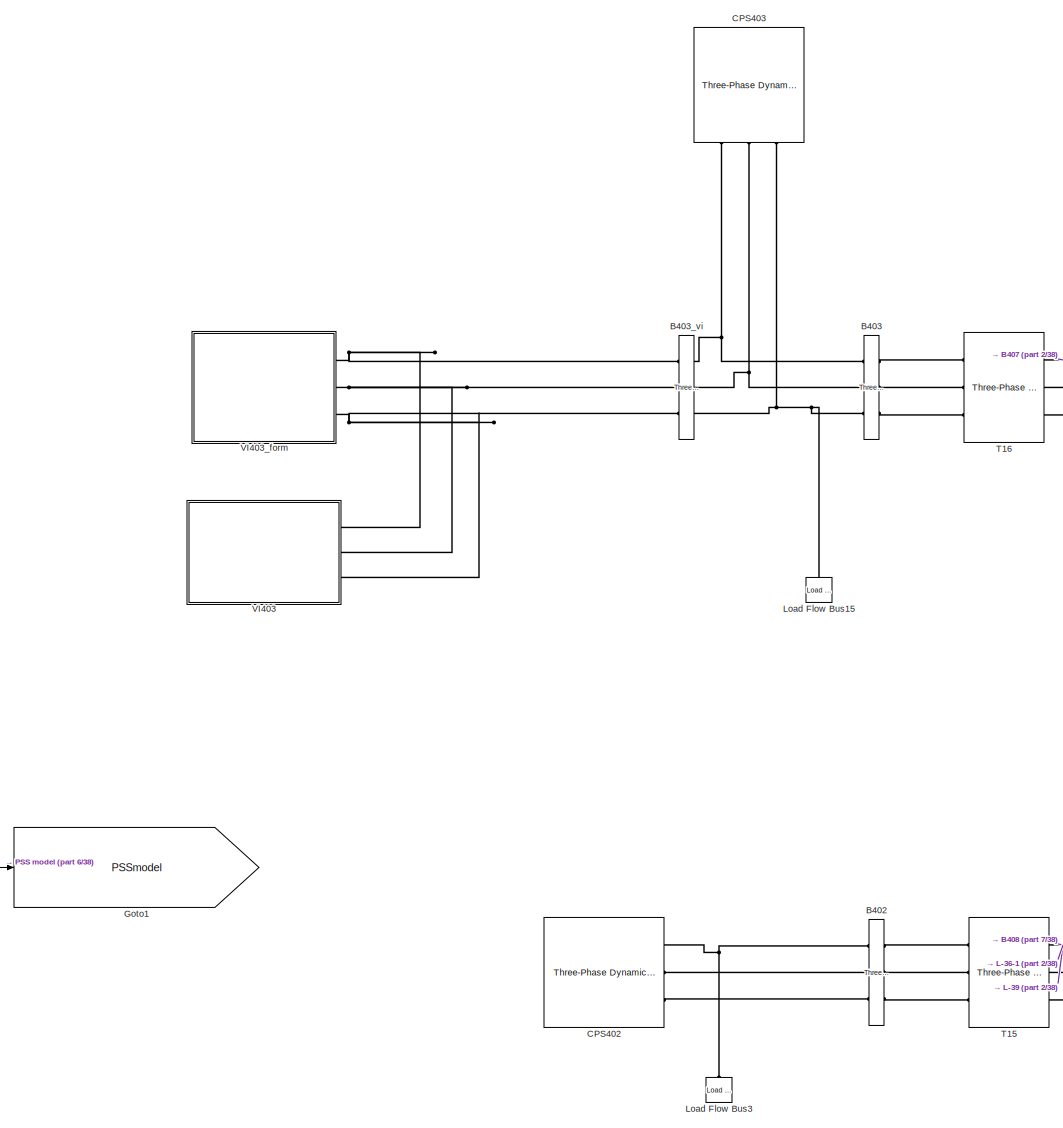
[diagram: root canvas - part 1/38, top center region]
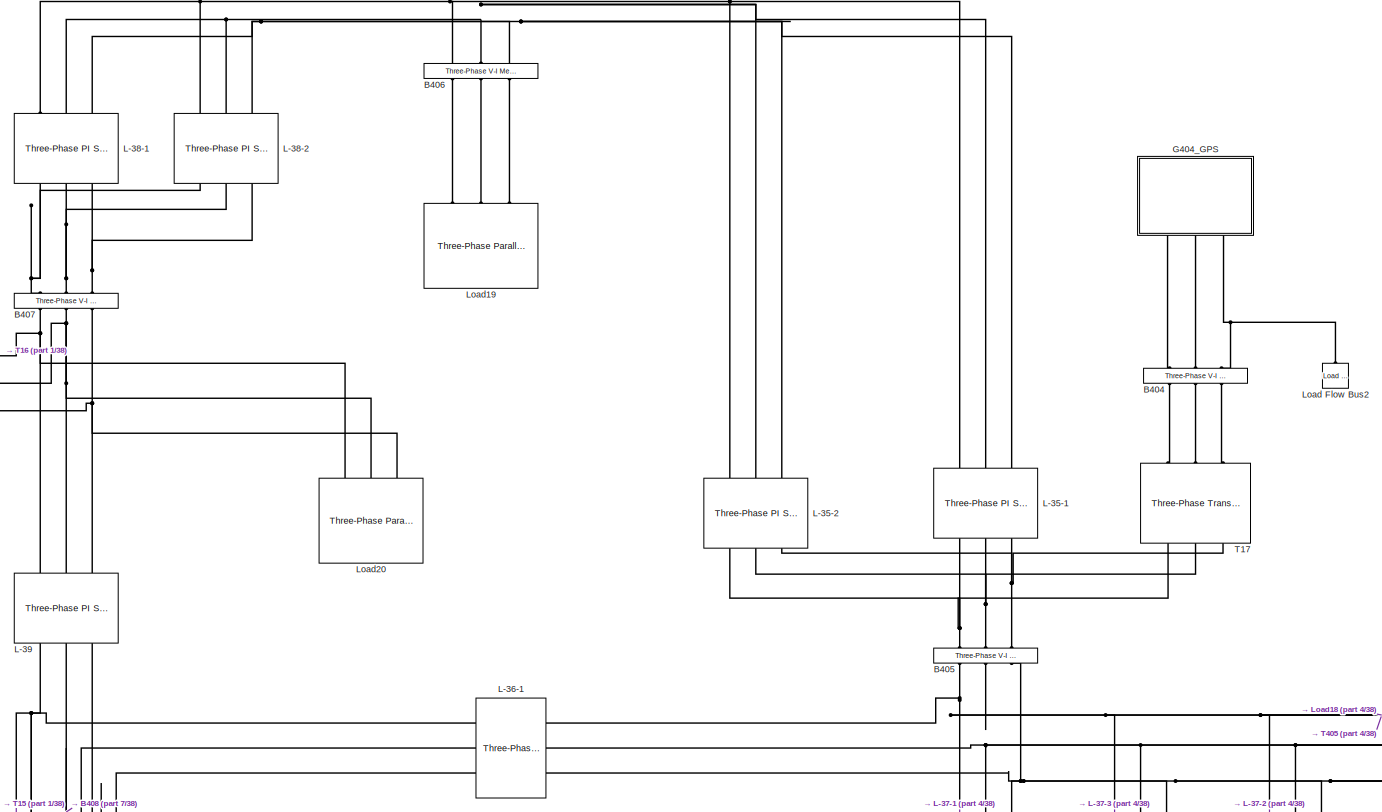
[diagram: root canvas - part 2/38, top right region]
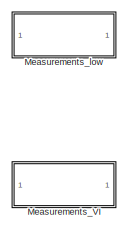
[diagram: root canvas - part 3/38, top right region]
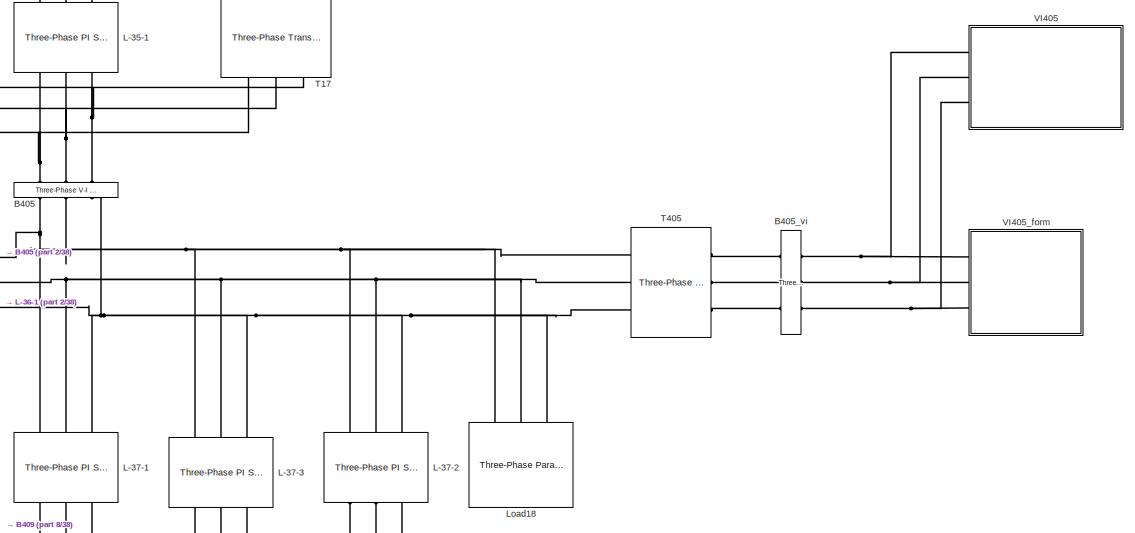
[diagram: root canvas - part 4/38, top right region]
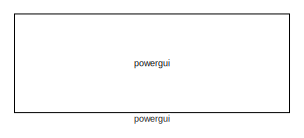
[diagram: root canvas - part 5/38, top left region]
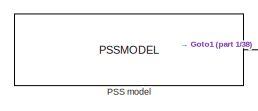
[diagram: root canvas - part 6/38, top center region]
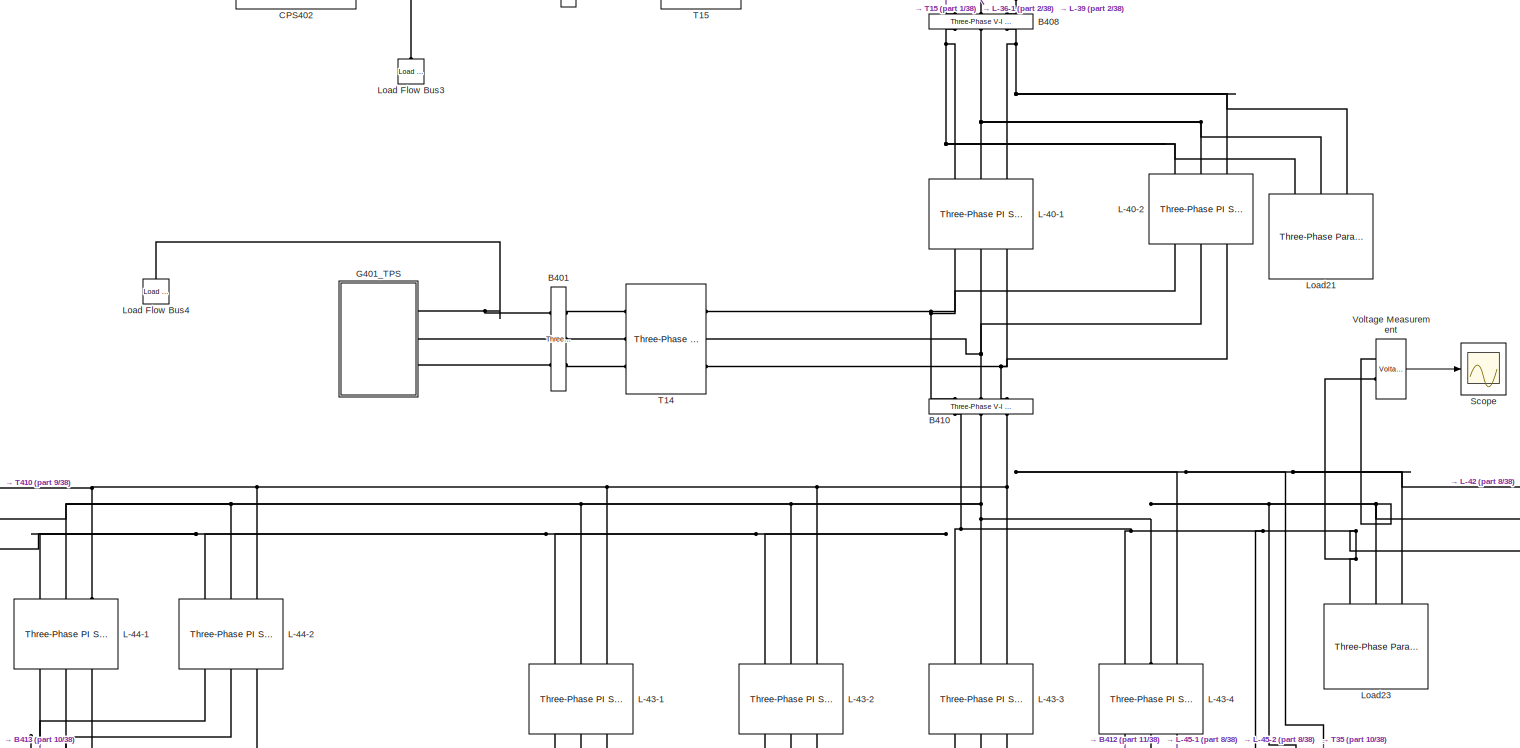
[diagram: root canvas - part 7/38, top center region]
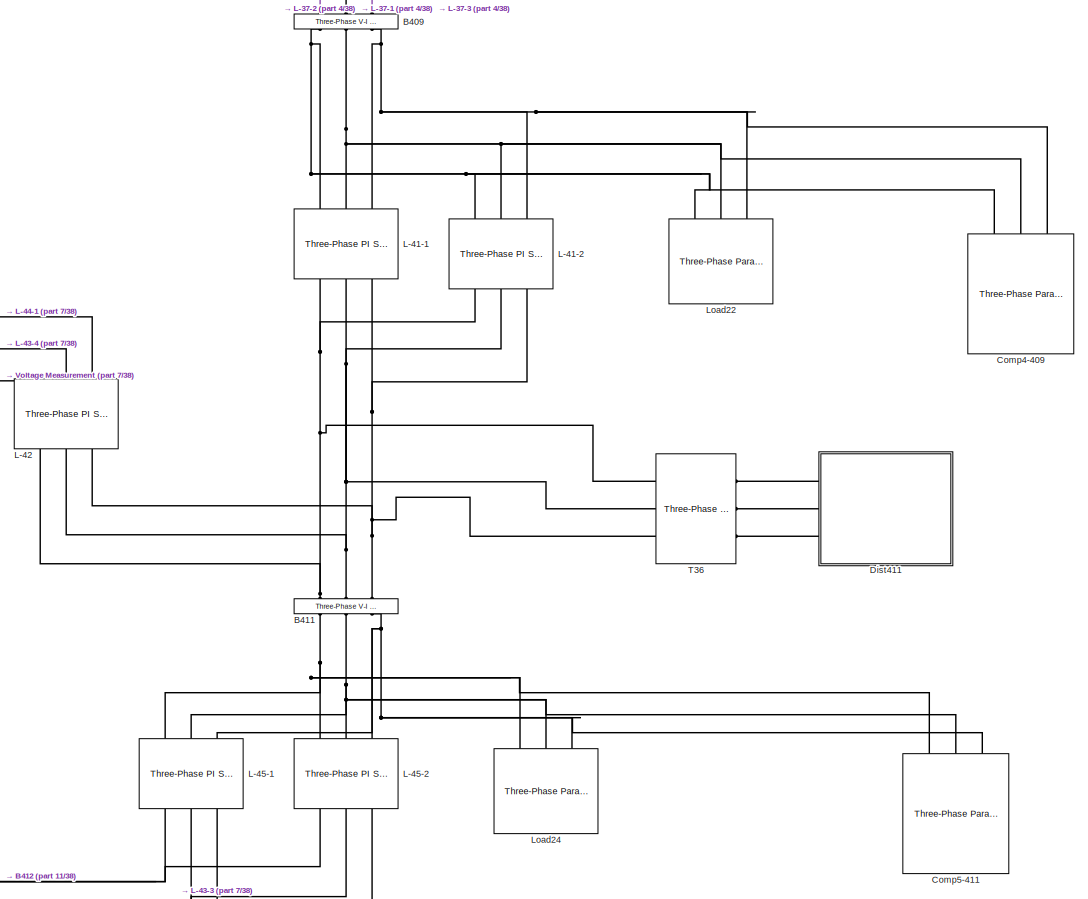
[diagram: root canvas - part 8/38, top right region]
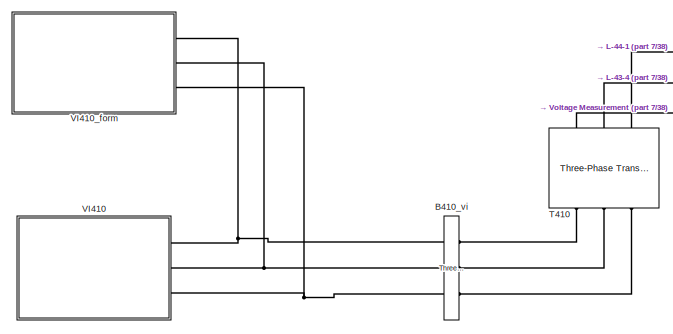
[diagram: root canvas - part 9/38, top center region]
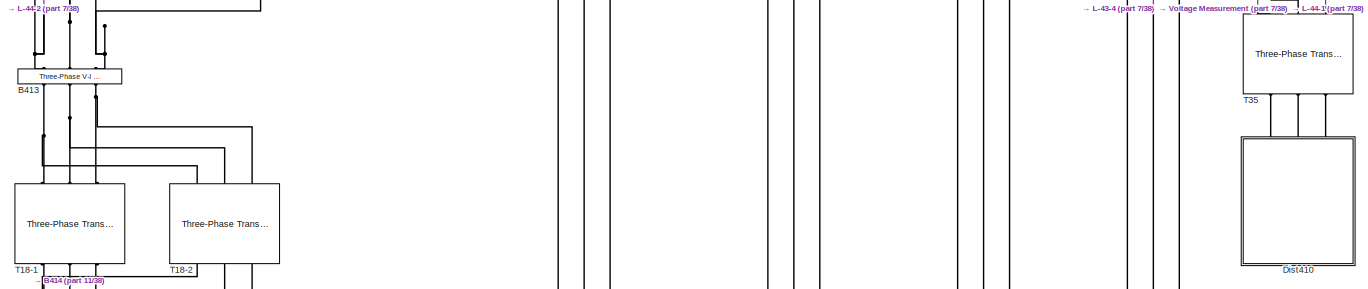
[diagram: root canvas - part 10/38, top center region]
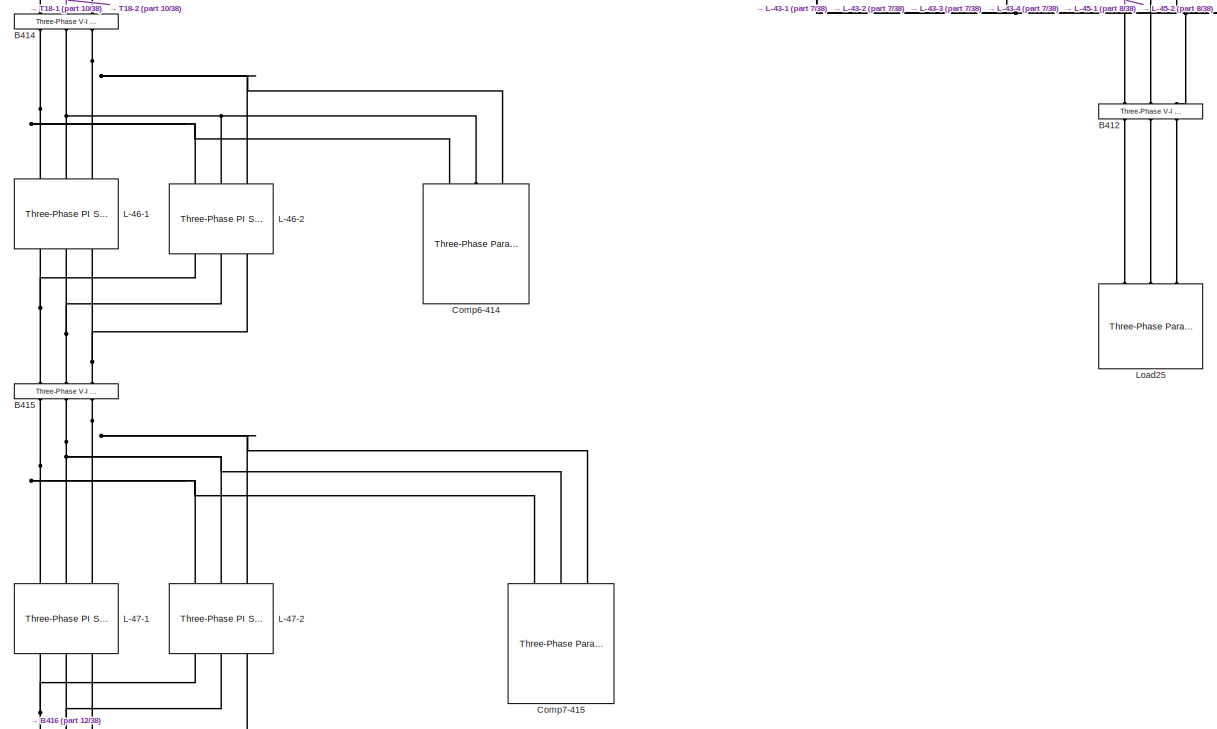
[diagram: root canvas - part 11/38, top center region]
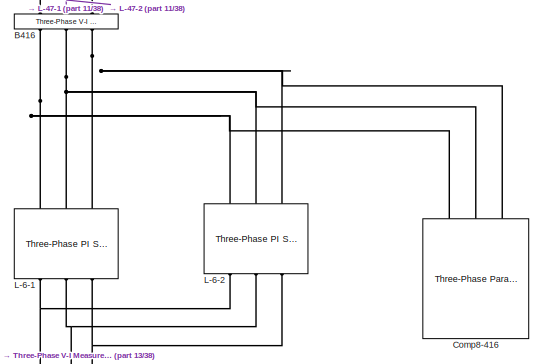
[diagram: root canvas - part 12/38, top center region]
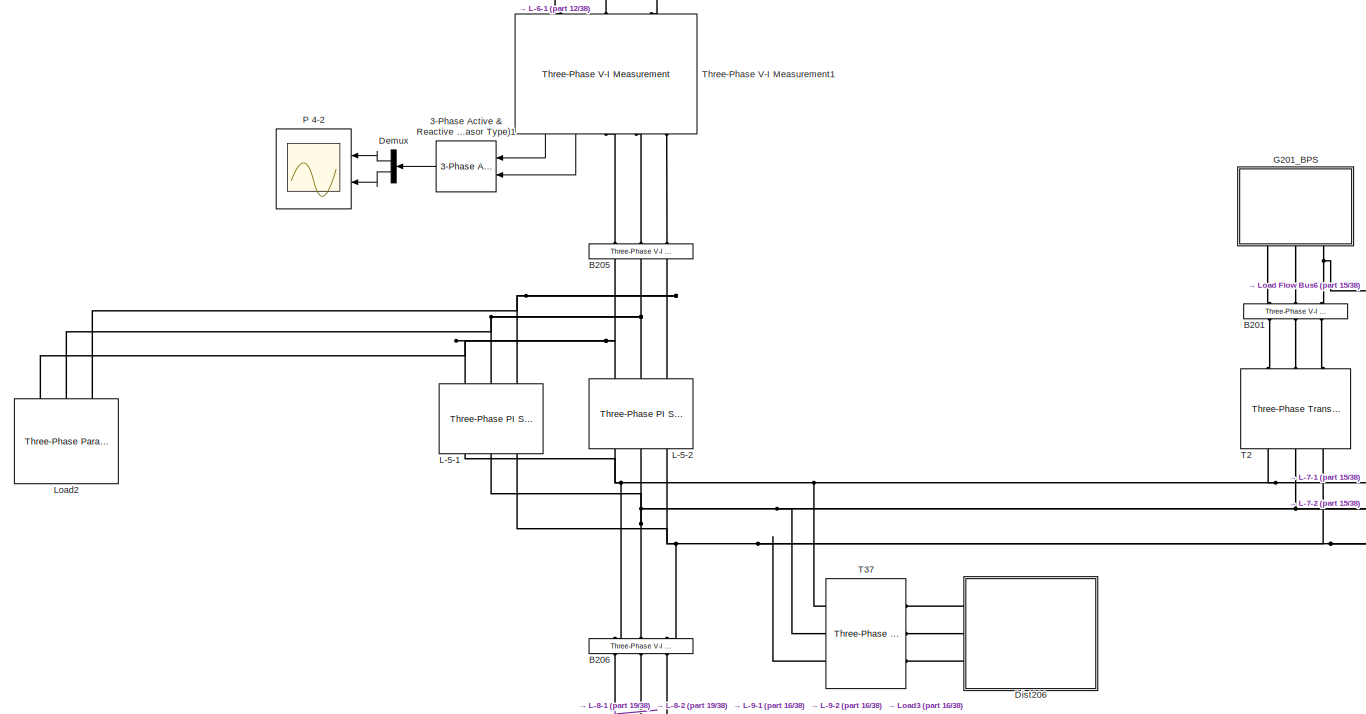
[diagram: root canvas - part 13/38, central region]
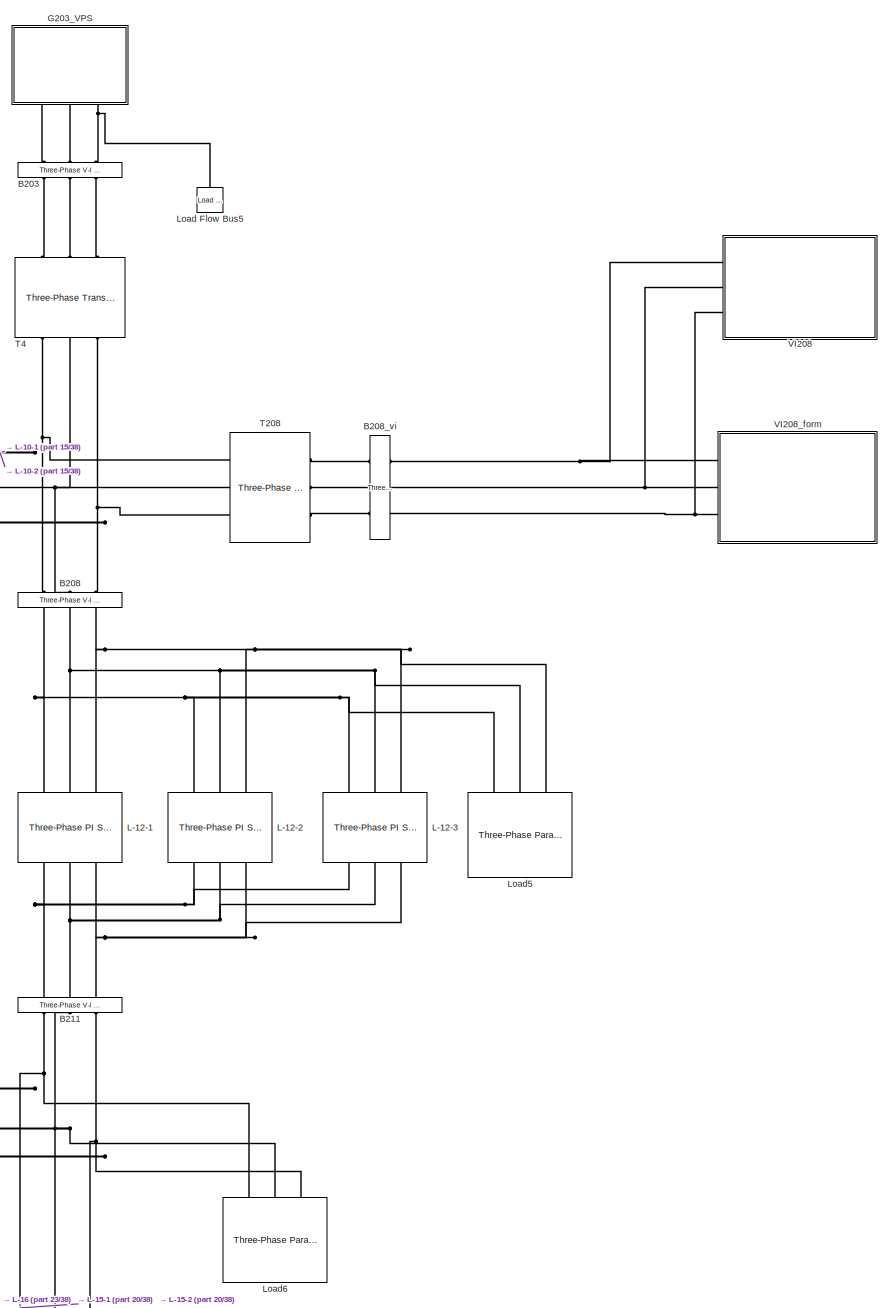
[diagram: root canvas - part 14/38, middle right region]
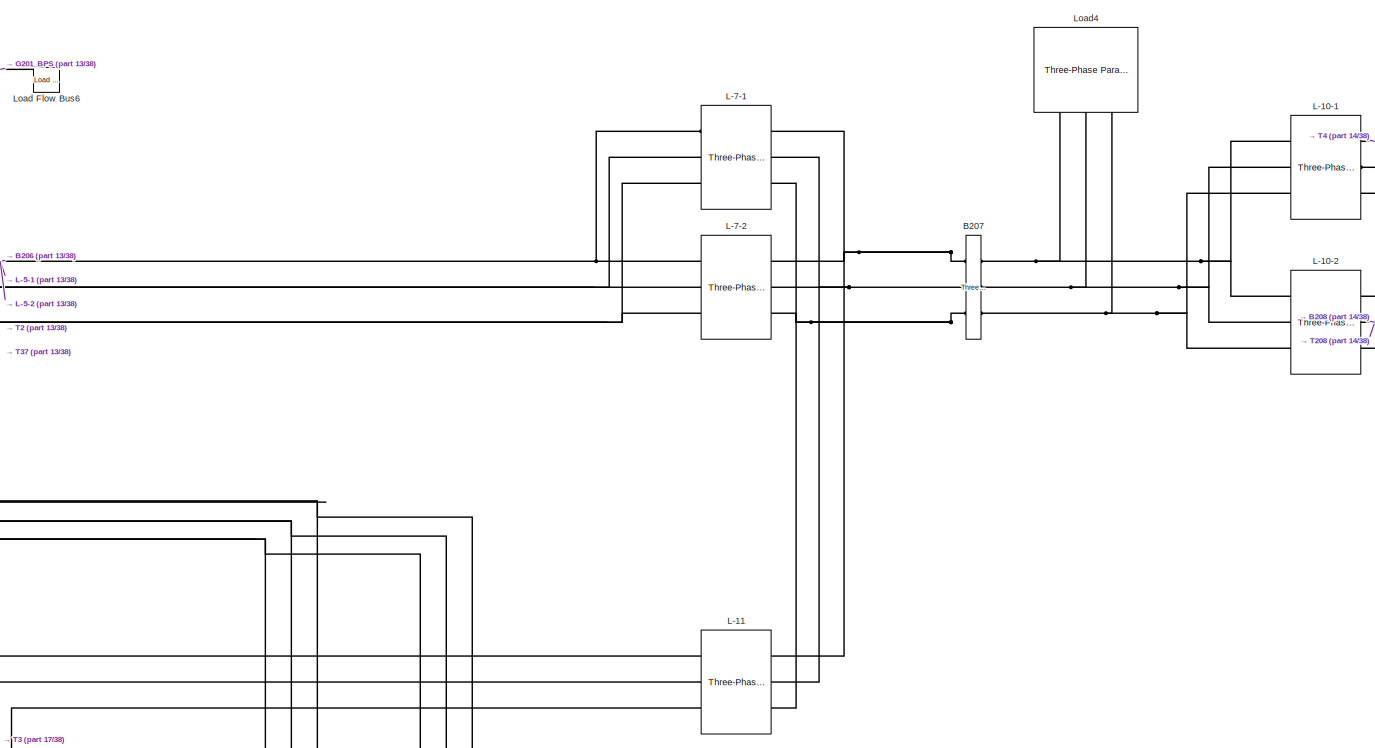
[diagram: root canvas - part 15/38, middle right region]
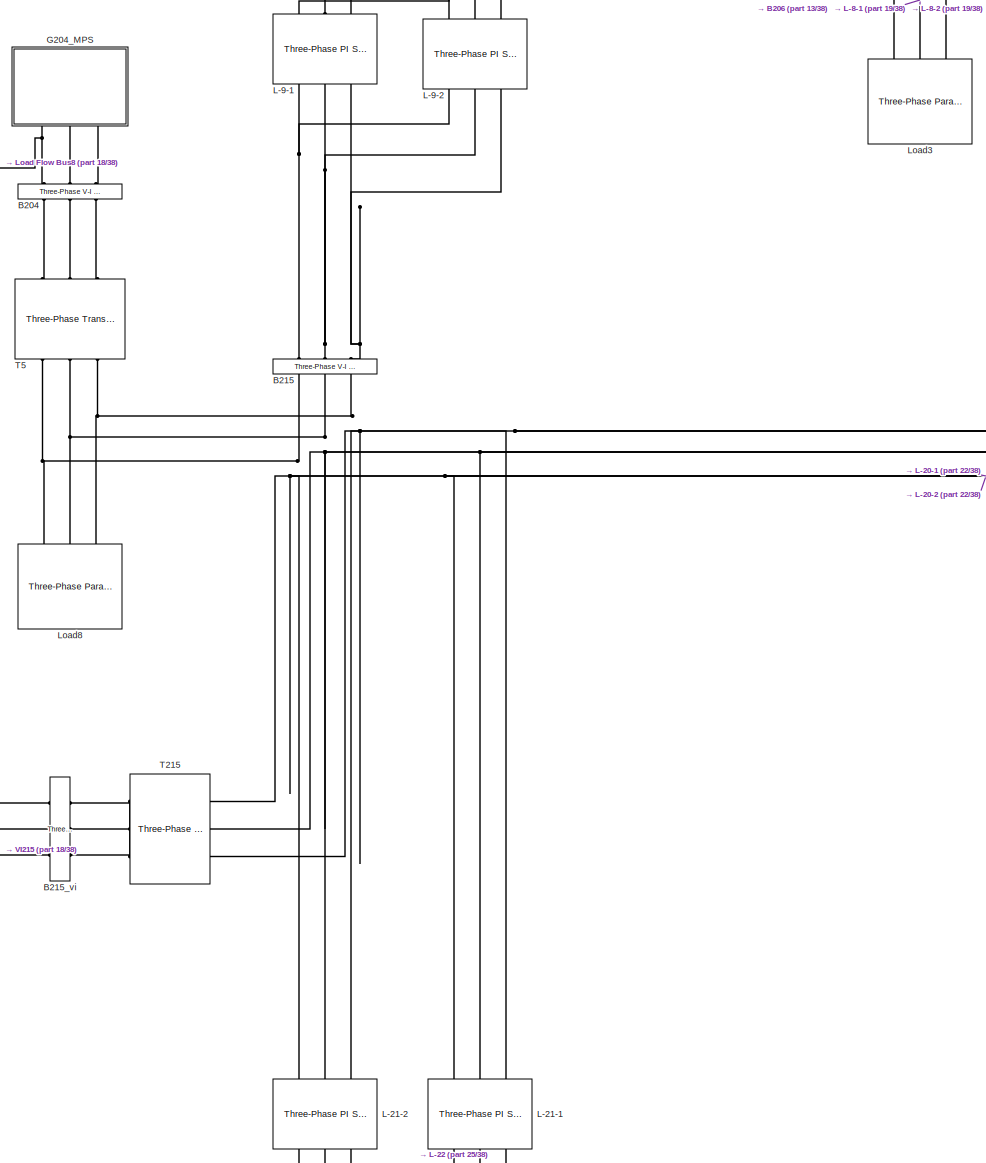
[diagram: root canvas - part 16/38, central region]
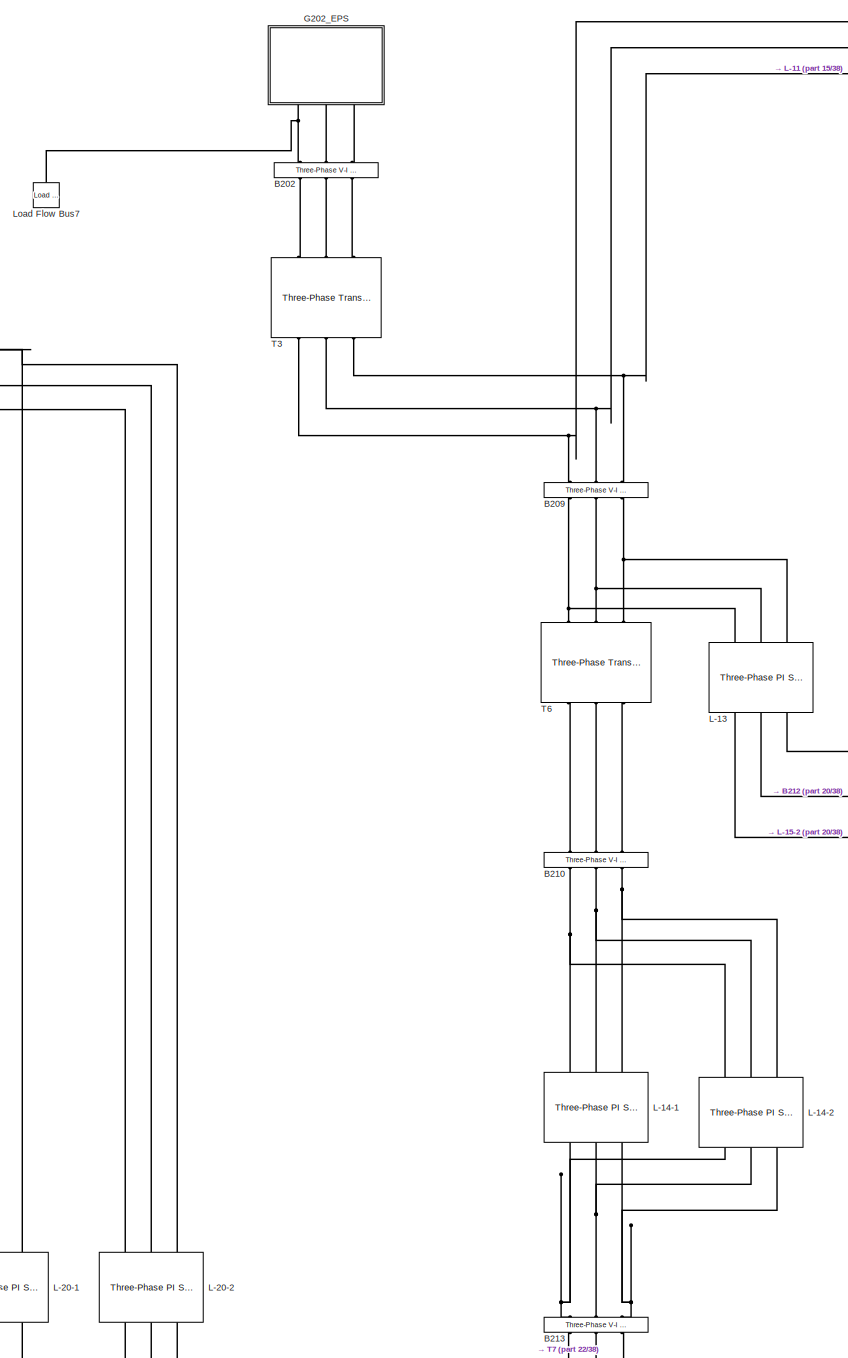
[diagram: root canvas - part 17/38, central region]
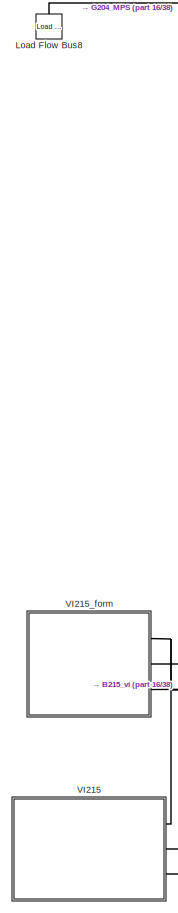
[diagram: root canvas - part 18/38, middle left region]
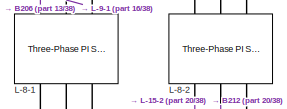
[diagram: root canvas - part 19/38, central region]
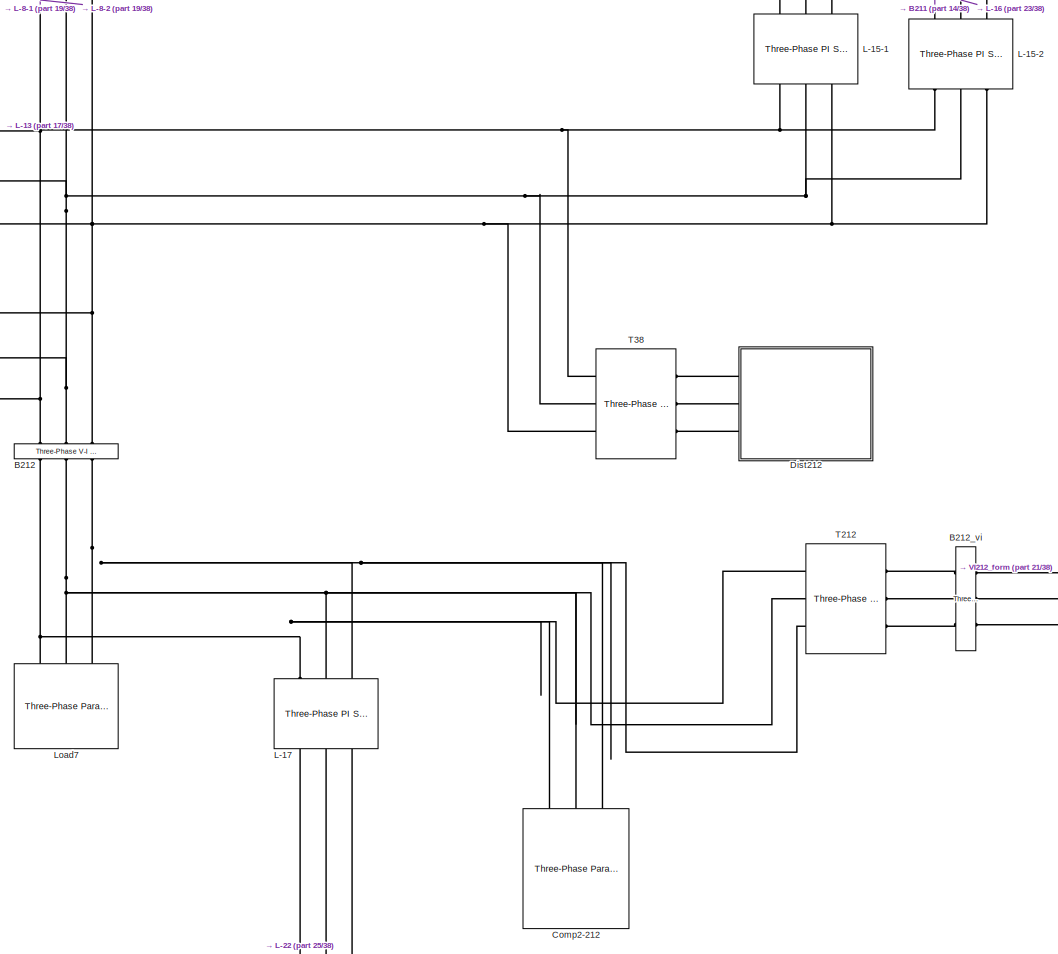
[diagram: root canvas - part 20/38, middle right region]
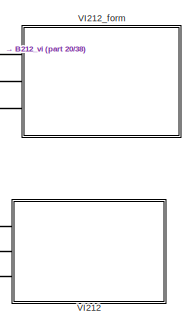
[diagram: root canvas - part 21/38, middle right region]
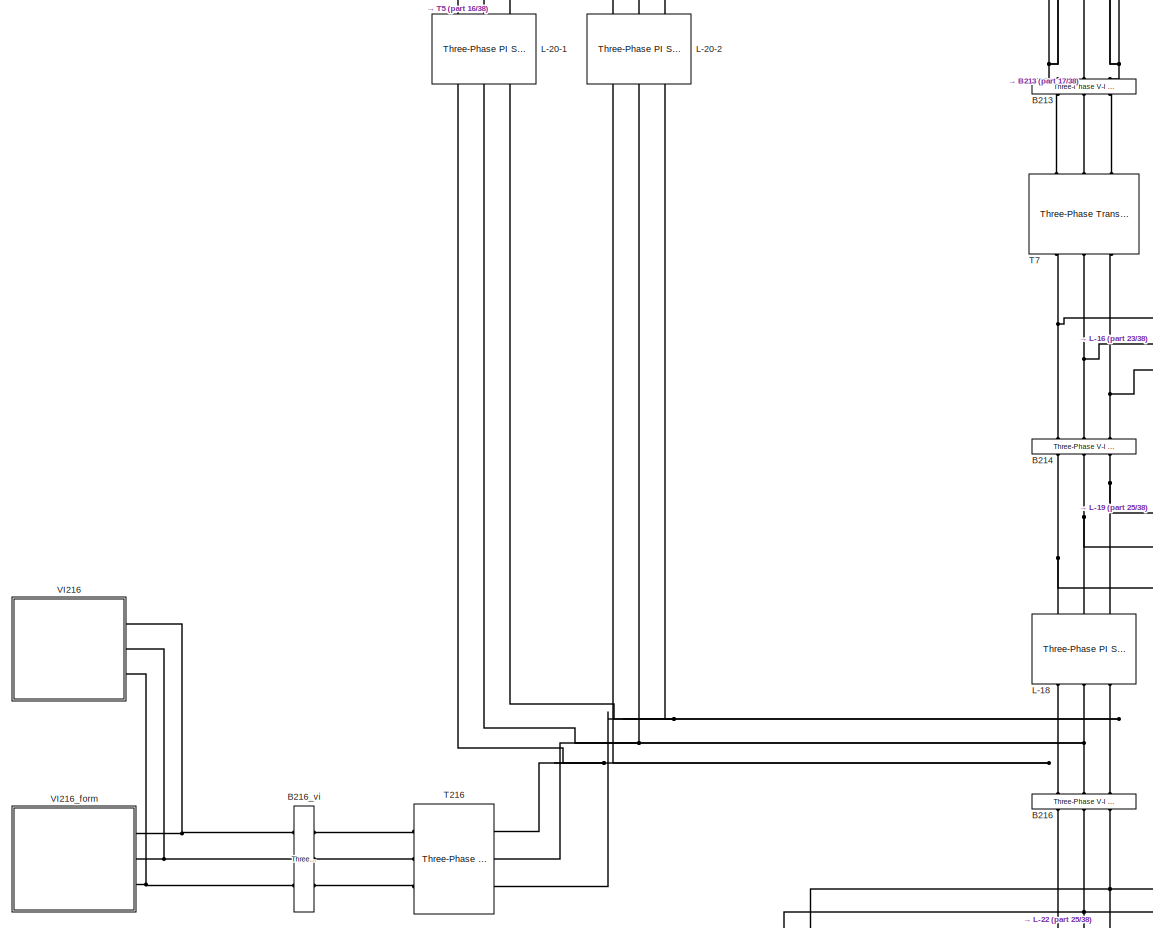
[diagram: root canvas - part 22/38, central region]
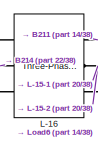
[diagram: root canvas - part 23/38, middle right region]
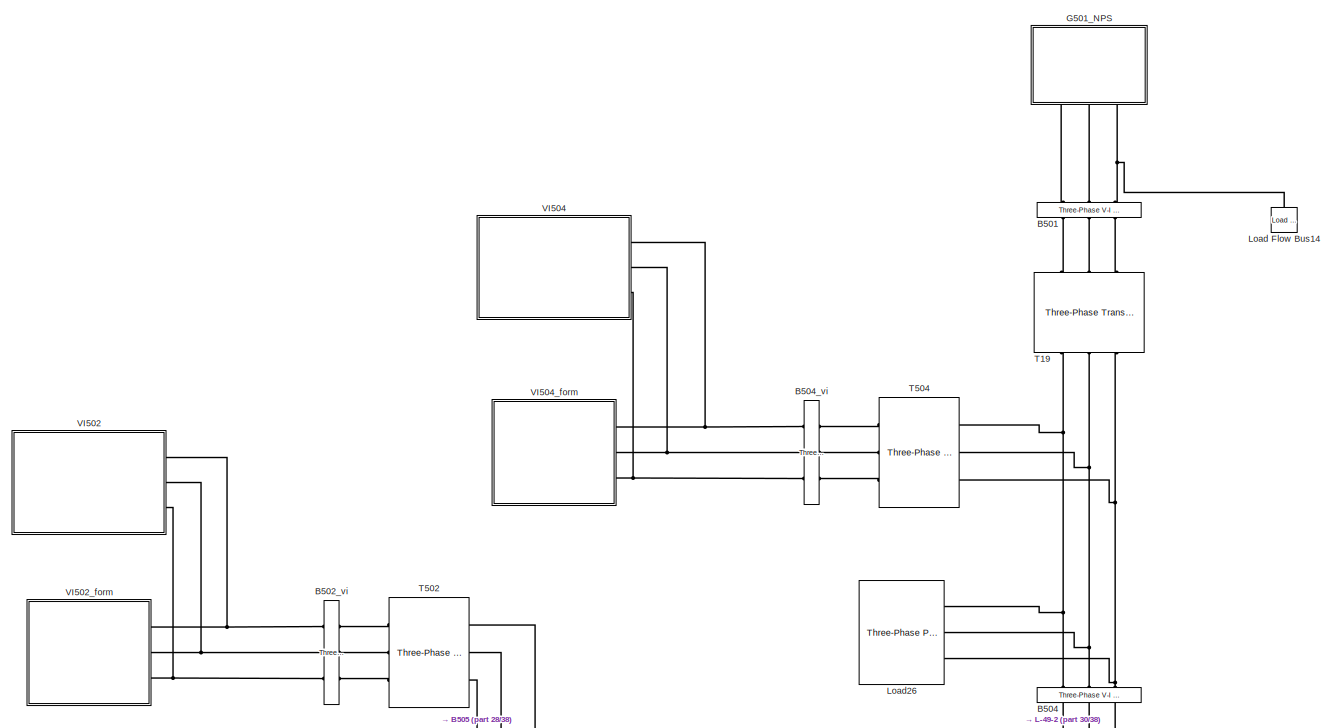
[diagram: root canvas - part 24/38, middle left region]
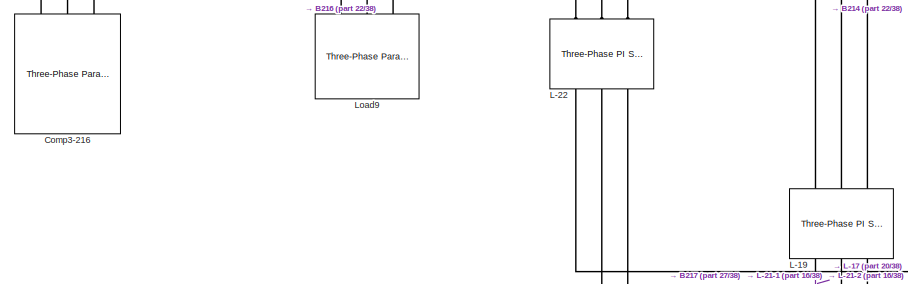
[diagram: root canvas - part 25/38, central region]
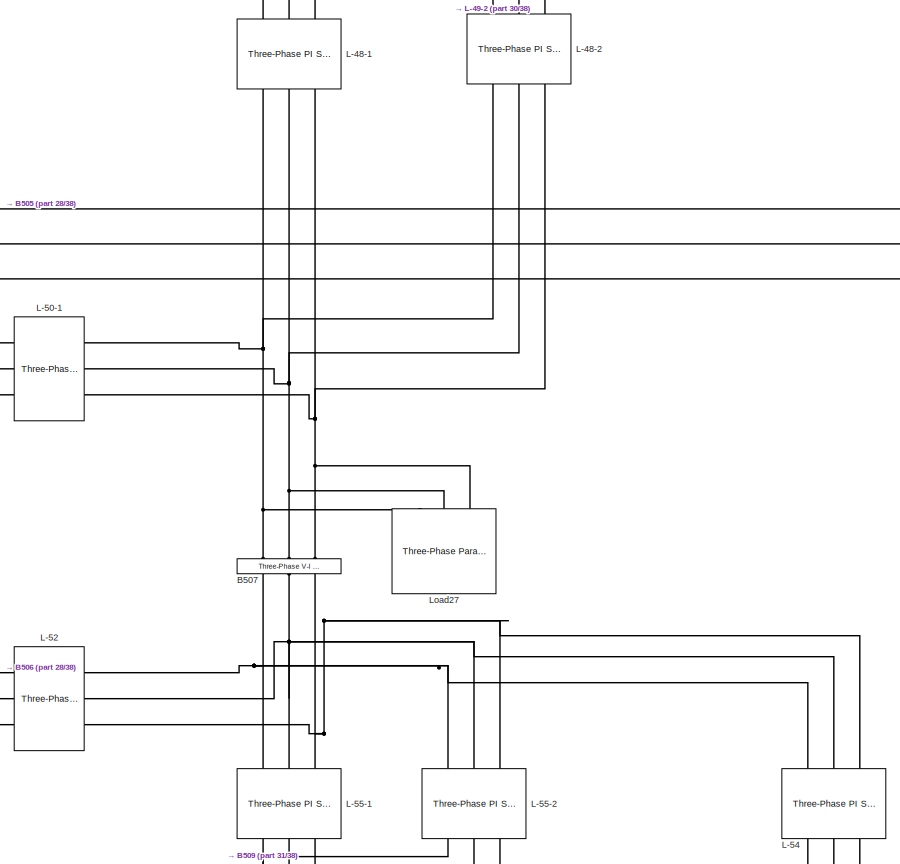
[diagram: root canvas - part 26/38, bottom left region]
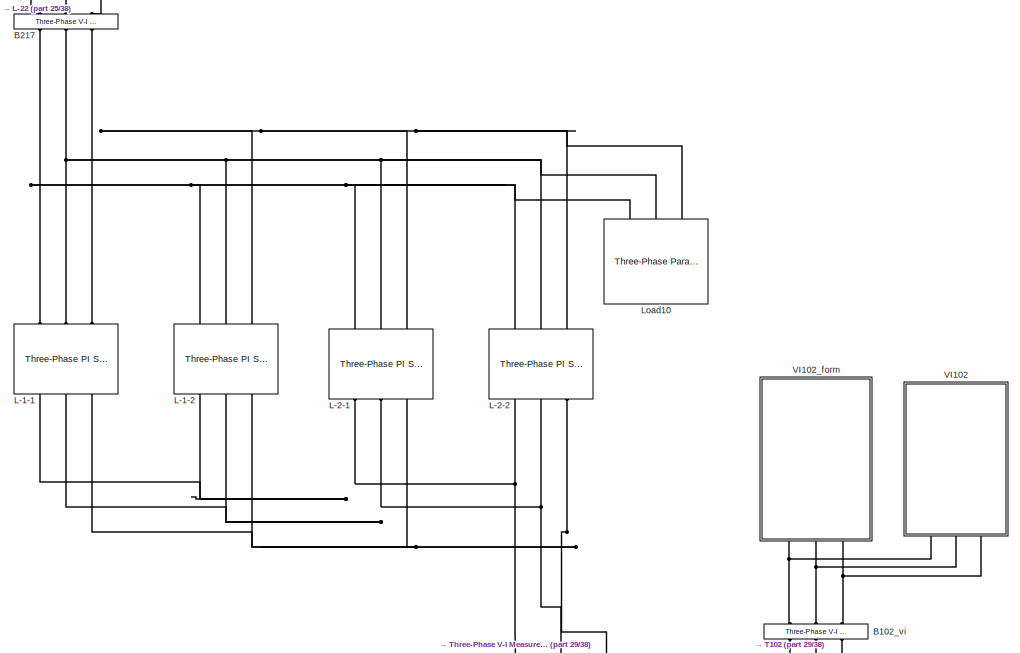
[diagram: root canvas - part 27/38, bottom right region]
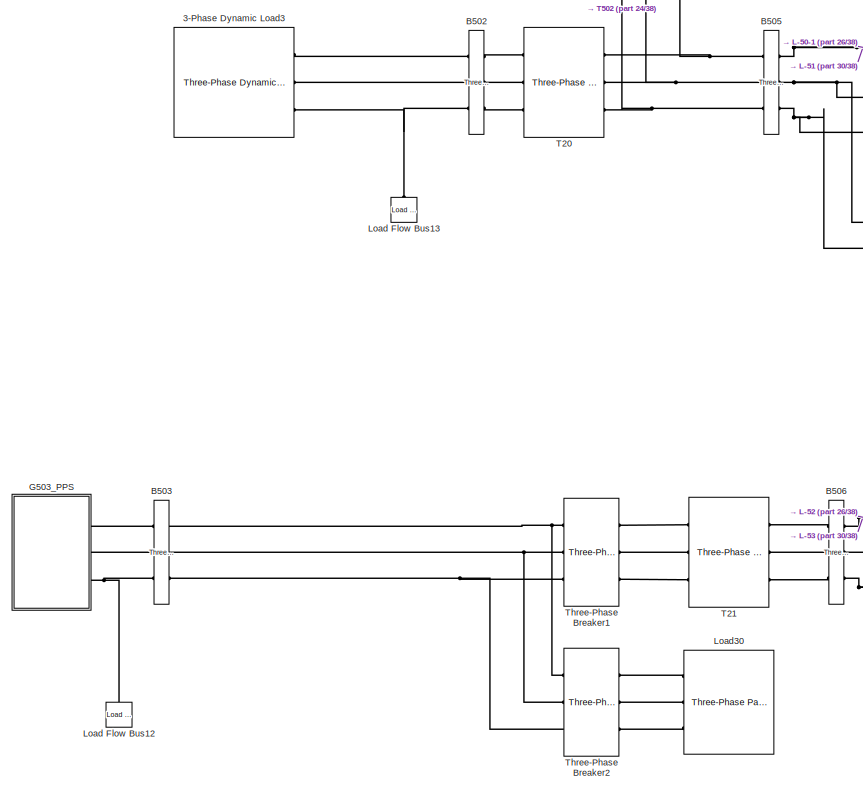
[diagram: root canvas - part 28/38, bottom left region]
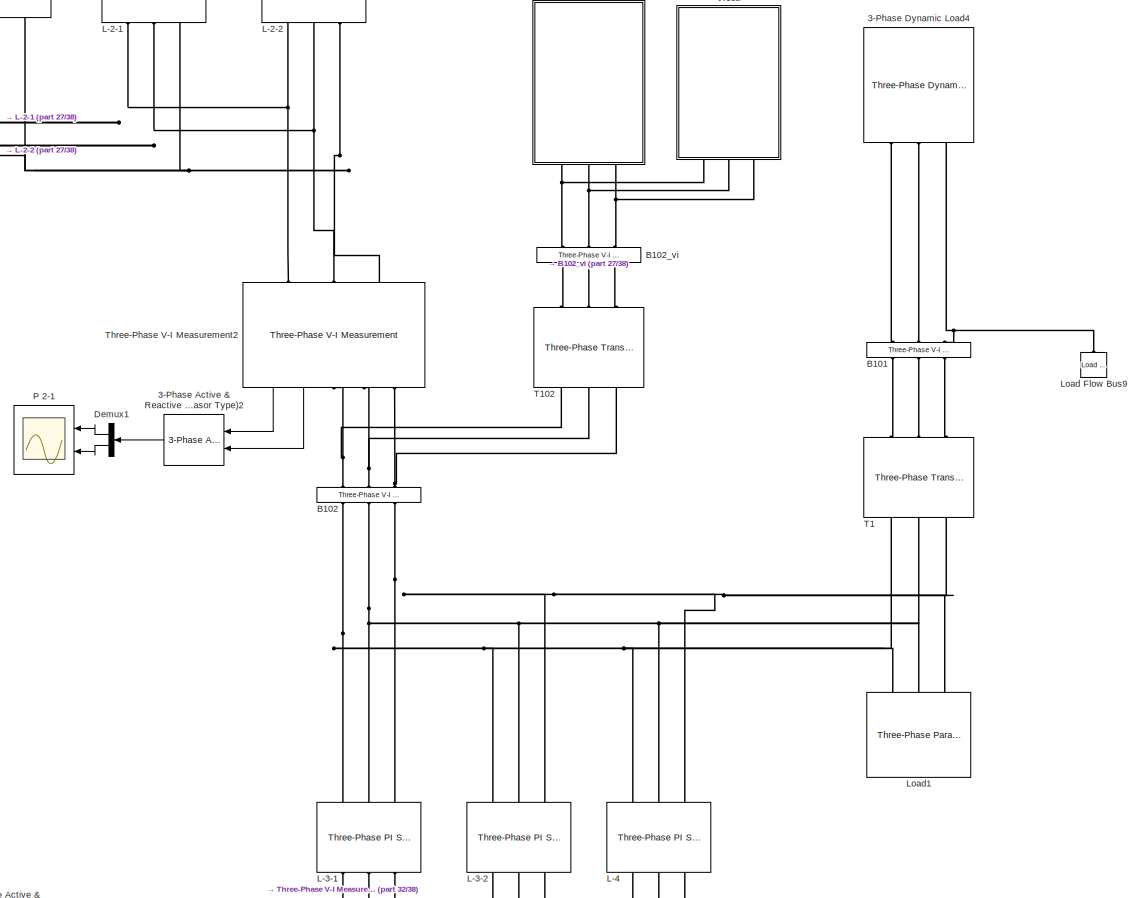
[diagram: root canvas - part 29/38, bottom right region]
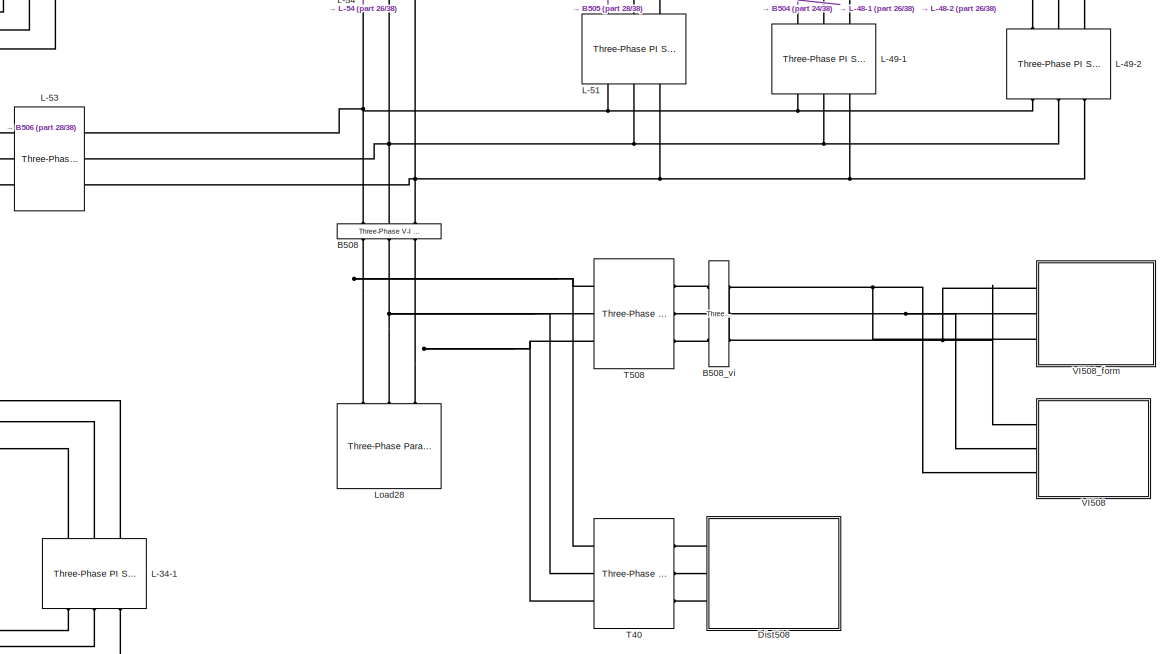
[diagram: root canvas - part 30/38, bottom left region]
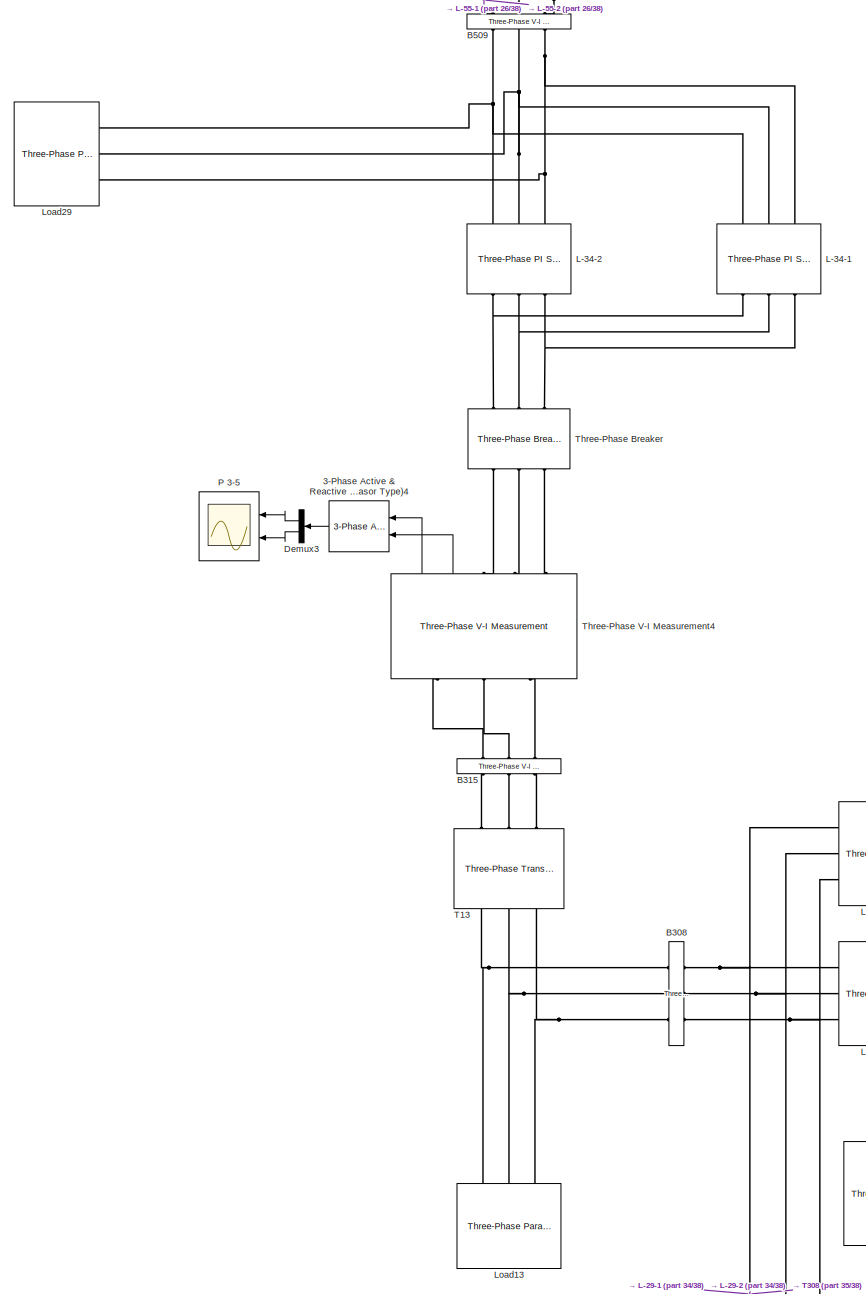
[diagram: root canvas - part 31/38, bottom left region]
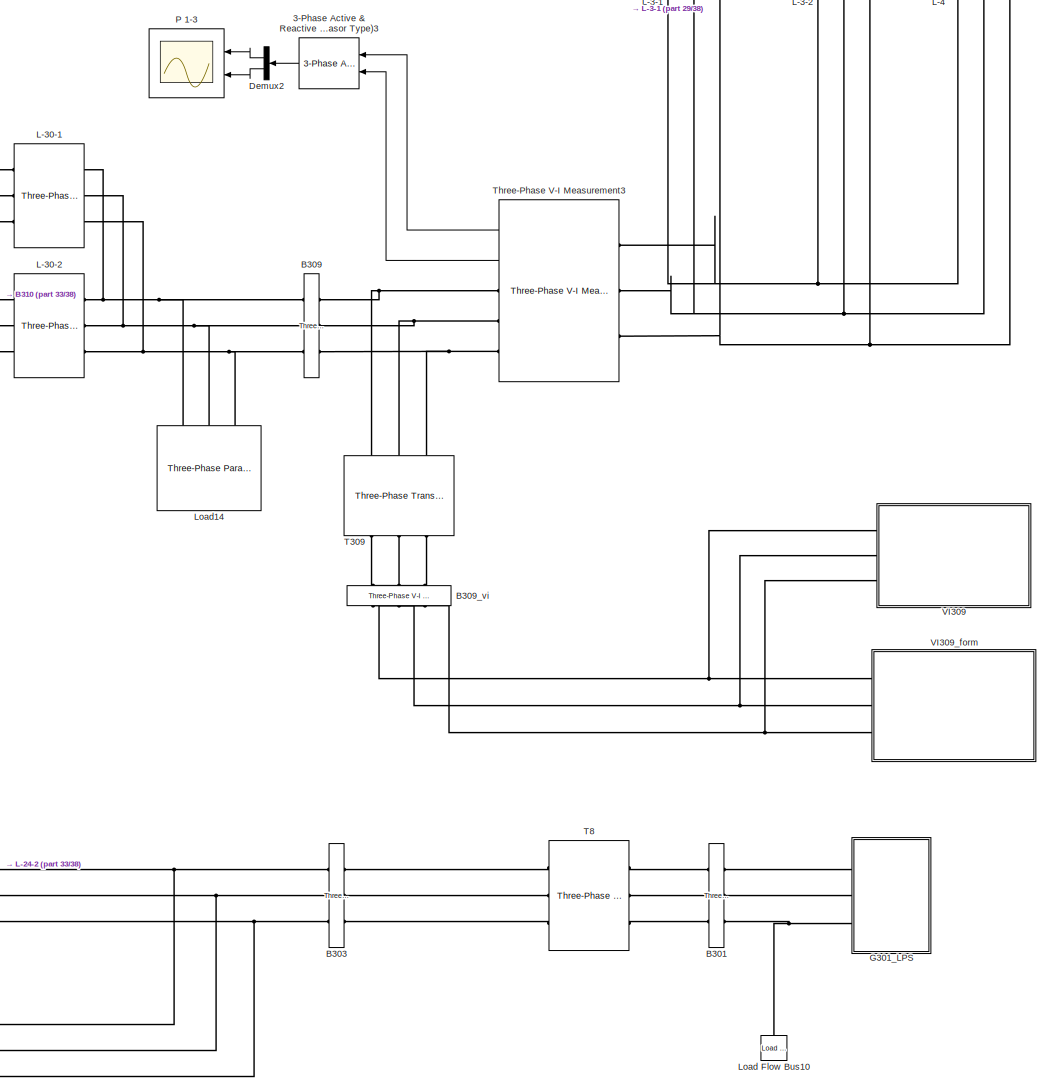
[diagram: root canvas - part 32/38, bottom right region]
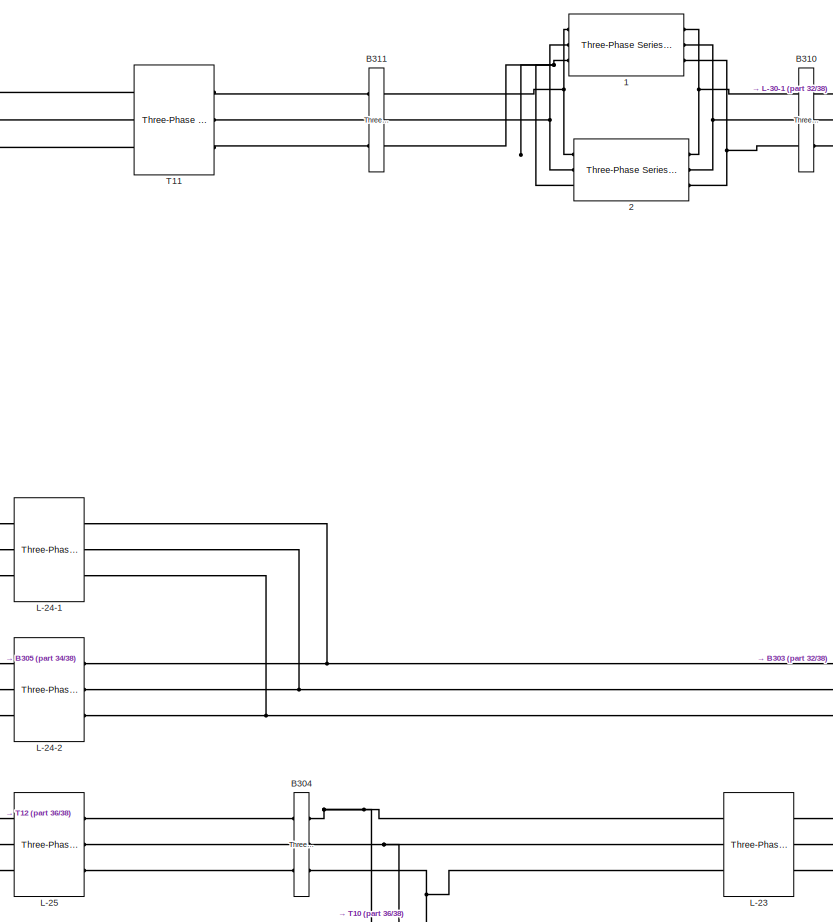
[diagram: root canvas - part 33/38, bottom center region]
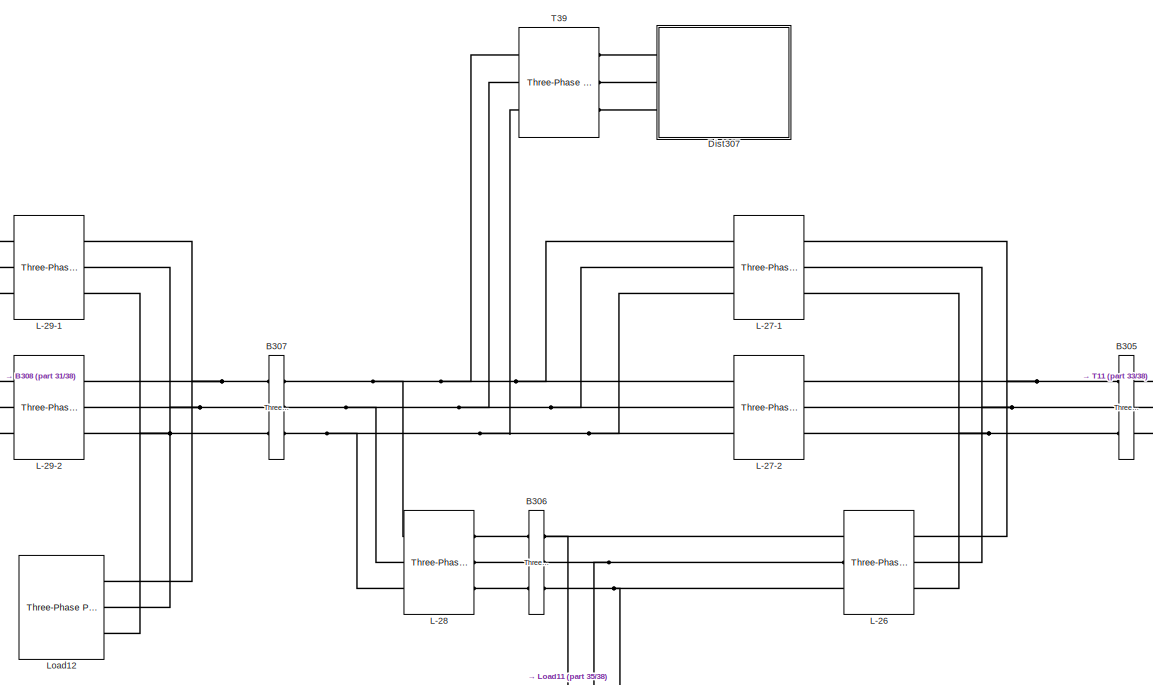
[diagram: root canvas - part 34/38, bottom center region]
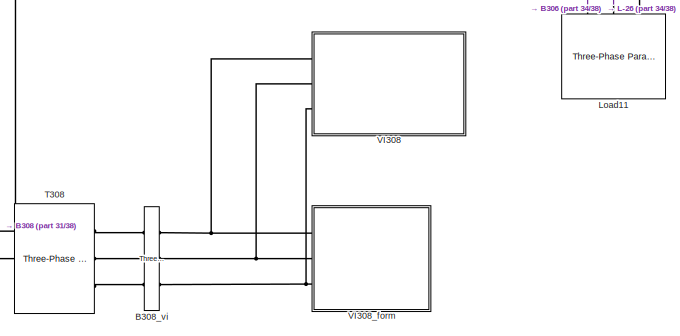
[diagram: root canvas - part 35/38, bottom left region]
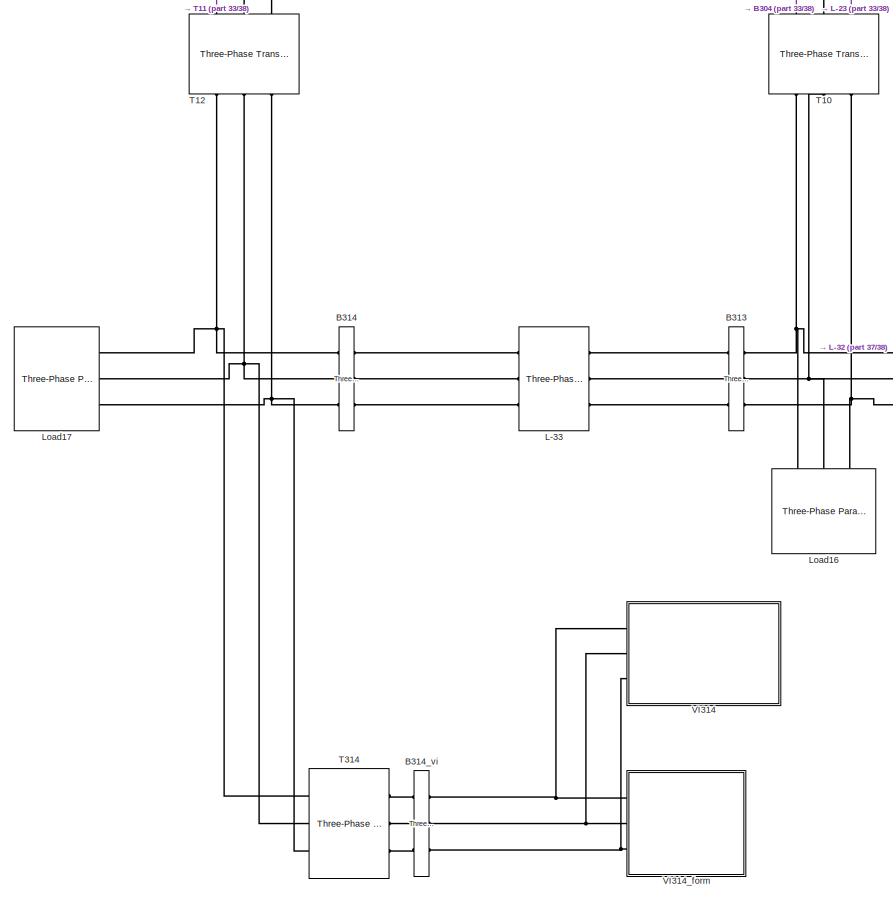
[diagram: root canvas - part 36/38, bottom center region]
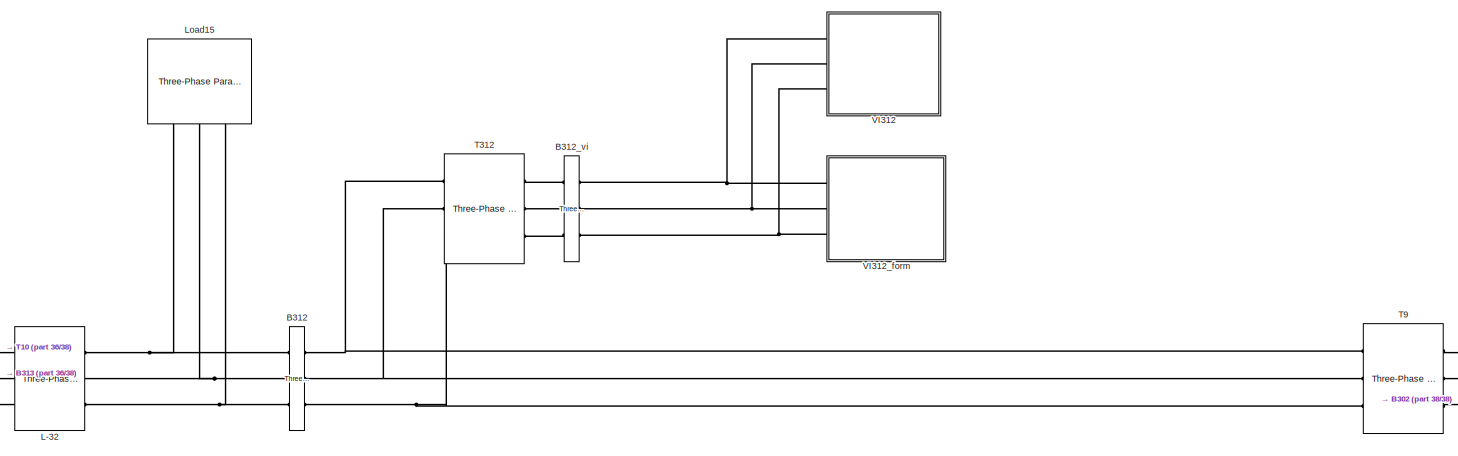
[diagram: root canvas - part 37/38, bottom right region]
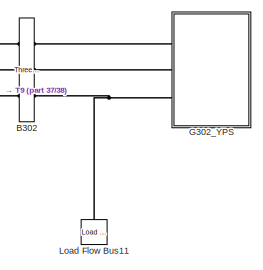
[diagram: root canvas - part 38/38, bottom right region]
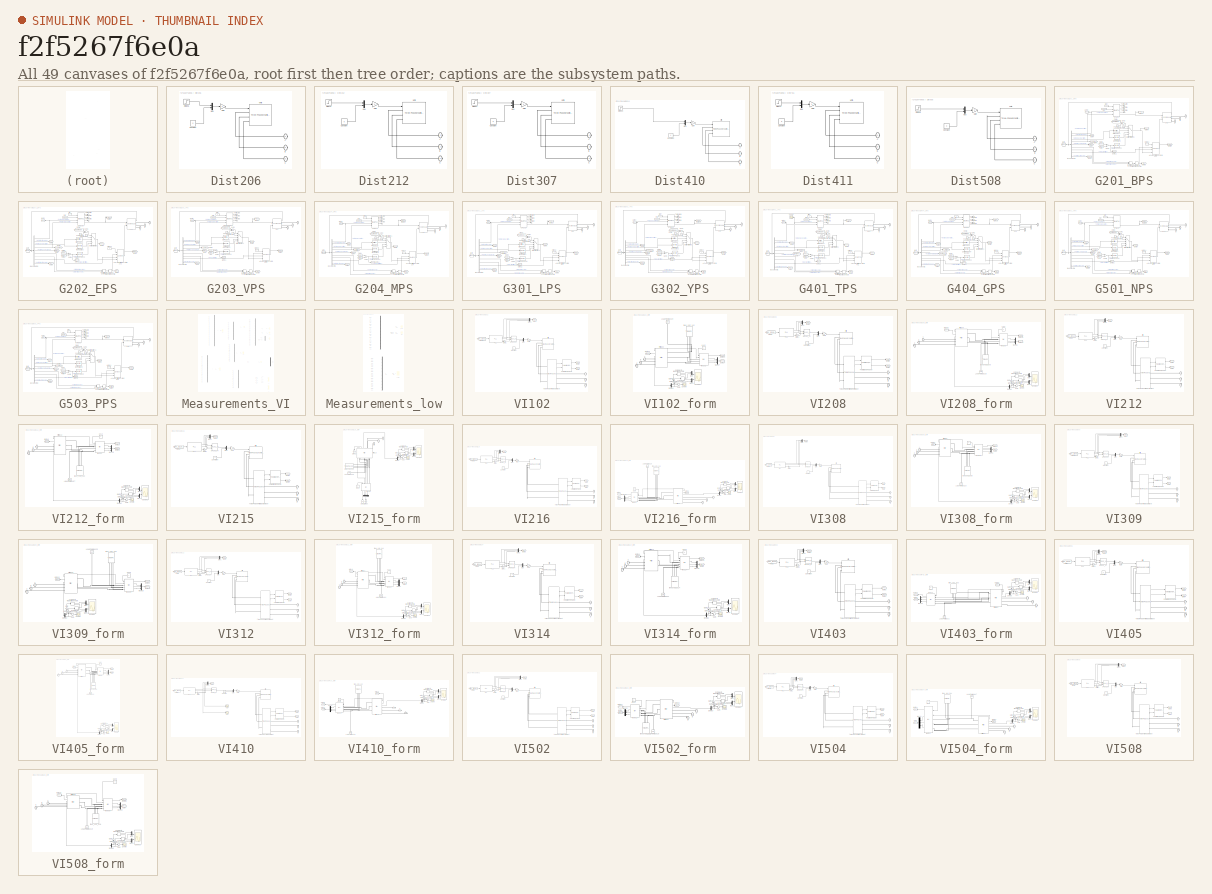
[diagram: thumbnail index - all 49 canvases of the model, root first then tree order]
MODEL slx_f2f5267f6e0a
KIND model
CONFIG AbsTol = 1e-3
CONFIG EnableMultiTasking = on
CONFIG FixedStep = 1e-3
CONFIG MaxStep = auto
CONFIG MinStep = auto
CONFIG PreLoadFcn = dataaustralian14gen
CONFIG RelTol = 1e-3
CONFIG SampleTimeConstraint = Unconstrained
CONFIG Solver = ode23tb
CONFIG SolverName = ode23tb
CONFIG StartTime = 0.0
CONFIG StopTime = 50
BLOCK [Reference] 1  REF=powerlib/Elements/Three-Phase
Series RLC Branch
  AttributesFormatString = \n
  Ports = [0, 0, 0, 0, 0, 3, 3]
  SourceBlock = powerlib/Elements/Three-Phase\nSeries RLC Branch
  SourceProductBaseCode = PS
  SourceProductName = Simscape Power Systems
  SourceType = Three-Phase Series RLC Branch
BLOCK [Reference] 2  REF=powerlib/Elements/Three-Phase
Series RLC Branch
  AttributesFormatString = \n
  Ports = [0, 0, 0, 0, 0, 3, 3]
  SourceBlock = powerlib/Elements/Three-Phase\nSeries RLC Branch
  SourceProductBaseCode = PS
  SourceProductName = Simscape Power Systems
  SourceType = Three-Phase Series RLC Branch
BLOCK [Reference] 3-Phase Active & Reactive Power (Phasor Type)1  REF=powerlib_extras/Phasor
Library/3-Phase
Active & Reactive Power
(Phasor Type)
  Ports = [2, 1]
  SourceBlock = powerlib_extras/Phasor\nLibrary/3-Phase\nActive & Reactive Power\n(Phasor Type)
  SourceType = 3-Phase Active & Reactive Power (Phasor Type)
BLOCK [Reference] 3-Phase Active & Reactive Power (Phasor Type)2  REF=powerlib_extras/Phasor
Library/3-Phase
Active & Reactive Power
(Phasor Type)
  Ports = [2, 1]
  SourceBlock = powerlib_extras/Phasor\nLibrary/3-Phase\nActive & Reactive Power\n(Phasor Type)
  SourceType = 3-Phase Active & Reactive Power (Phasor Type)
BLOCK [Reference] 3-Phase Active & Reactive Power (Phasor Type)3  REF=powerlib_extras/Phasor
Library/3-Phase
Active & Reactive Power
(Phasor Type)
  Ports = [2, 1]
  SourceBlock = powerlib_extras/Phasor\nLibrary/3-Phase\nActive & Reactive Power\n(Phasor Type)
  SourceType = 3-Phase Active & Reactive Power (Phasor Type)
BLOCK [Reference] 3-Phase Active & Reactive Power (Phasor Type)4  REF=powerlib_extras/Phasor
Library/3-Phase
Active & Reactive Power
(Phasor Type)
  Ports = [2, 1]
  SourceBlock = powerlib_extras/Phasor\nLibrary/3-Phase\nActive & Reactive Power\n(Phasor Type)
  SourceType = 3-Phase Active & Reactive Power (Phasor Type)
BLOCK [Reference] 3-Phase Dynamic Load3  REF=powerlib/Elements/Three-Phase
Dynamic Load
  Ports = [0, 1, 0, 0, 0, 3]
  SourceBlock = powerlib/Elements/Three-Phase\nDynamic Load
  SourceProductBaseCode = PS
  SourceProductName = Simscape Power Systems
  SourceType = Three-Phase Dynamic Load
BLOCK [Reference] 3-Phase Dynamic Load4  REF=powerlib/Elements/Three-Phase
Dynamic Load
  Ports = [0, 1, 0, 0, 0, 3]
  SourceBlock = powerlib/Elements/Three-Phase\nDynamic Load
  SourceProductBaseCode = PS
  SourceProductName = Simscape Power Systems
  SourceType = Three-Phase Dynamic Load
BLOCK [Reference] B101  REF=powerlib/Measurements/Three-Phase
V-I Measurement
  Ports = [0, 0, 0, 0, 0, 3, 3]
  SourceBlock = powerlib/Measurements/Three-Phase\nV-I Measurement
  SourceProductBaseCode = PS
  SourceProductName = Simscape Power Systems
  SourceType = Three-Phase VI Measurement
BLOCK [Reference] B102  REF=powerlib/Measurements/Three-Phase
V-I Measurement
  Ports = [0, 0, 0, 0, 0, 3, 3]
  SourceBlock = powerlib/Measurements/Three-Phase\nV-I Measurement
  SourceProductBaseCode = PS
  SourceProductName = Simscape Power Systems
  SourceType = Three-Phase VI Measurement
BLOCK [Reference] B102_vi  REF=powerlib/Measurements/Three-Phase
V-I Measurement
  Ports = [0, 0, 0, 0, 0, 3, 3]
  SourceBlock = powerlib/Measurements/Three-Phase\nV-I Measurement
  SourceProductBaseCode = PS
  SourceProductName = Simscape Power Systems
  SourceType = Three-Phase VI Measurement
BLOCK [Reference] B201  REF=powerlib/Measurements/Three-Phase
V-I Measurement
  Ports = [0, 0, 0, 0, 0, 3, 3]
  SourceBlock = powerlib/Measurements/Three-Phase\nV-I Measurement
  SourceProductBaseCode = PS
  SourceProductName = Simscape Power Systems
  SourceType = Three-Phase VI Measurement
BLOCK [Reference] B202  REF=powerlib/Measurements/Three-Phase
V-I Measurement
  Ports = [0, 0, 0, 0, 0, 3, 3]
  SourceBlock = powerlib/Measurements/Three-Phase\nV-I Measurement
  SourceProductBaseCode = PS
  SourceProductName = Simscape Power Systems
  SourceType = Three-Phase VI Measurement
BLOCK [Reference] B203  REF=powerlib/Measurements/Three-Phase
V-I Measurement
  Ports = [0, 0, 0, 0, 0, 3, 3]
  SourceBlock = powerlib/Measurements/Three-Phase\nV-I Measurement
  SourceProductBaseCode = PS
  SourceProductName = Simscape Power Systems
  SourceType = Three-Phase VI Measurement
BLOCK [Reference] B204  REF=powerlib/Measurements/Three-Phase
V-I Measurement
  Ports = [0, 0, 0, 0, 0, 3, 3]
  SourceBlock = powerlib/Measurements/Three-Phase\nV-I Measurement
  SourceProductBaseCode = PS
  SourceProductName = Simscape Power Systems
  SourceType = Three-Phase VI Measurement
BLOCK [Reference] B205  REF=powerlib/Measurements/Three-Phase
V-I Measurement
  Ports = [0, 0, 0, 0, 0, 3, 3]
  SourceBlock = powerlib/Measurements/Three-Phase\nV-I Measurement
  SourceProductBaseCode = PS
  SourceProductName = Simscape Power Systems
  SourceType = Three-Phase VI Measurement
BLOCK [Reference] B206  REF=powerlib/Measurements/Three-Phase
V-I Measurement
  Ports = [0, 0, 0, 0, 0, 3, 3]
  SourceBlock = powerlib/Measurements/Three-Phase\nV-I Measurement
  SourceProductBaseCode = PS
  SourceProductName = Simscape Power Systems
  SourceType = Three-Phase VI Measurement
BLOCK [Reference] B207  REF=powerlib/Measurements/Three-Phase
V-I Measurement
  Ports = [0, 0, 0, 0, 0, 3, 3]
  SourceBlock = powerlib/Measurements/Three-Phase\nV-I Measurement
  SourceProductBaseCode = PS
  SourceProductName = Simscape Power Systems
  SourceType = Three-Phase VI Measurement
BLOCK [Reference] B208  REF=powerlib/Measurements/Three-Phase
V-I Measurement
  Ports = [0, 0, 0, 0, 0, 3, 3]
  SourceBlock = powerlib/Measurements/Three-Phase\nV-I Measurement
  SourceProductBaseCode = PS
  SourceProductName = Simscape Power Systems
  SourceType = Three-Phase VI Measurement
BLOCK [Reference] B208_vi  REF=powerlib/Measurements/Three-Phase
V-I Measurement
  Ports = [0, 0, 0, 0, 0, 3, 3]
  SourceBlock = powerlib/Measurements/Three-Phase\nV-I Measurement
  SourceProductBaseCode = PS
  SourceProductName = Simscape Power Systems
  SourceType = Three-Phase VI Measurement
BLOCK [Reference] B209  REF=powerlib/Measurements/Three-Phase
V-I Measurement
  Ports = [0, 0, 0, 0, 0, 3, 3]
  SourceBlock = powerlib/Measurements/Three-Phase\nV-I Measurement
  SourceProductBaseCode = PS
  SourceProductName = Simscape Power Systems
  SourceType = Three-Phase VI Measurement
BLOCK [Reference] B210  REF=powerlib/Measurements/Three-Phase
V-I Measurement
  Ports = [0, 0, 0, 0, 0, 3, 3]
  SourceBlock = powerlib/Measurements/Three-Phase\nV-I Measurement
  SourceProductBaseCode = PS
  SourceProductName = Simscape Power Systems
  SourceType = Three-Phase VI Measurement
BLOCK [Reference] B211  REF=powerlib/Measurements/Three-Phase
V-I Measurement
  Ports = [0, 0, 0, 0, 0, 3, 3]
  SourceBlock = powerlib/Measurements/Three-Phase\nV-I Measurement
  SourceProductBaseCode = PS
  SourceProductName = Simscape Power Systems
  SourceType = Three-Phase VI Measurement
BLOCK [Reference] B212  REF=powerlib/Measurements/Three-Phase
V-I Measurement
  Ports = [0, 0, 0, 0, 0, 3, 3]
  SourceBlock = powerlib/Measurements/Three-Phase\nV-I Measurement
  SourceProductBaseCode = PS
  SourceProductName = Simscape Power Systems
  SourceType = Three-Phase VI Measurement
BLOCK [Reference] B212_vi  REF=powerlib/Measurements/Three-Phase
V-I Measurement
  Ports = [0, 0, 0, 0, 0, 3, 3]
  SourceBlock = powerlib/Measurements/Three-Phase\nV-I Measurement
  SourceProductBaseCode = PS
  SourceProductName = Simscape Power Systems
  SourceType = Three-Phase VI Measurement
BLOCK [Reference] B213  REF=powerlib/Measurements/Three-Phase
V-I Measurement
  Ports = [0, 0, 0, 0, 0, 3, 3]
  SourceBlock = powerlib/Measurements/Three-Phase\nV-I Measurement
  SourceProductBaseCode = PS
  SourceProductName = Simscape Power Systems
  SourceType = Three-Phase VI Measurement
BLOCK [Reference] B214  REF=powerlib/Measurements/Three-Phase
V-I Measurement
  Ports = [0, 0, 0, 0, 0, 3, 3]
  SourceBlock = powerlib/Measurements/Three-Phase\nV-I Measurement
  SourceProductBaseCode = PS
  SourceProductName = Simscape Power Systems
  SourceType = Three-Phase VI Measurement
BLOCK [Reference] B215  REF=powerlib/Measurements/Three-Phase
V-I Measurement
  Ports = [0, 0, 0, 0, 0, 3, 3]
  SourceBlock = powerlib/Measurements/Three-Phase\nV-I Measurement
  SourceProductBaseCode = PS
  SourceProductName = Simscape Power Systems
  SourceType = Three-Phase VI Measurement
BLOCK [Reference] B215_vi  REF=powerlib/Measurements/Three-Phase
V-I Measurement
  Ports = [0, 0, 0, 0, 0, 3, 3]
  SourceBlock = powerlib/Measurements/Three-Phase\nV-I Measurement
  SourceProductBaseCode = PS
  SourceProductName = Simscape Power Systems
  SourceType = Three-Phase VI Measurement
BLOCK [Reference] B216  REF=powerlib/Measurements/Three-Phase
V-I Measurement
  Ports = [0, 0, 0, 0, 0, 3, 3]
  SourceBlock = powerlib/Measurements/Three-Phase\nV-I Measurement
  SourceProductBaseCode = PS
  SourceProductName = Simscape Power Systems
  SourceType = Three-Phase VI Measurement
BLOCK [Reference] B216_vi  REF=powerlib/Measurements/Three-Phase
V-I Measurement
  Ports = [0, 0, 0, 0, 0, 3, 3]
  SourceBlock = powerlib/Measurements/Three-Phase\nV-I Measurement
  SourceProductBaseCode = PS
  SourceProductName = Simscape Power Systems
  SourceType = Three-Phase VI Measurement
BLOCK [Reference] B217  REF=powerlib/Measurements/Three-Phase
V-I Measurement
  Ports = [0, 0, 0, 0, 0, 3, 3]
  SourceBlock = powerlib/Measurements/Three-Phase\nV-I Measurement
  SourceProductBaseCode = PS
  SourceProductName = Simscape Power Systems
  SourceType = Three-Phase VI Measurement
BLOCK [Reference] B301  REF=powerlib/Measurements/Three-Phase
V-I Measurement
  Ports = [0, 0, 0, 0, 0, 3, 3]
  SourceBlock = powerlib/Measurements/Three-Phase\nV-I Measurement
  SourceProductBaseCode = PS
  SourceProductName = Simscape Power Systems
  SourceType = Three-Phase VI Measurement
BLOCK [Reference] B302  REF=powerlib/Measurements/Three-Phase
V-I Measurement
  Ports = [0, 0, 0, 0, 0, 3, 3]
  SourceBlock = powerlib/Measurements/Three-Phase\nV-I Measurement
  SourceProductBaseCode = PS
  SourceProductName = Simscape Power Systems
  SourceType = Three-Phase VI Measurement
BLOCK [Reference] B303  REF=powerlib/Measurements/Three-Phase
V-I Measurement
  Ports = [0, 0, 0, 0, 0, 3, 3]
  SourceBlock = powerlib/Measurements/Three-Phase\nV-I Measurement
  SourceProductBaseCode = PS
  SourceProductName = Simscape Power Systems
  SourceType = Three-Phase VI Measurement
BLOCK [Reference] B304  REF=powerlib/Measurements/Three-Phase
V-I Measurement
  Ports = [0, 0, 0, 0, 0, 3, 3]
  SourceBlock = powerlib/Measurements/Three-Phase\nV-I Measurement
  SourceProductBaseCode = PS
  SourceProductName = Simscape Power Systems
  SourceType = Three-Phase VI Measurement
BLOCK [Reference] B305  REF=powerlib/Measurements/Three-Phase
V-I Measurement
  Ports = [0, 0, 0, 0, 0, 3, 3]
  SourceBlock = powerlib/Measurements/Three-Phase\nV-I Measurement
  SourceProductBaseCode = PS
  SourceProductName = Simscape Power Systems
  SourceType = Three-Phase VI Measurement
BLOCK [Reference] B306  REF=powerlib/Measurements/Three-Phase
V-I Measurement
  Ports = [0, 0, 0, 0, 0, 3, 3]
  SourceBlock = powerlib/Measurements/Three-Phase\nV-I Measurement
  SourceProductBaseCode = PS
  SourceProductName = Simscape Power Systems
  SourceType = Three-Phase VI Measurement
BLOCK [Reference] B307  REF=powerlib/Measurements/Three-Phase
V-I Measurement
  Ports = [0, 0, 0, 0, 0, 3, 3]
  SourceBlock = powerlib/Measurements/Three-Phase\nV-I Measurement
  SourceProductBaseCode = PS
  SourceProductName = Simscape Power Systems
  SourceType = Three-Phase VI Measurement
BLOCK [Reference] B308  REF=powerlib/Measurements/Three-Phase
V-I Measurement
  Ports = [0, 0, 0, 0, 0, 3, 3]
  SourceBlock = powerlib/Measurements/Three-Phase\nV-I Measurement
  SourceProductBaseCode = PS
  SourceProductName = Simscape Power Systems
  SourceType = Three-Phase VI Measurement
BLOCK [Reference] B308_vi  REF=powerlib/Measurements/Three-Phase
V-I Measurement
  Ports = [0, 0, 0, 0, 0, 3, 3]
  SourceBlock = powerlib/Measurements/Three-Phase\nV-I Measurement
  SourceProductBaseCode = PS
  SourceProductName = Simscape Power Systems
  SourceType = Three-Phase VI Measurement
BLOCK [Reference] B309  REF=powerlib/Measurements/Three-Phase
V-I Measurement
  Ports = [0, 0, 0, 0, 0, 3, 3]
  SourceBlock = powerlib/Measurements/Three-Phase\nV-I Measurement
  SourceProductBaseCode = PS
  SourceProductName = Simscape Power Systems
  SourceType = Three-Phase VI Measurement
BLOCK [Reference] B309_vi  REF=powerlib/Measurements/Three-Phase
V-I Measurement
  Ports = [0, 0, 0, 0, 0, 3, 3]
  SourceBlock = powerlib/Measurements/Three-Phase\nV-I Measurement
  SourceProductBaseCode = PS
  SourceProductName = Simscape Power Systems
  SourceType = Three-Phase VI Measurement
BLOCK [Reference] B310  REF=powerlib/Measurements/Three-Phase
V-I Measurement
  Ports = [0, 0, 0, 0, 0, 3, 3]
  SourceBlock = powerlib/Measurements/Three-Phase\nV-I Measurement
  SourceProductBaseCode = PS
  SourceProductName = Simscape Power Systems
  SourceType = Three-Phase VI Measurement
BLOCK [Reference] B311  REF=powerlib/Measurements/Three-Phase
V-I Measurement
  Ports = [0, 0, 0, 0, 0, 3, 3]
  SourceBlock = powerlib/Measurements/Three-Phase\nV-I Measurement
  SourceProductBaseCode = PS
  SourceProductName = Simscape Power Systems
  SourceType = Three-Phase VI Measurement
BLOCK [Reference] B312  REF=powerlib/Measurements/Three-Phase
V-I Measurement
  Ports = [0, 0, 0, 0, 0, 3, 3]
  SourceBlock = powerlib/Measurements/Three-Phase\nV-I Measurement
  SourceProductBaseCode = PS
  SourceProductName = Simscape Power Systems
  SourceType = Three-Phase VI Measurement
BLOCK [Reference] B312_vi  REF=powerlib/Measurements/Three-Phase
V-I Measurement
  Ports = [0, 0, 0, 0, 0, 3, 3]
  SourceBlock = powerlib/Measurements/Three-Phase\nV-I Measurement
  SourceProductBaseCode = PS
  SourceProductName = Simscape Power Systems
  SourceType = Three-Phase VI Measurement
BLOCK [Reference] B313  REF=powerlib/Measurements/Three-Phase
V-I Measurement
  Ports = [0, 0, 0, 0, 0, 3, 3]
  SourceBlock = powerlib/Measurements/Three-Phase\nV-I Measurement
  SourceProductBaseCode = PS
  SourceProductName = Simscape Power Systems
  SourceType = Three-Phase VI Measurement
BLOCK [Reference] B314  REF=powerlib/Measurements/Three-Phase
V-I Measurement
  Ports = [0, 0, 0, 0, 0, 3, 3]
  SourceBlock = powerlib/Measurements/Three-Phase\nV-I Measurement
  SourceProductBaseCode = PS
  SourceProductName = Simscape Power Systems
  SourceType = Three-Phase VI Measurement
BLOCK [Reference] B314_vi  REF=powerlib/Measurements/Three-Phase
V-I Measurement
  Ports = [0, 0, 0, 0, 0, 3, 3]
  SourceBlock = powerlib/Measurements/Three-Phase\nV-I Measurement
  SourceProductBaseCode = PS
  SourceProductName = Simscape Power Systems
  SourceType = Three-Phase VI Measurement
BLOCK [Reference] B315  REF=powerlib/Measurements/Three-Phase
V-I Measurement
  Ports = [0, 0, 0, 0, 0, 3, 3]
  SourceBlock = powerlib/Measurements/Three-Phase\nV-I Measurement
  SourceProductBaseCode = PS
  SourceProductName = Simscape Power Systems
  SourceType = Three-Phase VI Measurement
BLOCK [Reference] B401  REF=powerlib/Measurements/Three-Phase
V-I Measurement
  Ports = [0, 0, 0, 0, 0, 3, 3]
  SourceBlock = powerlib/Measurements/Three-Phase\nV-I Measurement
  SourceProductBaseCode = PS
  SourceProductName = Simscape Power Systems
  SourceType = Three-Phase VI Measurement
BLOCK [Reference] B402  REF=powerlib/Measurements/Three-Phase
V-I Measurement
  Ports = [0, 0, 0, 0, 0, 3, 3]
  SourceBlock = powerlib/Measurements/Three-Phase\nV-I Measurement
  SourceProductBaseCode = PS
  SourceProductName = Simscape Power Systems
  SourceType = Three-Phase VI Measurement
BLOCK [Reference] B403  REF=powerlib/Measurements/Three-Phase
V-I Measurement
  Ports = [0, 0, 0, 0, 0, 3, 3]
  SourceBlock = powerlib/Measurements/Three-Phase\nV-I Measurement
  SourceProductBaseCode = PS
  SourceProductName = Simscape Power Systems
  SourceType = Three-Phase VI Measurement
BLOCK [Reference] B403_vi  REF=powerlib/Measurements/Three-Phase
V-I Measurement
  Ports = [0, 0, 0, 0, 0, 3, 3]
  SourceBlock = powerlib/Measurements/Three-Phase\nV-I Measurement
  SourceProductBaseCode = PS
  SourceProductName = Simscape Power Systems
  SourceType = Three-Phase VI Measurement
BLOCK [Reference] B404  REF=powerlib/Measurements/Three-Phase
V-I Measurement
  Ports = [0, 0, 0, 0, 0, 3, 3]
  SourceBlock = powerlib/Measurements/Three-Phase\nV-I Measurement
  SourceProductBaseCode = PS
  SourceProductName = Simscape Power Systems
  SourceType = Three-Phase VI Measurement
BLOCK [Reference] B405  REF=powerlib/Measurements/Three-Phase
V-I Measurement
  Ports = [0, 0, 0, 0, 0, 3, 3]
  SourceBlock = powerlib/Measurements/Three-Phase\nV-I Measurement
  SourceProductBaseCode = PS
  SourceProductName = Simscape Power Systems
  SourceType = Three-Phase VI Measurement
BLOCK [Reference] B405_vi  REF=powerlib/Measurements/Three-Phase
V-I Measurement
  Ports = [0, 0, 0, 0, 0, 3, 3]
  SourceBlock = powerlib/Measurements/Three-Phase\nV-I Measurement
  SourceProductBaseCode = PS
  SourceProductName = Simscape Power Systems
  SourceType = Three-Phase VI Measurement
BLOCK [Reference] B406  REF=powerlib/Measurements/Three-Phase
V-I Measurement
  Ports = [0, 0, 0, 0, 0, 3, 3]
  SourceBlock = powerlib/Measurements/Three-Phase\nV-I Measurement
  SourceProductBaseCode = PS
  SourceProductName = Simscape Power Systems
  SourceType = Three-Phase VI Measurement
BLOCK [Reference] B407  REF=powerlib/Measurements/Three-Phase
V-I Measurement
  Ports = [0, 0, 0, 0, 0, 3, 3]
  SourceBlock = powerlib/Measurements/Three-Phase\nV-I Measurement
  SourceProductBaseCode = PS
  SourceProductName = Simscape Power Systems
  SourceType = Three-Phase VI Measurement
BLOCK [Reference] B408  REF=powerlib/Measurements/Three-Phase
V-I Measurement
  Ports = [0, 0, 0, 0, 0, 3, 3]
  SourceBlock = powerlib/Measurements/Three-Phase\nV-I Measurement
  SourceProductBaseCode = PS
  SourceProductName = Simscape Power Systems
  SourceType = Three-Phase VI Measurement
BLOCK [Reference] B409  REF=powerlib/Measurements/Three-Phase
V-I Measurement
  Ports = [0, 0, 0, 0, 0, 3, 3]
  SourceBlock = powerlib/Measurements/Three-Phase\nV-I Measurement
  SourceProductBaseCode = PS
  SourceProductName = Simscape Power Systems
  SourceType = Three-Phase VI Measurement
BLOCK [Reference] B410  REF=powerlib/Measurements/Three-Phase
V-I Measurement
  Ports = [0, 0, 0, 0, 0, 3, 3]
  SourceBlock = powerlib/Measurements/Three-Phase\nV-I Measurement
  SourceProductBaseCode = PS
  SourceProductName = Simscape Power Systems
  SourceType = Three-Phase VI Measurement
BLOCK [Reference] B410_vi  REF=powerlib/Measurements/Three-Phase
V-I Measurement
  Ports = [0, 0, 0, 0, 0, 3, 3]
  SourceBlock = powerlib/Measurements/Three-Phase\nV-I Measurement
  SourceProductBaseCode = PS
  SourceProductName = Simscape Power Systems
  SourceType = Three-Phase VI Measurement
BLOCK [Reference] B411  REF=powerlib/Measurements/Three-Phase
V-I Measurement
  Ports = [0, 0, 0, 0, 0, 3, 3]
  SourceBlock = powerlib/Measurements/Three-Phase\nV-I Measurement
  SourceProductBaseCode = PS
  SourceProductName = Simscape Power Systems
  SourceType = Three-Phase VI Measurement
BLOCK [Reference] B412  REF=powerlib/Measurements/Three-Phase
V-I Measurement
  Ports = [0, 0, 0, 0, 0, 3, 3]
  SourceBlock = powerlib/Measurements/Three-Phase\nV-I Measurement
  SourceProductBaseCode = PS
  SourceProductName = Simscape Power Systems
  SourceType = Three-Phase VI Measurement
BLOCK [Reference] B413  REF=powerlib/Measurements/Three-Phase
V-I Measurement
  Ports = [0, 0, 0, 0, 0, 3, 3]
  SourceBlock = powerlib/Measurements/Three-Phase\nV-I Measurement
  SourceProductBaseCode = PS
  SourceProductName = Simscape Power Systems
  SourceType = Three-Phase VI Measurement
BLOCK [Reference] B414  REF=powerlib/Measurements/Three-Phase
V-I Measurement
  Ports = [0, 0, 0, 0, 0, 3, 3]
  SourceBlock = powerlib/Measurements/Three-Phase\nV-I Measurement
  SourceProductBaseCode = PS
  SourceProductName = Simscape Power Systems
  SourceType = Three-Phase VI Measurement
BLOCK [Reference] B415  REF=powerlib/Measurements/Three-Phase
V-I Measurement
  Ports = [0, 0, 0, 0, 0, 3, 3]
  SourceBlock = powerlib/Measurements/Three-Phase\nV-I Measurement
  SourceProductBaseCode = PS
  SourceProductName = Simscape Power Systems
  SourceType = Three-Phase VI Measurement
BLOCK [Reference] B416  REF=powerlib/Measurements/Three-Phase
V-I Measurement
  Ports = [0, 0, 0, 0, 0, 3, 3]
  SourceBlock = powerlib/Measurements/Three-Phase\nV-I Measurement
  SourceProductBaseCode = PS
  SourceProductName = Simscape Power Systems
  SourceType = Three-Phase VI Measurement
BLOCK [Reference] B501  REF=powerlib/Measurements/Three-Phase
V-I Measurement
  Ports = [0, 0, 0, 0, 0, 3, 3]
  SourceBlock = powerlib/Measurements/Three-Phase\nV-I Measurement
  SourceProductBaseCode = PS
  SourceProductName = Simscape Power Systems
  SourceType = Three-Phase VI Measurement
BLOCK [Reference] B502  REF=powerlib/Measurements/Three-Phase
V-I Measurement
  Ports = [0, 0, 0, 0, 0, 3, 3]
  SourceBlock = powerlib/Measurements/Three-Phase\nV-I Measurement
  SourceProductBaseCode = PS
  SourceProductName = Simscape Power Systems
  SourceType = Three-Phase VI Measurement
BLOCK [Reference] B502_vi  REF=powerlib/Measurements/Three-Phase
V-I Measurement
  Ports = [0, 0, 0, 0, 0, 3, 3]
  SourceBlock = powerlib/Measurements/Three-Phase\nV-I Measurement
  SourceProductBaseCode = PS
  SourceProductName = Simscape Power Systems
  SourceType = Three-Phase VI Measurement
BLOCK [Reference] B503  REF=powerlib/Measurements/Three-Phase
V-I Measurement
  Ports = [0, 0, 0, 0, 0, 3, 3]
  SourceBlock = powerlib/Measurements/Three-Phase\nV-I Measurement
  SourceProductBaseCode = PS
  SourceProductName = Simscape Power Systems
  SourceType = Three-Phase VI Measurement
BLOCK [Reference] B504  REF=powerlib/Measurements/Three-Phase
V-I Measurement
  Ports = [0, 0, 0, 0, 0, 3, 3]
  SourceBlock = powerlib/Measurements/Three-Phase\nV-I Measurement
  SourceProductBaseCode = PS
  SourceProductName = Simscape Power Systems
  SourceType = Three-Phase VI Measurement
BLOCK [Reference] B504_vi  REF=powerlib/Measurements/Three-Phase
V-I Measurement
  Ports = [0, 0, 0, 0, 0, 3, 3]
  SourceBlock = powerlib/Measurements/Three-Phase\nV-I Measurement
  SourceProductBaseCode = PS
  SourceProductName = Simscape Power Systems
  SourceType = Three-Phase VI Measurement
BLOCK [Reference] B505  REF=powerlib/Measurements/Three-Phase
V-I Measurement
  Ports = [0, 0, 0, 0, 0, 3, 3]
  SourceBlock = powerlib/Measurements/Three-Phase\nV-I Measurement
  SourceProductBaseCode = PS
  SourceProductName = Simscape Power Systems
  SourceType = Three-Phase VI Measurement
BLOCK [Reference] B506  REF=powerlib/Measurements/Three-Phase
V-I Measurement
  Ports = [0, 0, 0, 0, 0, 3, 3]
  SourceBlock = powerlib/Measurements/Three-Phase\nV-I Measurement
  SourceProductBaseCode = PS
  SourceProductName = Simscape Power Systems
  SourceType = Three-Phase VI Measurement
BLOCK [Reference] B507  REF=powerlib/Measurements/Three-Phase
V-I Measurement
  Ports = [0, 0, 0, 0, 0, 3, 3]
  SourceBlock = powerlib/Measurements/Three-Phase\nV-I Measurement
  SourceProductBaseCode = PS
  SourceProductName = Simscape Power Systems
  SourceType = Three-Phase VI Measurement
BLOCK [Reference] B508  REF=powerlib/Measurements/Three-Phase
V-I Measurement
  Ports = [0, 0, 0, 0, 0, 3, 3]
  SourceBlock = powerlib/Measurements/Three-Phase\nV-I Measurement
  SourceProductBaseCode = PS
  SourceProductName = Simscape Power Systems
  SourceType = Three-Phase VI Measurement
BLOCK [Reference] B508_vi  REF=powerlib/Measurements/Three-Phase
V-I Measurement
  Ports = [0, 0, 0, 0, 0, 3, 3]
  SourceBlock = powerlib/Measurements/Three-Phase\nV-I Measurement
  SourceProductBaseCode = PS
  SourceProductName = Simscape Power Systems
  SourceType = Three-Phase VI Measurement
BLOCK [Reference] B509  REF=powerlib/Measurements/Three-Phase
V-I Measurement
  Ports = [0, 0, 0, 0, 0, 3, 3]
  SourceBlock = powerlib/Measurements/Three-Phase\nV-I Measurement
  SourceProductBaseCode = PS
  SourceProductName = Simscape Power Systems
  SourceType = Three-Phase VI Measurement
BLOCK [Reference] CPS402  REF=powerlib/Elements/Three-Phase
Dynamic Load
  Ports = [0, 1, 0, 0, 0, 3]
  SourceBlock = powerlib/Elements/Three-Phase\nDynamic Load
  SourceProductBaseCode = PS
  SourceProductName = Simscape Power Systems
  SourceType = Three-Phase Dynamic Load
BLOCK [Reference] CPS403  REF=powerlib/Elements/Three-Phase
Dynamic Load
  Ports = [0, 1, 0, 0, 0, 3]
  SourceBlock = powerlib/Elements/Three-Phase\nDynamic Load
  SourceProductBaseCode = PS
  SourceProductName = Simscape Power Systems
  SourceType = Three-Phase Dynamic Load
BLOCK [Reference] Comp2-212  REF=powerlib/Elements/Three-Phase
Parallel RLC Load
  AttributesFormatString = \n
  Ports = [0, 0, 0, 0, 0, 3]
  SourceBlock = powerlib/Elements/Three-Phase\nParallel RLC Load
  SourceProductBaseCode = PS
  SourceProductName = Simscape Power Systems
  SourceType = Three-Phase Parallel RLC Load
BLOCK [Reference] Comp3-216  REF=powerlib/Elements/Three-Phase
Parallel RLC Load
  AttributesFormatString = \n
  Ports = [0, 0, 0, 0, 0, 3]
  SourceBlock = powerlib/Elements/Three-Phase\nParallel RLC Load
  SourceProductBaseCode = PS
  SourceProductName = Simscape Power Systems
  SourceType = Three-Phase Parallel RLC Load
BLOCK [Reference] Comp4-409  REF=powerlib/Elements/Three-Phase
Parallel RLC Load
  AttributesFormatString = \n
  Ports = [0, 0, 0, 0, 0, 3]
  SourceBlock = powerlib/Elements/Three-Phase\nParallel RLC Load
  SourceProductBaseCode = PS
  SourceProductName = Simscape Power Systems
  SourceType = Three-Phase Parallel RLC Load
BLOCK [Reference] Comp5-411  REF=powerlib/Elements/Three-Phase
Parallel RLC Load
  AttributesFormatString = \n
  Ports = [0, 0, 0, 0, 0, 3]
  SourceBlock = powerlib/Elements/Three-Phase\nParallel RLC Load
  SourceProductBaseCode = PS
  SourceProductName = Simscape Power Systems
  SourceType = Three-Phase Parallel RLC Load
BLOCK [Reference] Comp6-414  REF=powerlib/Elements/Three-Phase
Parallel RLC Load
  AttributesFormatString = \n
  Ports = [0, 0, 0, 0, 0, 3]
  SourceBlock = powerlib/Elements/Three-Phase\nParallel RLC Load
  SourceProductBaseCode = PS
  SourceProductName = Simscape Power Systems
  SourceType = Three-Phase Parallel RLC Load
BLOCK [Reference] Comp7-415  REF=powerlib/Elements/Three-Phase
Parallel RLC Load
  AttributesFormatString = \n
  Ports = [0, 0, 0, 0, 0, 3]
  SourceBlock = powerlib/Elements/Three-Phase\nParallel RLC Load
  SourceProductBaseCode = PS
  SourceProductName = Simscape Power Systems
  SourceType = Three-Phase Parallel RLC Load
BLOCK [Reference] Comp8-416  REF=powerlib/Elements/Three-Phase
Parallel RLC Load
  AttributesFormatString = \n
  Ports = [0, 0, 0, 0, 0, 3]
  SourceBlock = powerlib/Elements/Three-Phase\nParallel RLC Load
  SourceProductBaseCode = PS
  SourceProductName = Simscape Power Systems
  SourceType = Three-Phase Parallel RLC Load
BLOCK [Demux] Demux
  Outputs = 2
  Ports = [1, 2]
BLOCK [Demux] Demux1
  Outputs = 2
  Ports = [1, 2]
BLOCK [Demux] Demux2
  Outputs = 2
  Ports = [1, 2]
BLOCK [Demux] Demux3
  Outputs = 2
  Ports = [1, 2]
BLOCK [SubSystem] Dist206
  Ports = [0, 0, 0, 0, 0, 0, 3]
  RequestExecContextInheritance = off
  Variant = off
BLOCK [PMIOPort] Dist206/A
  Port = 1
  Side = Right
BLOCK [PMIOPort] Dist206/B
  Port = 2
  Side = Right
BLOCK [PMIOPort] Dist206/C
  Port = 3
  Side = Right
BLOCK [Constant] Dist206/Constant
  Value = 0
BLOCK [Step] Dist206/Dist206
  After = dist.inp(1)
  SampleTime = 0
  Time = dist.time
BLOCK [Gain] Dist206/Gain
  Gain = -1
  OutDataTypeStr = Inherit: Inherit via internal rule
  ParamDataTypeStr = Inherit: Inherit via internal rule
  SaturateOnIntegerOverflow = off
BLOCK [Mux] Dist206/Mux
  DisplayOption = bar
  Inputs = 2
  Ports = [2, 1]
BLOCK [Reference] Dist206/virtin  REF=powerlib/Elements/Three-Phase
Dynamic Load
  Ports = [1, 1, 0, 0, 0, 3]
  SourceBlock = powerlib/Elements/Three-Phase\nDynamic Load
  SourceProductBaseCode = PS
  SourceProductName = Simscape Power Systems
  SourceType = Three-Phase Dynamic Load
BLOCK [SubSystem] Dist212
  Ports = [0, 0, 0, 0, 0, 0, 3]
  RequestExecContextInheritance = off
  Variant = off
BLOCK [PMIOPort] Dist212/A
  Port = 1
  Side = Right
BLOCK [PMIOPort] Dist212/B
  Port = 2
  Side = Right
BLOCK [PMIOPort] Dist212/C
  Port = 3
  Side = Right
BLOCK [Constant] Dist212/Constant
  Value = 0
BLOCK [Step] Dist212/Dist212
  After = dist.inp(2)
  SampleTime = 0
  Time = dist.time
BLOCK [Gain] Dist212/Gain
  Gain = -1
  OutDataTypeStr = Inherit: Inherit via internal rule
  ParamDataTypeStr = Inherit: Inherit via internal rule
  SaturateOnIntegerOverflow = off
BLOCK [Mux] Dist212/Mux
  DisplayOption = bar
  Inputs = 2
  Ports = [2, 1]
BLOCK [Reference] Dist212/virtin  REF=powerlib/Elements/Three-Phase
Dynamic Load
  Ports = [1, 1, 0, 0, 0, 3]
  SourceBlock = powerlib/Elements/Three-Phase\nDynamic Load
  SourceProductBaseCode = PS
  SourceProductName = Simscape Power Systems
  SourceType = Three-Phase Dynamic Load
BLOCK [SubSystem] Dist307
  Ports = [0, 0, 0, 0, 0, 0, 3]
  RequestExecContextInheritance = off
  Variant = off
BLOCK [PMIOPort] Dist307/A
  Port = 1
  Side = Right
BLOCK [PMIOPort] Dist307/B
  Port = 2
  Side = Right
BLOCK [PMIOPort] Dist307/C
  Port = 3
  Side = Right
BLOCK [Constant] Dist307/Constant
  Value = 0
BLOCK [Step] Dist307/Dist307
  After = dist.inp(3)
  SampleTime = 0
  Time = dist.time
BLOCK [Gain] Dist307/Gain
  Gain = -1
  OutDataTypeStr = Inherit: Inherit via internal rule
  ParamDataTypeStr = Inherit: Inherit via internal rule
  SaturateOnIntegerOverflow = off
BLOCK [Mux] Dist307/Mux
  DisplayOption = bar
  Inputs = 2
  Ports = [2, 1]
BLOCK [Reference] Dist307/virtin  REF=powerlib/Elements/Three-Phase
Dynamic Load
  Ports = [1, 1, 0, 0, 0, 3]
  SourceBlock = powerlib/Elements/Three-Phase\nDynamic Load
  SourceProductBaseCode = PS
  SourceProductName = Simscape Power Systems
  SourceType = Three-Phase Dynamic Load
BLOCK [SubSystem] Dist410
  Ports = [0, 0, 0, 0, 0, 0, 3]
  RequestExecContextInheritance = off
  Variant = off
BLOCK [PMIOPort] Dist410/A
  Port = 1
  Side = Right
BLOCK [PMIOPort] Dist410/B
  Port = 2
  Side = Right
BLOCK [PMIOPort] Dist410/C
  Port = 3
  Side = Right
BLOCK [Constant] Dist410/Constant
  Value = 0
BLOCK [Step] Dist410/Dist410
  After = dist.inp(4)
  SampleTime = 0
  Time = dist.time
BLOCK [Gain] Dist410/Gain
  Gain = -1
  OutDataTypeStr = Inherit: Inherit via internal rule
  ParamDataTypeStr = Inherit: Inherit via internal rule
  SaturateOnIntegerOverflow = off
BLOCK [Mux] Dist410/Mux
  DisplayOption = bar
  Inputs = 2
  Ports = [2, 1]
BLOCK [Reference] Dist410/virtin  REF=powerlib/Elements/Three-Phase
Dynamic Load
  Ports = [1, 1, 0, 0, 0, 3]
  SourceBlock = powerlib/Elements/Three-Phase\nDynamic Load
  SourceProductBaseCode = PS
  SourceProductName = Simscape Power Systems
  SourceType = Three-Phase Dynamic Load
BLOCK [SubSystem] Dist411
  Ports = [0, 0, 0, 0, 0, 0, 3]
  RequestExecContextInheritance = off
  Variant = off
BLOCK [PMIOPort] Dist411/A
  Port = 1
  Side = Right
BLOCK [PMIOPort] Dist411/B
  Port = 2
  Side = Right
BLOCK [PMIOPort] Dist411/C
  Port = 3
  Side = Right
BLOCK [Constant] Dist411/Constant
  Value = 0
BLOCK [Step] Dist411/Dist411
  After = dist.inp(5)
  SampleTime = 0
  Time = dist.time
BLOCK [Gain] Dist411/Gain
  Gain = -1
  OutDataTypeStr = Inherit: Inherit via internal rule
  ParamDataTypeStr = Inherit: Inherit via internal rule
  SaturateOnIntegerOverflow = off
BLOCK [Mux] Dist411/Mux
  DisplayOption = bar
  Inputs = 2
  Ports = [2, 1]
BLOCK [Reference] Dist411/virtin  REF=powerlib/Elements/Three-Phase
Dynamic Load
  Ports = [1, 1, 0, 0, 0, 3]
  SourceBlock = powerlib/Elements/Three-Phase\nDynamic Load
  SourceProductBaseCode = PS
  SourceProductName = Simscape Power Systems
  SourceType = Three-Phase Dynamic Load
BLOCK [SubSystem] Dist508
  Ports = [0, 0, 0, 0, 0, 0, 3]
  RequestExecContextInheritance = off
  Variant = off
BLOCK [PMIOPort] Dist508/A
  Port = 1
  Side = Right
BLOCK [PMIOPort] Dist508/B
  Port = 2
  Side = Right
BLOCK [PMIOPort] Dist508/C
  Port = 3
  Side = Right
BLOCK [Constant] Dist508/Constant
  Value = 0
BLOCK [Step] Dist508/Dist508
  After = dist.inp(6)
  SampleTime = 0
  Time = dist.time
BLOCK [Gain] Dist508/Gain
  Gain = -1
  OutDataTypeStr = Inherit: Inherit via internal rule
  ParamDataTypeStr = Inherit: Inherit via internal rule
  SaturateOnIntegerOverflow = off
BLOCK [Mux] Dist508/Mux
  DisplayOption = bar
  Inputs = 2
  Ports = [2, 1]
BLOCK [Reference] Dist508/virtin  REF=powerlib/Elements/Three-Phase
Dynamic Load
  Ports = [1, 1, 0, 0, 0, 3]
  SourceBlock = powerlib/Elements/Three-Phase\nDynamic Load
  SourceProductBaseCode = PS
  SourceProductName = Simscape Power Systems
  SourceType = Three-Phase Dynamic Load
BLOCK [SubSystem] G201_BPS
  Ports = [0, 0, 0, 0, 0, 3]
  RequestExecContextInheritance = off
  Variant = off
BLOCK [Reference] G201_BPS/201  REF=powerlib/Machines/Synchronous Machine
pu Standard
  Ports = [2, 1, 0, 0, 0, 0, 3]
  SourceBlock = powerlib/Machines/Synchronous Machine\npu Standard
  SourceProductBaseCode = PS
  SourceProductName = Simscape Power Systems
  SourceType = Synchronous Machine
BLOCK [PMIOPort] G201_BPS/A
  Port = 1
  Side = Left
BLOCK [Reference] G201_BPS/AC4A Excitation System 201  REF=sps_avr/AC4A
Excitation System
  Ports = [4, 1]
  SourceBlock = sps_avr/AC4A\nExcitation System
  SourceProductBaseCode = PS
  SourceProductName = Simscape Power Systems
  SourceType = AC4A Excitation System
BLOCK [PMIOPort] G201_BPS/B
  Port = 2
  Side = Left
BLOCK [BusSelector] G201_BPS/Bus Selector1
  OutputAsBus = off
  OutputSignals = Mechanical.Rotor speed  wm  (pu),Output active power   Peo (pu),Mechanical.Rotor speed deviation  dw (pu),Mechanical.Rotor angle deviation  d_theta (rad),Mechanical.Rotor mechanical angle  theta (deg),dq0 components.Stator voltage  vd (pu),dq0 components.Stator voltage  vq (pu),dq0 components.Field current  ifd (pu),Output reactive power  Qeo (pu)  <repeated x10 — deduplicated; at blocks: Bus Selector1>
  Ports = [1, 9]
BLOCK [PMIOPort] G201_BPS/C
  Port = 3
  Side = Left
BLOCK [ComplexToMagnitudeAngle] G201_BPS/Complex to Magnitude-Angle
  Output = Magnitude
  Ports = [1, 1]
BLOCK [Reference] G201_BPS/Delta Pa PSS 201  REF=powerlib/Machines/Generic
Power System Stabilizer
  Ports = [1, 1]
  SourceBlock = powerlib/Machines/Generic\nPower System Stabilizer
  SourceProductBaseCode = PS
  SourceProductName = Simscape Power Systems
  SourceType = Generic Power System Stabilizer
BLOCK [Reference] G201_BPS/Delta w PSS (Kundur) 201  REF=powerlib/Machines/Generic
Power System Stabilizer
  Ports = [1, 1]
  SourceBlock = powerlib/Machines/Generic\nPower System Stabilizer
  SourceProductBaseCode = PS
  SourceProductName = Simscape Power Systems
  SourceType = Generic Power System Stabilizer
BLOCK [From] G201_BPS/From
  GotoTag = Pm201
  TagVisibility = global
BLOCK [From] G201_BPS/From2
  CloseFcn = tagdialog Close
  GotoTag = PSSmodel
  TagVisibility = global
BLOCK [From] G201_BPS/From3
  GotoTag = Pe201
  TagVisibility = global
BLOCK [Goto] G201_BPS/Goto
  GotoTag = M201
BLOCK [Goto] G201_BPS/Goto1
  GotoTag = d_theta201
  TagVisibility = global
BLOCK [Goto] G201_BPS/Goto10
  GotoTag = Pm201
  TagVisibility = global
BLOCK [Goto] G201_BPS/Goto11
  GotoTag = Pa201
  TagVisibility = global
BLOCK [Goto] G201_BPS/Goto2
  GotoTag = w201
  TagVisibility = global
BLOCK [Goto] G201_BPS/Goto3
  GotoTag = Vt201
  TagVisibility = global
BLOCK [Goto] G201_BPS/Goto4
  GotoTag = Pe201
  TagVisibility = global
BLOCK [Goto] G201_BPS/Goto5
  GotoTag = pss201
  TagVisibility = global
BLOCK [Goto] G201_BPS/Goto6
  GotoTag = EFD201
  TagVisibility = global
BLOCK [Goto] G201_BPS/Goto7
  GotoTag = theta201
  TagVisibility = global
BLOCK [Goto] G201_BPS/Goto8
  GotoTag = Q201
  TagVisibility = global
BLOCK [Reference] G201_BPS/MB-PSS 201  REF=powerlib/Machines/Multi-Band
Power System Stabilizer
  Ports = [1, 1]
  SourceBlock = powerlib/Machines/Multi-Band\nPower System Stabilizer
  SourceProductBaseCode = PS
  SourceProductName = Simscape Power Systems
  SourceType = Multi-Band Power System Stabilizer
BLOCK [MultiPortSwitch] G201_BPS/Multiport Switch1
  Inputs = 4
  Ports = [5, 1]
  SaturateOnIntegerOverflow = off
BLOCK [Constant] G201_BPS/PSS model3
  Value = 0
BLOCK [Constant] G201_BPS/PSS model4
BLOCK [Constant] G201_BPS/Pref
  Value = 0.80996
BLOCK [RealImagToComplex] G201_BPS/Real-Imag to Complex
  Ports = [2, 1]
BLOCK [Reference] G201_BPS/STG 201  REF=powerlib/Machines/Steam Turbine
and Governor
  Ports = [4, 4]
  SourceBlock = powerlib/Machines/Steam Turbine\nand Governor
  SourceProductBaseCode = PS
  SourceProductName = Simscape Power Systems
  SourceType = Steam Turbine and Governor
BLOCK [Sum] G201_BPS/Sum2
  Ports = [2, 1]
BLOCK [Sum] G201_BPS/Sum3
  Inputs = -+
  Ports = [2, 1]
BLOCK [Terminator] G201_BPS/Terminator1
BLOCK [Terminator] G201_BPS/Terminator2
BLOCK [Terminator] G201_BPS/Terminator3
BLOCK [Constant] G201_BPS/Vref201
BLOCK [Constant] G201_BPS/wref
BLOCK [SubSystem] G202_EPS
  Ports = [0, 0, 0, 0, 0, 3]
  RequestExecContextInheritance = off
  Variant = off
BLOCK [Reference] G202_EPS/202  REF=powerlib/Machines/Synchronous Machine
pu Standard
  Ports = [2, 1, 0, 0, 0, 0, 3]
  SourceBlock = powerlib/Machines/Synchronous Machine\npu Standard
  SourceProductBaseCode = PS
  SourceProductName = Simscape Power Systems
  SourceType = Synchronous Machine
BLOCK [PMIOPort] G202_EPS/A
  Port = 1
  Side = Left
BLOCK [Reference] G202_EPS/AC1A Excitation System 202  REF=sps_avr/AC1A
Excitation System
  Ports = [4, 1]
  SourceBlock = sps_avr/AC1A\nExcitation System
  SourceProductBaseCode = PS
  SourceProductName = Simscape Power Systems
  SourceType = AC1A Excitation System
BLOCK [PMIOPort] G202_EPS/B
  Port = 2
  Side = Left
BLOCK [BusSelector] G202_EPS/Bus Selector1
  OutputAsBus = off
  Ports = [1, 9]
BLOCK [PMIOPort] G202_EPS/C
  Port = 3
  Side = Left
BLOCK [ComplexToMagnitudeAngle] G202_EPS/Complex to Magnitude-Angle
  Output = Magnitude
  Ports = [1, 1]
BLOCK [Reference] G202_EPS/Delta Pa PSS 202  REF=powerlib/Machines/Generic
Power System Stabilizer
  Ports = [1, 1]
  SourceBlock = powerlib/Machines/Generic\nPower System Stabilizer
  SourceProductBaseCode = PS
  SourceProductName = Simscape Power Systems
  SourceType = Generic Power System Stabilizer
BLOCK [Reference] G202_EPS/Delta w PSS (Kundur) 202  REF=powerlib/Machines/Generic
Power System Stabilizer
  Ports = [1, 1]
  SourceBlock = powerlib/Machines/Generic\nPower System Stabilizer
  SourceProductBaseCode = PS
  SourceProductName = Simscape Power Systems
  SourceType = Generic Power System Stabilizer
BLOCK [From] G202_EPS/From1
  GotoTag = Pm202
  TagVisibility = global
BLOCK [From] G202_EPS/From4
  CloseFcn = tagdialog Close
  GotoTag = PSSmodel
  TagVisibility = global
BLOCK [From] G202_EPS/From5
  GotoTag = Pe202
  TagVisibility = global
BLOCK [Goto] G202_EPS/Goto
  GotoTag = M202
BLOCK [Goto] G202_EPS/Goto1
  GotoTag = d_theta202
  TagVisibility = global
BLOCK [Goto] G202_EPS/Goto12
  GotoTag = Pa202
  TagVisibility = global
BLOCK [Goto] G202_EPS/Goto2
  GotoTag = w202
  TagVisibility = global
BLOCK [Goto] G202_EPS/Goto3
  GotoTag = Vt202
  TagVisibility = global
BLOCK [Goto] G202_EPS/Goto4
  GotoTag = Pe202
  TagVisibility = global
BLOCK [Goto] G202_EPS/Goto5
  GotoTag = pss202
  TagVisibility = global
BLOCK [Goto] G202_EPS/Goto6
  GotoTag = EFD202
  TagVisibility = global
BLOCK [Goto] G202_EPS/Goto7
  GotoTag = theta202
  TagVisibility = global
BLOCK [Goto] G202_EPS/Goto8
  GotoTag = Q202
  TagVisibility = global
BLOCK [Goto] G202_EPS/Goto9
  GotoTag = Pm202
  TagVisibility = global
BLOCK [Reference] G202_EPS/MB-PSS 202  REF=powerlib/Machines/Multi-Band
Power System Stabilizer
  Ports = [1, 1]
  SourceBlock = powerlib/Machines/Multi-Band\nPower System Stabilizer
  SourceProductBaseCode = PS
  SourceProductName = Simscape Power Systems
  SourceType = Multi-Band Power System Stabilizer
BLOCK [MultiPortSwitch] G202_EPS/Multiport Switch2
  Inputs = 4
  Ports = [5, 1]
  SaturateOnIntegerOverflow = off
BLOCK [Constant] G202_EPS/PSS model1
  Value = 0
BLOCK [Constant] G202_EPS/PSS model2
BLOCK [Constant] G202_EPS/Pref
  Value = 0.82793
BLOCK [RealImagToComplex] G202_EPS/Real-Imag to Complex
  Ports = [2, 1]
BLOCK [Reference] G202_EPS/STG 202  REF=powerlib/Machines/Steam Turbine
and Governor
  Ports = [4, 4]
  SourceBlock = powerlib/Machines/Steam Turbine\nand Governor
  SourceProductBaseCode = PS
  SourceProductName = Simscape Power Systems
  SourceType = Steam Turbine and Governor
BLOCK [Sum] G202_EPS/Sum1
  Ports = [2, 1]
BLOCK [Sum] G202_EPS/Sum4
  Inputs = -+
  Ports = [2, 1]
BLOCK [Terminator] G202_EPS/Terminator1
BLOCK [Terminator] G202_EPS/Terminator2
BLOCK [Terminator] G202_EPS/Terminator3
BLOCK [Constant] G202_EPS/Vref202
BLOCK [Constant] G202_EPS/wref
BLOCK [SubSystem] G203_VPS
  Ports = [0, 0, 0, 0, 0, 3]
  RequestExecContextInheritance = off
  Variant = off
BLOCK [Reference] G203_VPS/203  REF=powerlib/Machines/Synchronous Machine
pu Standard
  Ports = [2, 1, 0, 0, 0, 0, 3]
  SourceBlock = powerlib/Machines/Synchronous Machine\npu Standard
  SourceProductBaseCode = PS
  SourceProductName = Simscape Power Systems
  SourceType = Synchronous Machine
BLOCK [PMIOPort] G203_VPS/A
  Port = 1
  Side = Left
BLOCK [Reference] G203_VPS/AC4A Excitation System 203  REF=sps_avr/AC4A
Excitation System
  Ports = [4, 1]
  SourceBlock = sps_avr/AC4A\nExcitation System
  SourceProductBaseCode = PS
  SourceProductName = Simscape Power Systems
  SourceType = AC4A Excitation System
BLOCK [PMIOPort] G203_VPS/B
  Port = 2
  Side = Left
BLOCK [BusSelector] G203_VPS/Bus Selector1
  OutputAsBus = off
  Ports = [1, 9]
BLOCK [PMIOPort] G203_VPS/C
  Port = 3
  Side = Left
BLOCK [ComplexToMagnitudeAngle] G203_VPS/Complex to Magnitude-Angle
  Output = Magnitude
  Ports = [1, 1]
BLOCK [Reference] G203_VPS/Delta Pa PSS 203   REF=powerlib/Machines/Generic
Power System Stabilizer
  Ports = [1, 1]
  SourceBlock = powerlib/Machines/Generic\nPower System Stabilizer
  SourceProductBaseCode = PS
  SourceProductName = Simscape Power Systems
  SourceType = Generic Power System Stabilizer
BLOCK [Reference] G203_VPS/Delta w PSS (Kundur) 203   REF=powerlib/Machines/Generic
Power System Stabilizer
  Ports = [1, 1]
  SourceBlock = powerlib/Machines/Generic\nPower System Stabilizer
  SourceProductBaseCode = PS
  SourceProductName = Simscape Power Systems
  SourceType = Generic Power System Stabilizer
BLOCK [From] G203_VPS/From
  GotoTag = Pm203
  TagVisibility = global
BLOCK [From] G203_VPS/From2
  CloseFcn = tagdialog Close
  GotoTag = PSSmodel
  TagVisibility = global
BLOCK [From] G203_VPS/From3
  GotoTag = Pe203
  TagVisibility = global
BLOCK [Goto] G203_VPS/Goto
  GotoTag = M203
BLOCK [Goto] G203_VPS/Goto1
  GotoTag = d_theta203
  TagVisibility = global
BLOCK [Goto] G203_VPS/Goto10
  GotoTag = Pm203
  TagVisibility = global
BLOCK [Goto] G203_VPS/Goto11
  GotoTag = Pa203
  TagVisibility = global
BLOCK [Goto] G203_VPS/Goto2
  GotoTag = w203
  TagVisibility = global
BLOCK [Goto] G203_VPS/Goto3
  GotoTag = Vt203
  TagVisibility = global
BLOCK [Goto] G203_VPS/Goto4
  GotoTag = Pe203
  TagVisibility = global
BLOCK [Goto] G203_VPS/Goto5
  GotoTag = pss203
  TagVisibility = global
BLOCK [Goto] G203_VPS/Goto6
  GotoTag = EFD203
  TagVisibility = global
BLOCK [Goto] G203_VPS/Goto7
  GotoTag = theta203
  TagVisibility = global
BLOCK [Goto] G203_VPS/Goto8
  GotoTag = Q203
  TagVisibility = global
BLOCK [Reference] G203_VPS/MB-PSS 203   REF=powerlib/Machines/Multi-Band
Power System Stabilizer
  Ports = [1, 1]
  SourceBlock = powerlib/Machines/Multi-Band\nPower System Stabilizer
  SourceProductBaseCode = PS
  SourceProductName = Simscape Power Systems
  SourceType = Multi-Band Power System Stabilizer
BLOCK [MultiPortSwitch] G203_VPS/Multiport Switch1
  Inputs = 4
  Ports = [5, 1]
  SaturateOnIntegerOverflow = off
BLOCK [Constant] G203_VPS/PSS model3
  Value = 0
BLOCK [Constant] G203_VPS/PSS model4
BLOCK [Constant] G203_VPS/Pref
  Value = 0.84593
BLOCK [RealImagToComplex] G203_VPS/Real-Imag to Complex
  Ports = [2, 1]
BLOCK [Reference] G203_VPS/STG 203  REF=powerlib/Machines/Steam Turbine
and Governor
  Ports = [4, 4]
  SourceBlock = powerlib/Machines/Steam Turbine\nand Governor
  SourceProductBaseCode = PS
  SourceProductName = Simscape Power Systems
  SourceType = Steam Turbine and Governor
BLOCK [Sum] G203_VPS/Sum2
  Ports = [2, 1]
BLOCK [Sum] G203_VPS/Sum3
  Inputs = -+
  Ports = [2, 1]
BLOCK [Terminator] G203_VPS/Terminator1
BLOCK [Terminator] G203_VPS/Terminator2
BLOCK [Terminator] G203_VPS/Terminator3
BLOCK [Constant] G203_VPS/Vref203
BLOCK [Constant] G203_VPS/wref
BLOCK [SubSystem] G204_MPS
  Ports = [0, 0, 0, 0, 0, 3]
  RequestExecContextInheritance = off
  Variant = off
BLOCK [Reference] G204_MPS/204  REF=powerlib/Machines/Synchronous Machine
pu Standard
  Ports = [2, 1, 0, 0, 0, 0, 3]
  SourceBlock = powerlib/Machines/Synchronous Machine\npu Standard
  SourceProductBaseCode = PS
  SourceProductName = Simscape Power Systems
  SourceType = Synchronous Machine
BLOCK [PMIOPort] G204_MPS/A
  Port = 1
  Side = Left
BLOCK [Reference] G204_MPS/AC4A Excitation System 204  REF=sps_avr/AC4A
Excitation System
  Ports = [4, 1]
  SourceBlock = sps_avr/AC4A\nExcitation System
  SourceProductBaseCode = PS
  SourceProductName = Simscape Power Systems
  SourceType = AC4A Excitation System
BLOCK [PMIOPort] G204_MPS/B
  Port = 2
  Side = Left
BLOCK [BusSelector] G204_MPS/Bus Selector1
  OutputAsBus = off
  Ports = [1, 9]
BLOCK [PMIOPort] G204_MPS/C
  Port = 3
  Side = Left
BLOCK [ComplexToMagnitudeAngle] G204_MPS/Complex to Magnitude-Angle
  Output = Magnitude
  Ports = [1, 1]
BLOCK [Reference] G204_MPS/Delta Pa PSS 204   REF=powerlib/Machines/Generic
Power System Stabilizer
  Ports = [1, 1]
  SourceBlock = powerlib/Machines/Generic\nPower System Stabilizer
  SourceProductBaseCode = PS
  SourceProductName = Simscape Power Systems
  SourceType = Generic Power System Stabilizer
BLOCK [Reference] G204_MPS/Delta w PSS (Kundur)  204  REF=powerlib/Machines/Generic
Power System Stabilizer
  Ports = [1, 1]
  SourceBlock = powerlib/Machines/Generic\nPower System Stabilizer
  SourceProductBaseCode = PS
  SourceProductName = Simscape Power Systems
  SourceType = Generic Power System Stabilizer
BLOCK [From] G204_MPS/From
  GotoTag = Pm204
  TagVisibility = global
BLOCK [From] G204_MPS/From2
  CloseFcn = tagdialog Close
  GotoTag = PSSmodel
  TagVisibility = global
BLOCK [From] G204_MPS/From3
  GotoTag = Pe204
  TagVisibility = global
BLOCK [Goto] G204_MPS/Goto
  GotoTag = M204
BLOCK [Goto] G204_MPS/Goto1
  GotoTag = d_theta204
  TagVisibility = global
BLOCK [Goto] G204_MPS/Goto10
  GotoTag = Pm204
  TagVisibility = global
BLOCK [Goto] G204_MPS/Goto11
  GotoTag = Pa204
  TagVisibility = global
BLOCK [Goto] G204_MPS/Goto2
  GotoTag = w204
  TagVisibility = global
BLOCK [Goto] G204_MPS/Goto3
  GotoTag = Vt204
  TagVisibility = global
BLOCK [Goto] G204_MPS/Goto4
  GotoTag = Pe204
  TagVisibility = global
BLOCK [Goto] G204_MPS/Goto5
  GotoTag = pss204
  TagVisibility = global
BLOCK [Goto] G204_MPS/Goto6
  GotoTag = EFD204
  TagVisibility = global
BLOCK [Goto] G204_MPS/Goto7
  GotoTag = theta204
  TagVisibility = global
BLOCK [Goto] G204_MPS/Goto8
  GotoTag = Q204
  TagVisibility = global
BLOCK [Reference] G204_MPS/MB-PSS 204   REF=powerlib/Machines/Multi-Band
Power System Stabilizer
  Ports = [1, 1]
  SourceBlock = powerlib/Machines/Multi-Band\nPower System Stabilizer
  SourceProductBaseCode = PS
  SourceProductName = Simscape Power Systems
  SourceType = Multi-Band Power System Stabilizer
BLOCK [MultiPortSwitch] G204_MPS/Multiport Switch1
  Inputs = 4
  Ports = [5, 1]
  SaturateOnIntegerOverflow = off
BLOCK [Constant] G204_MPS/PSS model3
  Value = 0
BLOCK [Constant] G204_MPS/PSS model4
BLOCK [Constant] G204_MPS/Pref
  Value = 0.67922
BLOCK [RealImagToComplex] G204_MPS/Real-Imag to Complex
  Ports = [2, 1]
BLOCK [Reference] G204_MPS/STG 204  REF=powerlib/Machines/Steam Turbine
and Governor
  Ports = [4, 4]
  SourceBlock = powerlib/Machines/Steam Turbine\nand Governor
  SourceProductBaseCode = PS
  SourceProductName = Simscape Power Systems
  SourceType = Steam Turbine and Governor
BLOCK [Sum] G204_MPS/Sum2
  Ports = [2, 1]
BLOCK [Sum] G204_MPS/Sum3
  Inputs = -+
  Ports = [2, 1]
BLOCK [Terminator] G204_MPS/Terminator1
BLOCK [Terminator] G204_MPS/Terminator2
BLOCK [Terminator] G204_MPS/Terminator3
BLOCK [Constant] G204_MPS/Vref204
BLOCK [Constant] G204_MPS/wref
BLOCK [SubSystem] G301_LPS
  Ports = [0, 0, 0, 0, 0, 3]
  RequestExecContextInheritance = off
  Variant = off
BLOCK [Reference] G301_LPS/301  REF=powerlib/Machines/Synchronous Machine
pu Standard
  Ports = [2, 1, 0, 0, 0, 0, 3]
  SourceBlock = powerlib/Machines/Synchronous Machine\npu Standard
  SourceProductBaseCode = PS
  SourceProductName = Simscape Power Systems
  SourceType = Synchronous Machine
BLOCK [PMIOPort] G301_LPS/A
  Port = 1
  Side = Left
BLOCK [Reference] G301_LPS/AC4A Excitation System 301  REF=sps_avr/AC4A
Excitation System
  Ports = [4, 1]
  SourceBlock = sps_avr/AC4A\nExcitation System
  SourceProductBaseCode = PS
  SourceProductName = Simscape Power Systems
  SourceType = AC4A Excitation System
BLOCK [PMIOPort] G301_LPS/B
  Port = 2
  Side = Left
BLOCK [BusSelector] G301_LPS/Bus Selector1
  OutputAsBus = off
  Ports = [1, 9]
BLOCK [PMIOPort] G301_LPS/C
  Port = 3
  Side = Left
BLOCK [ComplexToMagnitudeAngle] G301_LPS/Complex to Magnitude-Angle
  Output = Magnitude
  Ports = [1, 1]
BLOCK [Reference] G301_LPS/Delta Pa PSS 301   REF=powerlib/Machines/Generic
Power System Stabilizer
  Ports = [1, 1]
  SourceBlock = powerlib/Machines/Generic\nPower System Stabilizer
  SourceProductBaseCode = PS
  SourceProductName = Simscape Power Systems
  SourceType = Generic Power System Stabilizer
BLOCK [Reference] G301_LPS/Delta w PSS (Kundur) 301   REF=powerlib/Machines/Generic
Power System Stabilizer
  Ports = [1, 1]
  SourceBlock = powerlib/Machines/Generic\nPower System Stabilizer
  SourceProductBaseCode = PS
  SourceProductName = Simscape Power Systems
  SourceType = Generic Power System Stabilizer
BLOCK [From] G301_LPS/From
  GotoTag = Pm301
  TagVisibility = global
BLOCK [From] G301_LPS/From2
  CloseFcn = tagdialog Close
  GotoTag = PSSmodel
  TagVisibility = global
BLOCK [From] G301_LPS/From3
  GotoTag = Pe301
  TagVisibility = global
BLOCK [Goto] G301_LPS/Goto
  GotoTag = M301
BLOCK [Goto] G301_LPS/Goto1
  GotoTag = d_theta301
  TagVisibility = global
BLOCK [Goto] G301_LPS/Goto10
  GotoTag = Pm301
  TagVisibility = global
BLOCK [Goto] G301_LPS/Goto11
  GotoTag = Pa301
  TagVisibility = global
BLOCK [Goto] G301_LPS/Goto2
  GotoTag = w301
  TagVisibility = global
BLOCK [Goto] G301_LPS/Goto3
  GotoTag = Vt301
  TagVisibility = global
BLOCK [Goto] G301_LPS/Goto4
  GotoTag = Pe301
  TagVisibility = global
BLOCK [Goto] G301_LPS/Goto5
  GotoTag = pss301
  TagVisibility = global
BLOCK [Goto] G301_LPS/Goto6
  GotoTag = EFD301
  TagVisibility = global
BLOCK [Goto] G301_LPS/Goto7
  GotoTag = theta301
  TagVisibility = global
BLOCK [Goto] G301_LPS/Goto8
  GotoTag = Q301
  TagVisibility = global
BLOCK [Reference] G301_LPS/MB-PSS  301  REF=powerlib/Machines/Multi-Band
Power System Stabilizer
  Ports = [1, 1]
  SourceBlock = powerlib/Machines/Multi-Band\nPower System Stabilizer
  SourceProductBaseCode = PS
  SourceProductName = Simscape Power Systems
  SourceType = Multi-Band Power System Stabilizer
BLOCK [MultiPortSwitch] G301_LPS/Multiport Switch1
  Inputs = 4
  Ports = [5, 1]
  SaturateOnIntegerOverflow = off
BLOCK [Constant] G301_LPS/PSS model3
  Value = 0
BLOCK [Constant] G301_LPS/PSS model4
BLOCK [Constant] G301_LPS/Pref
  Value = 0.83246
BLOCK [RealImagToComplex] G301_LPS/Real-Imag to Complex
  Ports = [2, 1]
BLOCK [Reference] G301_LPS/STG 301  REF=powerlib/Machines/Steam Turbine
and Governor
  Ports = [4, 4]
  SourceBlock = powerlib/Machines/Steam Turbine\nand Governor
  SourceProductBaseCode = PS
  SourceProductName = Simscape Power Systems
  SourceType = Steam Turbine and Governor
BLOCK [Sum] G301_LPS/Sum2
  Ports = [2, 1]
BLOCK [Sum] G301_LPS/Sum3
  Inputs = -+
  Ports = [2, 1]
BLOCK [Terminator] G301_LPS/Terminator1
BLOCK [Terminator] G301_LPS/Terminator2
BLOCK [Terminator] G301_LPS/Terminator3
BLOCK [Constant] G301_LPS/Vref301
BLOCK [Constant] G301_LPS/wref
BLOCK [SubSystem] G302_YPS
  Ports = [0, 0, 0, 0, 0, 3]
  RequestExecContextInheritance = off
  Variant = off
BLOCK [Reference] G302_YPS/302  REF=powerlib/Machines/Synchronous Machine
pu Standard
  Ports = [2, 1, 0, 0, 0, 0, 3]
  SourceBlock = powerlib/Machines/Synchronous Machine\npu Standard
  SourceProductBaseCode = PS
  SourceProductName = Simscape Power Systems
  SourceType = Synchronous Machine
BLOCK [PMIOPort] G302_YPS/A
  Port = 1
  Side = Left
BLOCK [Reference] G302_YPS/AC1A Excitation System 302  REF=sps_avr/AC1A
Excitation System
  Ports = [4, 1]
  SourceBlock = sps_avr/AC1A\nExcitation System
  SourceProductBaseCode = PS
  SourceProductName = Simscape Power Systems
  SourceType = AC1A Excitation System
BLOCK [PMIOPort] G302_YPS/B
  Port = 2
  Side = Left
BLOCK [BusSelector] G302_YPS/Bus Selector1
  OutputAsBus = off
  Ports = [1, 9]
BLOCK [PMIOPort] G302_YPS/C
  Port = 3
  Side = Left
BLOCK [ComplexToMagnitudeAngle] G302_YPS/Complex to Magnitude-Angle
  Output = Magnitude
  Ports = [1, 1]
BLOCK [Reference] G302_YPS/Delta Pa PSS 302  REF=powerlib/Machines/Generic
Power System Stabilizer
  Ports = [1, 1]
  SourceBlock = powerlib/Machines/Generic\nPower System Stabilizer
  SourceProductBaseCode = PS
  SourceProductName = Simscape Power Systems
  SourceType = Generic Power System Stabilizer
BLOCK [Reference] G302_YPS/Delta w PSS (Kundur) 302  REF=powerlib/Machines/Generic
Power System Stabilizer
  Ports = [1, 1]
  SourceBlock = powerlib/Machines/Generic\nPower System Stabilizer
  SourceProductBaseCode = PS
  SourceProductName = Simscape Power Systems
  SourceType = Generic Power System Stabilizer
BLOCK [From] G302_YPS/From
  GotoTag = Pm302
  TagVisibility = global
BLOCK [From] G302_YPS/From2
  CloseFcn = tagdialog Close
  GotoTag = PSSmodel
  TagVisibility = global
BLOCK [From] G302_YPS/From3
  GotoTag = Pe302
  TagVisibility = global
BLOCK [Goto] G302_YPS/Goto
  GotoTag = M302
BLOCK [Goto] G302_YPS/Goto1
  GotoTag = d_theta302
  TagVisibility = global
BLOCK [Goto] G302_YPS/Goto10
  GotoTag = Pm302
  TagVisibility = global
BLOCK [Goto] G302_YPS/Goto11
  GotoTag = Pa302
  TagVisibility = global
BLOCK [Goto] G302_YPS/Goto2
  GotoTag = w302
  TagVisibility = global
BLOCK [Goto] G302_YPS/Goto3
  GotoTag = Vt302
  TagVisibility = global
BLOCK [Goto] G302_YPS/Goto4
  GotoTag = Pe302
  TagVisibility = global
BLOCK [Goto] G302_YPS/Goto5
  GotoTag = pss302
  TagVisibility = global
BLOCK [Goto] G302_YPS/Goto6
  GotoTag = EFD302
  TagVisibility = global
BLOCK [Goto] G302_YPS/Goto7
  GotoTag = theta302
  TagVisibility = global
BLOCK [Goto] G302_YPS/Goto8
  GotoTag = Q302
  TagVisibility = global
BLOCK [Reference] G302_YPS/MB-PSS 302   REF=powerlib/Machines/Multi-Band
Power System Stabilizer
  Ports = [1, 1]
  SourceBlock = powerlib/Machines/Multi-Band\nPower System Stabilizer
  SourceProductBaseCode = PS
  SourceProductName = Simscape Power Systems
  SourceType = Multi-Band Power System Stabilizer
BLOCK [MultiPortSwitch] G302_YPS/Multiport Switch1
  Inputs = 4
  Ports = [5, 1]
  SaturateOnIntegerOverflow = off
BLOCK [Constant] G302_YPS/PSS model3
  Value = 0
BLOCK [Constant] G302_YPS/PSS model4
BLOCK [Constant] G302_YPS/Pref
  Value = 0.85509
BLOCK [RealImagToComplex] G302_YPS/Real-Imag to Complex
  Ports = [2, 1]
BLOCK [Reference] G302_YPS/STG 302  REF=powerlib/Machines/Steam Turbine
and Governor
  Ports = [4, 4]
  SourceBlock = powerlib/Machines/Steam Turbine\nand Governor
  SourceProductBaseCode = PS
  SourceProductName = Simscape Power Systems
  SourceType = Steam Turbine and Governor
BLOCK [Sum] G302_YPS/Sum2
  Ports = [2, 1]
BLOCK [Sum] G302_YPS/Sum3
  Inputs = -+
  Ports = [2, 1]
BLOCK [Terminator] G302_YPS/Terminator1
BLOCK [Terminator] G302_YPS/Terminator2
BLOCK [Terminator] G302_YPS/Terminator3
BLOCK [Constant] G302_YPS/Vref302
BLOCK [Constant] G302_YPS/wref
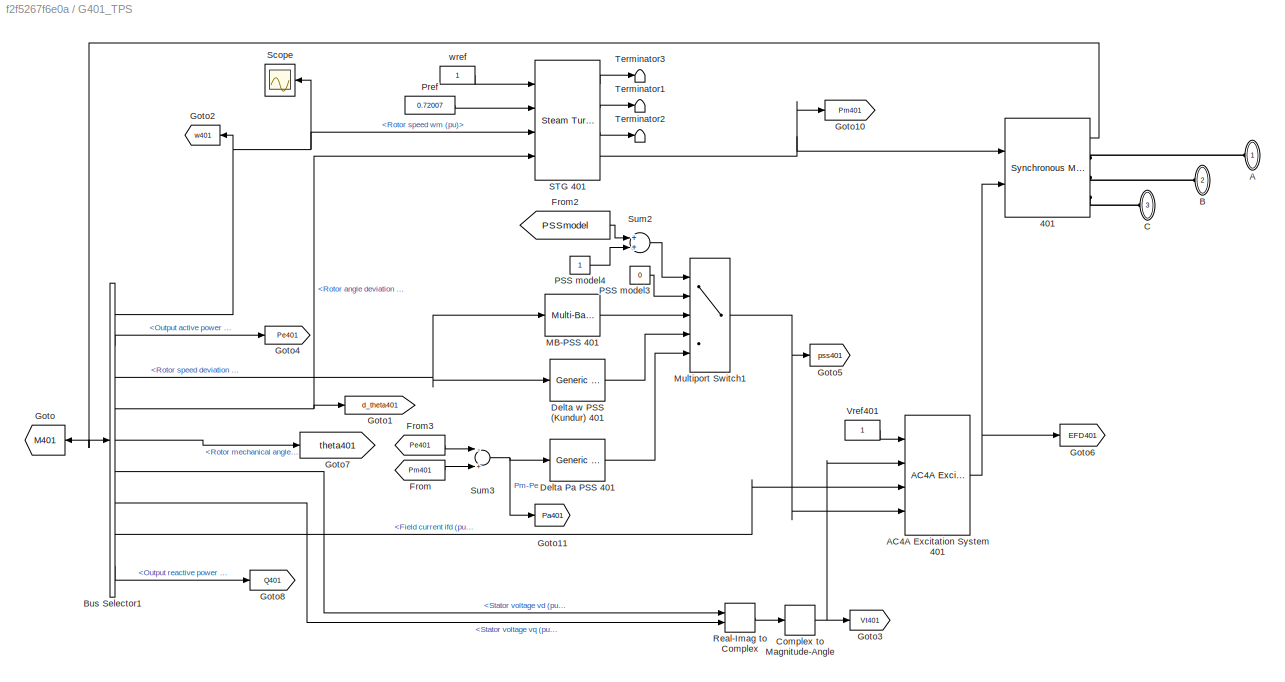
BLOCK [SubSystem] G401_TPS
  Ports = [0, 0, 0, 0, 0, 3]
  RequestExecContextInheritance = off
  Variant = off
BLOCK [Reference] G401_TPS/401  REF=powerlib/Machines/Synchronous Machine
pu Standard
  Ports = [2, 1, 0, 0, 0, 0, 3]
  SourceBlock = powerlib/Machines/Synchronous Machine\npu Standard
  SourceProductBaseCode = PS
  SourceProductName = Simscape Power Systems
  SourceType = Synchronous Machine
BLOCK [PMIOPort] G401_TPS/A
  Port = 1
  Side = Left
BLOCK [Reference] G401_TPS/AC4A Excitation System 401  REF=sps_avr/AC4A
Excitation System
  Ports = [4, 1]
  SourceBlock = sps_avr/AC4A\nExcitation System
  SourceProductBaseCode = PS
  SourceProductName = Simscape Power Systems
  SourceType = AC4A Excitation System
BLOCK [PMIOPort] G401_TPS/B
  Port = 2
  Side = Left
BLOCK [BusSelector] G401_TPS/Bus Selector1
  OutputAsBus = off
  Ports = [1, 9]
BLOCK [PMIOPort] G401_TPS/C
  Port = 3
  Side = Left
BLOCK [ComplexToMagnitudeAngle] G401_TPS/Complex to Magnitude-Angle
  Output = Magnitude
  Ports = [1, 1]
BLOCK [Reference] G401_TPS/Delta Pa PSS  401  REF=powerlib/Machines/Generic
Power System Stabilizer
  Ports = [1, 1]
  SourceBlock = powerlib/Machines/Generic\nPower System Stabilizer
  SourceProductBaseCode = PS
  SourceProductName = Simscape Power Systems
  SourceType = Generic Power System Stabilizer
BLOCK [Reference] G401_TPS/Delta w PSS (Kundur)  401  REF=powerlib/Machines/Generic
Power System Stabilizer
  Ports = [1, 1]
  SourceBlock = powerlib/Machines/Generic\nPower System Stabilizer
  SourceProductBaseCode = PS
  SourceProductName = Simscape Power Systems
  SourceType = Generic Power System Stabilizer
BLOCK [From] G401_TPS/From
  GotoTag = Pm401
  TagVisibility = global
BLOCK [From] G401_TPS/From2
  CloseFcn = tagdialog Close
  GotoTag = PSSmodel
  TagVisibility = global
BLOCK [From] G401_TPS/From3
  GotoTag = Pe401
  TagVisibility = global
BLOCK [Goto] G401_TPS/Goto
  GotoTag = M401
BLOCK [Goto] G401_TPS/Goto1
  GotoTag = d_theta401
  TagVisibility = global
BLOCK [Goto] G401_TPS/Goto10
  GotoTag = Pm401
  TagVisibility = global
BLOCK [Goto] G401_TPS/Goto11
  GotoTag = Pa401
  TagVisibility = global
BLOCK [Goto] G401_TPS/Goto2
  GotoTag = w401
  TagVisibility = global
BLOCK [Goto] G401_TPS/Goto3
  GotoTag = Vt401
  TagVisibility = global
BLOCK [Goto] G401_TPS/Goto4
  GotoTag = Pe401
  TagVisibility = global
BLOCK [Goto] G401_TPS/Goto5
  GotoTag = pss401
  TagVisibility = global
BLOCK [Goto] G401_TPS/Goto6
  GotoTag = EFD401
  TagVisibility = global
BLOCK [Goto] G401_TPS/Goto7
  GotoTag = theta401
  TagVisibility = global
BLOCK [Goto] G401_TPS/Goto8
  GotoTag = Q401
  TagVisibility = global
BLOCK [Reference] G401_TPS/MB-PSS 401   REF=powerlib/Machines/Multi-Band
Power System Stabilizer
  Ports = [1, 1]
  SourceBlock = powerlib/Machines/Multi-Band\nPower System Stabilizer
  SourceProductBaseCode = PS
  SourceProductName = Simscape Power Systems
  SourceType = Multi-Band Power System Stabilizer
BLOCK [MultiPortSwitch] G401_TPS/Multiport Switch1
  Inputs = 4
  Ports = [5, 1]
  SaturateOnIntegerOverflow = off
BLOCK [Constant] G401_TPS/PSS model3
  Value = 0
BLOCK [Constant] G401_TPS/PSS model4
BLOCK [Constant] G401_TPS/Pref
  Value = 0.72007
BLOCK [RealImagToComplex] G401_TPS/Real-Imag to Complex
  Ports = [2, 1]
BLOCK [Reference] G401_TPS/STG 401  REF=powerlib/Machines/Steam Turbine
and Governor
  Ports = [4, 4]
  SourceBlock = powerlib/Machines/Steam Turbine\nand Governor
  SourceProductBaseCode = PS
  SourceProductName = Simscape Power Systems
  SourceType = Steam Turbine and Governor
BLOCK [Scope] G401_TPS/Scope
  NumInputPorts = 1
  Ports = [1]
  ScopeSpecificationString = Simulink.scopes.TimeScopeBlockCfg('CurrentConfiguration', extmgr.ConfigurationSet(extmgr.Configuration('Core','General UI',true),extmgr.Configuration('Core','Source UI',true),extmgr.Configuration('Sources','WiredSimulink',true,'DataLoggingVariableName','ScopeData2'),extmgr.Configuration('Visuals','Time Domain',true,'SerializedDisplays',{struct('MinYLimReal','0.99993','MaxYLimReal','1.00064','YLabe...<+1410ch>
BLOCK [Sum] G401_TPS/Sum2
  Ports = [2, 1]
BLOCK [Sum] G401_TPS/Sum3
  Inputs = -+
  Ports = [2, 1]
BLOCK [Terminator] G401_TPS/Terminator1
BLOCK [Terminator] G401_TPS/Terminator2
BLOCK [Terminator] G401_TPS/Terminator3
BLOCK [Constant] G401_TPS/Vref401
BLOCK [Constant] G401_TPS/wref
BLOCK [SubSystem] G404_GPS
  Ports = [0, 0, 0, 0, 0, 3]
  RequestExecContextInheritance = off
  Variant = off
BLOCK [Reference] G404_GPS/404  REF=powerlib/Machines/Synchronous Machine
pu Standard
  Ports = [2, 1, 0, 0, 0, 0, 3]
  SourceBlock = powerlib/Machines/Synchronous Machine\npu Standard
  SourceProductBaseCode = PS
  SourceProductName = Simscape Power Systems
  SourceType = Synchronous Machine
BLOCK [PMIOPort] G404_GPS/A
  Port = 1
  Side = Left
BLOCK [Reference] G404_GPS/AC4A Excitation System 404  REF=sps_avr/AC4A
Excitation System
  Ports = [4, 1]
  SourceBlock = sps_avr/AC4A\nExcitation System
  SourceProductBaseCode = PS
  SourceProductName = Simscape Power Systems
  SourceType = AC4A Excitation System
BLOCK [PMIOPort] G404_GPS/B
  Port = 2
  Side = Left
BLOCK [BusSelector] G404_GPS/Bus Selector1
  OutputAsBus = off
  Ports = [1, 9]
BLOCK [PMIOPort] G404_GPS/C
  Port = 3
  Side = Left
BLOCK [ComplexToMagnitudeAngle] G404_GPS/Complex to Magnitude-Angle
  Output = Magnitude
  Ports = [1, 1]
BLOCK [Reference] G404_GPS/Delta Pa PSS 404   REF=powerlib/Machines/Generic
Power System Stabilizer
  Ports = [1, 1]
  SourceBlock = powerlib/Machines/Generic\nPower System Stabilizer
  SourceProductBaseCode = PS
  SourceProductName = Simscape Power Systems
  SourceType = Generic Power System Stabilizer
BLOCK [Reference] G404_GPS/Delta w PSS 404 (Kundur)   REF=powerlib/Machines/Generic
Power System Stabilizer
  Ports = [1, 1]
  SourceBlock = powerlib/Machines/Generic\nPower System Stabilizer
  SourceProductBaseCode = PS
  SourceProductName = Simscape Power Systems
  SourceType = Generic Power System Stabilizer
BLOCK [From] G404_GPS/From
  GotoTag = Pm404
  TagVisibility = global
BLOCK [From] G404_GPS/From2
  CloseFcn = tagdialog Close
  GotoTag = PSSmodel
  TagVisibility = global
BLOCK [From] G404_GPS/From3
  GotoTag = Pe404
  TagVisibility = global
BLOCK [Goto] G404_GPS/Goto
  GotoTag = M404
BLOCK [Goto] G404_GPS/Goto1
  GotoTag = d_theta404
  TagVisibility = global
BLOCK [Goto] G404_GPS/Goto10
  GotoTag = Pm404
  TagVisibility = global
BLOCK [Goto] G404_GPS/Goto11
  GotoTag = Pa404
  TagVisibility = global
BLOCK [Goto] G404_GPS/Goto2
  GotoTag = w404
  TagVisibility = global
BLOCK [Goto] G404_GPS/Goto3
  GotoTag = Vt404
  TagVisibility = global
BLOCK [Goto] G404_GPS/Goto4
  GotoTag = Pe404
  TagVisibility = global
BLOCK [Goto] G404_GPS/Goto5
  GotoTag = pss404
  TagVisibility = global
BLOCK [Goto] G404_GPS/Goto6
  GotoTag = EFD404
  TagVisibility = global
BLOCK [Goto] G404_GPS/Goto7
  GotoTag = theta404
  TagVisibility = global
BLOCK [Goto] G404_GPS/Goto8
  GotoTag = Q404
  TagVisibility = global
BLOCK [Reference] G404_GPS/MB-PSS 404   REF=powerlib/Machines/Multi-Band
Power System Stabilizer
  Ports = [1, 1]
  SourceBlock = powerlib/Machines/Multi-Band\nPower System Stabilizer
  SourceProductBaseCode = PS
  SourceProductName = Simscape Power Systems
  SourceType = Multi-Band Power System Stabilizer
BLOCK [MultiPortSwitch] G404_GPS/Multiport Switch1
  Inputs = 4
  Ports = [5, 1]
  SaturateOnIntegerOverflow = off
BLOCK [Constant] G404_GPS/PSS model3
  Value = 0
BLOCK [Constant] G404_GPS/PSS model4
BLOCK [Constant] G404_GPS/Pref
  Value = 0.65107
BLOCK [RealImagToComplex] G404_GPS/Real-Imag to Complex
  Ports = [2, 1]
BLOCK [Reference] G404_GPS/STG 404  REF=powerlib/Machines/Steam Turbine
and Governor
  Ports = [4, 4]
  SourceBlock = powerlib/Machines/Steam Turbine\nand Governor
  SourceProductBaseCode = PS
  SourceProductName = Simscape Power Systems
  SourceType = Steam Turbine and Governor
BLOCK [Sum] G404_GPS/Sum2
  Ports = [2, 1]
BLOCK [Sum] G404_GPS/Sum3
  Inputs = -+
  Ports = [2, 1]
BLOCK [Terminator] G404_GPS/Terminator1
BLOCK [Terminator] G404_GPS/Terminator2
BLOCK [Terminator] G404_GPS/Terminator3
BLOCK [Constant] G404_GPS/Vref404
BLOCK [Constant] G404_GPS/wref
BLOCK [SubSystem] G501_NPS
  Ports = [0, 0, 0, 0, 0, 3]
  RequestExecContextInheritance = off
  Variant = off
BLOCK [Reference] G501_NPS/501  REF=powerlib/Machines/Synchronous Machine
pu Standard
  Ports = [2, 1, 0, 0, 0, 0, 3]
  SourceBlock = powerlib/Machines/Synchronous Machine\npu Standard
  SourceProductBaseCode = PS
  SourceProductName = Simscape Power Systems
  SourceType = Synchronous Machine
BLOCK [PMIOPort] G501_NPS/A
  Port = 1
  Side = Left
BLOCK [Reference] G501_NPS/AC1A Excitation System 501  REF=sps_avr/AC1A
Excitation System
  Ports = [4, 1]
  SourceBlock = sps_avr/AC1A\nExcitation System
  SourceProductBaseCode = PS
  SourceProductName = Simscape Power Systems
  SourceType = AC1A Excitation System
BLOCK [PMIOPort] G501_NPS/B
  Port = 2
  Side = Left
BLOCK [BusSelector] G501_NPS/Bus Selector1
  OutputAsBus = off
  Ports = [1, 9]
BLOCK [PMIOPort] G501_NPS/C
  Port = 3
  Side = Left
BLOCK [ComplexToMagnitudeAngle] G501_NPS/Complex to Magnitude-Angle
  Output = Magnitude
  Ports = [1, 1]
BLOCK [Reference] G501_NPS/Delta Pa PSS 501   REF=powerlib/Machines/Generic
Power System Stabilizer
  Ports = [1, 1]
  SourceBlock = powerlib/Machines/Generic\nPower System Stabilizer
  SourceProductBaseCode = PS
  SourceProductName = Simscape Power Systems
  SourceType = Generic Power System Stabilizer
BLOCK [Reference] G501_NPS/Delta w PSS (Kundur) 501   REF=powerlib/Machines/Generic
Power System Stabilizer
  Ports = [1, 1]
  SourceBlock = powerlib/Machines/Generic\nPower System Stabilizer
  SourceProductBaseCode = PS
  SourceProductName = Simscape Power Systems
  SourceType = Generic Power System Stabilizer
BLOCK [From] G501_NPS/From
  GotoTag = Pm501
  TagVisibility = global
BLOCK [From] G501_NPS/From2
  CloseFcn = tagdialog Close
  GotoTag = PSSmodel
  TagVisibility = global
BLOCK [From] G501_NPS/From3
  GotoTag = Pe501
  TagVisibility = global
BLOCK [Goto] G501_NPS/Goto
  GotoTag = M501
BLOCK [Goto] G501_NPS/Goto1
  GotoTag = d_theta501
  TagVisibility = global
BLOCK [Goto] G501_NPS/Goto10
  GotoTag = Pm501
  TagVisibility = global
BLOCK [Goto] G501_NPS/Goto11
  GotoTag = Pa501
  TagVisibility = global
BLOCK [Goto] G501_NPS/Goto2
  GotoTag = w501
  TagVisibility = global
BLOCK [Goto] G501_NPS/Goto3
  GotoTag = Vt501
  TagVisibility = global
BLOCK [Goto] G501_NPS/Goto4
  GotoTag = Pe501
  TagVisibility = global
BLOCK [Goto] G501_NPS/Goto5
  GotoTag = pss501
  TagVisibility = global
BLOCK [Goto] G501_NPS/Goto6
  GotoTag = EFD501
  TagVisibility = global
BLOCK [Goto] G501_NPS/Goto7
  GotoTag = theta501
  TagVisibility = global
BLOCK [Goto] G501_NPS/Goto8
  GotoTag = Q501
  TagVisibility = global
BLOCK [Reference] G501_NPS/MB-PSS 501   REF=powerlib/Machines/Multi-Band
Power System Stabilizer
  Ports = [1, 1]
  SourceBlock = powerlib/Machines/Multi-Band\nPower System Stabilizer
  SourceProductBaseCode = PS
  SourceProductName = Simscape Power Systems
  SourceType = Multi-Band Power System Stabilizer
BLOCK [MultiPortSwitch] G501_NPS/Multiport Switch1
  Inputs = 4
  Ports = [5, 1]
  SaturateOnIntegerOverflow = off
BLOCK [Constant] G501_NPS/PSS model3
  Value = 0
BLOCK [Constant] G501_NPS/PSS model4
BLOCK [Constant] G501_NPS/Pref
  Value = 0.84008
BLOCK [RealImagToComplex] G501_NPS/Real-Imag to Complex
  Ports = [2, 1]
BLOCK [Reference] G501_NPS/STG 501  REF=powerlib/Machines/Steam Turbine
and Governor
  Ports = [4, 4]
  SourceBlock = powerlib/Machines/Steam Turbine\nand Governor
  SourceProductBaseCode = PS
  SourceProductName = Simscape Power Systems
  SourceType = Steam Turbine and Governor
BLOCK [Sum] G501_NPS/Sum2
  Ports = [2, 1]
BLOCK [Sum] G501_NPS/Sum3
  Inputs = -+
  Ports = [2, 1]
BLOCK [Constant] G501_NPS/Vref501
BLOCK [Constant] G501_NPS/wref
BLOCK [SubSystem] G503_PPS
  Ports = [0, 0, 0, 0, 0, 3]
  RequestExecContextInheritance = off
  Variant = off
BLOCK [Reference] G503_PPS/503  REF=powerlib/Machines/Synchronous Machine
pu Standard
  Ports = [2, 1, 0, 0, 0, 0, 3]
  SourceBlock = powerlib/Machines/Synchronous Machine\npu Standard
  SourceProductBaseCode = PS
  SourceProductName = Simscape Power Systems
  SourceType = Synchronous Machine
BLOCK [PMIOPort] G503_PPS/A
  Port = 1
  Side = Left
BLOCK [Reference] G503_PPS/AC4A Excitation System 503  REF=sps_avr/AC4A
Excitation System
  Ports = [4, 1]
  SourceBlock = sps_avr/AC4A\nExcitation System
  SourceProductBaseCode = PS
  SourceProductName = Simscape Power Systems
  SourceType = AC4A Excitation System
BLOCK [PMIOPort] G503_PPS/B
  Port = 2
  Side = Left
BLOCK [BusSelector] G503_PPS/Bus Selector1
  OutputAsBus = off
  Ports = [1, 9]
BLOCK [PMIOPort] G503_PPS/C
  Port = 3
  Side = Left
BLOCK [ComplexToMagnitudeAngle] G503_PPS/Complex to Magnitude-Angle
  Output = Magnitude
  Ports = [1, 1]
BLOCK [Reference] G503_PPS/Delta Pa PSS 503   REF=powerlib/Machines/Generic
Power System Stabilizer
  Ports = [1, 1]
  SourceBlock = powerlib/Machines/Generic\nPower System Stabilizer
  SourceProductBaseCode = PS
  SourceProductName = Simscape Power Systems
  SourceType = Generic Power System Stabilizer
BLOCK [Reference] G503_PPS/Delta w PSS (Kundur)  503  REF=powerlib/Machines/Generic
Power System Stabilizer
  Ports = [1, 1]
  SourceBlock = powerlib/Machines/Generic\nPower System Stabilizer
  SourceProductBaseCode = PS
  SourceProductName = Simscape Power Systems
  SourceType = Generic Power System Stabilizer
BLOCK [From] G503_PPS/From
  GotoTag = Pm503
  TagVisibility = global
BLOCK [From] G503_PPS/From2
  CloseFcn = tagdialog Close
  GotoTag = PSSmodel
  TagVisibility = global
BLOCK [From] G503_PPS/From3
  GotoTag = Pe503
  TagVisibility = global
BLOCK [Goto] G503_PPS/Goto
  GotoTag = M503
BLOCK [Goto] G503_PPS/Goto1
  GotoTag = d_theta503
  TagVisibility = global
BLOCK [Goto] G503_PPS/Goto10
  GotoTag = Pm503
  TagVisibility = global
BLOCK [Goto] G503_PPS/Goto11
  GotoTag = Pa503
  TagVisibility = global
BLOCK [Goto] G503_PPS/Goto2
  GotoTag = w503
  TagVisibility = global
BLOCK [Goto] G503_PPS/Goto3
  GotoTag = Vt503
  TagVisibility = global
BLOCK [Goto] G503_PPS/Goto4
  GotoTag = Pe503
  TagVisibility = global
BLOCK [Goto] G503_PPS/Goto5
  GotoTag = pss503
  TagVisibility = global
BLOCK [Goto] G503_PPS/Goto6
  GotoTag = EFD503
  TagVisibility = global
BLOCK [Goto] G503_PPS/Goto7
  GotoTag = theta503
  TagVisibility = global
BLOCK [Goto] G503_PPS/Goto8
  GotoTag = Q503
  TagVisibility = global
BLOCK [Reference] G503_PPS/MB-PSS  503  REF=powerlib/Machines/Multi-Band
Power System Stabilizer
  Ports = [1, 1]
  SourceBlock = powerlib/Machines/Multi-Band\nPower System Stabilizer
  SourceProductBaseCode = PS
  SourceProductName = Simscape Power Systems
  SourceType = Multi-Band Power System Stabilizer
BLOCK [MultiPortSwitch] G503_PPS/Multiport Switch1
  Inputs = 4
  Ports = [5, 1]
  SaturateOnIntegerOverflow = off
BLOCK [Constant] G503_PPS/PSS model3
  Value = 0
BLOCK [Constant] G503_PPS/PSS model4
BLOCK [Constant] G503_PPS/Pref
  Value = 0.89982
BLOCK [RealImagToComplex] G503_PPS/Real-Imag to Complex
  Ports = [2, 1]
BLOCK [Reference] G503_PPS/STG 503  REF=powerlib/Machines/Steam Turbine
and Governor
  Ports = [4, 4]
  SourceBlock = powerlib/Machines/Steam Turbine\nand Governor
  SourceProductBaseCode = PS
  SourceProductName = Simscape Power Systems
  SourceType = Steam Turbine and Governor
BLOCK [Sum] G503_PPS/Sum2
  Ports = [2, 1]
BLOCK [Sum] G503_PPS/Sum3
  Inputs = -+
  Ports = [2, 1]
BLOCK [Terminator] G503_PPS/Terminator1
BLOCK [Terminator] G503_PPS/Terminator2
BLOCK [Terminator] G503_PPS/Terminator3
BLOCK [Constant] G503_PPS/Vref503
BLOCK [Constant] G503_PPS/wref
BLOCK [Goto] Goto1
  GotoTag = PSSmodel
  TagVisibility = global
BLOCK [Reference] L-1-1  REF=powerlib/Elements/Three-Phase
PI Section Line
  AttributesFormatString = \n
  Ports = [0, 0, 0, 0, 0, 3, 3]
  SourceBlock = powerlib/Elements/Three-Phase\nPI Section Line
  SourceProductBaseCode = PS
  SourceProductName = Simscape Power Systems
  SourceType = Three-Phase PI Section Line
BLOCK [Reference] L-1-2  REF=powerlib/Elements/Three-Phase
PI Section Line
  AttributesFormatString = \n
  Ports = [0, 0, 0, 0, 0, 3, 3]
  SourceBlock = powerlib/Elements/Three-Phase\nPI Section Line
  SourceProductBaseCode = PS
  SourceProductName = Simscape Power Systems
  SourceType = Three-Phase PI Section Line
BLOCK [Reference] L-10-1  REF=powerlib/Elements/Three-Phase
PI Section Line
  AttributesFormatString = \n
  Ports = [0, 0, 0, 0, 0, 3, 3]
  SourceBlock = powerlib/Elements/Three-Phase\nPI Section Line
  SourceProductBaseCode = PS
  SourceProductName = Simscape Power Systems
  SourceType = Three-Phase PI Section Line
BLOCK [Reference] L-10-2  REF=powerlib/Elements/Three-Phase
PI Section Line
  AttributesFormatString = \n
  Ports = [0, 0, 0, 0, 0, 3, 3]
  SourceBlock = powerlib/Elements/Three-Phase\nPI Section Line
  SourceProductBaseCode = PS
  SourceProductName = Simscape Power Systems
  SourceType = Three-Phase PI Section Line
BLOCK [Reference] L-11  REF=powerlib/Elements/Three-Phase
PI Section Line
  AttributesFormatString = \n
  Ports = [0, 0, 0, 0, 0, 3, 3]
  SourceBlock = powerlib/Elements/Three-Phase\nPI Section Line
  SourceProductBaseCode = PS
  SourceProductName = Simscape Power Systems
  SourceType = Three-Phase PI Section Line
BLOCK [Reference] L-12-1  REF=powerlib/Elements/Three-Phase
PI Section Line
  AttributesFormatString = \n
  Ports = [0, 0, 0, 0, 0, 3, 3]
  SourceBlock = powerlib/Elements/Three-Phase\nPI Section Line
  SourceProductBaseCode = PS
  SourceProductName = Simscape Power Systems
  SourceType = Three-Phase PI Section Line
BLOCK [Reference] L-12-2  REF=powerlib/Elements/Three-Phase
PI Section Line
  AttributesFormatString = \n
  Ports = [0, 0, 0, 0, 0, 3, 3]
  SourceBlock = powerlib/Elements/Three-Phase\nPI Section Line
  SourceProductBaseCode = PS
  SourceProductName = Simscape Power Systems
  SourceType = Three-Phase PI Section Line
BLOCK [Reference] L-12-3  REF=powerlib/Elements/Three-Phase
PI Section Line
  AttributesFormatString = \n
  Ports = [0, 0, 0, 0, 0, 3, 3]
  SourceBlock = powerlib/Elements/Three-Phase\nPI Section Line
  SourceProductBaseCode = PS
  SourceProductName = Simscape Power Systems
  SourceType = Three-Phase PI Section Line
BLOCK [Reference] L-13  REF=powerlib/Elements/Three-Phase
PI Section Line
  AttributesFormatString = \n
  Ports = [0, 0, 0, 0, 0, 3, 3]
  SourceBlock = powerlib/Elements/Three-Phase\nPI Section Line
  SourceProductBaseCode = PS
  SourceProductName = Simscape Power Systems
  SourceType = Three-Phase PI Section Line
BLOCK [Reference] L-14-1  REF=powerlib/Elements/Three-Phase
PI Section Line
  AttributesFormatString = \n
  Ports = [0, 0, 0, 0, 0, 3, 3]
  SourceBlock = powerlib/Elements/Three-Phase\nPI Section Line
  SourceProductBaseCode = PS
  SourceProductName = Simscape Power Systems
  SourceType = Three-Phase PI Section Line
BLOCK [Reference] L-14-2  REF=powerlib/Elements/Three-Phase
PI Section Line
  AttributesFormatString = \n
  Ports = [0, 0, 0, 0, 0, 3, 3]
  SourceBlock = powerlib/Elements/Three-Phase\nPI Section Line
  SourceProductBaseCode = PS
  SourceProductName = Simscape Power Systems
  SourceType = Three-Phase PI Section Line
BLOCK [Reference] L-15-1  REF=powerlib/Elements/Three-Phase
PI Section Line
  AttributesFormatString = \n
  Ports = [0, 0, 0, 0, 0, 3, 3]
  SourceBlock = powerlib/Elements/Three-Phase\nPI Section Line
  SourceProductBaseCode = PS
  SourceProductName = Simscape Power Systems
  SourceType = Three-Phase PI Section Line
BLOCK [Reference] L-15-2  REF=powerlib/Elements/Three-Phase
PI Section Line
  AttributesFormatString = \n
  Ports = [0, 0, 0, 0, 0, 3, 3]
  SourceBlock = powerlib/Elements/Three-Phase\nPI Section Line
  SourceProductBaseCode = PS
  SourceProductName = Simscape Power Systems
  SourceType = Three-Phase PI Section Line
BLOCK [Reference] L-16  REF=powerlib/Elements/Three-Phase
PI Section Line
  AttributesFormatString = \n
  Ports = [0, 0, 0, 0, 0, 3, 3]
  SourceBlock = powerlib/Elements/Three-Phase\nPI Section Line
  SourceProductBaseCode = PS
  SourceProductName = Simscape Power Systems
  SourceType = Three-Phase PI Section Line
BLOCK [Reference] L-17  REF=powerlib/Elements/Three-Phase
PI Section Line
  AttributesFormatString = \n
  Ports = [0, 0, 0, 0, 0, 3, 3]
  SourceBlock = powerlib/Elements/Three-Phase\nPI Section Line
  SourceProductBaseCode = PS
  SourceProductName = Simscape Power Systems
  SourceType = Three-Phase PI Section Line
BLOCK [Reference] L-18  REF=powerlib/Elements/Three-Phase
PI Section Line
  AttributesFormatString = \n
  Ports = [0, 0, 0, 0, 0, 3, 3]
  SourceBlock = powerlib/Elements/Three-Phase\nPI Section Line
  SourceProductBaseCode = PS
  SourceProductName = Simscape Power Systems
  SourceType = Three-Phase PI Section Line
BLOCK [Reference] L-19  REF=powerlib/Elements/Three-Phase
PI Section Line
  AttributesFormatString = \n
  Ports = [0, 0, 0, 0, 0, 3, 3]
  SourceBlock = powerlib/Elements/Three-Phase\nPI Section Line
  SourceProductBaseCode = PS
  SourceProductName = Simscape Power Systems
  SourceType = Three-Phase PI Section Line
BLOCK [Reference] L-2-1  REF=powerlib/Elements/Three-Phase
PI Section Line
  AttributesFormatString = \n
  Ports = [0, 0, 0, 0, 0, 3, 3]
  SourceBlock = powerlib/Elements/Three-Phase\nPI Section Line
  SourceProductBaseCode = PS
  SourceProductName = Simscape Power Systems
  SourceType = Three-Phase PI Section Line
BLOCK [Reference] L-2-2  REF=powerlib/Elements/Three-Phase
PI Section Line
  AttributesFormatString = \n
  Ports = [0, 0, 0, 0, 0, 3, 3]
  SourceBlock = powerlib/Elements/Three-Phase\nPI Section Line
  SourceProductBaseCode = PS
  SourceProductName = Simscape Power Systems
  SourceType = Three-Phase PI Section Line
BLOCK [Reference] L-20-1  REF=powerlib/Elements/Three-Phase
PI Section Line
  AttributesFormatString = \n
  Ports = [0, 0, 0, 0, 0, 3, 3]
  SourceBlock = powerlib/Elements/Three-Phase\nPI Section Line
  SourceProductBaseCode = PS
  SourceProductName = Simscape Power Systems
  SourceType = Three-Phase PI Section Line
BLOCK [Reference] L-20-2  REF=powerlib/Elements/Three-Phase
PI Section Line
  AttributesFormatString = \n
  Ports = [0, 0, 0, 0, 0, 3, 3]
  SourceBlock = powerlib/Elements/Three-Phase\nPI Section Line
  SourceProductBaseCode = PS
  SourceProductName = Simscape Power Systems
  SourceType = Three-Phase PI Section Line
BLOCK [Reference] L-21-1  REF=powerlib/Elements/Three-Phase
PI Section Line
  AttributesFormatString = \n
  Ports = [0, 0, 0, 0, 0, 3, 3]
  SourceBlock = powerlib/Elements/Three-Phase\nPI Section Line
  SourceProductBaseCode = PS
  SourceProductName = Simscape Power Systems
  SourceType = Three-Phase PI Section Line
BLOCK [Reference] L-21-2  REF=powerlib/Elements/Three-Phase
PI Section Line
  AttributesFormatString = \n
  Ports = [0, 0, 0, 0, 0, 3, 3]
  SourceBlock = powerlib/Elements/Three-Phase\nPI Section Line
  SourceProductBaseCode = PS
  SourceProductName = Simscape Power Systems
  SourceType = Three-Phase PI Section Line
BLOCK [Reference] L-22  REF=powerlib/Elements/Three-Phase
PI Section Line
  AttributesFormatString = \n
  Ports = [0, 0, 0, 0, 0, 3, 3]
  SourceBlock = powerlib/Elements/Three-Phase\nPI Section Line
  SourceProductBaseCode = PS
  SourceProductName = Simscape Power Systems
  SourceType = Three-Phase PI Section Line
BLOCK [Reference] L-23  REF=powerlib/Elements/Three-Phase
PI Section Line
  AttributesFormatString = \n
  Ports = [0, 0, 0, 0, 0, 3, 3]
  SourceBlock = powerlib/Elements/Three-Phase\nPI Section Line
  SourceProductBaseCode = PS
  SourceProductName = Simscape Power Systems
  SourceType = Three-Phase PI Section Line
BLOCK [Reference] L-24-1  REF=powerlib/Elements/Three-Phase
PI Section Line
  AttributesFormatString = \n
  Ports = [0, 0, 0, 0, 0, 3, 3]
  SourceBlock = powerlib/Elements/Three-Phase\nPI Section Line
  SourceProductBaseCode = PS
  SourceProductName = Simscape Power Systems
  SourceType = Three-Phase PI Section Line
BLOCK [Reference] L-24-2  REF=powerlib/Elements/Three-Phase
PI Section Line
  AttributesFormatString = \n
  Ports = [0, 0, 0, 0, 0, 3, 3]
  SourceBlock = powerlib/Elements/Three-Phase\nPI Section Line
  SourceProductBaseCode = PS
  SourceProductName = Simscape Power Systems
  SourceType = Three-Phase PI Section Line
BLOCK [Reference] L-25  REF=powerlib/Elements/Three-Phase
PI Section Line
  AttributesFormatString = \n
  Ports = [0, 0, 0, 0, 0, 3, 3]
  SourceBlock = powerlib/Elements/Three-Phase\nPI Section Line
  SourceProductBaseCode = PS
  SourceProductName = Simscape Power Systems
  SourceType = Three-Phase PI Section Line
BLOCK [Reference] L-26  REF=powerlib/Elements/Three-Phase
PI Section Line
  AttributesFormatString = \n
  Ports = [0, 0, 0, 0, 0, 3, 3]
  SourceBlock = powerlib/Elements/Three-Phase\nPI Section Line
  SourceProductBaseCode = PS
  SourceProductName = Simscape Power Systems
  SourceType = Three-Phase PI Section Line
BLOCK [Reference] L-27-1  REF=powerlib/Elements/Three-Phase
PI Section Line
  AttributesFormatString = \n
  Ports = [0, 0, 0, 0, 0, 3, 3]
  SourceBlock = powerlib/Elements/Three-Phase\nPI Section Line
  SourceProductBaseCode = PS
  SourceProductName = Simscape Power Systems
  SourceType = Three-Phase PI Section Line
BLOCK [Reference] L-27-2  REF=powerlib/Elements/Three-Phase
PI Section Line
  AttributesFormatString = \n
  Ports = [0, 0, 0, 0, 0, 3, 3]
  SourceBlock = powerlib/Elements/Three-Phase\nPI Section Line
  SourceProductBaseCode = PS
  SourceProductName = Simscape Power Systems
  SourceType = Three-Phase PI Section Line
BLOCK [Reference] L-28  REF=powerlib/Elements/Three-Phase
PI Section Line
  AttributesFormatString = \n
  Ports = [0, 0, 0, 0, 0, 3, 3]
  SourceBlock = powerlib/Elements/Three-Phase\nPI Section Line
  SourceProductBaseCode = PS
  SourceProductName = Simscape Power Systems
  SourceType = Three-Phase PI Section Line
BLOCK [Reference] L-29-1  REF=powerlib/Elements/Three-Phase
PI Section Line
  AttributesFormatString = \n
  Ports = [0, 0, 0, 0, 0, 3, 3]
  SourceBlock = powerlib/Elements/Three-Phase\nPI Section Line
  SourceProductBaseCode = PS
  SourceProductName = Simscape Power Systems
  SourceType = Three-Phase PI Section Line
BLOCK [Reference] L-29-2  REF=powerlib/Elements/Three-Phase
PI Section Line
  AttributesFormatString = \n
  Ports = [0, 0, 0, 0, 0, 3, 3]
  SourceBlock = powerlib/Elements/Three-Phase\nPI Section Line
  SourceProductBaseCode = PS
  SourceProductName = Simscape Power Systems
  SourceType = Three-Phase PI Section Line
BLOCK [Reference] L-3-1  REF=powerlib/Elements/Three-Phase
PI Section Line
  AttributesFormatString = \n
  Ports = [0, 0, 0, 0, 0, 3, 3]
  SourceBlock = powerlib/Elements/Three-Phase\nPI Section Line
  SourceProductBaseCode = PS
  SourceProductName = Simscape Power Systems
  SourceType = Three-Phase PI Section Line
BLOCK [Reference] L-3-2  REF=powerlib/Elements/Three-Phase
PI Section Line
  AttributesFormatString = \n
  Ports = [0, 0, 0, 0, 0, 3, 3]
  SourceBlock = powerlib/Elements/Three-Phase\nPI Section Line
  SourceProductBaseCode = PS
  SourceProductName = Simscape Power Systems
  SourceType = Three-Phase PI Section Line
BLOCK [Reference] L-30-1  REF=powerlib/Elements/Three-Phase
PI Section Line
  AttributesFormatString = \n
  Ports = [0, 0, 0, 0, 0, 3, 3]
  SourceBlock = powerlib/Elements/Three-Phase\nPI Section Line
  SourceProductBaseCode = PS
  SourceProductName = Simscape Power Systems
  SourceType = Three-Phase PI Section Line
BLOCK [Reference] L-30-2  REF=powerlib/Elements/Three-Phase
PI Section Line
  AttributesFormatString = \n
  Ports = [0, 0, 0, 0, 0, 3, 3]
  SourceBlock = powerlib/Elements/Three-Phase\nPI Section Line
  SourceProductBaseCode = PS
  SourceProductName = Simscape Power Systems
  SourceType = Three-Phase PI Section Line
BLOCK [Reference] L-32  REF=powerlib/Elements/Three-Phase
PI Section Line
  AttributesFormatString = \n
  Ports = [0, 0, 0, 0, 0, 3, 3]
  SourceBlock = powerlib/Elements/Three-Phase\nPI Section Line
  SourceProductBaseCode = PS
  SourceProductName = Simscape Power Systems
  SourceType = Three-Phase PI Section Line
BLOCK [Reference] L-33  REF=powerlib/Elements/Three-Phase
PI Section Line
  AttributesFormatString = \n
  Ports = [0, 0, 0, 0, 0, 3, 3]
  SourceBlock = powerlib/Elements/Three-Phase\nPI Section Line
  SourceProductBaseCode = PS
  SourceProductName = Simscape Power Systems
  SourceType = Three-Phase PI Section Line
BLOCK [Reference] L-34-1  REF=powerlib/Elements/Three-Phase
PI Section Line
  AttributesFormatString = \n
  Ports = [0, 0, 0, 0, 0, 3, 3]
  SourceBlock = powerlib/Elements/Three-Phase\nPI Section Line
  SourceProductBaseCode = PS
  SourceProductName = Simscape Power Systems
  SourceType = Three-Phase PI Section Line
BLOCK [Reference] L-34-2  REF=powerlib/Elements/Three-Phase
PI Section Line
  AttributesFormatString = \n
  Ports = [0, 0, 0, 0, 0, 3, 3]
  SourceBlock = powerlib/Elements/Three-Phase\nPI Section Line
  SourceProductBaseCode = PS
  SourceProductName = Simscape Power Systems
  SourceType = Three-Phase PI Section Line
BLOCK [Reference] L-35-1  REF=powerlib/Elements/Three-Phase
PI Section Line
  AttributesFormatString = \n
  Ports = [0, 0, 0, 0, 0, 3, 3]
  SourceBlock = powerlib/Elements/Three-Phase\nPI Section Line
  SourceProductBaseCode = PS
  SourceProductName = Simscape Power Systems
  SourceType = Three-Phase PI Section Line
BLOCK [Reference] L-35-2  REF=powerlib/Elements/Three-Phase
PI Section Line
  AttributesFormatString = \n
  Ports = [0, 0, 0, 0, 0, 3, 3]
  SourceBlock = powerlib/Elements/Three-Phase\nPI Section Line
  SourceProductBaseCode = PS
  SourceProductName = Simscape Power Systems
  SourceType = Three-Phase PI Section Line
BLOCK [Reference] L-36-1  REF=powerlib/Elements/Three-Phase
PI Section Line
  AttributesFormatString = \n
  Ports = [0, 0, 0, 0, 0, 3, 3]
  SourceBlock = powerlib/Elements/Three-Phase\nPI Section Line
  SourceProductBaseCode = PS
  SourceProductName = Simscape Power Systems
  SourceType = Three-Phase PI Section Line
BLOCK [Reference] L-37-1  REF=powerlib/Elements/Three-Phase
PI Section Line
  AttributesFormatString = \n
  Ports = [0, 0, 0, 0, 0, 3, 3]
  SourceBlock = powerlib/Elements/Three-Phase\nPI Section Line
  SourceProductBaseCode = PS
  SourceProductName = Simscape Power Systems
  SourceType = Three-Phase PI Section Line
BLOCK [Reference] L-37-2  REF=powerlib/Elements/Three-Phase
PI Section Line
  AttributesFormatString = \n
  Ports = [0, 0, 0, 0, 0, 3, 3]
  SourceBlock = powerlib/Elements/Three-Phase\nPI Section Line
  SourceProductBaseCode = PS
  SourceProductName = Simscape Power Systems
  SourceType = Three-Phase PI Section Line
BLOCK [Reference] L-37-3  REF=powerlib/Elements/Three-Phase
PI Section Line
  AttributesFormatString = \n
  Ports = [0, 0, 0, 0, 0, 3, 3]
  SourceBlock = powerlib/Elements/Three-Phase\nPI Section Line
  SourceProductBaseCode = PS
  SourceProductName = Simscape Power Systems
  SourceType = Three-Phase PI Section Line
BLOCK [Reference] L-38-1  REF=powerlib/Elements/Three-Phase
PI Section Line
  AttributesFormatString = \n
  Ports = [0, 0, 0, 0, 0, 3, 3]
  SourceBlock = powerlib/Elements/Three-Phase\nPI Section Line
  SourceProductBaseCode = PS
  SourceProductName = Simscape Power Systems
  SourceType = Three-Phase PI Section Line
BLOCK [Reference] L-38-2  REF=powerlib/Elements/Three-Phase
PI Section Line
  AttributesFormatString = \n
  Ports = [0, 0, 0, 0, 0, 3, 3]
  SourceBlock = powerlib/Elements/Three-Phase\nPI Section Line
  SourceProductBaseCode = PS
  SourceProductName = Simscape Power Systems
  SourceType = Three-Phase PI Section Line
BLOCK [Reference] L-39  REF=powerlib/Elements/Three-Phase
PI Section Line
  AttributesFormatString = \n
  Ports = [0, 0, 0, 0, 0, 3, 3]
  SourceBlock = powerlib/Elements/Three-Phase\nPI Section Line
  SourceProductBaseCode = PS
  SourceProductName = Simscape Power Systems
  SourceType = Three-Phase PI Section Line
BLOCK [Reference] L-4  REF=powerlib/Elements/Three-Phase
PI Section Line
  AttributesFormatString = \n
  Ports = [0, 0, 0, 0, 0, 3, 3]
  SourceBlock = powerlib/Elements/Three-Phase\nPI Section Line
  SourceProductBaseCode = PS
  SourceProductName = Simscape Power Systems
  SourceType = Three-Phase PI Section Line
BLOCK [Reference] L-40-1  REF=powerlib/Elements/Three-Phase
PI Section Line
  AttributesFormatString = \n
  Ports = [0, 0, 0, 0, 0, 3, 3]
  SourceBlock = powerlib/Elements/Three-Phase\nPI Section Line
  SourceProductBaseCode = PS
  SourceProductName = Simscape Power Systems
  SourceType = Three-Phase PI Section Line
BLOCK [Reference] L-40-2  REF=powerlib/Elements/Three-Phase
PI Section Line
  AttributesFormatString = \n
  Ports = [0, 0, 0, 0, 0, 3, 3]
  SourceBlock = powerlib/Elements/Three-Phase\nPI Section Line
  SourceProductBaseCode = PS
  SourceProductName = Simscape Power Systems
  SourceType = Three-Phase PI Section Line
BLOCK [Reference] L-41-1  REF=powerlib/Elements/Three-Phase
PI Section Line
  AttributesFormatString = \n
  Ports = [0, 0, 0, 0, 0, 3, 3]
  SourceBlock = powerlib/Elements/Three-Phase\nPI Section Line
  SourceProductBaseCode = PS
  SourceProductName = Simscape Power Systems
  SourceType = Three-Phase PI Section Line
BLOCK [Reference] L-41-2  REF=powerlib/Elements/Three-Phase
PI Section Line
  AttributesFormatString = \n
  Ports = [0, 0, 0, 0, 0, 3, 3]
  SourceBlock = powerlib/Elements/Three-Phase\nPI Section Line
  SourceProductBaseCode = PS
  SourceProductName = Simscape Power Systems
  SourceType = Three-Phase PI Section Line
BLOCK [Reference] L-42  REF=powerlib/Elements/Three-Phase
PI Section Line
  AttributesFormatString = \n
  Ports = [0, 0, 0, 0, 0, 3, 3]
  SourceBlock = powerlib/Elements/Three-Phase\nPI Section Line
  SourceProductBaseCode = PS
  SourceProductName = Simscape Power Systems
  SourceType = Three-Phase PI Section Line
BLOCK [Reference] L-43-1  REF=powerlib/Elements/Three-Phase
PI Section Line
  AttributesFormatString = \n
  Ports = [0, 0, 0, 0, 0, 3, 3]
  SourceBlock = powerlib/Elements/Three-Phase\nPI Section Line
  SourceProductBaseCode = PS
  SourceProductName = Simscape Power Systems
  SourceType = Three-Phase PI Section Line
BLOCK [Reference] L-43-2  REF=powerlib/Elements/Three-Phase
PI Section Line
  AttributesFormatString = \n
  Ports = [0, 0, 0, 0, 0, 3, 3]
  SourceBlock = powerlib/Elements/Three-Phase\nPI Section Line
  SourceProductBaseCode = PS
  SourceProductName = Simscape Power Systems
  SourceType = Three-Phase PI Section Line
BLOCK [Reference] L-43-3  REF=powerlib/Elements/Three-Phase
PI Section Line
  AttributesFormatString = \n
  Ports = [0, 0, 0, 0, 0, 3, 3]
  SourceBlock = powerlib/Elements/Three-Phase\nPI Section Line
  SourceProductBaseCode = PS
  SourceProductName = Simscape Power Systems
  SourceType = Three-Phase PI Section Line
BLOCK [Reference] L-43-4  REF=powerlib/Elements/Three-Phase
PI Section Line
  AttributesFormatString = \n
  Ports = [0, 0, 0, 0, 0, 3, 3]
  SourceBlock = powerlib/Elements/Three-Phase\nPI Section Line
  SourceProductBaseCode = PS
  SourceProductName = Simscape Power Systems
  SourceType = Three-Phase PI Section Line
BLOCK [Reference] L-44-1  REF=powerlib/Elements/Three-Phase
PI Section Line
  AttributesFormatString = \n
  Ports = [0, 0, 0, 0, 0, 3, 3]
  SourceBlock = powerlib/Elements/Three-Phase\nPI Section Line
  SourceProductBaseCode = PS
  SourceProductName = Simscape Power Systems
  SourceType = Three-Phase PI Section Line
BLOCK [Reference] L-44-2  REF=powerlib/Elements/Three-Phase
PI Section Line
  AttributesFormatString = \n
  Ports = [0, 0, 0, 0, 0, 3, 3]
  SourceBlock = powerlib/Elements/Three-Phase\nPI Section Line
  SourceProductBaseCode = PS
  SourceProductName = Simscape Power Systems
  SourceType = Three-Phase PI Section Line
BLOCK [Reference] L-45-1  REF=powerlib/Elements/Three-Phase
PI Section Line
  AttributesFormatString = \n
  Ports = [0, 0, 0, 0, 0, 3, 3]
  SourceBlock = powerlib/Elements/Three-Phase\nPI Section Line
  SourceProductBaseCode = PS
  SourceProductName = Simscape Power Systems
  SourceType = Three-Phase PI Section Line
BLOCK [Reference] L-45-2  REF=powerlib/Elements/Three-Phase
PI Section Line
  AttributesFormatString = \n
  Ports = [0, 0, 0, 0, 0, 3, 3]
  SourceBlock = powerlib/Elements/Three-Phase\nPI Section Line
  SourceProductBaseCode = PS
  SourceProductName = Simscape Power Systems
  SourceType = Three-Phase PI Section Line
BLOCK [Reference] L-46-1  REF=powerlib/Elements/Three-Phase
PI Section Line
  AttributesFormatString = \n
  Ports = [0, 0, 0, 0, 0, 3, 3]
  SourceBlock = powerlib/Elements/Three-Phase\nPI Section Line
  SourceProductBaseCode = PS
  SourceProductName = Simscape Power Systems
  SourceType = Three-Phase PI Section Line
BLOCK [Reference] L-46-2  REF=powerlib/Elements/Three-Phase
PI Section Line
  AttributesFormatString = \n
  Ports = [0, 0, 0, 0, 0, 3, 3]
  SourceBlock = powerlib/Elements/Three-Phase\nPI Section Line
  SourceProductBaseCode = PS
  SourceProductName = Simscape Power Systems
  SourceType = Three-Phase PI Section Line
BLOCK [Reference] L-47-1  REF=powerlib/Elements/Three-Phase
PI Section Line
  AttributesFormatString = \n
  Ports = [0, 0, 0, 0, 0, 3, 3]
  SourceBlock = powerlib/Elements/Three-Phase\nPI Section Line
  SourceProductBaseCode = PS
  SourceProductName = Simscape Power Systems
  SourceType = Three-Phase PI Section Line
BLOCK [Reference] L-47-2  REF=powerlib/Elements/Three-Phase
PI Section Line
  AttributesFormatString = \n
  Ports = [0, 0, 0, 0, 0, 3, 3]
  SourceBlock = powerlib/Elements/Three-Phase\nPI Section Line
  SourceProductBaseCode = PS
  SourceProductName = Simscape Power Systems
  SourceType = Three-Phase PI Section Line
BLOCK [Reference] L-48-1  REF=powerlib/Elements/Three-Phase
PI Section Line
  AttributesFormatString = \n
  Ports = [0, 0, 0, 0, 0, 3, 3]
  SourceBlock = powerlib/Elements/Three-Phase\nPI Section Line
  SourceProductBaseCode = PS
  SourceProductName = Simscape Power Systems
  SourceType = Three-Phase PI Section Line
BLOCK [Reference] L-48-2  REF=powerlib/Elements/Three-Phase
PI Section Line
  AttributesFormatString = \n
  Ports = [0, 0, 0, 0, 0, 3, 3]
  SourceBlock = powerlib/Elements/Three-Phase\nPI Section Line
  SourceProductBaseCode = PS
  SourceProductName = Simscape Power Systems
  SourceType = Three-Phase PI Section Line
BLOCK [Reference] L-49-1  REF=powerlib/Elements/Three-Phase
PI Section Line
  AttributesFormatString = \n
  Ports = [0, 0, 0, 0, 0, 3, 3]
  SourceBlock = powerlib/Elements/Three-Phase\nPI Section Line
  SourceProductBaseCode = PS
  SourceProductName = Simscape Power Systems
  SourceType = Three-Phase PI Section Line
BLOCK [Reference] L-49-2  REF=powerlib/Elements/Three-Phase
PI Section Line
  AttributesFormatString = \n
  Ports = [0, 0, 0, 0, 0, 3, 3]
  SourceBlock = powerlib/Elements/Three-Phase\nPI Section Line
  SourceProductBaseCode = PS
  SourceProductName = Simscape Power Systems
  SourceType = Three-Phase PI Section Line
BLOCK [Reference] L-5-1  REF=powerlib/Elements/Three-Phase
PI Section Line
  AttributesFormatString = \n
  Ports = [0, 0, 0, 0, 0, 3, 3]
  SourceBlock = powerlib/Elements/Three-Phase\nPI Section Line
  SourceProductBaseCode = PS
  SourceProductName = Simscape Power Systems
  SourceType = Three-Phase PI Section Line
BLOCK [Reference] L-5-2  REF=powerlib/Elements/Three-Phase
PI Section Line
  AttributesFormatString = \n
  Ports = [0, 0, 0, 0, 0, 3, 3]
  SourceBlock = powerlib/Elements/Three-Phase\nPI Section Line
  SourceProductBaseCode = PS
  SourceProductName = Simscape Power Systems
  SourceType = Three-Phase PI Section Line
BLOCK [Reference] L-50-1  REF=powerlib/Elements/Three-Phase
PI Section Line
  AttributesFormatString = \n
  Ports = [0, 0, 0, 0, 0, 3, 3]
  SourceBlock = powerlib/Elements/Three-Phase\nPI Section Line
  SourceProductBaseCode = PS
  SourceProductName = Simscape Power Systems
  SourceType = Three-Phase PI Section Line
BLOCK [Reference] L-51  REF=powerlib/Elements/Three-Phase
PI Section Line
  AttributesFormatString = \n
  Ports = [0, 0, 0, 0, 0, 3, 3]
  SourceBlock = powerlib/Elements/Three-Phase\nPI Section Line
  SourceProductBaseCode = PS
  SourceProductName = Simscape Power Systems
  SourceType = Three-Phase PI Section Line
BLOCK [Reference] L-52  REF=powerlib/Elements/Three-Phase
PI Section Line
  AttributesFormatString = \n
  Ports = [0, 0, 0, 0, 0, 3, 3]
  SourceBlock = powerlib/Elements/Three-Phase\nPI Section Line
  SourceProductBaseCode = PS
  SourceProductName = Simscape Power Systems
  SourceType = Three-Phase PI Section Line
BLOCK [Reference] L-53  REF=powerlib/Elements/Three-Phase
PI Section Line
  AttributesFormatString = \n
  Ports = [0, 0, 0, 0, 0, 3, 3]
  SourceBlock = powerlib/Elements/Three-Phase\nPI Section Line
  SourceProductBaseCode = PS
  SourceProductName = Simscape Power Systems
  SourceType = Three-Phase PI Section Line
BLOCK [Reference] L-54  REF=powerlib/Elements/Three-Phase
PI Section Line
  AttributesFormatString = \n
  Ports = [0, 0, 0, 0, 0, 3, 3]
  SourceBlock = powerlib/Elements/Three-Phase\nPI Section Line
  SourceProductBaseCode = PS
  SourceProductName = Simscape Power Systems
  SourceType = Three-Phase PI Section Line
BLOCK [Reference] L-55-1  REF=powerlib/Elements/Three-Phase
PI Section Line
  AttributesFormatString = \n
  Ports = [0, 0, 0, 0, 0, 3, 3]
  SourceBlock = powerlib/Elements/Three-Phase\nPI Section Line
  SourceProductBaseCode = PS
  SourceProductName = Simscape Power Systems
  SourceType = Three-Phase PI Section Line
BLOCK [Reference] L-55-2  REF=powerlib/Elements/Three-Phase
PI Section Line
  AttributesFormatString = \n
  Ports = [0, 0, 0, 0, 0, 3, 3]
  SourceBlock = powerlib/Elements/Three-Phase\nPI Section Line
  SourceProductBaseCode = PS
  SourceProductName = Simscape Power Systems
  SourceType = Three-Phase PI Section Line
BLOCK [Reference] L-6-1  REF=powerlib/Elements/Three-Phase
PI Section Line
  AttributesFormatString = \n
  Ports = [0, 0, 0, 0, 0, 3, 3]
  SourceBlock = powerlib/Elements/Three-Phase\nPI Section Line
  SourceProductBaseCode = PS
  SourceProductName = Simscape Power Systems
  SourceType = Three-Phase PI Section Line
BLOCK [Reference] L-6-2  REF=powerlib/Elements/Three-Phase
PI Section Line
  AttributesFormatString = \n
  Ports = [0, 0, 0, 0, 0, 3, 3]
  SourceBlock = powerlib/Elements/Three-Phase\nPI Section Line
  SourceProductBaseCode = PS
  SourceProductName = Simscape Power Systems
  SourceType = Three-Phase PI Section Line
BLOCK [Reference] L-7-1  REF=powerlib/Elements/Three-Phase
PI Section Line
  AttributesFormatString = \n
  Ports = [0, 0, 0, 0, 0, 3, 3]
  SourceBlock = powerlib/Elements/Three-Phase\nPI Section Line
  SourceProductBaseCode = PS
  SourceProductName = Simscape Power Systems
  SourceType = Three-Phase PI Section Line
BLOCK [Reference] L-7-2  REF=powerlib/Elements/Three-Phase
PI Section Line
  AttributesFormatString = \n
  Ports = [0, 0, 0, 0, 0, 3, 3]
  SourceBlock = powerlib/Elements/Three-Phase\nPI Section Line
  SourceProductBaseCode = PS
  SourceProductName = Simscape Power Systems
  SourceType = Three-Phase PI Section Line
BLOCK [Reference] L-8-1  REF=powerlib/Elements/Three-Phase
PI Section Line
  AttributesFormatString = \n
  Ports = [0, 0, 0, 0, 0, 3, 3]
  SourceBlock = powerlib/Elements/Three-Phase\nPI Section Line
  SourceProductBaseCode = PS
  SourceProductName = Simscape Power Systems
  SourceType = Three-Phase PI Section Line
BLOCK [Reference] L-8-2  REF=powerlib/Elements/Three-Phase
PI Section Line
  AttributesFormatString = \n
  Ports = [0, 0, 0, 0, 0, 3, 3]
  SourceBlock = powerlib/Elements/Three-Phase\nPI Section Line
  SourceProductBaseCode = PS
  SourceProductName = Simscape Power Systems
  SourceType = Three-Phase PI Section Line
BLOCK [Reference] L-9-1  REF=powerlib/Elements/Three-Phase
PI Section Line
  AttributesFormatString = \n
  Ports = [0, 0, 0, 0, 0, 3, 3]
  SourceBlock = powerlib/Elements/Three-Phase\nPI Section Line
  SourceProductBaseCode = PS
  SourceProductName = Simscape Power Systems
  SourceType = Three-Phase PI Section Line
BLOCK [Reference] L-9-2  REF=powerlib/Elements/Three-Phase
PI Section Line
  AttributesFormatString = \n
  Ports = [0, 0, 0, 0, 0, 3, 3]
  SourceBlock = powerlib/Elements/Three-Phase\nPI Section Line
  SourceProductBaseCode = PS
  SourceProductName = Simscape Power Systems
  SourceType = Three-Phase PI Section Line
BLOCK [Reference] Load Flow Bus10  REF=powerlib/Measurements/Load Flow Bus
  AttributesFormatString = %<ID>\n%<Vbase>V\n%<VLF>pu\n%<angleLF>deg.
  Ports = [0, 0, 0, 0, 0, 1]
  SourceBlock = powerlib/Measurements/Load Flow Bus
  SourceProductBaseCode = PS
  SourceProductName = Simscape Power Systems
  SourceType = Load Flow Bus
BLOCK [Reference] Load Flow Bus11  REF=powerlib/Measurements/Load Flow Bus
  AttributesFormatString = %<ID>\n%<Vbase>V\n%<VLF>pu\n%<angleLF>deg.
  Ports = [0, 0, 0, 0, 0, 1]
  SourceBlock = powerlib/Measurements/Load Flow Bus
  SourceProductBaseCode = PS
  SourceProductName = Simscape Power Systems
  SourceType = Load Flow Bus
BLOCK [Reference] Load Flow Bus12  REF=powerlib/Measurements/Load Flow Bus
  AttributesFormatString = %<ID>\n%<Vbase>V\n%<VLF>pu\n%<angleLF>deg.
  Ports = [0, 0, 0, 0, 0, 1]
  SourceBlock = powerlib/Measurements/Load Flow Bus
  SourceProductBaseCode = PS
  SourceProductName = Simscape Power Systems
  SourceType = Load Flow Bus
BLOCK [Reference] Load Flow Bus13  REF=powerlib/Measurements/Load Flow Bus
  AttributesFormatString = %<ID>\n%<Vbase>V\n%<VLF>pu\n%<angleLF>deg.
  Ports = [0, 0, 0, 0, 0, 1]
  SourceBlock = powerlib/Measurements/Load Flow Bus
  SourceProductBaseCode = PS
  SourceProductName = Simscape Power Systems
  SourceType = Load Flow Bus
BLOCK [Reference] Load Flow Bus14  REF=powerlib/Measurements/Load Flow Bus
  AttributesFormatString = %<ID>\n%<Vbase>V\n%<VLF>pu\n%<angleLF>deg.
  Ports = [0, 0, 0, 0, 0, 1]
  SourceBlock = powerlib/Measurements/Load Flow Bus
  SourceProductBaseCode = PS
  SourceProductName = Simscape Power Systems
  SourceType = Load Flow Bus
BLOCK [Reference] Load Flow Bus15  REF=powerlib/Measurements/Load Flow Bus
  AttributesFormatString = %<ID>\n%<Vbase>V\n%<VLF>pu\n%<angleLF>deg.
  Ports = [0, 0, 0, 0, 0, 1]
  SourceBlock = powerlib/Measurements/Load Flow Bus
  SourceProductBaseCode = PS
  SourceProductName = Simscape Power Systems
  SourceType = Load Flow Bus
BLOCK [Reference] Load Flow Bus2  REF=powerlib/Measurements/Load Flow Bus
  AttributesFormatString = %<ID>\n%<Vbase>V\n%<VLF>pu\n%<angleLF>deg.
  Ports = [0, 0, 0, 0, 0, 1]
  SourceBlock = powerlib/Measurements/Load Flow Bus
  SourceProductBaseCode = PS
  SourceProductName = Simscape Power Systems
  SourceType = Load Flow Bus
BLOCK [Reference] Load Flow Bus3  REF=powerlib/Measurements/Load Flow Bus
  AttributesFormatString = %<ID>\n%<Vbase>V\n%<VLF>pu\n%<angleLF>deg.
  Ports = [0, 0, 0, 0, 0, 1]
  SourceBlock = powerlib/Measurements/Load Flow Bus
  SourceProductBaseCode = PS
  SourceProductName = Simscape Power Systems
  SourceType = Load Flow Bus
BLOCK [Reference] Load Flow Bus4  REF=powerlib/Measurements/Load Flow Bus
  AttributesFormatString = %<ID>\n%<Vbase>V\n%<VLF>pu\n%<angleLF>deg.
  Ports = [0, 0, 0, 0, 0, 1]
  SourceBlock = powerlib/Measurements/Load Flow Bus
  SourceProductBaseCode = PS
  SourceProductName = Simscape Power Systems
  SourceType = Load Flow Bus
BLOCK [Reference] Load Flow Bus5  REF=powerlib/Measurements/Load Flow Bus
  AttributesFormatString = %<ID>\n%<Vbase>V\n%<VLF>pu\n%<angleLF>deg.
  Ports = [0, 0, 0, 0, 0, 1]
  SourceBlock = powerlib/Measurements/Load Flow Bus
  SourceProductBaseCode = PS
  SourceProductName = Simscape Power Systems
  SourceType = Load Flow Bus
BLOCK [Reference] Load Flow Bus6  REF=powerlib/Measurements/Load Flow Bus
  AttributesFormatString = %<ID>\n%<Vbase>V\n%<VLF>pu\n%<angleLF>deg.
  Ports = [0, 0, 0, 0, 0, 1]
  SourceBlock = powerlib/Measurements/Load Flow Bus
  SourceProductBaseCode = PS
  SourceProductName = Simscape Power Systems
  SourceType = Load Flow Bus
BLOCK [Reference] Load Flow Bus7  REF=powerlib/Measurements/Load Flow Bus
  AttributesFormatString = %<ID>\n%<Vbase>V\n%<VLF>pu\n%<angleLF>deg.
  Ports = [0, 0, 0, 0, 0, 1]
  SourceBlock = powerlib/Measurements/Load Flow Bus
  SourceProductBaseCode = PS
  SourceProductName = Simscape Power Systems
  SourceType = Load Flow Bus
BLOCK [Reference] Load Flow Bus8  REF=powerlib/Measurements/Load Flow Bus
  AttributesFormatString = %<ID>\n%<Vbase>V\n%<VLF>pu\n%<angleLF>deg.
  Ports = [0, 0, 0, 0, 0, 1]
  SourceBlock = powerlib/Measurements/Load Flow Bus
  SourceProductBaseCode = PS
  SourceProductName = Simscape Power Systems
  SourceType = Load Flow Bus
BLOCK [Reference] Load Flow Bus9  REF=powerlib/Measurements/Load Flow Bus
  AttributesFormatString = %<ID>\n%<Vbase>V\n%<VLF>pu\n%<angleLF>deg.
  Ports = [0, 0, 0, 0, 0, 1]
  SourceBlock = powerlib/Measurements/Load Flow Bus
  SourceProductBaseCode = PS
  SourceProductName = Simscape Power Systems
  SourceType = Load Flow Bus
BLOCK [Reference] Load1  REF=powerlib/Elements/Three-Phase
Parallel RLC Load
  AttributesFormatString = \n
  Ports = [0, 0, 0, 0, 0, 3]
  SourceBlock = powerlib/Elements/Three-Phase\nParallel RLC Load
  SourceProductBaseCode = PS
  SourceProductName = Simscape Power Systems
  SourceType = Three-Phase Parallel RLC Load
BLOCK [Reference] Load10  REF=powerlib/Elements/Three-Phase
Parallel RLC Load
  AttributesFormatString = \n
  Ports = [0, 0, 0, 0, 0, 3]
  SourceBlock = powerlib/Elements/Three-Phase\nParallel RLC Load
  SourceProductBaseCode = PS
  SourceProductName = Simscape Power Systems
  SourceType = Three-Phase Parallel RLC Load
BLOCK [Reference] Load11  REF=powerlib/Elements/Three-Phase
Parallel RLC Load
  AttributesFormatString = \n
  Ports = [0, 0, 0, 0, 0, 3]
  SourceBlock = powerlib/Elements/Three-Phase\nParallel RLC Load
  SourceProductBaseCode = PS
  SourceProductName = Simscape Power Systems
  SourceType = Three-Phase Parallel RLC Load
BLOCK [Reference] Load12  REF=powerlib/Elements/Three-Phase
Parallel RLC Load
  AttributesFormatString = \n
  Ports = [0, 0, 0, 0, 0, 3]
  SourceBlock = powerlib/Elements/Three-Phase\nParallel RLC Load
  SourceProductBaseCode = PS
  SourceProductName = Simscape Power Systems
  SourceType = Three-Phase Parallel RLC Load
BLOCK [Reference] Load13  REF=powerlib/Elements/Three-Phase
Parallel RLC Load
  AttributesFormatString = \n
  Ports = [0, 0, 0, 0, 0, 3]
  SourceBlock = powerlib/Elements/Three-Phase\nParallel RLC Load
  SourceProductBaseCode = PS
  SourceProductName = Simscape Power Systems
  SourceType = Three-Phase Parallel RLC Load
BLOCK [Reference] Load14  REF=powerlib/Elements/Three-Phase
Parallel RLC Load
  AttributesFormatString = \n
  Ports = [0, 0, 0, 0, 0, 3]
  SourceBlock = powerlib/Elements/Three-Phase\nParallel RLC Load
  SourceProductBaseCode = PS
  SourceProductName = Simscape Power Systems
  SourceType = Three-Phase Parallel RLC Load
BLOCK [Reference] Load15  REF=powerlib/Elements/Three-Phase
Parallel RLC Load
  AttributesFormatString = \n
  Ports = [0, 0, 0, 0, 0, 3]
  SourceBlock = powerlib/Elements/Three-Phase\nParallel RLC Load
  SourceProductBaseCode = PS
  SourceProductName = Simscape Power Systems
  SourceType = Three-Phase Parallel RLC Load
BLOCK [Reference] Load16  REF=powerlib/Elements/Three-Phase
Parallel RLC Load
  AttributesFormatString = \n
  Ports = [0, 0, 0, 0, 0, 3]
  SourceBlock = powerlib/Elements/Three-Phase\nParallel RLC Load
  SourceProductBaseCode = PS
  SourceProductName = Simscape Power Systems
  SourceType = Three-Phase Parallel RLC Load
BLOCK [Reference] Load17  REF=powerlib/Elements/Three-Phase
Parallel RLC Load
  AttributesFormatString = \n
  Ports = [0, 0, 0, 0, 0, 3]
  SourceBlock = powerlib/Elements/Three-Phase\nParallel RLC Load
  SourceProductBaseCode = PS
  SourceProductName = Simscape Power Systems
  SourceType = Three-Phase Parallel RLC Load
BLOCK [Reference] Load18  REF=powerlib/Elements/Three-Phase
Parallel RLC Load
  AttributesFormatString = \n
  Ports = [0, 0, 0, 0, 0, 3]
  SourceBlock = powerlib/Elements/Three-Phase\nParallel RLC Load
  SourceProductBaseCode = PS
  SourceProductName = Simscape Power Systems
  SourceType = Three-Phase Parallel RLC Load
BLOCK [Reference] Load19  REF=powerlib/Elements/Three-Phase
Parallel RLC Load
  AttributesFormatString = \n
  Ports = [0, 0, 0, 0, 0, 3]
  SourceBlock = powerlib/Elements/Three-Phase\nParallel RLC Load
  SourceProductBaseCode = PS
  SourceProductName = Simscape Power Systems
  SourceType = Three-Phase Parallel RLC Load
BLOCK [Reference] Load2  REF=powerlib/Elements/Three-Phase
Parallel RLC Load
  AttributesFormatString = \n
  Ports = [0, 0, 0, 0, 0, 3]
  SourceBlock = powerlib/Elements/Three-Phase\nParallel RLC Load
  SourceProductBaseCode = PS
  SourceProductName = Simscape Power Systems
  SourceType = Three-Phase Parallel RLC Load
BLOCK [Reference] Load20  REF=powerlib/Elements/Three-Phase
Parallel RLC Load
  AttributesFormatString = \n
  Ports = [0, 0, 0, 0, 0, 3]
  SourceBlock = powerlib/Elements/Three-Phase\nParallel RLC Load
  SourceProductBaseCode = PS
  SourceProductName = Simscape Power Systems
  SourceType = Three-Phase Parallel RLC Load
BLOCK [Reference] Load21  REF=powerlib/Elements/Three-Phase
Parallel RLC Load
  AttributesFormatString = \n
  Ports = [0, 0, 0, 0, 0, 3]
  SourceBlock = powerlib/Elements/Three-Phase\nParallel RLC Load
  SourceProductBaseCode = PS
  SourceProductName = Simscape Power Systems
  SourceType = Three-Phase Parallel RLC Load
BLOCK [Reference] Load22  REF=powerlib/Elements/Three-Phase
Parallel RLC Load
  AttributesFormatString = \n
  Ports = [0, 0, 0, 0, 0, 3]
  SourceBlock = powerlib/Elements/Three-Phase\nParallel RLC Load
  SourceProductBaseCode = PS
  SourceProductName = Simscape Power Systems
  SourceType = Three-Phase Parallel RLC Load
BLOCK [Reference] Load23  REF=powerlib/Elements/Three-Phase
Parallel RLC Load
  AttributesFormatString = \n
  Ports = [0, 0, 0, 0, 0, 3]
  SourceBlock = powerlib/Elements/Three-Phase\nParallel RLC Load
  SourceProductBaseCode = PS
  SourceProductName = Simscape Power Systems
  SourceType = Three-Phase Parallel RLC Load
BLOCK [Reference] Load24  REF=powerlib/Elements/Three-Phase
Parallel RLC Load
  AttributesFormatString = \n
  Ports = [0, 0, 0, 0, 0, 3]
  SourceBlock = powerlib/Elements/Three-Phase\nParallel RLC Load
  SourceProductBaseCode = PS
  SourceProductName = Simscape Power Systems
  SourceType = Three-Phase Parallel RLC Load
BLOCK [Reference] Load25  REF=powerlib/Elements/Three-Phase
Parallel RLC Load
  AttributesFormatString = \n
  Ports = [0, 0, 0, 0, 0, 3]
  SourceBlock = powerlib/Elements/Three-Phase\nParallel RLC Load
  SourceProductBaseCode = PS
  SourceProductName = Simscape Power Systems
  SourceType = Three-Phase Parallel RLC Load
BLOCK [Reference] Load26  REF=powerlib/Elements/Three-Phase
Parallel RLC Load
  AttributesFormatString = \n
  Ports = [0, 0, 0, 0, 0, 3]
  SourceBlock = powerlib/Elements/Three-Phase\nParallel RLC Load
  SourceProductBaseCode = PS
  SourceProductName = Simscape Power Systems
  SourceType = Three-Phase Parallel RLC Load
BLOCK [Reference] Load27  REF=powerlib/Elements/Three-Phase
Parallel RLC Load
  AttributesFormatString = \n
  Ports = [0, 0, 0, 0, 0, 3]
  SourceBlock = powerlib/Elements/Three-Phase\nParallel RLC Load
  SourceProductBaseCode = PS
  SourceProductName = Simscape Power Systems
  SourceType = Three-Phase Parallel RLC Load
BLOCK [Reference] Load28  REF=powerlib/Elements/Three-Phase
Parallel RLC Load
  AttributesFormatString = \n
  Ports = [0, 0, 0, 0, 0, 3]
  SourceBlock = powerlib/Elements/Three-Phase\nParallel RLC Load
  SourceProductBaseCode = PS
  SourceProductName = Simscape Power Systems
  SourceType = Three-Phase Parallel RLC Load
BLOCK [Reference] Load29  REF=powerlib/Elements/Three-Phase
Parallel RLC Load
  AttributesFormatString = \n
  Ports = [0, 0, 0, 0, 0, 3]
  SourceBlock = powerlib/Elements/Three-Phase\nParallel RLC Load
  SourceProductBaseCode = PS
  SourceProductName = Simscape Power Systems
  SourceType = Three-Phase Parallel RLC Load
BLOCK [Reference] Load3  REF=powerlib/Elements/Three-Phase
Parallel RLC Load
  AttributesFormatString = \n
  Ports = [0, 0, 0, 0, 0, 3]
  SourceBlock = powerlib/Elements/Three-Phase\nParallel RLC Load
  SourceProductBaseCode = PS
  SourceProductName = Simscape Power Systems
  SourceType = Three-Phase Parallel RLC Load
BLOCK [Reference] Load30  REF=powerlib/Elements/Three-Phase
Parallel RLC Load
  AttributesFormatString = \n
  Commented = on
  Ports = [0, 0, 0, 0, 0, 3]
  SourceBlock = powerlib/Elements/Three-Phase\nParallel RLC Load
  SourceProductBaseCode = PS
  SourceProductName = Simscape Power Systems
  SourceType = Three-Phase Parallel RLC Load
BLOCK [Reference] Load4  REF=powerlib/Elements/Three-Phase
Parallel RLC Load
  AttributesFormatString = \n
  Ports = [0, 0, 0, 0, 0, 3]
  SourceBlock = powerlib/Elements/Three-Phase\nParallel RLC Load
  SourceProductBaseCode = PS
  SourceProductName = Simscape Power Systems
  SourceType = Three-Phase Parallel RLC Load
BLOCK [Reference] Load5  REF=powerlib/Elements/Three-Phase
Parallel RLC Load
  AttributesFormatString = \n
  Ports = [0, 0, 0, 0, 0, 3]
  SourceBlock = powerlib/Elements/Three-Phase\nParallel RLC Load
  SourceProductBaseCode = PS
  SourceProductName = Simscape Power Systems
  SourceType = Three-Phase Parallel RLC Load
BLOCK [Reference] Load6  REF=powerlib/Elements/Three-Phase
Parallel RLC Load
  AttributesFormatString = \n
  Ports = [0, 0, 0, 0, 0, 3]
  SourceBlock = powerlib/Elements/Three-Phase\nParallel RLC Load
  SourceProductBaseCode = PS
  SourceProductName = Simscape Power Systems
  SourceType = Three-Phase Parallel RLC Load
BLOCK [Reference] Load7  REF=powerlib/Elements/Three-Phase
Parallel RLC Load
  AttributesFormatString = \n
  Ports = [0, 0, 0, 0, 0, 3]
  SourceBlock = powerlib/Elements/Three-Phase\nParallel RLC Load
  SourceProductBaseCode = PS
  SourceProductName = Simscape Power Systems
  SourceType = Three-Phase Parallel RLC Load
BLOCK [Reference] Load8  REF=powerlib/Elements/Three-Phase
Parallel RLC Load
  AttributesFormatString = \n
  Ports = [0, 0, 0, 0, 0, 3]
  SourceBlock = powerlib/Elements/Three-Phase\nParallel RLC Load
  SourceProductBaseCode = PS
  SourceProductName = Simscape Power Systems
  SourceType = Three-Phase Parallel RLC Load
BLOCK [Reference] Load9  REF=powerlib/Elements/Three-Phase
Parallel RLC Load
  AttributesFormatString = \n
  Ports = [0, 0, 0, 0, 0, 3]
  SourceBlock = powerlib/Elements/Three-Phase\nParallel RLC Load
  SourceProductBaseCode = PS
  SourceProductName = Simscape Power Systems
  SourceType = Three-Phase Parallel RLC Load
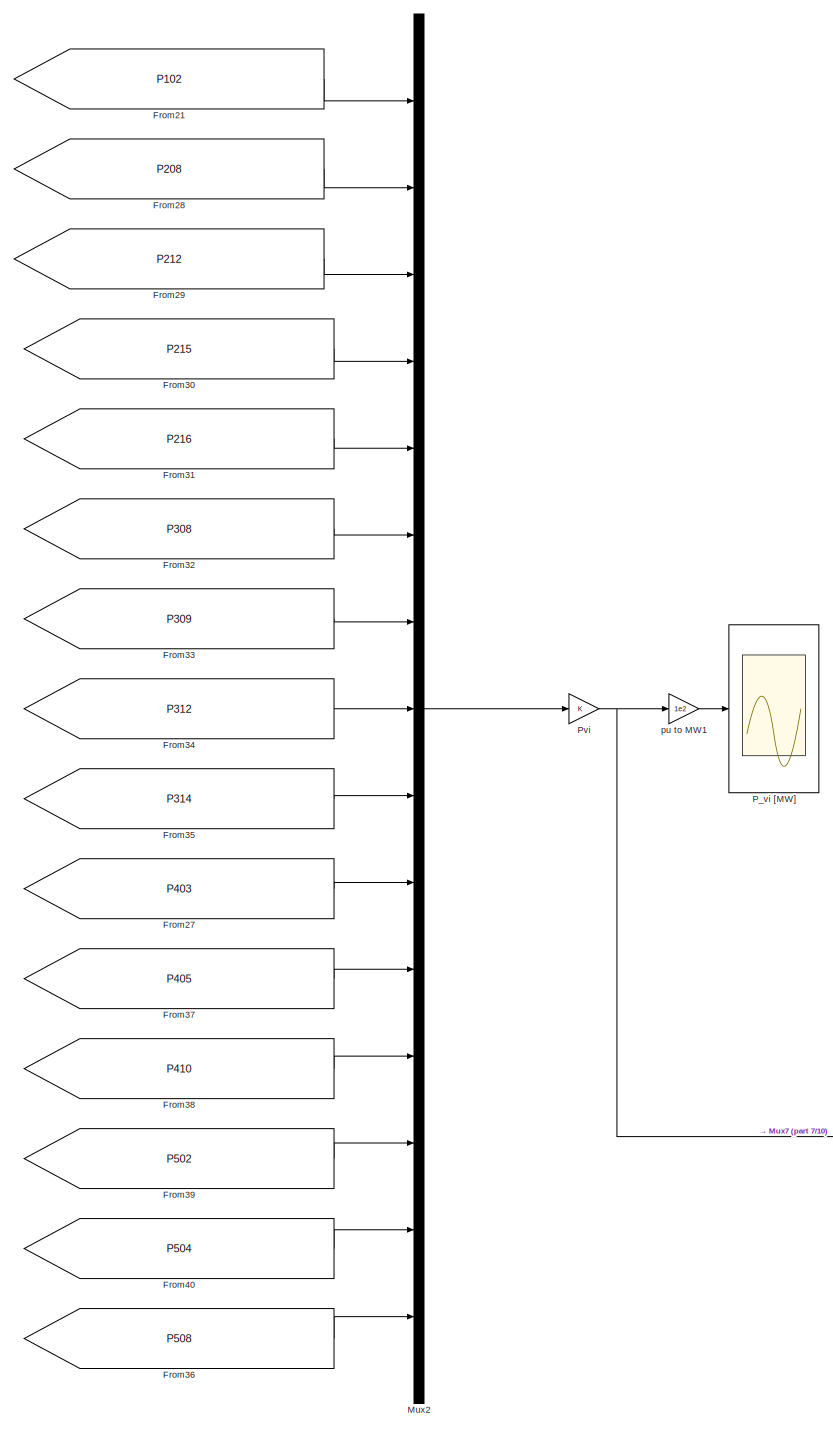
[diagram: Measurements_VI - part 1/10, top left region]
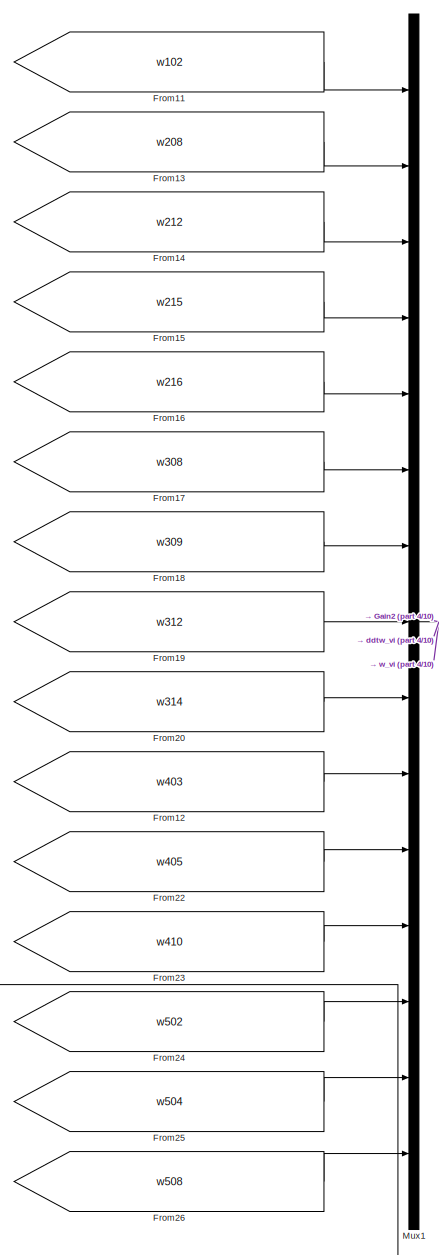
[diagram: Measurements_VI - part 2/10, top right region]
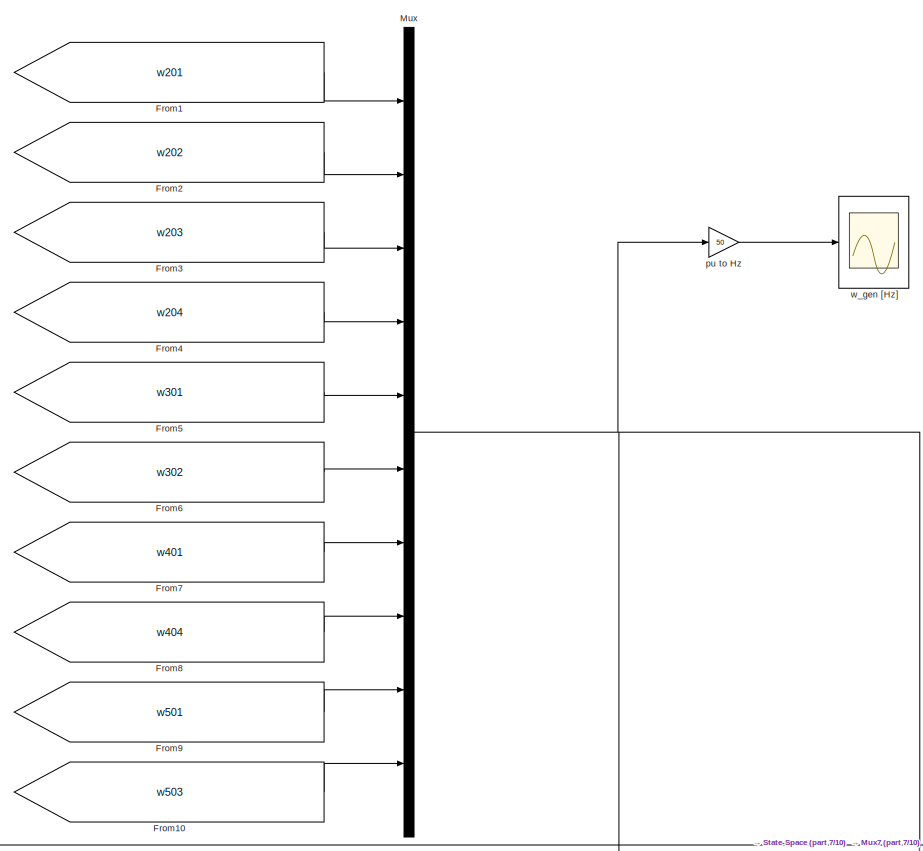
[diagram: Measurements_VI - part 3/10, top center region]
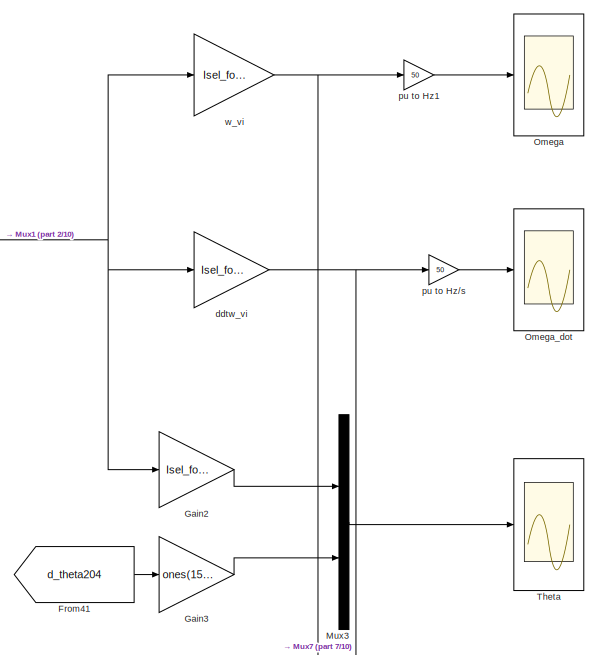
[diagram: Measurements_VI - part 4/10, top right region]
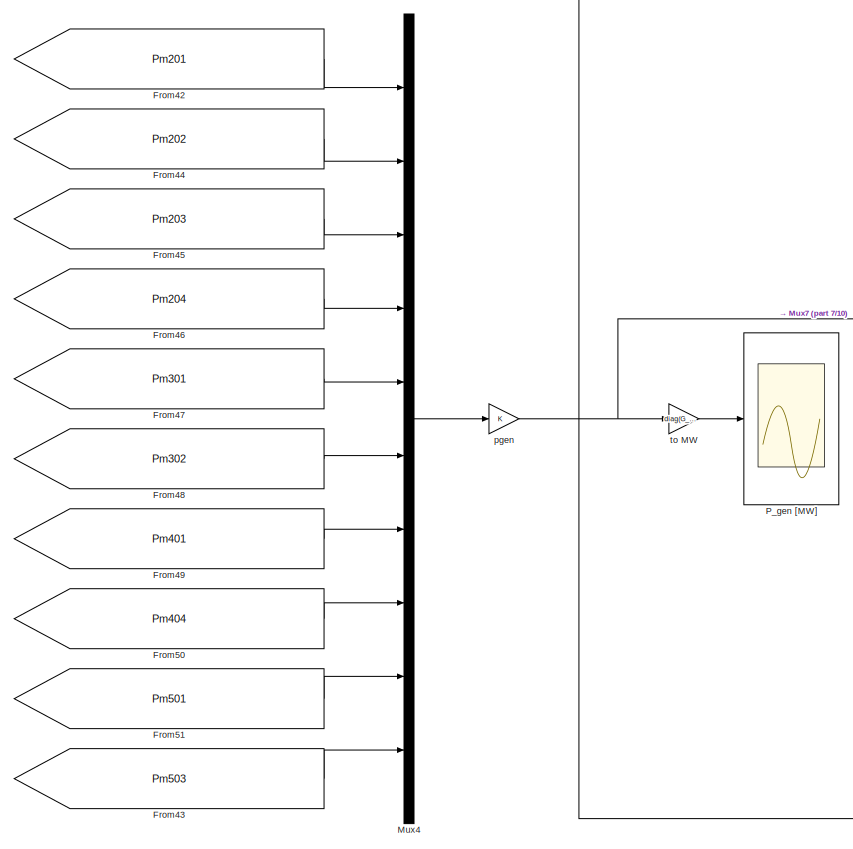
[diagram: Measurements_VI - part 5/10, central region]
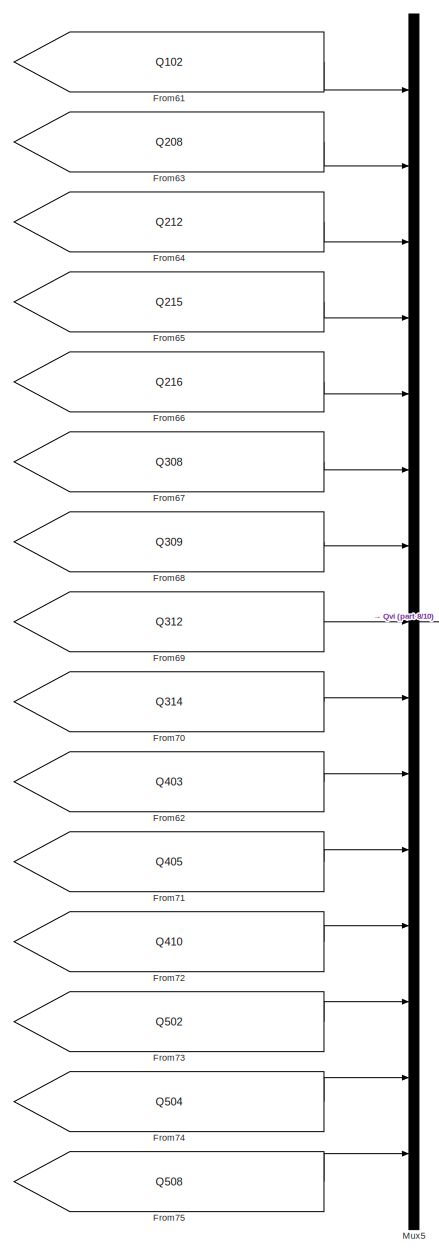
[diagram: Measurements_VI - part 6/10, bottom left region]
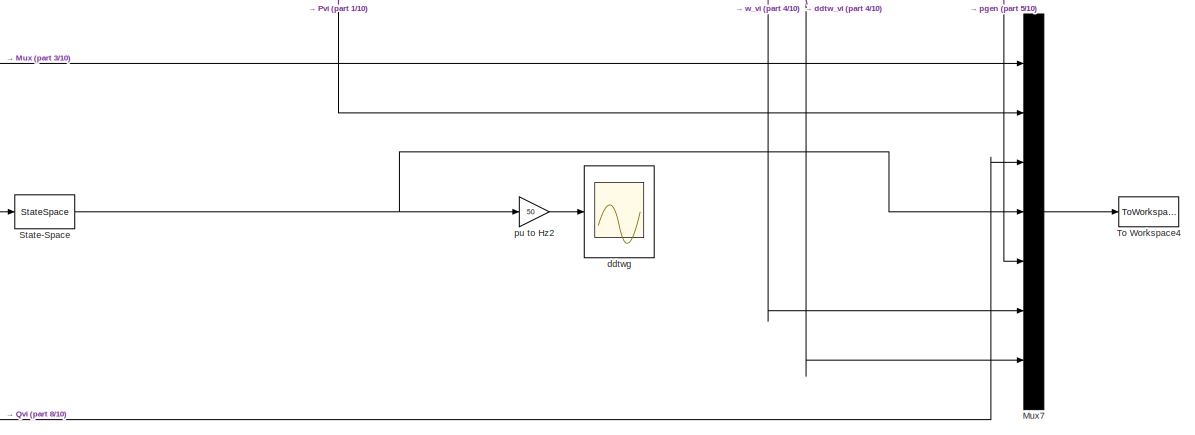
[diagram: Measurements_VI - part 7/10, middle right region]
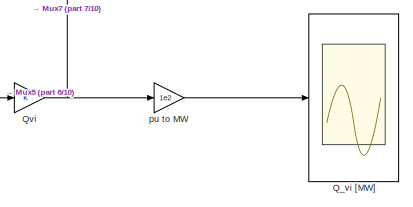
[diagram: Measurements_VI - part 8/10, bottom left region]
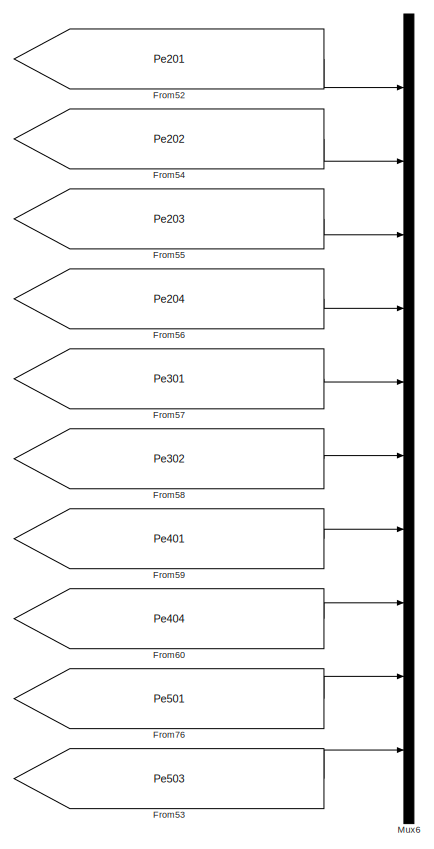
[diagram: Measurements_VI - part 9/10, bottom center region]
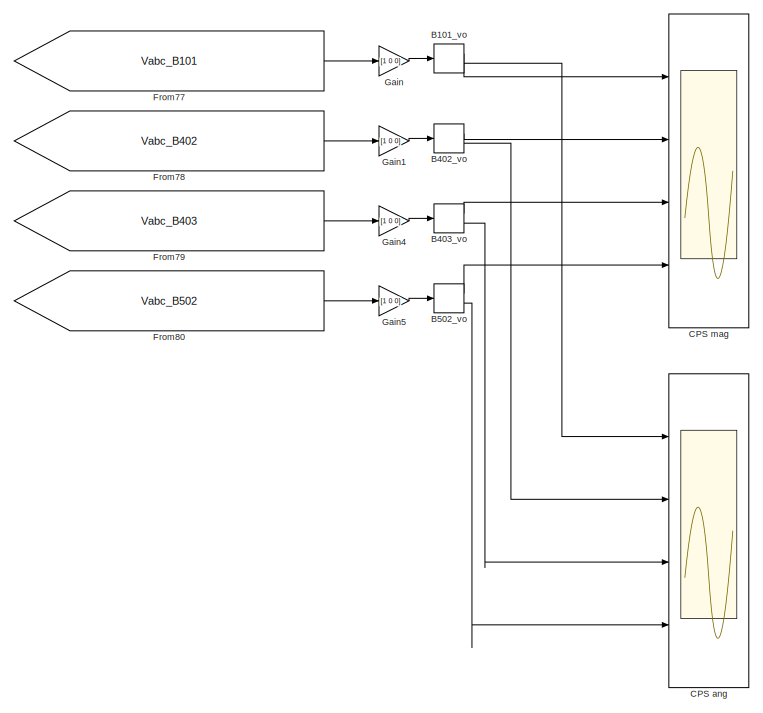
[diagram: Measurements_VI - part 10/10, bottom right region]
BLOCK [SubSystem] Measurements_VI
  Ports = []
  RequestExecContextInheritance = off
  Variant = off
BLOCK [ComplexToMagnitudeAngle] Measurements_VI/B101_vo
  Ports = [1, 2]
BLOCK [ComplexToMagnitudeAngle] Measurements_VI/B402_vo
  Ports = [1, 2]
BLOCK [ComplexToMagnitudeAngle] Measurements_VI/B403_vo
  Ports = [1, 2]
BLOCK [ComplexToMagnitudeAngle] Measurements_VI/B502_vo
  Ports = [1, 2]
BLOCK [Scope] Measurements_VI/CPS ang
  NumInputPorts = 4
  Ports = [4]
  ScopeSpecificationString = Simulink.scopes.TimeScopeBlockCfg('CurrentConfiguration', extmgr.ConfigurationSet(extmgr.Configuration('Core','General UI',true),extmgr.Configuration('Core','Source UI',true),extmgr.Configuration('Sources','WiredSimulink',true,'DataLoggingVariableName','ScopeData2'),extmgr.Configuration('Visuals','Time Domain',true,'SerializedDisplays',{struct('MinYLimReal','0.41684','MaxYLimReal','0.93977','YLabe...<+1448ch>
BLOCK [Scope] Measurements_VI/CPS mag
  NumInputPorts = 4
  Ports = [4]
  ScopeSpecificationString = Simulink.scopes.TimeScopeBlockCfg('CurrentConfiguration', extmgr.ConfigurationSet(extmgr.Configuration('Core','General UI',true),extmgr.Configuration('Core','Source UI',true),extmgr.Configuration('Sources','WiredSimulink',true,'DataLoggingVariableName','ScopeData1'),extmgr.Configuration('Visuals','Time Domain',true,'SerializedDisplays',{struct('MinYLimReal','21118.42054','MaxYLimReal','21201.33233...<+1531ch>
BLOCK [From] Measurements_VI/From1
  GotoTag = w201
  IconDisplay = Tag and signal name
  TagVisibility = global
BLOCK [From] Measurements_VI/From10
  GotoTag = w503
  IconDisplay = Tag and signal name
  TagVisibility = global
BLOCK [From] Measurements_VI/From11
  GotoTag = w102
  IconDisplay = Tag and signal name
  TagVisibility = global
BLOCK [From] Measurements_VI/From12
  GotoTag = w403
  IconDisplay = Tag and signal name
  TagVisibility = global
BLOCK [From] Measurements_VI/From13
  GotoTag = w208
  IconDisplay = Tag and signal name
  TagVisibility = global
BLOCK [From] Measurements_VI/From14
  GotoTag = w212
  IconDisplay = Tag and signal name
  TagVisibility = global
BLOCK [From] Measurements_VI/From15
  GotoTag = w215
  IconDisplay = Tag and signal name
  TagVisibility = global
BLOCK [From] Measurements_VI/From16
  GotoTag = w216
  IconDisplay = Tag and signal name
  TagVisibility = global
BLOCK [From] Measurements_VI/From17
  GotoTag = w308
  IconDisplay = Tag and signal name
  TagVisibility = global
BLOCK [From] Measurements_VI/From18
  GotoTag = w309
  IconDisplay = Tag and signal name
  TagVisibility = global
BLOCK [From] Measurements_VI/From19
  GotoTag = w312
  IconDisplay = Tag and signal name
  TagVisibility = global
BLOCK [From] Measurements_VI/From2
  GotoTag = w202
  IconDisplay = Tag and signal name
  TagVisibility = global
BLOCK [From] Measurements_VI/From20
  GotoTag = w314
  IconDisplay = Tag and signal name
  TagVisibility = global
BLOCK [From] Measurements_VI/From21
  GotoTag = P102
  TagVisibility = global
BLOCK [From] Measurements_VI/From22
  GotoTag = w405
  IconDisplay = Tag and signal name
  TagVisibility = global
BLOCK [From] Measurements_VI/From23
  GotoTag = w410
  IconDisplay = Tag and signal name
  TagVisibility = global
BLOCK [From] Measurements_VI/From24
  GotoTag = w502
  IconDisplay = Tag and signal name
  TagVisibility = global
BLOCK [From] Measurements_VI/From25
  GotoTag = w504
  IconDisplay = Tag and signal name
  TagVisibility = global
BLOCK [From] Measurements_VI/From26
  GotoTag = w508
  IconDisplay = Tag and signal name
  TagVisibility = global
BLOCK [From] Measurements_VI/From27
  GotoTag = P403
  TagVisibility = global
BLOCK [From] Measurements_VI/From28
  GotoTag = P208
  TagVisibility = global
BLOCK [From] Measurements_VI/From29
  GotoTag = P212
  TagVisibility = global
BLOCK [From] Measurements_VI/From3
  GotoTag = w203
  IconDisplay = Tag and signal name
  TagVisibility = global
BLOCK [From] Measurements_VI/From30
  GotoTag = P215
  TagVisibility = global
BLOCK [From] Measurements_VI/From31
  GotoTag = P216
  TagVisibility = global
BLOCK [From] Measurements_VI/From32
  GotoTag = P308
  TagVisibility = global
BLOCK [From] Measurements_VI/From33
  GotoTag = P309
  TagVisibility = global
BLOCK [From] Measurements_VI/From34
  GotoTag = P312
  TagVisibility = global
BLOCK [From] Measurements_VI/From35
  GotoTag = P314
  TagVisibility = global
BLOCK [From] Measurements_VI/From36
  GotoTag = P508
  TagVisibility = global
BLOCK [From] Measurements_VI/From37
  GotoTag = P405
  TagVisibility = global
BLOCK [From] Measurements_VI/From38
  GotoTag = P410
  TagVisibility = global
BLOCK [From] Measurements_VI/From39
  GotoTag = P502
  TagVisibility = global
BLOCK [From] Measurements_VI/From4
  GotoTag = w204
  IconDisplay = Tag and signal name
  TagVisibility = global
BLOCK [From] Measurements_VI/From40
  GotoTag = P504
  TagVisibility = global
BLOCK [From] Measurements_VI/From41
  GotoTag = d_theta204
  IconDisplay = Tag and signal name
  TagVisibility = global
BLOCK [From] Measurements_VI/From42
  GotoTag = Pm201
  IconDisplay = Tag and signal name
  TagVisibility = global
BLOCK [From] Measurements_VI/From43
  GotoTag = Pm503
  IconDisplay = Tag and signal name
  TagVisibility = global
BLOCK [From] Measurements_VI/From44
  GotoTag = Pm202
  IconDisplay = Tag and signal name
  TagVisibility = global
BLOCK [From] Measurements_VI/From45
  GotoTag = Pm203
  IconDisplay = Tag and signal name
  TagVisibility = global
BLOCK [From] Measurements_VI/From46
  GotoTag = Pm204
  IconDisplay = Tag and signal name
  TagVisibility = global
BLOCK [From] Measurements_VI/From47
  GotoTag = Pm301
  IconDisplay = Tag and signal name
  TagVisibility = global
BLOCK [From] Measurements_VI/From48
  GotoTag = Pm302
  IconDisplay = Tag and signal name
  TagVisibility = global
BLOCK [From] Measurements_VI/From49
  GotoTag = Pm401
  IconDisplay = Tag and signal name
  TagVisibility = global
BLOCK [From] Measurements_VI/From5
  GotoTag = w301
  IconDisplay = Tag and signal name
  TagVisibility = global
BLOCK [From] Measurements_VI/From50
  GotoTag = Pm404
  IconDisplay = Tag and signal name
  TagVisibility = global
BLOCK [From] Measurements_VI/From51
  GotoTag = Pm501
  IconDisplay = Tag and signal name
  TagVisibility = global
BLOCK [From] Measurements_VI/From52
  GotoTag = Pe201
  IconDisplay = Tag and signal name
  TagVisibility = global
BLOCK [From] Measurements_VI/From53
  GotoTag = Pe503
  IconDisplay = Tag and signal name
  TagVisibility = global
BLOCK [From] Measurements_VI/From54
  GotoTag = Pe202
  IconDisplay = Tag and signal name
  TagVisibility = global
BLOCK [From] Measurements_VI/From55
  GotoTag = Pe203
  IconDisplay = Tag and signal name
  TagVisibility = global
BLOCK [From] Measurements_VI/From56
  GotoTag = Pe204
  IconDisplay = Tag and signal name
  TagVisibility = global
BLOCK [From] Measurements_VI/From57
  GotoTag = Pe301
  IconDisplay = Tag and signal name
  TagVisibility = global
BLOCK [From] Measurements_VI/From58
  GotoTag = Pe302
  IconDisplay = Tag and signal name
  TagVisibility = global
BLOCK [From] Measurements_VI/From59
  GotoTag = Pe401
  IconDisplay = Tag and signal name
  TagVisibility = global
BLOCK [From] Measurements_VI/From6
  GotoTag = w302
  IconDisplay = Tag and signal name
  TagVisibility = global
BLOCK [From] Measurements_VI/From60
  GotoTag = Pe404
  IconDisplay = Tag and signal name
  TagVisibility = global
BLOCK [From] Measurements_VI/From61
  GotoTag = Q102
  IconDisplay = Tag and signal name
  TagVisibility = global
BLOCK [From] Measurements_VI/From62
  GotoTag = Q403
  IconDisplay = Tag and signal name
  TagVisibility = global
BLOCK [From] Measurements_VI/From63
  GotoTag = Q208
  IconDisplay = Tag and signal name
  TagVisibility = global
BLOCK [From] Measurements_VI/From64
  GotoTag = Q212
  IconDisplay = Tag and signal name
  TagVisibility = global
BLOCK [From] Measurements_VI/From65
  GotoTag = Q215
  IconDisplay = Tag and signal name
  TagVisibility = global
BLOCK [From] Measurements_VI/From66
  GotoTag = Q216
  IconDisplay = Tag and signal name
  TagVisibility = global
BLOCK [From] Measurements_VI/From67
  GotoTag = Q308
  IconDisplay = Tag and signal name
  TagVisibility = global
BLOCK [From] Measurements_VI/From68
  GotoTag = Q309
  IconDisplay = Tag and signal name
  TagVisibility = global
BLOCK [From] Measurements_VI/From69
  GotoTag = Q312
  IconDisplay = Tag and signal name
  TagVisibility = global
BLOCK [From] Measurements_VI/From7
  GotoTag = w401
  IconDisplay = Tag and signal name
  TagVisibility = global
BLOCK [From] Measurements_VI/From70
  GotoTag = Q314
  IconDisplay = Tag and signal name
  TagVisibility = global
BLOCK [From] Measurements_VI/From71
  GotoTag = Q405
  IconDisplay = Tag and signal name
  TagVisibility = global
BLOCK [From] Measurements_VI/From72
  GotoTag = Q410
  IconDisplay = Tag and signal name
  TagVisibility = global
BLOCK [From] Measurements_VI/From73
  GotoTag = Q502
  IconDisplay = Tag and signal name
  TagVisibility = global
BLOCK [From] Measurements_VI/From74
  GotoTag = Q504
  IconDisplay = Tag and signal name
  TagVisibility = global
BLOCK [From] Measurements_VI/From75
  GotoTag = Q508
  IconDisplay = Tag and signal name
  TagVisibility = global
BLOCK [From] Measurements_VI/From76
  GotoTag = Pe501
  IconDisplay = Tag and signal name
  TagVisibility = global
BLOCK [From] Measurements_VI/From77
  GotoTag = Vabc_B101
  IconDisplay = Tag and signal name
  TagVisibility = global
BLOCK [From] Measurements_VI/From78
  GotoTag = Vabc_B402
  IconDisplay = Tag and signal name
  TagVisibility = global
BLOCK [From] Measurements_VI/From79
  GotoTag = Vabc_B403
  IconDisplay = Tag and signal name
  TagVisibility = global
BLOCK [From] Measurements_VI/From8
  GotoTag = w404
  IconDisplay = Tag and signal name
  TagVisibility = global
BLOCK [From] Measurements_VI/From80
  GotoTag = Vabc_B502
  IconDisplay = Tag and signal name
  TagVisibility = global
BLOCK [From] Measurements_VI/From9
  GotoTag = w501
  IconDisplay = Tag and signal name
  TagVisibility = global
BLOCK [Gain] Measurements_VI/Gain
  Gain = [1 0 0]
  Multiplication = Matrix(K*u) (u vector)
  OutDataTypeStr = Inherit: Inherit via internal rule
  ParamDataTypeStr = Inherit: Inherit via internal rule
  SaturateOnIntegerOverflow = off
BLOCK [Gain] Measurements_VI/Gain1
  Gain = [1 0 0]
  Multiplication = Matrix(K*u) (u vector)
  OutDataTypeStr = Inherit: Inherit via internal rule
  ParamDataTypeStr = Inherit: Inherit via internal rule
  SaturateOnIntegerOverflow = off
BLOCK [Gain] Measurements_VI/Gain2
  Gain = Isel_forming(3:3:end,:)
  Multiplication = Matrix(K*u) (u vector)
  OutDataTypeStr = Inherit: Inherit via internal rule
  ParamDataTypeStr = Inherit: Inherit via internal rule
  SaturateOnIntegerOverflow = off
BLOCK [Gain] Measurements_VI/Gain3
  Gain = ones(15,1)
  Multiplication = Matrix(K*u) (u vector)
  OutDataTypeStr = Inherit: Inherit via internal rule
  ParamDataTypeStr = Inherit: Inherit via internal rule
  SaturateOnIntegerOverflow = off
BLOCK [Gain] Measurements_VI/Gain4
  Gain = [1 0 0]
  Multiplication = Matrix(K*u) (u vector)
  OutDataTypeStr = Inherit: Inherit via internal rule
  ParamDataTypeStr = Inherit: Inherit via internal rule
  SaturateOnIntegerOverflow = off
BLOCK [Gain] Measurements_VI/Gain5
  Gain = [1 0 0]
  Multiplication = Matrix(K*u) (u vector)
  OutDataTypeStr = Inherit: Inherit via internal rule
  ParamDataTypeStr = Inherit: Inherit via internal rule
  SaturateOnIntegerOverflow = off
BLOCK [Mux] Measurements_VI/Mux
  DisplayOption = bar
  Inputs = 10
  Ports = [10, 1]
BLOCK [Mux] Measurements_VI/Mux1
  DisplayOption = bar
  Inputs = 15
  Ports = [15, 1]
BLOCK [Mux] Measurements_VI/Mux2
  DisplayOption = bar
  Inputs = 15
  Ports = [15, 1]
BLOCK [Mux] Measurements_VI/Mux3
  DisplayOption = bar
  Inputs = 2
  Ports = [2, 1]
BLOCK [Mux] Measurements_VI/Mux4
  DisplayOption = bar
  Inputs = 10
  Ports = [10, 1]
BLOCK [Mux] Measurements_VI/Mux5
  DisplayOption = bar
  Inputs = 15
  Ports = [15, 1]
BLOCK [Mux] Measurements_VI/Mux6
  DisplayOption = bar
  Inputs = 10
  Ports = [10, 1]
BLOCK [Mux] Measurements_VI/Mux7
  DisplayOption = bar
  Inputs = 7
  Ports = [7, 1]
BLOCK [Scope] Measurements_VI/Omega
  NumInputPorts = 1
  Ports = [1]
  ScopeSpecificationString = Simulink.scopes.TimeScopeBlockCfg('CurrentConfiguration', extmgr.ConfigurationSet(extmgr.Configuration('Core','General UI',true),extmgr.Configuration('Core','Source UI',true),extmgr.Configuration('Sources','WiredSimulink',true,'DataLoggingVariableName','ScopeData1'),extmgr.Configuration('Visuals','Time Domain',true,'SerializedDisplays',{struct('MinYLimReal','-0.00282','MaxYLimReal','0.00031','YLab...<+1621ch>
BLOCK [Scope] Measurements_VI/Omega_dot
  NumInputPorts = 1
  Ports = [1]
  ScopeSpecificationString = Simulink.scopes.TimeScopeBlockCfg('CurrentConfiguration', extmgr.ConfigurationSet(extmgr.Configuration('Core','General UI',true),extmgr.Configuration('Core','Source UI',true),extmgr.Configuration('Sources','WiredSimulink',true,'DataLoggingVariableName','ScopeData2'),extmgr.Configuration('Visuals','Time Domain',true,'SerializedDisplays',{struct('MinYLimReal','-0.03736','MaxYLimReal','0.02435','YLab...<+1661ch>
BLOCK [Scope] Measurements_VI/P_gen [MW]
  NumInputPorts = 1
  Ports = [1]
  ScopeSpecificationString = Simulink.scopes.TimeScopeBlockCfg('CurrentConfiguration', extmgr.ConfigurationSet(extmgr.Configuration('Core','General UI',true),extmgr.Configuration('Core','Source UI',true),extmgr.Configuration('Sources','WiredSimulink',true,'DataLoggingVariableName','ScopeData1'),extmgr.Configuration('Visuals','Time Domain',true,'SerializedDisplays',{struct('MinYLimReal','-248.65467','MaxYLimReal','3727.95288',...<+1575ch>
BLOCK [Scope] Measurements_VI/P_vi [MW]
  NumInputPorts = 1
  Ports = [1]
  ScopeSpecificationString = Simulink.scopes.TimeScopeBlockCfg('CurrentConfiguration', extmgr.ConfigurationSet(extmgr.Configuration('Core','General UI',true),extmgr.Configuration('Core','Source UI',true),extmgr.Configuration('Sources','WiredSimulink',true,'DataLoggingVariableName','ScopeData1'),extmgr.Configuration('Visuals','Time Domain',true,'SerializedDisplays',{struct('MinYLimReal','-7611971229.85599','MaxYLimReal','20036...<+1743ch>
BLOCK [Gain] Measurements_VI/Pvi
  OutDataTypeStr = Inherit: Inherit via internal rule
  ParamDataTypeStr = Inherit: Inherit via internal rule
  SaturateOnIntegerOverflow = off
BLOCK [Scope] Measurements_VI/Q_vi [MW]
  NumInputPorts = 1
  Ports = [1]
  ScopeSpecificationString = Simulink.scopes.TimeScopeBlockCfg('CurrentConfiguration', extmgr.ConfigurationSet(extmgr.Configuration('Core','General UI',true),extmgr.Configuration('Core','Source UI',true),extmgr.Configuration('Sources','WiredSimulink',true,'DataLoggingVariableName','ScopeData1'),extmgr.Configuration('Visuals','Time Domain',true,'SerializedDisplays',{struct('MinYLimReal','-0.43039','MaxYLimReal','0.50399','YLab...<+1414ch>
BLOCK [Gain] Measurements_VI/Qvi
  OutDataTypeStr = Inherit: Inherit via internal rule
  ParamDataTypeStr = Inherit: Inherit via internal rule
  SaturateOnIntegerOverflow = off
BLOCK [StateSpace] Measurements_VI/State-Space
  A = sys.formin.filt.A
  B = sys.formin.filt.B
  C = sys.formin.filt.C
  D = sys.formin.filt.D
  InitialCondition = 0
  Ports = [1, 1]
BLOCK [Scope] Measurements_VI/Theta
  NumInputPorts = 1
  Ports = [1]
  ScopeSpecificationString = Simulink.scopes.TimeScopeBlockCfg('CurrentConfiguration', extmgr.ConfigurationSet(extmgr.Configuration('Core','General UI',true),extmgr.Configuration('Core','Source UI',true),extmgr.Configuration('Sources','WiredSimulink',true,'DataLoggingVariableName','ScopeData2'),extmgr.Configuration('Visuals','Time Domain',true,'SerializedDisplays',{struct('MinYLimReal','-0.83114','MaxYLimReal','0.65222','YLab...<+1427ch>
BLOCK [ToWorkspace] Measurements_VI/To Workspace4
  FixptAsFi = on
  MaxDataPoints = inf
  Ports = [1]
  SampleTime = -1
  Save2DSignal = 3-D array (concatenate along third dimension)
  SaveFormat = Timeseries
  VariableName = ysim
BLOCK [Gain] Measurements_VI/ddtw_vi
  Gain = Isel_forming(2:3:end,:)
  Multiplication = Matrix(K*u) (u vector)
  OutDataTypeStr = Inherit: Inherit via internal rule
  ParamDataTypeStr = Inherit: Inherit via internal rule
  SaturateOnIntegerOverflow = off
BLOCK [Scope] Measurements_VI/ddtwg
  NumInputPorts = 1
  Ports = [1]
  ScopeSpecificationString = Simulink.scopes.TimeScopeBlockCfg('CurrentConfiguration', extmgr.ConfigurationSet(extmgr.Configuration('Core','General UI',true),extmgr.Configuration('Core','Source UI',true),extmgr.Configuration('Sources','WiredSimulink',true,'DataLoggingVariableName','ScopeData2','DataLoggingSaveFormat','StructureWithTime','DataLoggingDecimation','1'),extmgr.Configuration('Visuals','Time Domain',true,'Serialized...<+1732ch>
BLOCK [Gain] Measurements_VI/pgen
  OutDataTypeStr = Inherit: Inherit via internal rule
  ParamDataTypeStr = Inherit: Inherit via internal rule
  SaturateOnIntegerOverflow = off
BLOCK [Gain] Measurements_VI/pu to Hz
  Gain = 50
  OutDataTypeStr = Inherit: Inherit via internal rule
  ParamDataTypeStr = Inherit: Inherit via internal rule
  SaturateOnIntegerOverflow = off
BLOCK [Gain] Measurements_VI/pu to Hz//s
  Gain = 50
  OutDataTypeStr = Inherit: Inherit via internal rule
  ParamDataTypeStr = Inherit: Inherit via internal rule
  SaturateOnIntegerOverflow = off
BLOCK [Gain] Measurements_VI/pu to Hz1
  Gain = 50
  OutDataTypeStr = Inherit: Inherit via internal rule
  ParamDataTypeStr = Inherit: Inherit via internal rule
  SaturateOnIntegerOverflow = off
BLOCK [Gain] Measurements_VI/pu to Hz2
  Gain = 50
  OutDataTypeStr = Inherit: Inherit via internal rule
  ParamDataTypeStr = Inherit: Inherit via internal rule
  SaturateOnIntegerOverflow = off
BLOCK [Gain] Measurements_VI/pu to MW
  Gain = 1e2
  OutDataTypeStr = Inherit: Inherit via internal rule
  ParamDataTypeStr = Inherit: Inherit via internal rule
  SaturateOnIntegerOverflow = off
BLOCK [Gain] Measurements_VI/pu to MW1
  Gain = 1e2
  OutDataTypeStr = Inherit: Inherit via internal rule
  ParamDataTypeStr = Inherit: Inherit via internal rule
  SaturateOnIntegerOverflow = off
BLOCK [Gain] Measurements_VI/to MW
  Gain = diag(G_data([2:8,11,12,14],2))
  Multiplication = Matrix(K*u) (u vector)
  OutDataTypeStr = Inherit: Inherit via internal rule
  ParamDataTypeStr = Inherit: Inherit via internal rule
  SaturateOnIntegerOverflow = off
BLOCK [Scope] Measurements_VI/w_gen [Hz]
  NumInputPorts = 1
  Ports = [1]
  ScopeSpecificationString = Simulink.scopes.TimeScopeBlockCfg('CurrentConfiguration', extmgr.ConfigurationSet(extmgr.Configuration('Core','General UI',true),extmgr.Configuration('Core','Source UI',true),extmgr.Configuration('Sources','WiredSimulink',true,'DataLoggingVariableName','ScopeData2','DataLoggingSaveFormat','StructureWithTime','DataLoggingDecimation','1'),extmgr.Configuration('Visuals','Time Domain',true,'Serialized...<+1688ch>
BLOCK [Gain] Measurements_VI/w_vi
  Gain = Isel_forming(1:3:end,:)
  Multiplication = Matrix(K*u) (u vector)
  OutDataTypeStr = Inherit: Inherit via internal rule
  ParamDataTypeStr = Inherit: Inherit via internal rule
  SaturateOnIntegerOverflow = off
BLOCK [SubSystem] Measurements_low
  Commented = on
  Ports = []
  RequestExecContextInheritance = off
  Variant = off
BLOCK [From] Measurements_low/From1
  GotoTag = w201
  IconDisplay = Tag and signal name
  TagVisibility = global
BLOCK [From] Measurements_low/From10
  GotoTag = w503
  IconDisplay = Tag and signal name
  TagVisibility = global
BLOCK [From] Measurements_low/From2
  GotoTag = w202
  IconDisplay = Tag and signal name
  TagVisibility = global
BLOCK [From] Measurements_low/From3
  GotoTag = w203
  IconDisplay = Tag and signal name
  TagVisibility = global
BLOCK [From] Measurements_low/From4
  GotoTag = w204
  IconDisplay = Tag and signal name
  TagVisibility = global
BLOCK [From] Measurements_low/From42
  GotoTag = Pm201
  IconDisplay = Tag and signal name
  TagVisibility = global
BLOCK [From] Measurements_low/From43
  GotoTag = Pm503
  IconDisplay = Tag and signal name
  TagVisibility = global
BLOCK [From] Measurements_low/From44
  GotoTag = Pm202
  IconDisplay = Tag and signal name
  TagVisibility = global
BLOCK [From] Measurements_low/From45
  GotoTag = Pm203
  IconDisplay = Tag and signal name
  TagVisibility = global
BLOCK [From] Measurements_low/From46
  GotoTag = Pm204
  IconDisplay = Tag and signal name
  TagVisibility = global
BLOCK [From] Measurements_low/From47
  GotoTag = Pm301
  IconDisplay = Tag and signal name
  TagVisibility = global
BLOCK [From] Measurements_low/From48
  GotoTag = Pm302
  IconDisplay = Tag and signal name
  TagVisibility = global
BLOCK [From] Measurements_low/From49
  GotoTag = Pm401
  IconDisplay = Tag and signal name
  TagVisibility = global
BLOCK [From] Measurements_low/From5
  GotoTag = w301
  IconDisplay = Tag and signal name
  TagVisibility = global
BLOCK [From] Measurements_low/From50
  GotoTag = Pm404
  IconDisplay = Tag and signal name
  TagVisibility = global
BLOCK [From] Measurements_low/From51
  GotoTag = Pm501
  IconDisplay = Tag and signal name
  TagVisibility = global
BLOCK [From] Measurements_low/From6
  GotoTag = w302
  IconDisplay = Tag and signal name
  TagVisibility = global
BLOCK [From] Measurements_low/From7
  GotoTag = w401
  IconDisplay = Tag and signal name
  TagVisibility = global
BLOCK [From] Measurements_low/From8
  GotoTag = w404
  IconDisplay = Tag and signal name
  TagVisibility = global
BLOCK [From] Measurements_low/From9
  GotoTag = w501
  IconDisplay = Tag and signal name
  TagVisibility = global
BLOCK [Mux] Measurements_low/Mux
  DisplayOption = bar
  Inputs = 10
  Ports = [10, 1]
BLOCK [Mux] Measurements_low/Mux4
  DisplayOption = bar
  Inputs = 10
  Ports = [10, 1]
BLOCK [Scope] Measurements_low/P_gen [MW]
  NumInputPorts = 1
  Ports = [1]
  ScopeSpecificationString = Simulink.scopes.TimeScopeBlockCfg('CurrentConfiguration', extmgr.ConfigurationSet(extmgr.Configuration('Core','General UI',true),extmgr.Configuration('Core','Source UI',true),extmgr.Configuration('Sources','WiredSimulink',true,'DataLoggingVariableName','ScopeData1'),extmgr.Configuration('Visuals','Time Domain',true,'SerializedDisplays',{struct('MinYLimReal','-247.50082','MaxYLimReal','3727.5073','...<+1446ch>
BLOCK [StateSpace] Measurements_low/State-Space
  A = sys.formin.filt.A
  B = sys.formin.filt.B
  C = sys.formin.filt.C
  D = sys.formin.filt.D
  InitialCondition = 0
  Ports = [1, 1]
BLOCK [Scope] Measurements_low/ddtwg
  NumInputPorts = 1
  Ports = [1]
  ScopeSpecificationString = Simulink.scopes.TimeScopeBlockCfg('CurrentConfiguration', extmgr.ConfigurationSet(extmgr.Configuration('Core','General UI',true),extmgr.Configuration('Core','Source UI',true),extmgr.Configuration('Sources','WiredSimulink',true,'DataLoggingVariableName','ScopeData2','DataLoggingSaveFormat','StructureWithTime','DataLoggingDecimation','1'),extmgr.Configuration('Visuals','Time Domain',true,'Serialized...<+1565ch>
BLOCK [Gain] Measurements_low/pgen
  OutDataTypeStr = Inherit: Inherit via internal rule
  ParamDataTypeStr = Inherit: Inherit via internal rule
  SaturateOnIntegerOverflow = off
BLOCK [Gain] Measurements_low/pu to Hz
  Gain = 50
  OutDataTypeStr = Inherit: Inherit via internal rule
  ParamDataTypeStr = Inherit: Inherit via internal rule
  SaturateOnIntegerOverflow = off
BLOCK [Gain] Measurements_low/pu to Hz2
  Gain = 50
  OutDataTypeStr = Inherit: Inherit via internal rule
  ParamDataTypeStr = Inherit: Inherit via internal rule
  SaturateOnIntegerOverflow = off
BLOCK [Gain] Measurements_low/to MW
  Gain = diag(G_data([2:8,11,12,14],2))
  Multiplication = Matrix(K*u) (u vector)
  OutDataTypeStr = Inherit: Inherit via internal rule
  ParamDataTypeStr = Inherit: Inherit via internal rule
  SaturateOnIntegerOverflow = off
BLOCK [Scope] Measurements_low/w_gen [Hz]
  NumInputPorts = 1
  Ports = [1]
  ScopeSpecificationString = Simulink.scopes.TimeScopeBlockCfg('CurrentConfiguration', extmgr.ConfigurationSet(extmgr.Configuration('Core','General UI',true),extmgr.Configuration('Core','Source UI',true),extmgr.Configuration('Sources','WiredSimulink',true,'DataLoggingVariableName','ScopeData2','DataLoggingSaveFormat','StructureWithTime','DataLoggingDecimation','1'),extmgr.Configuration('Visuals','Time Domain',true,'Serialized...<+1559ch>
BLOCK [Scope] P 1-3
  NumInputPorts = 2
  Ports = [2]
  ScopeSpecificationString = Simulink.scopes.TimeScopeBlockCfg('CurrentConfiguration', extmgr.ConfigurationSet(extmgr.Configuration('Core','General UI',true),extmgr.Configuration('Core','Source UI',true),extmgr.Configuration('Sources','WiredSimulink',true,'DataLogging',true,'DataLoggingVariableName','P2','DataLoggingSaveFormat','StructureWithTime','DataLoggingDecimation','1','DataLoggingDecimateData',true),extmgr.Configuratio...<+2357ch>
BLOCK [Scope] P 2-1
  NumInputPorts = 2
  Ports = [2]
  ScopeSpecificationString = Simulink.scopes.TimeScopeBlockCfg('CurrentConfiguration', extmgr.ConfigurationSet(extmgr.Configuration('Core','General UI',true),extmgr.Configuration('Core','Source UI',true),extmgr.Configuration('Sources','WiredSimulink',true,'DataLogging',true,'DataLoggingVariableName','P1','DataLoggingSaveFormat','StructureWithTime','DataLoggingDecimation','1','DataLoggingDecimateData',true),extmgr.Configuratio...<+2355ch>
BLOCK [Scope] P 3-5
  NumInputPorts = 2
  Ports = [2]
  ScopeSpecificationString = Simulink.scopes.TimeScopeBlockCfg('CurrentConfiguration', extmgr.ConfigurationSet(extmgr.Configuration('Core','General UI',true),extmgr.Configuration('Core','Source UI',true),extmgr.Configuration('Sources','WiredSimulink',true,'DataLogging',true,'DataLoggingVariableName','P3','DataLoggingSaveFormat','StructureWithTime','DataLoggingDecimation','1','DataLoggingDecimateData',true),extmgr.Configuratio...<+2434ch>
BLOCK [Scope] P 4-2
  NumInputPorts = 2
  Ports = [2]
  ScopeSpecificationString = Simulink.scopes.TimeScopeBlockCfg('CurrentConfiguration', extmgr.ConfigurationSet(extmgr.Configuration('Core','General UI',true),extmgr.Configuration('Core','Source UI',true),extmgr.Configuration('Sources','WiredSimulink',true,'DataLogging',true,'DataLoggingVariableName','P','DataLoggingSaveFormat','StructureWithTime','DataLoggingDecimation','1','DataLoggingDecimateData',true),extmgr.Configuration...<+2353ch>
BLOCK [Constant] PSS model
  Value = PSSMODEL
BLOCK [Scope] Scope
  NumInputPorts = 1
  Ports = [1]
  ScopeSpecificationString = Simulink.scopes.TimeScopeBlockCfg('CurrentConfiguration', extmgr.ConfigurationSet(extmgr.Configuration('Core','General UI',true),extmgr.Configuration('Core','Source UI',true),extmgr.Configuration('Sources','WiredSimulink',true,'DataLoggingVariableName','ScopeData2'),extmgr.Configuration('Visuals','Time Domain',true,'SerializedDisplays',{struct('MinYLimReal','394744.55892','MaxYLimReal','401884.619...<+1465ch>
BLOCK [Reference] T1  REF=powerlib/Elements/Three-Phase
Transformer
(Two Windings)
  Ports = [0, 0, 0, 0, 0, 3, 3]
  SourceBlock = powerlib/Elements/Three-Phase\nTransformer\n(Two Windings)
  SourceProductBaseCode = PS
  SourceProductName = Simscape Power Systems
  SourceType = Three-Phase Transformer (Two Windings)
BLOCK [Reference] T10  REF=powerlib/Elements/Three-Phase
Transformer
(Two Windings)
  Ports = [0, 0, 0, 0, 0, 3, 3]
  SourceBlock = powerlib/Elements/Three-Phase\nTransformer\n(Two Windings)
  SourceProductBaseCode = PS
  SourceProductName = Simscape Power Systems
  SourceType = Three-Phase Transformer (Two Windings)
BLOCK [Reference] T102  REF=powerlib/Elements/Three-Phase
Transformer
(Two Windings)
  Ports = [0, 0, 0, 0, 0, 3, 3]
  SourceBlock = powerlib/Elements/Three-Phase\nTransformer\n(Two Windings)
  SourceProductBaseCode = PS
  SourceProductName = Simscape Power Systems
  SourceType = Three-Phase Transformer (Two Windings)
BLOCK [Reference] T11  REF=powerlib/Elements/Three-Phase
Transformer
(Two Windings)
  Ports = [0, 0, 0, 0, 0, 3, 3]
  SourceBlock = powerlib/Elements/Three-Phase\nTransformer\n(Two Windings)
  SourceProductBaseCode = PS
  SourceProductName = Simscape Power Systems
  SourceType = Three-Phase Transformer (Two Windings)
BLOCK [Reference] T12  REF=powerlib/Elements/Three-Phase
Transformer
(Two Windings)
  Ports = [0, 0, 0, 0, 0, 3, 3]
  SourceBlock = powerlib/Elements/Three-Phase\nTransformer\n(Two Windings)
  SourceProductBaseCode = PS
  SourceProductName = Simscape Power Systems
  SourceType = Three-Phase Transformer (Two Windings)
BLOCK [Reference] T13  REF=powerlib/Elements/Three-Phase
Transformer
(Two Windings)
  Ports = [0, 0, 0, 0, 0, 3, 3]
  SourceBlock = powerlib/Elements/Three-Phase\nTransformer\n(Two Windings)
  SourceProductBaseCode = PS
  SourceProductName = Simscape Power Systems
  SourceType = Three-Phase Transformer (Two Windings)
BLOCK [Reference] T14  REF=powerlib/Elements/Three-Phase
Transformer
(Two Windings)
  Ports = [0, 0, 0, 0, 0, 3, 3]
  SourceBlock = powerlib/Elements/Three-Phase\nTransformer\n(Two Windings)
  SourceProductBaseCode = PS
  SourceProductName = Simscape Power Systems
  SourceType = Three-Phase Transformer (Two Windings)
BLOCK [Reference] T15  REF=powerlib/Elements/Three-Phase
Transformer
(Two Windings)
  Ports = [0, 0, 0, 0, 0, 3, 3]
  SourceBlock = powerlib/Elements/Three-Phase\nTransformer\n(Two Windings)
  SourceProductBaseCode = PS
  SourceProductName = Simscape Power Systems
  SourceType = Three-Phase Transformer (Two Windings)
BLOCK [Reference] T16  REF=powerlib/Elements/Three-Phase
Transformer
(Two Windings)
  Ports = [0, 0, 0, 0, 0, 3, 3]
  SourceBlock = powerlib/Elements/Three-Phase\nTransformer\n(Two Windings)
  SourceProductBaseCode = PS
  SourceProductName = Simscape Power Systems
  SourceType = Three-Phase Transformer (Two Windings)
BLOCK [Reference] T17  REF=powerlib/Elements/Three-Phase
Transformer
(Two Windings)
  Ports = [0, 0, 0, 0, 0, 3, 3]
  SourceBlock = powerlib/Elements/Three-Phase\nTransformer\n(Two Windings)
  SourceProductBaseCode = PS
  SourceProductName = Simscape Power Systems
  SourceType = Three-Phase Transformer (Two Windings)
BLOCK [Reference] T18-1  REF=powerlib/Elements/Three-Phase
Transformer
(Two Windings)
  Ports = [0, 0, 0, 0, 0, 3, 3]
  SourceBlock = powerlib/Elements/Three-Phase\nTransformer\n(Two Windings)
  SourceProductBaseCode = PS
  SourceProductName = Simscape Power Systems
  SourceType = Three-Phase Transformer (Two Windings)
BLOCK [Reference] T18-2  REF=powerlib/Elements/Three-Phase
Transformer
(Two Windings)
  Ports = [0, 0, 0, 0, 0, 3, 3]
  SourceBlock = powerlib/Elements/Three-Phase\nTransformer\n(Two Windings)
  SourceProductBaseCode = PS
  SourceProductName = Simscape Power Systems
  SourceType = Three-Phase Transformer (Two Windings)
BLOCK [Reference] T19  REF=powerlib/Elements/Three-Phase
Transformer
(Two Windings)
  Ports = [0, 0, 0, 0, 0, 3, 3]
  SourceBlock = powerlib/Elements/Three-Phase\nTransformer\n(Two Windings)
  SourceProductBaseCode = PS
  SourceProductName = Simscape Power Systems
  SourceType = Three-Phase Transformer (Two Windings)
BLOCK [Reference] T2  REF=powerlib/Elements/Three-Phase
Transformer
(Two Windings)
  Ports = [0, 0, 0, 0, 0, 3, 3]
  SourceBlock = powerlib/Elements/Three-Phase\nTransformer\n(Two Windings)
  SourceProductBaseCode = PS
  SourceProductName = Simscape Power Systems
  SourceType = Three-Phase Transformer (Two Windings)
BLOCK [Reference] T20  REF=powerlib/Elements/Three-Phase
Transformer
(Two Windings)
  Ports = [0, 0, 0, 0, 0, 3, 3]
  SourceBlock = powerlib/Elements/Three-Phase\nTransformer\n(Two Windings)
  SourceProductBaseCode = PS
  SourceProductName = Simscape Power Systems
  SourceType = Three-Phase Transformer (Two Windings)
BLOCK [Reference] T208  REF=powerlib/Elements/Three-Phase
Transformer
(Two Windings)
  Ports = [0, 0, 0, 0, 0, 3, 3]
  SourceBlock = powerlib/Elements/Three-Phase\nTransformer\n(Two Windings)
  SourceProductBaseCode = PS
  SourceProductName = Simscape Power Systems
  SourceType = Three-Phase Transformer (Two Windings)
BLOCK [Reference] T21  REF=powerlib/Elements/Three-Phase
Transformer
(Two Windings)
  Ports = [0, 0, 0, 0, 0, 3, 3]
  SourceBlock = powerlib/Elements/Three-Phase\nTransformer\n(Two Windings)
  SourceProductBaseCode = PS
  SourceProductName = Simscape Power Systems
  SourceType = Three-Phase Transformer (Two Windings)
BLOCK [Reference] T212  REF=powerlib/Elements/Three-Phase
Transformer
(Two Windings)
  Ports = [0, 0, 0, 0, 0, 3, 3]
  SourceBlock = powerlib/Elements/Three-Phase\nTransformer\n(Two Windings)
  SourceProductBaseCode = PS
  SourceProductName = Simscape Power Systems
  SourceType = Three-Phase Transformer (Two Windings)
BLOCK [Reference] T215  REF=powerlib/Elements/Three-Phase
Transformer
(Two Windings)
  Ports = [0, 0, 0, 0, 0, 3, 3]
  SourceBlock = powerlib/Elements/Three-Phase\nTransformer\n(Two Windings)
  SourceProductBaseCode = PS
  SourceProductName = Simscape Power Systems
  SourceType = Three-Phase Transformer (Two Windings)
BLOCK [Reference] T216  REF=powerlib/Elements/Three-Phase
Transformer
(Two Windings)
  Ports = [0, 0, 0, 0, 0, 3, 3]
  SourceBlock = powerlib/Elements/Three-Phase\nTransformer\n(Two Windings)
  SourceProductBaseCode = PS
  SourceProductName = Simscape Power Systems
  SourceType = Three-Phase Transformer (Two Windings)
BLOCK [Reference] T3  REF=powerlib/Elements/Three-Phase
Transformer
(Two Windings)
  Ports = [0, 0, 0, 0, 0, 3, 3]
  SourceBlock = powerlib/Elements/Three-Phase\nTransformer\n(Two Windings)
  SourceProductBaseCode = PS
  SourceProductName = Simscape Power Systems
  SourceType = Three-Phase Transformer (Two Windings)
BLOCK [Reference] T308  REF=powerlib/Elements/Three-Phase
Transformer
(Two Windings)
  Ports = [0, 0, 0, 0, 0, 3, 3]
  SourceBlock = powerlib/Elements/Three-Phase\nTransformer\n(Two Windings)
  SourceProductBaseCode = PS
  SourceProductName = Simscape Power Systems
  SourceType = Three-Phase Transformer (Two Windings)
BLOCK [Reference] T309  REF=powerlib/Elements/Three-Phase
Transformer
(Two Windings)
  Ports = [0, 0, 0, 0, 0, 3, 3]
  SourceBlock = powerlib/Elements/Three-Phase\nTransformer\n(Two Windings)
  SourceProductBaseCode = PS
  SourceProductName = Simscape Power Systems
  SourceType = Three-Phase Transformer (Two Windings)
BLOCK [Reference] T312  REF=powerlib/Elements/Three-Phase
Transformer
(Two Windings)
  Ports = [0, 0, 0, 0, 0, 3, 3]
  SourceBlock = powerlib/Elements/Three-Phase\nTransformer\n(Two Windings)
  SourceProductBaseCode = PS
  SourceProductName = Simscape Power Systems
  SourceType = Three-Phase Transformer (Two Windings)
BLOCK [Reference] T314  REF=powerlib/Elements/Three-Phase
Transformer
(Two Windings)
  Ports = [0, 0, 0, 0, 0, 3, 3]
  SourceBlock = powerlib/Elements/Three-Phase\nTransformer\n(Two Windings)
  SourceProductBaseCode = PS
  SourceProductName = Simscape Power Systems
  SourceType = Three-Phase Transformer (Two Windings)
BLOCK [Reference] T35  REF=powerlib/Elements/Three-Phase
Transformer
(Two Windings)
  Ports = [0, 0, 0, 0, 0, 3, 3]
  SourceBlock = powerlib/Elements/Three-Phase\nTransformer\n(Two Windings)
  SourceProductBaseCode = PS
  SourceProductName = Simscape Power Systems
  SourceType = Three-Phase Transformer (Two Windings)
BLOCK [Reference] T36  REF=powerlib/Elements/Three-Phase
Transformer
(Two Windings)
  Ports = [0, 0, 0, 0, 0, 3, 3]
  SourceBlock = powerlib/Elements/Three-Phase\nTransformer\n(Two Windings)
  SourceProductBaseCode = PS
  SourceProductName = Simscape Power Systems
  SourceType = Three-Phase Transformer (Two Windings)
BLOCK [Reference] T37  REF=powerlib/Elements/Three-Phase
Transformer
(Two Windings)
  Ports = [0, 0, 0, 0, 0, 3, 3]
  SourceBlock = powerlib/Elements/Three-Phase\nTransformer\n(Two Windings)
  SourceProductBaseCode = PS
  SourceProductName = Simscape Power Systems
  SourceType = Three-Phase Transformer (Two Windings)
BLOCK [Reference] T38  REF=powerlib/Elements/Three-Phase
Transformer
(Two Windings)
  Ports = [0, 0, 0, 0, 0, 3, 3]
  SourceBlock = powerlib/Elements/Three-Phase\nTransformer\n(Two Windings)
  SourceProductBaseCode = PS
  SourceProductName = Simscape Power Systems
  SourceType = Three-Phase Transformer (Two Windings)
BLOCK [Reference] T39  REF=powerlib/Elements/Three-Phase
Transformer
(Two Windings)
  Ports = [0, 0, 0, 0, 0, 3, 3]
  SourceBlock = powerlib/Elements/Three-Phase\nTransformer\n(Two Windings)
  SourceProductBaseCode = PS
  SourceProductName = Simscape Power Systems
  SourceType = Three-Phase Transformer (Two Windings)
BLOCK [Reference] T4  REF=powerlib/Elements/Three-Phase
Transformer
(Two Windings)
  Ports = [0, 0, 0, 0, 0, 3, 3]
  SourceBlock = powerlib/Elements/Three-Phase\nTransformer\n(Two Windings)
  SourceProductBaseCode = PS
  SourceProductName = Simscape Power Systems
  SourceType = Three-Phase Transformer (Two Windings)
BLOCK [Reference] T40  REF=powerlib/Elements/Three-Phase
Transformer
(Two Windings)
  Ports = [0, 0, 0, 0, 0, 3, 3]
  SourceBlock = powerlib/Elements/Three-Phase\nTransformer\n(Two Windings)
  SourceProductBaseCode = PS
  SourceProductName = Simscape Power Systems
  SourceType = Three-Phase Transformer (Two Windings)
BLOCK [Reference] T405  REF=powerlib/Elements/Three-Phase
Transformer
(Two Windings)
  Ports = [0, 0, 0, 0, 0, 3, 3]
  SourceBlock = powerlib/Elements/Three-Phase\nTransformer\n(Two Windings)
  SourceProductBaseCode = PS
  SourceProductName = Simscape Power Systems
  SourceType = Three-Phase Transformer (Two Windings)
BLOCK [Reference] T410  REF=powerlib/Elements/Three-Phase
Transformer
(Two Windings)
  Ports = [0, 0, 0, 0, 0, 3, 3]
  SourceBlock = powerlib/Elements/Three-Phase\nTransformer\n(Two Windings)
  SourceProductBaseCode = PS
  SourceProductName = Simscape Power Systems
  SourceType = Three-Phase Transformer (Two Windings)
BLOCK [Reference] T5  REF=powerlib/Elements/Three-Phase
Transformer
(Two Windings)
  Ports = [0, 0, 0, 0, 0, 3, 3]
  SourceBlock = powerlib/Elements/Three-Phase\nTransformer\n(Two Windings)
  SourceProductBaseCode = PS
  SourceProductName = Simscape Power Systems
  SourceType = Three-Phase Transformer (Two Windings)
BLOCK [Reference] T502  REF=powerlib/Elements/Three-Phase
Transformer
(Two Windings)
  Ports = [0, 0, 0, 0, 0, 3, 3]
  SourceBlock = powerlib/Elements/Three-Phase\nTransformer\n(Two Windings)
  SourceProductBaseCode = PS
  SourceProductName = Simscape Power Systems
  SourceType = Three-Phase Transformer (Two Windings)
BLOCK [Reference] T504  REF=powerlib/Elements/Three-Phase
Transformer
(Two Windings)
  Ports = [0, 0, 0, 0, 0, 3, 3]
  SourceBlock = powerlib/Elements/Three-Phase\nTransformer\n(Two Windings)
  SourceProductBaseCode = PS
  SourceProductName = Simscape Power Systems
  SourceType = Three-Phase Transformer (Two Windings)
BLOCK [Reference] T508  REF=powerlib/Elements/Three-Phase
Transformer
(Two Windings)
  Ports = [0, 0, 0, 0, 0, 3, 3]
  SourceBlock = powerlib/Elements/Three-Phase\nTransformer\n(Two Windings)
  SourceProductBaseCode = PS
  SourceProductName = Simscape Power Systems
  SourceType = Three-Phase Transformer (Two Windings)
BLOCK [Reference] T6  REF=powerlib/Elements/Three-Phase
Transformer
(Two Windings)
  Ports = [0, 0, 0, 0, 0, 3, 3]
  SourceBlock = powerlib/Elements/Three-Phase\nTransformer\n(Two Windings)
  SourceProductBaseCode = PS
  SourceProductName = Simscape Power Systems
  SourceType = Three-Phase Transformer (Two Windings)
BLOCK [Reference] T7  REF=powerlib/Elements/Three-Phase
Transformer
(Two Windings)
  Ports = [0, 0, 0, 0, 0, 3, 3]
  SourceBlock = powerlib/Elements/Three-Phase\nTransformer\n(Two Windings)
  SourceProductBaseCode = PS
  SourceProductName = Simscape Power Systems
  SourceType = Three-Phase Transformer (Two Windings)
BLOCK [Reference] T8  REF=powerlib/Elements/Three-Phase
Transformer
(Two Windings)
  Ports = [0, 0, 0, 0, 0, 3, 3]
  SourceBlock = powerlib/Elements/Three-Phase\nTransformer\n(Two Windings)
  SourceProductBaseCode = PS
  SourceProductName = Simscape Power Systems
  SourceType = Three-Phase Transformer (Two Windings)
BLOCK [Reference] T9  REF=powerlib/Elements/Three-Phase
Transformer
(Two Windings)
  Ports = [0, 0, 0, 0, 0, 3, 3]
  SourceBlock = powerlib/Elements/Three-Phase\nTransformer\n(Two Windings)
  SourceProductBaseCode = PS
  SourceProductName = Simscape Power Systems
  SourceType = Three-Phase Transformer (Two Windings)
BLOCK [Reference] Three-Phase Breaker  REF=powerlib/Elements/Three-Phase Breaker
  Ports = [0, 0, 0, 0, 0, 3, 3]
  SourceBlock = powerlib/Elements/Three-Phase Breaker
  SourceProductBaseCode = PS
  SourceProductName = Simscape Power Systems
  SourceType = Three-Phase Breaker
BLOCK [Reference] Three-Phase Breaker1  REF=powerlib/Elements/Three-Phase Breaker
  Ports = [0, 0, 0, 0, 0, 3, 3]
  SourceBlock = powerlib/Elements/Three-Phase Breaker
  SourceProductBaseCode = PS
  SourceProductName = Simscape Power Systems
  SourceType = Three-Phase Breaker
BLOCK [Reference] Three-Phase Breaker2  REF=powerlib/Elements/Three-Phase Breaker
  Commented = on
  Ports = [0, 0, 0, 0, 0, 3, 3]
  SourceBlock = powerlib/Elements/Three-Phase Breaker
  SourceProductBaseCode = PS
  SourceProductName = Simscape Power Systems
  SourceType = Three-Phase Breaker
BLOCK [Reference] Three-Phase V-I Measurement1  REF=powerlib/Measurements/Three-Phase
V-I Measurement
  Ports = [0, 2, 0, 0, 0, 3, 3]
  SourceBlock = powerlib/Measurements/Three-Phase\nV-I Measurement
  SourceProductBaseCode = PS
  SourceProductName = Simscape Power Systems
  SourceType = Three-Phase VI Measurement
BLOCK [Reference] Three-Phase V-I Measurement2  REF=powerlib/Measurements/Three-Phase
V-I Measurement
  Ports = [0, 2, 0, 0, 0, 3, 3]
  SourceBlock = powerlib/Measurements/Three-Phase\nV-I Measurement
  SourceProductBaseCode = PS
  SourceProductName = Simscape Power Systems
  SourceType = Three-Phase VI Measurement
BLOCK [Reference] Three-Phase V-I Measurement3  REF=powerlib/Measurements/Three-Phase
V-I Measurement
  Ports = [0, 2, 0, 0, 0, 3, 3]
  SourceBlock = powerlib/Measurements/Three-Phase\nV-I Measurement
  SourceProductBaseCode = PS
  SourceProductName = Simscape Power Systems
  SourceType = Three-Phase VI Measurement
BLOCK [Reference] Three-Phase V-I Measurement4  REF=powerlib/Measurements/Three-Phase
V-I Measurement
  Ports = [0, 2, 0, 0, 0, 3, 3]
  SourceBlock = powerlib/Measurements/Three-Phase\nV-I Measurement
  SourceProductBaseCode = PS
  SourceProductName = Simscape Power Systems
  SourceType = Three-Phase VI Measurement
BLOCK [SubSystem] VI102
  Ports = [0, 0, 0, 0, 0, 0, 3]
  RequestExecContextInheritance = off
  Variant = off
BLOCK [PMIOPort] VI102/A
  Port = 1
  Side = Right
BLOCK [PMIOPort] VI102/B
  Port = 2
  Side = Right
BLOCK [PMIOPort] VI102/C
  Port = 3
  Side = Right
BLOCK [Constant] VI102/Constant
  Value = 0
BLOCK [From] VI102/From3
  GotoTag = Vabc_B102_vi
  TagVisibility = global
BLOCK [Gain] VI102/Gain
  Gain = -1
  OutDataTypeStr = Inherit: Inherit via internal rule
  ParamDataTypeStr = Inherit: Inherit via internal rule
  SaturateOnIntegerOverflow = off
BLOCK [Gain] VI102/Gain1
  Gain = [0 1]
  Multiplication = Matrix(K*u) (u vector)
  OutDataTypeStr = Inherit: Inherit via internal rule
  ParamDataTypeStr = Inherit: Inherit via internal rule
  SaturateOnIntegerOverflow = off
BLOCK [Goto] VI102/Goto2
  GotoTag = w102
  TagVisibility = global
BLOCK [Goto] VI102/Goto3
  GotoTag = P102
  TagVisibility = global
BLOCK [Goto] VI102/Goto4
  GotoTag = Q102
  TagVisibility = global
BLOCK [Mux] VI102/Mux
  DisplayOption = bar
  Inputs = 2
  Ports = [2, 1]
BLOCK [Mux] VI102/Mux1
  DisplayOption = bar
  Inputs = 3
  Ports = [3, 1]
BLOCK [Reference] VI102/PLL  REF=Library/PLL
  Ports = [1, 3]
  SourceBlock = Library/PLL
  SourceType = Phase Locked Loop
BLOCK [Reference] VI102/Power (3ph, Phasor)  REF=powerlib_meascontrol/Measurements/Power
(3ph, Phasor)
  Ports = [2, 2]
  SourceBlock = powerlib_meascontrol/Measurements/Power\n(3ph, Phasor)
  SourceProductBaseCode = PS
  SourceProductName = Simscape Power Systems
  SourceType = Power (3ph, Phasor)
BLOCK [Reference] VI102/Three-Phase V-I Measurement  REF=powerlib/Measurements/Three-Phase
V-I Measurement
  Ports = [0, 2, 0, 0, 0, 3, 3]
  SourceBlock = powerlib/Measurements/Three-Phase\nV-I Measurement
  SourceProductBaseCode = PS
  SourceProductName = Simscape Power Systems
  SourceType = Three-Phase VI Measurement
BLOCK [Reference] VI102/dP102_vi  REF=Library/dP102_vi
  Ports = [2, 1]
  SourceBlock = Library/dP102_vi
BLOCK [Reference] VI102/virtin  REF=powerlib/Elements/Three-Phase
Dynamic Load
  Ports = [1, 1, 0, 0, 0, 3]
  SourceBlock = powerlib/Elements/Three-Phase\nDynamic Load
  SourceProductBaseCode = PS
  SourceProductName = Simscape Power Systems
  SourceType = Three-Phase Dynamic Load
BLOCK [SubSystem] VI102_form
  Commented = on
  Ports = [0, 0, 0, 0, 0, 0, 3]
  RequestExecContextInheritance = off
  Variant = off
BLOCK [PMIOPort] VI102_form/A
  Port = 1
  Side = Right
BLOCK [PMIOPort] VI102_form/B
  Port = 2
  Side = Right
BLOCK [PMIOPort] VI102_form/C
  Port = 3
  Side = Right
BLOCK [ComplexToMagnitudeAngle] VI102_form/Complex to Magnitude-Angle
  Ports = [1, 2]
BLOCK [ComplexToMagnitudeAngle] VI102_form/Complex to Magnitude-Angle1
  Ports = [1, 2]
BLOCK [Demux] VI102_form/Demux
  DisplayOption = bar
  Outputs = [3 3]
  Ports = [1, 2]
BLOCK [Reference] VI102_form/Filter102  REF=Library/Filter
  Ports = [0, 3, 0, 0, 0, 3, 3]
  SourceBlock = Library/Filter
BLOCK [Gain] VI102_form/Gain
  Gain = [1 0 0]
  Multiplication = Matrix(K*u) (u vector)
  OutDataTypeStr = Inherit: Inherit via internal rule
  ParamDataTypeStr = Inherit: Inherit via internal rule
  SaturateOnIntegerOverflow = off
BLOCK [Gain] VI102_form/Gain1
  Gain = [1 0 0]
  Multiplication = Matrix(K*u) (u vector)
  OutDataTypeStr = Inherit: Inherit via internal rule
  ParamDataTypeStr = Inherit: Inherit via internal rule
  SaturateOnIntegerOverflow = off
BLOCK [Goto] VI102_form/Goto14
  GotoTag = w102
  TagVisibility = global
BLOCK [Goto] VI102_form/Goto20
  GotoTag = P102
  TagVisibility = global
BLOCK [Goto] VI102_form/Goto44
  GotoTag = Q102
  TagVisibility = global
BLOCK [Reference] VI102_form/INV102  REF=Library/INV
  Ports = [2, 4, 0, 0, 0, 3]
  SourceBlock = Library/INV
BLOCK [Reference] VI102_form/Load Flow Bus24  REF=powerlib/Measurements/Load Flow Bus
  AttributesFormatString = %<ID>\n%<Vbase>V\n%<VLF>pu\n%<angleLF>deg.
  Commented = on
  Ports = [0, 0, 0, 0, 0, 1]
  SourceBlock = powerlib/Measurements/Load Flow Bus
  SourceProductBaseCode = PS
  SourceProductName = Simscape Power Systems
  SourceType = Load Flow Bus
BLOCK [Mux] VI102_form/Mux
  DisplayOption = bar
  Inputs = 2
  Ports = [2, 1]
BLOCK [Mux] VI102_form/Mux1
  DisplayOption = bar
  Inputs = 2
  Ports = [2, 1]
BLOCK [Mux] VI102_form/Mux27
  DisplayOption = bar
  Inputs = 3
  Ports = [3, 1]
BLOCK [Scope] VI102_form/Scope
  NumInputPorts = 1
  Ports = [1]
  ScopeSpecificationString = Simulink.scopes.TimeScopeBlockCfg('CurrentConfiguration', extmgr.ConfigurationSet(extmgr.Configuration('Core','General UI',true),extmgr.Configuration('Core','Source UI',true),extmgr.Configuration('Sources','WiredSimulink',true,'DataLoggingVariableName','ScopeData5'),extmgr.Configuration('Visuals','Time Domain',true,'SerializedDisplays',{struct('MinYLimReal','-441.18895','MaxYLimReal','515.32016','...<+1529ch>
BLOCK [Scope] VI102_form/Scope1
  NumInputPorts = 2
  Ports = [2]
  ScopeSpecificationString = Simulink.scopes.TimeScopeBlockCfg('CurrentConfiguration', extmgr.ConfigurationSet(extmgr.Configuration('Core','General UI',true),extmgr.Configuration('Core','Source UI',true),extmgr.Configuration('Sources','WiredSimulink',true,'DataLoggingVariableName','ScopeData6'),extmgr.Configuration('Visuals','Time Domain',true,'SerializedDisplays',{struct('MinYLimReal','16218.50463','MaxYLimReal','16838.90429...<+2021ch>
BLOCK [Sum] VI102_form/Sum
  IconShape = round
  InputSameDT = off
  Inputs = |+-
  OutDataTypeStr = Inherit: Inherit via internal rule
  Ports = [2, 1]
  SaturateOnIntegerOverflow = off
BLOCK [Reference] VI102_form/fake_VSC_102  REF=powerlib/Electrical
Sources/Three-Phase Source
  Commented = on
  Ports = [0, 0, 0, 0, 0, 0, 3]
  SourceBlock = powerlib/Electrical\nSources/Three-Phase Source
  SourceProductBaseCode = PS
  SourceProductName = Simscape Power Systems
  SourceType = Three-Phase Source
BLOCK [Constant] VI102_form/u102
  Value = 0
BLOCK [SubSystem] VI208
  Ports = [0, 0, 0, 0, 0, 0, 3]
  RequestExecContextInheritance = off
  Variant = off
BLOCK [PMIOPort] VI208/A
  Port = 1
  Side = Right
BLOCK [PMIOPort] VI208/B
  Port = 2
  Side = Right
BLOCK [PMIOPort] VI208/C
  Port = 3
  Side = Right
BLOCK [Constant] VI208/Constant
  Value = 0
BLOCK [From] VI208/From3
  GotoTag = Vabc_B208_vi
  TagVisibility = global
BLOCK [Gain] VI208/Gain
  Gain = -1
  OutDataTypeStr = Inherit: Inherit via internal rule
  ParamDataTypeStr = Inherit: Inherit via internal rule
  SaturateOnIntegerOverflow = off
BLOCK [Gain] VI208/Gain1
  Gain = [0 1]
  Multiplication = Matrix(K*u) (u vector)
  OutDataTypeStr = Inherit: Inherit via internal rule
  ParamDataTypeStr = Inherit: Inherit via internal rule
  SaturateOnIntegerOverflow = off
BLOCK [Goto] VI208/Goto2
  GotoTag = w208
  TagVisibility = global
BLOCK [Goto] VI208/Goto3
  GotoTag = P208
  TagVisibility = global
BLOCK [Goto] VI208/Goto4
  GotoTag = Q208
  TagVisibility = global
BLOCK [Mux] VI208/Mux
  DisplayOption = bar
  Inputs = 2
  Ports = [2, 1]
BLOCK [Mux] VI208/Mux1
  DisplayOption = bar
  Inputs = 3
  Ports = [3, 1]
BLOCK [Reference] VI208/PLL  REF=Library/PLL
  Ports = [1, 3]
  SourceBlock = Library/PLL
  SourceType = Phase Locked Loop
BLOCK [Reference] VI208/Power (3ph, Phasor)  REF=powerlib_meascontrol/Measurements/Power
(3ph, Phasor)
  Ports = [2, 2]
  SourceBlock = powerlib_meascontrol/Measurements/Power\n(3ph, Phasor)
  SourceProductBaseCode = PS
  SourceProductName = Simscape Power Systems
  SourceType = Power (3ph, Phasor)
BLOCK [Reference] VI208/Three-Phase V-I Measurement  REF=powerlib/Measurements/Three-Phase
V-I Measurement
  Ports = [0, 2, 0, 0, 0, 3, 3]
  SourceBlock = powerlib/Measurements/Three-Phase\nV-I Measurement
  SourceProductBaseCode = PS
  SourceProductName = Simscape Power Systems
  SourceType = Three-Phase VI Measurement
BLOCK [Reference] VI208/dP102_vi  REF=Library/dP102_vi
  Ports = [2, 1]
  SourceBlock = Library/dP102_vi
BLOCK [Reference] VI208/virtin  REF=powerlib/Elements/Three-Phase
Dynamic Load
  Ports = [1, 1, 0, 0, 0, 3]
  SourceBlock = powerlib/Elements/Three-Phase\nDynamic Load
  SourceProductBaseCode = PS
  SourceProductName = Simscape Power Systems
  SourceType = Three-Phase Dynamic Load
BLOCK [SubSystem] VI208_form
  Commented = on
  Ports = [0, 0, 0, 0, 0, 0, 3]
  RequestExecContextInheritance = off
  Variant = off
BLOCK [PMIOPort] VI208_form/A
  Port = 1
  Side = Right
BLOCK [PMIOPort] VI208_form/B
  Port = 2
  Side = Right
BLOCK [PMIOPort] VI208_form/C
  Port = 3
  Side = Right
BLOCK [ComplexToMagnitudeAngle] VI208_form/Complex to Magnitude-Angle
  Ports = [1, 2]
BLOCK [ComplexToMagnitudeAngle] VI208_form/Complex to Magnitude-Angle1
  Ports = [1, 2]
BLOCK [Demux] VI208_form/Demux
  DisplayOption = bar
  Outputs = [3 3]
  Ports = [1, 2]
BLOCK [Reference] VI208_form/Filter208  REF=Library/Filter
  Ports = [0, 3, 0, 0, 0, 3, 3]
  SourceBlock = Library/Filter
BLOCK [Gain] VI208_form/Gain
  Gain = [1 0 0]
  Multiplication = Matrix(K*u) (u vector)
  OutDataTypeStr = Inherit: Inherit via internal rule
  ParamDataTypeStr = Inherit: Inherit via internal rule
  SaturateOnIntegerOverflow = off
BLOCK [Gain] VI208_form/Gain1
  Gain = [1 0 0]
  Multiplication = Matrix(K*u) (u vector)
  OutDataTypeStr = Inherit: Inherit via internal rule
  ParamDataTypeStr = Inherit: Inherit via internal rule
  SaturateOnIntegerOverflow = off
BLOCK [Goto] VI208_form/Goto12
  GotoTag = w208
  TagVisibility = global
BLOCK [Goto] VI208_form/Goto18
  GotoTag = P208
  TagVisibility = global
BLOCK [Goto] VI208_form/Goto46
  GotoTag = Q208
  TagVisibility = global
BLOCK [Reference] VI208_form/INV208  REF=Library/INV
  Ports = [2, 4, 0, 0, 0, 3]
  SourceBlock = Library/INV
BLOCK [Reference] VI208_form/Load Flow Bus28  REF=powerlib/Measurements/Load Flow Bus
  AttributesFormatString = %<ID>\n%<Vbase>V\n%<VLF>pu\n%<angleLF>deg.
  Commented = on
  Ports = [0, 0, 0, 0, 0, 1]
  SourceBlock = powerlib/Measurements/Load Flow Bus
  SourceProductBaseCode = PS
  SourceProductName = Simscape Power Systems
  SourceType = Load Flow Bus
BLOCK [Mux] VI208_form/Mux
  DisplayOption = bar
  Inputs = 2
  Ports = [2, 1]
BLOCK [Mux] VI208_form/Mux1
  DisplayOption = bar
  Inputs = 2
  Ports = [2, 1]
BLOCK [Mux] VI208_form/Mux25
  DisplayOption = bar
  Inputs = 3
  Ports = [3, 1]
BLOCK [Scope] VI208_form/Scope
  NumInputPorts = 1
  Ports = [1]
  ScopeSpecificationString = Simulink.scopes.TimeScopeBlockCfg('CurrentConfiguration', extmgr.ConfigurationSet(extmgr.Configuration('Core','General UI',true),extmgr.Configuration('Core','Source UI',true),extmgr.Configuration('Sources','WiredSimulink',true,'DataLoggingVariableName','ScopeData1'),extmgr.Configuration('Visuals','Time Domain',true,'SerializedDisplays',{struct('MinYLimReal','-441.18895','MaxYLimReal','515.32016','...<+1529ch>
BLOCK [Scope] VI208_form/Scope1
  NumInputPorts = 2
  Ports = [2]
  ScopeSpecificationString = Simulink.scopes.TimeScopeBlockCfg('CurrentConfiguration', extmgr.ConfigurationSet(extmgr.Configuration('Core','General UI',true),extmgr.Configuration('Core','Source UI',true),extmgr.Configuration('Sources','WiredSimulink',true,'DataLoggingVariableName','ScopeData2'),extmgr.Configuration('Visuals','Time Domain',true,'SerializedDisplays',{struct('MinYLimReal','16218.50463','MaxYLimReal','16838.90429...<+2021ch>
BLOCK [Sum] VI208_form/Sum
  IconShape = round
  InputSameDT = off
  Inputs = |+-
  OutDataTypeStr = Inherit: Inherit via internal rule
  Ports = [2, 1]
  SaturateOnIntegerOverflow = off
BLOCK [Reference] VI208_form/fake_VSC_208  REF=powerlib/Electrical
Sources/Three-Phase Source
  Commented = on
  Ports = [0, 0, 0, 0, 0, 0, 3]
  SourceBlock = powerlib/Electrical\nSources/Three-Phase Source
  SourceProductBaseCode = PS
  SourceProductName = Simscape Power Systems
  SourceType = Three-Phase Source
BLOCK [Constant] VI208_form/u208
  Value = 0
BLOCK [SubSystem] VI212
  Ports = [0, 0, 0, 0, 0, 0, 3]
  RequestExecContextInheritance = off
  Variant = off
BLOCK [PMIOPort] VI212/A
  Port = 1
  Side = Right
BLOCK [PMIOPort] VI212/B
  Port = 2
  Side = Right
BLOCK [PMIOPort] VI212/C
  Port = 3
  Side = Right
BLOCK [Constant] VI212/Constant
  Value = 0
BLOCK [From] VI212/From3
  GotoTag = Vabc_B212_vi
  TagVisibility = global
BLOCK [Gain] VI212/Gain
  Gain = -1
  OutDataTypeStr = Inherit: Inherit via internal rule
  ParamDataTypeStr = Inherit: Inherit via internal rule
  SaturateOnIntegerOverflow = off
BLOCK [Gain] VI212/Gain1
  Gain = [0 1]
  Multiplication = Matrix(K*u) (u vector)
  OutDataTypeStr = Inherit: Inherit via internal rule
  ParamDataTypeStr = Inherit: Inherit via internal rule
  SaturateOnIntegerOverflow = off
BLOCK [Goto] VI212/Goto2
  GotoTag = w212
  TagVisibility = global
BLOCK [Goto] VI212/Goto3
  GotoTag = P212
  TagVisibility = global
BLOCK [Goto] VI212/Goto4
  GotoTag = Q212
  TagVisibility = global
BLOCK [Mux] VI212/Mux
  DisplayOption = bar
  Inputs = 2
  Ports = [2, 1]
BLOCK [Mux] VI212/Mux1
  DisplayOption = bar
  Inputs = 3
  Ports = [3, 1]
BLOCK [Reference] VI212/PLL  REF=Library/PLL
  Ports = [1, 3]
  SourceBlock = Library/PLL
  SourceType = Phase Locked Loop
BLOCK [Reference] VI212/Power (3ph, Phasor)  REF=powerlib_meascontrol/Measurements/Power
(3ph, Phasor)
  Ports = [2, 2]
  SourceBlock = powerlib_meascontrol/Measurements/Power\n(3ph, Phasor)
  SourceProductBaseCode = PS
  SourceProductName = Simscape Power Systems
  SourceType = Power (3ph, Phasor)
BLOCK [Reference] VI212/Three-Phase V-I Measurement  REF=powerlib/Measurements/Three-Phase
V-I Measurement
  Ports = [0, 2, 0, 0, 0, 3, 3]
  SourceBlock = powerlib/Measurements/Three-Phase\nV-I Measurement
  SourceProductBaseCode = PS
  SourceProductName = Simscape Power Systems
  SourceType = Three-Phase VI Measurement
BLOCK [Reference] VI212/dP102_vi  REF=Library/dP102_vi
  Ports = [2, 1]
  SourceBlock = Library/dP102_vi
BLOCK [Reference] VI212/virtin  REF=powerlib/Elements/Three-Phase
Dynamic Load
  Ports = [1, 1, 0, 0, 0, 3]
  SourceBlock = powerlib/Elements/Three-Phase\nDynamic Load
  SourceProductBaseCode = PS
  SourceProductName = Simscape Power Systems
  SourceType = Three-Phase Dynamic Load
BLOCK [SubSystem] VI212_form
  Commented = on
  Ports = [0, 0, 0, 0, 0, 0, 3]
  RequestExecContextInheritance = off
  Variant = off
BLOCK [PMIOPort] VI212_form/A
  Port = 1
  Side = Right
BLOCK [PMIOPort] VI212_form/B
  Port = 2
  Side = Right
BLOCK [PMIOPort] VI212_form/C
  Port = 3
  Side = Right
BLOCK [ComplexToMagnitudeAngle] VI212_form/Complex to Magnitude-Angle
  Ports = [1, 2]
BLOCK [ComplexToMagnitudeAngle] VI212_form/Complex to Magnitude-Angle1
  Ports = [1, 2]
BLOCK [Demux] VI212_form/Demux
  DisplayOption = bar
  Outputs = [3 3]
  Ports = [1, 2]
BLOCK [Reference] VI212_form/Filter212  REF=Library/Filter
  Ports = [0, 3, 0, 0, 0, 3, 3]
  SourceBlock = Library/Filter
BLOCK [Gain] VI212_form/Gain
  Gain = [1 0 0]
  Multiplication = Matrix(K*u) (u vector)
  OutDataTypeStr = Inherit: Inherit via internal rule
  ParamDataTypeStr = Inherit: Inherit via internal rule
  SaturateOnIntegerOverflow = off
BLOCK [Gain] VI212_form/Gain1
  Gain = [1 0 0]
  Multiplication = Matrix(K*u) (u vector)
  OutDataTypeStr = Inherit: Inherit via internal rule
  ParamDataTypeStr = Inherit: Inherit via internal rule
  SaturateOnIntegerOverflow = off
BLOCK [Goto] VI212_form/Goto13
  GotoTag = w212
  TagVisibility = global
BLOCK [Goto] VI212_form/Goto19
  GotoTag = P212
  TagVisibility = global
BLOCK [Goto] VI212_form/Goto45
  GotoTag = Q212
  TagVisibility = global
BLOCK [Reference] VI212_form/INV212  REF=Library/INV
  Ports = [2, 4, 0, 0, 0, 3]
  SourceBlock = Library/INV
BLOCK [Reference] VI212_form/Load Flow Bus27  REF=powerlib/Measurements/Load Flow Bus
  AttributesFormatString = %<ID>\n%<Vbase>V\n%<VLF>pu\n%<angleLF>deg.
  Commented = on
  Ports = [0, 0, 0, 0, 0, 1]
  SourceBlock = powerlib/Measurements/Load Flow Bus
  SourceProductBaseCode = PS
  SourceProductName = Simscape Power Systems
  SourceType = Load Flow Bus
BLOCK [Mux] VI212_form/Mux
  DisplayOption = bar
  Inputs = 2
  Ports = [2, 1]
BLOCK [Mux] VI212_form/Mux1
  DisplayOption = bar
  Inputs = 2
  Ports = [2, 1]
BLOCK [Mux] VI212_form/Mux26
  DisplayOption = bar
  Inputs = 3
  Ports = [3, 1]
BLOCK [Scope] VI212_form/Scope
  NumInputPorts = 1
  Ports = [1]
  ScopeSpecificationString = Simulink.scopes.TimeScopeBlockCfg('CurrentConfiguration', extmgr.ConfigurationSet(extmgr.Configuration('Core','General UI',true),extmgr.Configuration('Core','Source UI',true),extmgr.Configuration('Sources','WiredSimulink',true,'DataLoggingVariableName','ScopeData3'),extmgr.Configuration('Visuals','Time Domain',true,'SerializedDisplays',{struct('MinYLimReal','-441.18895','MaxYLimReal','515.32016','...<+1529ch>
BLOCK [Scope] VI212_form/Scope1
  NumInputPorts = 2
  Ports = [2]
  ScopeSpecificationString = Simulink.scopes.TimeScopeBlockCfg('CurrentConfiguration', extmgr.ConfigurationSet(extmgr.Configuration('Core','General UI',true),extmgr.Configuration('Core','Source UI',true),extmgr.Configuration('Sources','WiredSimulink',true,'DataLoggingVariableName','ScopeData4'),extmgr.Configuration('Visuals','Time Domain',true,'SerializedDisplays',{struct('MinYLimReal','6281.78259','MaxYLimReal','17746.4686',...<+1991ch>
BLOCK [Sum] VI212_form/Sum
  IconShape = round
  InputSameDT = off
  Inputs = |+-
  OutDataTypeStr = Inherit: Inherit via internal rule
  Ports = [2, 1]
  SaturateOnIntegerOverflow = off
BLOCK [Reference] VI212_form/fake_VSC_212  REF=powerlib/Electrical
Sources/Three-Phase Source
  Commented = on
  Ports = [0, 0, 0, 0, 0, 0, 3]
  SourceBlock = powerlib/Electrical\nSources/Three-Phase Source
  SourceProductBaseCode = PS
  SourceProductName = Simscape Power Systems
  SourceType = Three-Phase Source
BLOCK [Constant] VI212_form/u212
  Value = 0
BLOCK [SubSystem] VI215
  Ports = [0, 0, 0, 0, 0, 0, 3]
  RequestExecContextInheritance = off
  Variant = off
BLOCK [PMIOPort] VI215/A
  Port = 1
  Side = Right
BLOCK [PMIOPort] VI215/B
  Port = 2
  Side = Right
BLOCK [PMIOPort] VI215/C
  Port = 3
  Side = Right
BLOCK [Constant] VI215/Constant
  Value = 0
BLOCK [From] VI215/From3
  GotoTag = Vabc_B215_vi
  TagVisibility = global
BLOCK [Gain] VI215/Gain
  Gain = -1
  OutDataTypeStr = Inherit: Inherit via internal rule
  ParamDataTypeStr = Inherit: Inherit via internal rule
  SaturateOnIntegerOverflow = off
BLOCK [Gain] VI215/Gain1
  Gain = [0 1]
  Multiplication = Matrix(K*u) (u vector)
  OutDataTypeStr = Inherit: Inherit via internal rule
  ParamDataTypeStr = Inherit: Inherit via internal rule
  SaturateOnIntegerOverflow = off
BLOCK [Goto] VI215/Goto2
  GotoTag = w215
  TagVisibility = global
BLOCK [Goto] VI215/Goto3
  GotoTag = P215
  TagVisibility = global
BLOCK [Goto] VI215/Goto4
  GotoTag = Q215
  TagVisibility = global
BLOCK [Mux] VI215/Mux
  DisplayOption = bar
  Inputs = 2
  Ports = [2, 1]
BLOCK [Mux] VI215/Mux1
  DisplayOption = bar
  Inputs = 3
  Ports = [3, 1]
BLOCK [Reference] VI215/PLL  REF=Library/PLL
  Ports = [1, 3]
  SourceBlock = Library/PLL
  SourceType = Phase Locked Loop
BLOCK [Reference] VI215/Power (3ph, Phasor)  REF=powerlib_meascontrol/Measurements/Power
(3ph, Phasor)
  Ports = [2, 2]
  SourceBlock = powerlib_meascontrol/Measurements/Power\n(3ph, Phasor)
  SourceProductBaseCode = PS
  SourceProductName = Simscape Power Systems
  SourceType = Power (3ph, Phasor)
BLOCK [Reference] VI215/Three-Phase V-I Measurement  REF=powerlib/Measurements/Three-Phase
V-I Measurement
  Ports = [0, 2, 0, 0, 0, 3, 3]
  SourceBlock = powerlib/Measurements/Three-Phase\nV-I Measurement
  SourceProductBaseCode = PS
  SourceProductName = Simscape Power Systems
  SourceType = Three-Phase VI Measurement
BLOCK [Reference] VI215/dP102_vi  REF=Library/dP102_vi
  Ports = [2, 1]
  SourceBlock = Library/dP102_vi
BLOCK [Reference] VI215/virtin  REF=powerlib/Elements/Three-Phase
Dynamic Load
  Ports = [1, 1, 0, 0, 0, 3]
  SourceBlock = powerlib/Elements/Three-Phase\nDynamic Load
  SourceProductBaseCode = PS
  SourceProductName = Simscape Power Systems
  SourceType = Three-Phase Dynamic Load
BLOCK [SubSystem] VI215_form
  Commented = on
  Ports = [0, 0, 0, 0, 0, 3]
  RequestExecContextInheritance = off
  Variant = off
BLOCK [PMIOPort] VI215_form/A
  Port = 1
  Side = Left
BLOCK [PMIOPort] VI215_form/B
  Port = 2
  Side = Left
BLOCK [PMIOPort] VI215_form/C
  Port = 3
  Side = Left
BLOCK [ComplexToMagnitudeAngle] VI215_form/Complex to Magnitude-Angle
  Ports = [1, 2]
BLOCK [ComplexToMagnitudeAngle] VI215_form/Complex to Magnitude-Angle1
  Ports = [1, 2]
BLOCK [Demux] VI215_form/Demux
  DisplayOption = bar
  Outputs = [3 3]
  Ports = [1, 2]
BLOCK [Reference] VI215_form/Filter215  REF=Library/Filter
  Ports = [0, 3, 0, 0, 0, 3, 3]
  SourceBlock = Library/Filter
BLOCK [Gain] VI215_form/Gain
  Gain = [1 0 0]
  Multiplication = Matrix(K*u) (u vector)
  OutDataTypeStr = Inherit: Inherit via internal rule
  ParamDataTypeStr = Inherit: Inherit via internal rule
  SaturateOnIntegerOverflow = off
BLOCK [Gain] VI215_form/Gain1
  Gain = [1 0 0]
  Multiplication = Matrix(K*u) (u vector)
  OutDataTypeStr = Inherit: Inherit via internal rule
  ParamDataTypeStr = Inherit: Inherit via internal rule
  SaturateOnIntegerOverflow = off
BLOCK [Goto] VI215_form/Goto16
  GotoTag = w215
  TagVisibility = global
BLOCK [Goto] VI215_form/Goto28
  GotoTag = P215
  TagVisibility = global
BLOCK [Goto] VI215_form/Goto38
  GotoTag = Q215
  TagVisibility = global
BLOCK [Reference] VI215_form/INV215  REF=Library/INV
  Ports = [2, 4, 0, 0, 0, 3]
  SourceBlock = Library/INV
BLOCK [Reference] VI215_form/Load Flow Bus26  REF=powerlib/Measurements/Load Flow Bus
  AttributesFormatString = %<ID>\n%<Vbase>V\n%<VLF>pu\n%<angleLF>deg.
  Commented = on
  Ports = [0, 0, 0, 0, 0, 1]
  SourceBlock = powerlib/Measurements/Load Flow Bus
  SourceProductBaseCode = PS
  SourceProductName = Simscape Power Systems
  SourceType = Load Flow Bus
BLOCK [Mux] VI215_form/Mux
  DisplayOption = bar
  Inputs = 2
  Ports = [2, 1]
BLOCK [Mux] VI215_form/Mux1
  DisplayOption = bar
  Inputs = 2
  Ports = [2, 1]
BLOCK [Mux] VI215_form/Mux29
  DisplayOption = bar
  Inputs = 3
  Ports = [3, 1]
BLOCK [Scope] VI215_form/Scope
  NumInputPorts = 1
  Ports = [1]
  ScopeSpecificationString = Simulink.scopes.TimeScopeBlockCfg('CurrentConfiguration', extmgr.ConfigurationSet(extmgr.Configuration('Core','General UI',true),extmgr.Configuration('Core','Source UI',true),extmgr.Configuration('Sources','WiredSimulink',true,'DataLoggingVariableName','ScopeData23'),extmgr.Configuration('Visuals','Time Domain',true,'SerializedDisplays',{struct('MinYLimReal','-9848.48278','MaxYLimReal','10640.1434...<+1461ch>
BLOCK [Scope] VI215_form/Scope1
  NumInputPorts = 2
  Ports = [2]
  ScopeSpecificationString = Simulink.scopes.TimeScopeBlockCfg('CurrentConfiguration', extmgr.ConfigurationSet(extmgr.Configuration('Core','General UI',true),extmgr.Configuration('Core','Source UI',true),extmgr.Configuration('Sources','WiredSimulink',true,'DataLoggingVariableName','ScopeData24'),extmgr.Configuration('Visuals','Time Domain',true,'SerializedDisplays',{struct('MinYLimReal','14427.28936','MaxYLimReal','26386.6686...<+1993ch>
BLOCK [Sum] VI215_form/Sum
  IconShape = round
  InputSameDT = off
  Inputs = |+-
  OutDataTypeStr = Inherit: Inherit via internal rule
  Ports = [2, 1]
  SaturateOnIntegerOverflow = off
BLOCK [Reference] VI215_form/fake_VSC_215  REF=powerlib/Electrical
Sources/Three-Phase Source
  Commented = on
  Ports = [0, 0, 0, 0, 0, 0, 3]
  SourceBlock = powerlib/Electrical\nSources/Three-Phase Source
  SourceProductBaseCode = PS
  SourceProductName = Simscape Power Systems
  SourceType = Three-Phase Source
BLOCK [Constant] VI215_form/u215
  Value = 0
BLOCK [SubSystem] VI216
  Ports = [0, 0, 0, 0, 0, 0, 3]
  RequestExecContextInheritance = off
  Variant = off
BLOCK [PMIOPort] VI216/A
  Port = 1
  Side = Right
BLOCK [PMIOPort] VI216/B
  Port = 2
  Side = Right
BLOCK [PMIOPort] VI216/C
  Port = 3
  Side = Right
BLOCK [Constant] VI216/Constant
  Value = 0
BLOCK [From] VI216/From3
  GotoTag = Vabc_B216_vi
  TagVisibility = global
BLOCK [Gain] VI216/Gain
  Gain = -1
  OutDataTypeStr = Inherit: Inherit via internal rule
  ParamDataTypeStr = Inherit: Inherit via internal rule
  SaturateOnIntegerOverflow = off
BLOCK [Gain] VI216/Gain1
  Gain = [0 1]
  Multiplication = Matrix(K*u) (u vector)
  OutDataTypeStr = Inherit: Inherit via internal rule
  ParamDataTypeStr = Inherit: Inherit via internal rule
  SaturateOnIntegerOverflow = off
BLOCK [Goto] VI216/Goto2
  GotoTag = w216
  TagVisibility = global
BLOCK [Goto] VI216/Goto3
  GotoTag = P216
  TagVisibility = global
BLOCK [Goto] VI216/Goto4
  GotoTag = Q216
  TagVisibility = global
BLOCK [Mux] VI216/Mux
  DisplayOption = bar
  Inputs = 2
  Ports = [2, 1]
BLOCK [Mux] VI216/Mux1
  DisplayOption = bar
  Inputs = 3
  Ports = [3, 1]
BLOCK [Reference] VI216/PLL  REF=Library/PLL
  Ports = [1, 3]
  SourceBlock = Library/PLL
  SourceType = Phase Locked Loop
BLOCK [Reference] VI216/Power (3ph, Phasor)  REF=powerlib_meascontrol/Measurements/Power
(3ph, Phasor)
  Ports = [2, 2]
  SourceBlock = powerlib_meascontrol/Measurements/Power\n(3ph, Phasor)
  SourceProductBaseCode = PS
  SourceProductName = Simscape Power Systems
  SourceType = Power (3ph, Phasor)
BLOCK [Reference] VI216/Three-Phase V-I Measurement  REF=powerlib/Measurements/Three-Phase
V-I Measurement
  Ports = [0, 2, 0, 0, 0, 3, 3]
  SourceBlock = powerlib/Measurements/Three-Phase\nV-I Measurement
  SourceProductBaseCode = PS
  SourceProductName = Simscape Power Systems
  SourceType = Three-Phase VI Measurement
BLOCK [Reference] VI216/dP102_vi  REF=Library/dP102_vi
  Ports = [2, 1]
  SourceBlock = Library/dP102_vi
BLOCK [Reference] VI216/virtin  REF=powerlib/Elements/Three-Phase
Dynamic Load
  Ports = [1, 1, 0, 0, 0, 3]
  SourceBlock = powerlib/Elements/Three-Phase\nDynamic Load
  SourceProductBaseCode = PS
  SourceProductName = Simscape Power Systems
  SourceType = Three-Phase Dynamic Load
BLOCK [SubSystem] VI216_form
  Commented = on
  Ports = [0, 0, 0, 0, 0, 3]
  RequestExecContextInheritance = off
  Variant = off
BLOCK [PMIOPort] VI216_form/A
  Port = 1
  Side = Left
BLOCK [PMIOPort] VI216_form/B
  Port = 2
  Side = Left
BLOCK [PMIOPort] VI216_form/C
  Port = 3
  Side = Left
BLOCK [ComplexToMagnitudeAngle] VI216_form/Complex to Magnitude-Angle
  Ports = [1, 2]
BLOCK [ComplexToMagnitudeAngle] VI216_form/Complex to Magnitude-Angle1
  Ports = [1, 2]
BLOCK [Demux] VI216_form/Demux
  DisplayOption = bar
  Outputs = [3 3]
  Ports = [1, 2]
BLOCK [Reference] VI216_form/Filter216  REF=Library/Filter
  Ports = [0, 3, 0, 0, 0, 3, 3]
  SourceBlock = Library/Filter
BLOCK [Gain] VI216_form/Gain
  Gain = [1 0 0]
  Multiplication = Matrix(K*u) (u vector)
  OutDataTypeStr = Inherit: Inherit via internal rule
  ParamDataTypeStr = Inherit: Inherit via internal rule
  SaturateOnIntegerOverflow = off
BLOCK [Gain] VI216_form/Gain1
  Gain = [1 0 0]
  Multiplication = Matrix(K*u) (u vector)
  OutDataTypeStr = Inherit: Inherit via internal rule
  ParamDataTypeStr = Inherit: Inherit via internal rule
  SaturateOnIntegerOverflow = off
BLOCK [Goto] VI216_form/Goto10
  GotoTag = w216
  TagVisibility = global
BLOCK [Goto] VI216_form/Goto31
  GotoTag = P216
  TagVisibility = global
BLOCK [Goto] VI216_form/Goto34
  GotoTag = Q216
  TagVisibility = global
BLOCK [Reference] VI216_form/INV216  REF=Library/INV
  Ports = [2, 4, 0, 0, 0, 3]
  SourceBlock = Library/INV
BLOCK [Reference] VI216_form/Load Flow Bus25  REF=powerlib/Measurements/Load Flow Bus
  AttributesFormatString = %<ID>\n%<Vbase>V\n%<VLF>pu\n%<angleLF>deg.
  Commented = on
  Ports = [0, 0, 0, 0, 0, 1]
  SourceBlock = powerlib/Measurements/Load Flow Bus
  SourceProductBaseCode = PS
  SourceProductName = Simscape Power Systems
  SourceType = Load Flow Bus
BLOCK [Mux] VI216_form/Mux
  DisplayOption = bar
  Inputs = 2
  Ports = [2, 1]
BLOCK [Mux] VI216_form/Mux1
  DisplayOption = bar
  Inputs = 2
  Ports = [2, 1]
BLOCK [Mux] VI216_form/Mux23
  DisplayOption = bar
  Inputs = 3
  Ports = [3, 1]
BLOCK [Scope] VI216_form/Scope
  NumInputPorts = 1
  Ports = [1]
  ScopeSpecificationString = Simulink.scopes.TimeScopeBlockCfg('CurrentConfiguration', extmgr.ConfigurationSet(extmgr.Configuration('Core','General UI',true),extmgr.Configuration('Core','Source UI',true),extmgr.Configuration('Sources','WiredSimulink',true,'DataLoggingVariableName','ScopeData21'),extmgr.Configuration('Visuals','Time Domain',true,'SerializedDisplays',{struct('MinYLimReal','-441.18895','MaxYLimReal','515.32016',...<+1530ch>
BLOCK [Scope] VI216_form/Scope1
  NumInputPorts = 2
  Ports = [2]
  ScopeSpecificationString = Simulink.scopes.TimeScopeBlockCfg('CurrentConfiguration', extmgr.ConfigurationSet(extmgr.Configuration('Core','General UI',true),extmgr.Configuration('Core','Source UI',true),extmgr.Configuration('Sources','WiredSimulink',true,'DataLoggingVariableName','ScopeData22'),extmgr.Configuration('Visuals','Time Domain',true,'SerializedDisplays',{struct('MinYLimReal','16218.50463','MaxYLimReal','16838.9042...<+2022ch>
BLOCK [Sum] VI216_form/Sum
  IconShape = round
  InputSameDT = off
  Inputs = |+-
  OutDataTypeStr = Inherit: Inherit via internal rule
  Ports = [2, 1]
  SaturateOnIntegerOverflow = off
BLOCK [Reference] VI216_form/fake_VSC_216  REF=powerlib/Electrical
Sources/Three-Phase Source
  Commented = on
  Ports = [0, 0, 0, 0, 0, 0, 3]
  SourceBlock = powerlib/Electrical\nSources/Three-Phase Source
  SourceProductBaseCode = PS
  SourceProductName = Simscape Power Systems
  SourceType = Three-Phase Source
BLOCK [Constant] VI216_form/u216
  Value = 0
BLOCK [SubSystem] VI308
  Ports = [0, 0, 0, 0, 0, 0, 3]
  RequestExecContextInheritance = off
  Variant = off
BLOCK [PMIOPort] VI308/A
  Port = 1
  Side = Right
BLOCK [PMIOPort] VI308/B
  Port = 2
  Side = Right
BLOCK [PMIOPort] VI308/C
  Port = 3
  Side = Right
BLOCK [Constant] VI308/Constant
  Value = 0
BLOCK [From] VI308/From3
  GotoTag = Vabc_B308_vi
  TagVisibility = global
BLOCK [Gain] VI308/Gain
  Gain = -1
  OutDataTypeStr = Inherit: Inherit via internal rule
  ParamDataTypeStr = Inherit: Inherit via internal rule
  SaturateOnIntegerOverflow = off
BLOCK [Gain] VI308/Gain1
  Gain = [0 1]
  Multiplication = Matrix(K*u) (u vector)
  OutDataTypeStr = Inherit: Inherit via internal rule
  ParamDataTypeStr = Inherit: Inherit via internal rule
  SaturateOnIntegerOverflow = off
BLOCK [Goto] VI308/Goto2
  GotoTag = w308
  TagVisibility = global
BLOCK [Goto] VI308/Goto3
  GotoTag = P308
  TagVisibility = global
BLOCK [Goto] VI308/Goto4
  GotoTag = Q308
  TagVisibility = global
BLOCK [Mux] VI308/Mux
  DisplayOption = bar
  Inputs = 2
  Ports = [2, 1]
BLOCK [Mux] VI308/Mux1
  DisplayOption = bar
  Inputs = 3
  Ports = [3, 1]
BLOCK [Reference] VI308/PLL  REF=Library/PLL
  Ports = [1, 3]
  SourceBlock = Library/PLL
  SourceType = Phase Locked Loop
BLOCK [Reference] VI308/Power (3ph, Phasor)  REF=powerlib_meascontrol/Measurements/Power
(3ph, Phasor)
  Ports = [2, 2]
  SourceBlock = powerlib_meascontrol/Measurements/Power\n(3ph, Phasor)
  SourceProductBaseCode = PS
  SourceProductName = Simscape Power Systems
  SourceType = Power (3ph, Phasor)
BLOCK [Reference] VI308/Three-Phase V-I Measurement  REF=powerlib/Measurements/Three-Phase
V-I Measurement
  Ports = [0, 2, 0, 0, 0, 3, 3]
  SourceBlock = powerlib/Measurements/Three-Phase\nV-I Measurement
  SourceProductBaseCode = PS
  SourceProductName = Simscape Power Systems
  SourceType = Three-Phase VI Measurement
BLOCK [Reference] VI308/dP102_vi  REF=Library/dP102_vi
  Ports = [2, 1]
  SourceBlock = Library/dP102_vi
BLOCK [Reference] VI308/virtin  REF=powerlib/Elements/Three-Phase
Dynamic Load
  Ports = [1, 1, 0, 0, 0, 3]
  SourceBlock = powerlib/Elements/Three-Phase\nDynamic Load
  SourceProductBaseCode = PS
  SourceProductName = Simscape Power Systems
  SourceType = Three-Phase Dynamic Load
BLOCK [SubSystem] VI308_form
  Commented = on
  Ports = [0, 0, 0, 0, 0, 3]
  RequestExecContextInheritance = off
  Variant = off
BLOCK [PMIOPort] VI308_form/A
  Port = 1
  Side = Left
BLOCK [PMIOPort] VI308_form/B
  Port = 2
  Side = Left
BLOCK [PMIOPort] VI308_form/C
  Port = 3
  Side = Left
BLOCK [ComplexToMagnitudeAngle] VI308_form/Complex to Magnitude-Angle
  Ports = [1, 2]
BLOCK [ComplexToMagnitudeAngle] VI308_form/Complex to Magnitude-Angle1
  Ports = [1, 2]
BLOCK [Demux] VI308_form/Demux
  DisplayOption = bar
  Outputs = [3 3]
  Ports = [1, 2]
BLOCK [Reference] VI308_form/Filter308  REF=Library/Filter
  Ports = [0, 3, 0, 0, 0, 3, 3]
  SourceBlock = Library/Filter
BLOCK [Gain] VI308_form/Gain
  Gain = [1 0 0]
  Multiplication = Matrix(K*u) (u vector)
  OutDataTypeStr = Inherit: Inherit via internal rule
  ParamDataTypeStr = Inherit: Inherit via internal rule
  SaturateOnIntegerOverflow = off
BLOCK [Gain] VI308_form/Gain1
  Gain = [1 0 0]
  Multiplication = Matrix(K*u) (u vector)
  OutDataTypeStr = Inherit: Inherit via internal rule
  ParamDataTypeStr = Inherit: Inherit via internal rule
  SaturateOnIntegerOverflow = off
BLOCK [Goto] VI308_form/Goto24
  GotoTag = P308
  TagVisibility = global
BLOCK [Goto] VI308_form/Goto40
  GotoTag = Q308
  TagVisibility = global
BLOCK [Goto] VI308_form/Goto6
  GotoTag = w308
  TagVisibility = global
BLOCK [Reference] VI308_form/INV308  REF=Library/INV
  Ports = [2, 4, 0, 0, 0, 3]
  SourceBlock = Library/INV
BLOCK [Reference] VI308_form/Load Flow Bus20  REF=powerlib/Measurements/Load Flow Bus
  AttributesFormatString = %<ID>\n%<Vbase>V\n%<VLF>pu\n%<angleLF>deg.
  Commented = on
  Ports = [0, 0, 0, 0, 0, 1]
  SourceBlock = powerlib/Measurements/Load Flow Bus
  SourceProductBaseCode = PS
  SourceProductName = Simscape Power Systems
  SourceType = Load Flow Bus
BLOCK [Mux] VI308_form/Mux
  DisplayOption = bar
  Inputs = 2
  Ports = [2, 1]
BLOCK [Mux] VI308_form/Mux1
  DisplayOption = bar
  Inputs = 2
  Ports = [2, 1]
BLOCK [Mux] VI308_form/Mux19
  DisplayOption = bar
  Inputs = 3
  Ports = [3, 1]
BLOCK [Scope] VI308_form/Scope
  NumInputPorts = 1
  Ports = [1]
  ScopeSpecificationString = Simulink.scopes.TimeScopeBlockCfg('CurrentConfiguration', extmgr.ConfigurationSet(extmgr.Configuration('Core','General UI',true),extmgr.Configuration('Core','Source UI',true),extmgr.Configuration('Sources','WiredSimulink',true,'DataLoggingVariableName','ScopeData13'),extmgr.Configuration('Visuals','Time Domain',true,'SerializedDisplays',{struct('MinYLimReal','-441.18895','MaxYLimReal','515.32016',...<+1530ch>
BLOCK [Scope] VI308_form/Scope1
  NumInputPorts = 2
  Ports = [2]
  ScopeSpecificationString = Simulink.scopes.TimeScopeBlockCfg('CurrentConfiguration', extmgr.ConfigurationSet(extmgr.Configuration('Core','General UI',true),extmgr.Configuration('Core','Source UI',true),extmgr.Configuration('Sources','WiredSimulink',true,'DataLoggingVariableName','ScopeData14'),extmgr.Configuration('Visuals','Time Domain',true,'SerializedDisplays',{struct('MinYLimReal','16218.50463','MaxYLimReal','16838.9042...<+2022ch>
BLOCK [Sum] VI308_form/Sum
  IconShape = round
  InputSameDT = off
  Inputs = |+-
  OutDataTypeStr = Inherit: Inherit via internal rule
  Ports = [2, 1]
  SaturateOnIntegerOverflow = off
BLOCK [Reference] VI308_form/fake_VSC_308  REF=powerlib/Electrical
Sources/Three-Phase Source
  Commented = on
  Ports = [0, 0, 0, 0, 0, 0, 3]
  SourceBlock = powerlib/Electrical\nSources/Three-Phase Source
  SourceProductBaseCode = PS
  SourceProductName = Simscape Power Systems
  SourceType = Three-Phase Source
BLOCK [Constant] VI308_form/u308
  Value = 0
BLOCK [SubSystem] VI309
  Ports = [0, 0, 0, 0, 0, 0, 3]
  RequestExecContextInheritance = off
  Variant = off
BLOCK [PMIOPort] VI309/A
  Port = 1
  Side = Right
BLOCK [PMIOPort] VI309/B
  Port = 2
  Side = Right
BLOCK [PMIOPort] VI309/C
  Port = 3
  Side = Right
BLOCK [Constant] VI309/Constant
  Value = 0
BLOCK [From] VI309/From3
  GotoTag = Vabc_B309_vi
  TagVisibility = global
BLOCK [Gain] VI309/Gain
  Gain = -1
  OutDataTypeStr = Inherit: Inherit via internal rule
  ParamDataTypeStr = Inherit: Inherit via internal rule
  SaturateOnIntegerOverflow = off
BLOCK [Gain] VI309/Gain1
  Gain = [0 1]
  Multiplication = Matrix(K*u) (u vector)
  OutDataTypeStr = Inherit: Inherit via internal rule
  ParamDataTypeStr = Inherit: Inherit via internal rule
  SaturateOnIntegerOverflow = off
BLOCK [Goto] VI309/Goto2
  GotoTag = w309
  TagVisibility = global
BLOCK [Goto] VI309/Goto3
  GotoTag = P309
  TagVisibility = global
BLOCK [Goto] VI309/Goto4
  GotoTag = Q309
  TagVisibility = global
BLOCK [Mux] VI309/Mux
  DisplayOption = bar
  Inputs = 2
  Ports = [2, 1]
BLOCK [Mux] VI309/Mux1
  DisplayOption = bar
  Inputs = 3
  Ports = [3, 1]
BLOCK [Reference] VI309/PLL  REF=Library/PLL
  Ports = [1, 3]
  SourceBlock = Library/PLL
  SourceType = Phase Locked Loop
BLOCK [Reference] VI309/Power (3ph, Phasor)  REF=powerlib_meascontrol/Measurements/Power
(3ph, Phasor)
  Ports = [2, 2]
  SourceBlock = powerlib_meascontrol/Measurements/Power\n(3ph, Phasor)
  SourceProductBaseCode = PS
  SourceProductName = Simscape Power Systems
  SourceType = Power (3ph, Phasor)
BLOCK [Reference] VI309/Three-Phase V-I Measurement  REF=powerlib/Measurements/Three-Phase
V-I Measurement
  Ports = [0, 2, 0, 0, 0, 3, 3]
  SourceBlock = powerlib/Measurements/Three-Phase\nV-I Measurement
  SourceProductBaseCode = PS
  SourceProductName = Simscape Power Systems
  SourceType = Three-Phase VI Measurement
BLOCK [Reference] VI309/dP102_vi  REF=Library/dP102_vi
  Ports = [2, 1]
  SourceBlock = Library/dP102_vi
BLOCK [Reference] VI309/virtin  REF=powerlib/Elements/Three-Phase
Dynamic Load
  Ports = [1, 1, 0, 0, 0, 3]
  SourceBlock = powerlib/Elements/Three-Phase\nDynamic Load
  SourceProductBaseCode = PS
  SourceProductName = Simscape Power Systems
  SourceType = Three-Phase Dynamic Load
BLOCK [SubSystem] VI309_form
  Commented = on
  Ports = [0, 0, 0, 0, 0, 0, 3]
  RequestExecContextInheritance = off
  Variant = off
BLOCK [PMIOPort] VI309_form/A
  Port = 1
  Side = Right
BLOCK [PMIOPort] VI309_form/B
  Port = 2
  Side = Right
BLOCK [PMIOPort] VI309_form/C
  Port = 3
  Side = Right
BLOCK [ComplexToMagnitudeAngle] VI309_form/Complex to Magnitude-Angle
  Ports = [1, 2]
BLOCK [ComplexToMagnitudeAngle] VI309_form/Complex to Magnitude-Angle1
  Ports = [1, 2]
BLOCK [Demux] VI309_form/Demux
  DisplayOption = bar
  Outputs = [3 3]
  Ports = [1, 2]
BLOCK [Reference] VI309_form/Filter309  REF=Library/Filter
  Ports = [0, 3, 0, 0, 0, 3, 3]
  SourceBlock = Library/Filter
BLOCK [Gain] VI309_form/Gain
  Gain = [1 0 0]
  Multiplication = Matrix(K*u) (u vector)
  OutDataTypeStr = Inherit: Inherit via internal rule
  ParamDataTypeStr = Inherit: Inherit via internal rule
  SaturateOnIntegerOverflow = off
BLOCK [Gain] VI309_form/Gain1
  Gain = [1 0 0]
  Multiplication = Matrix(K*u) (u vector)
  OutDataTypeStr = Inherit: Inherit via internal rule
  ParamDataTypeStr = Inherit: Inherit via internal rule
  SaturateOnIntegerOverflow = off
BLOCK [Goto] VI309_form/Goto15
  GotoTag = w309
  TagVisibility = global
BLOCK [Goto] VI309_form/Goto21
  GotoTag = P309
  TagVisibility = global
BLOCK [Goto] VI309_form/Goto43
  GotoTag = Q309
  TagVisibility = global
BLOCK [Reference] VI309_form/INV309  REF=Library/INV
  Ports = [2, 4, 0, 0, 0, 3]
  SourceBlock = Library/INV
BLOCK [Reference] VI309_form/Load Flow Bus23  REF=powerlib/Measurements/Load Flow Bus
  AttributesFormatString = %<ID>\n%<Vbase>V\n%<VLF>pu\n%<angleLF>deg.
  Commented = on
  Ports = [0, 0, 0, 0, 0, 1]
  SourceBlock = powerlib/Measurements/Load Flow Bus
  SourceProductBaseCode = PS
  SourceProductName = Simscape Power Systems
  SourceType = Load Flow Bus
BLOCK [Mux] VI309_form/Mux
  DisplayOption = bar
  Inputs = 2
  Ports = [2, 1]
BLOCK [Mux] VI309_form/Mux1
  DisplayOption = bar
  Inputs = 2
  Ports = [2, 1]
BLOCK [Mux] VI309_form/Mux28
  DisplayOption = bar
  Inputs = 3
  Ports = [3, 1]
BLOCK [Scope] VI309_form/Scope
  NumInputPorts = 1
  Ports = [1]
  ScopeSpecificationString = Simulink.scopes.TimeScopeBlockCfg('CurrentConfiguration', extmgr.ConfigurationSet(extmgr.Configuration('Core','General UI',true),extmgr.Configuration('Core','Source UI',true),extmgr.Configuration('Sources','WiredSimulink',true,'DataLoggingVariableName','ScopeData7'),extmgr.Configuration('Visuals','Time Domain',true,'SerializedDisplays',{struct('MinYLimReal','-441.18895','MaxYLimReal','515.32016','...<+1529ch>
BLOCK [Scope] VI309_form/Scope1
  NumInputPorts = 2
  Ports = [2]
  ScopeSpecificationString = Simulink.scopes.TimeScopeBlockCfg('CurrentConfiguration', extmgr.ConfigurationSet(extmgr.Configuration('Core','General UI',true),extmgr.Configuration('Core','Source UI',true),extmgr.Configuration('Sources','WiredSimulink',true,'DataLoggingVariableName','ScopeData8'),extmgr.Configuration('Visuals','Time Domain',true,'SerializedDisplays',{struct('MinYLimReal','16218.50463','MaxYLimReal','16838.90429...<+2021ch>
BLOCK [Sum] VI309_form/Sum
  IconShape = round
  InputSameDT = off
  Inputs = |+-
  OutDataTypeStr = Inherit: Inherit via internal rule
  Ports = [2, 1]
  SaturateOnIntegerOverflow = off
BLOCK [Reference] VI309_form/fake_VSC_309  REF=powerlib/Electrical
Sources/Three-Phase Source
  Commented = on
  Ports = [0, 0, 0, 0, 0, 0, 3]
  SourceBlock = powerlib/Electrical\nSources/Three-Phase Source
  SourceProductBaseCode = PS
  SourceProductName = Simscape Power Systems
  SourceType = Three-Phase Source
BLOCK [Constant] VI309_form/u309
  Value = 0
BLOCK [SubSystem] VI312
  Ports = [0, 0, 0, 0, 0, 0, 3]
  RequestExecContextInheritance = off
  Variant = off
BLOCK [PMIOPort] VI312/A
  Port = 1
  Side = Right
BLOCK [PMIOPort] VI312/B
  Port = 2
  Side = Right
BLOCK [PMIOPort] VI312/C
  Port = 3
  Side = Right
BLOCK [Constant] VI312/Constant
  Value = 0
BLOCK [From] VI312/From3
  GotoTag = Vabc_B312_vi
  TagVisibility = global
BLOCK [Gain] VI312/Gain
  Gain = -1
  OutDataTypeStr = Inherit: Inherit via internal rule
  ParamDataTypeStr = Inherit: Inherit via internal rule
  SaturateOnIntegerOverflow = off
BLOCK [Gain] VI312/Gain1
  Gain = [0 1]
  Multiplication = Matrix(K*u) (u vector)
  OutDataTypeStr = Inherit: Inherit via internal rule
  ParamDataTypeStr = Inherit: Inherit via internal rule
  SaturateOnIntegerOverflow = off
BLOCK [Goto] VI312/Goto2
  GotoTag = w312
  TagVisibility = global
BLOCK [Goto] VI312/Goto3
  GotoTag = P312
  TagVisibility = global
BLOCK [Goto] VI312/Goto4
  GotoTag = Q312
  TagVisibility = global
BLOCK [Mux] VI312/Mux
  DisplayOption = bar
  Inputs = 2
  Ports = [2, 1]
BLOCK [Mux] VI312/Mux1
  DisplayOption = bar
  Inputs = 3
  Ports = [3, 1]
BLOCK [Reference] VI312/PLL  REF=Library/PLL
  Ports = [1, 3]
  SourceBlock = Library/PLL
  SourceType = Phase Locked Loop
BLOCK [Reference] VI312/Power (3ph, Phasor)  REF=powerlib_meascontrol/Measurements/Power
(3ph, Phasor)
  Ports = [2, 2]
  SourceBlock = powerlib_meascontrol/Measurements/Power\n(3ph, Phasor)
  SourceProductBaseCode = PS
  SourceProductName = Simscape Power Systems
  SourceType = Power (3ph, Phasor)
BLOCK [Reference] VI312/Three-Phase V-I Measurement  REF=powerlib/Measurements/Three-Phase
V-I Measurement
  Ports = [0, 2, 0, 0, 0, 3, 3]
  SourceBlock = powerlib/Measurements/Three-Phase\nV-I Measurement
  SourceProductBaseCode = PS
  SourceProductName = Simscape Power Systems
  SourceType = Three-Phase VI Measurement
BLOCK [Reference] VI312/dP102_vi  REF=Library/dP102_vi
  Ports = [2, 1]
  SourceBlock = Library/dP102_vi
BLOCK [Reference] VI312/virtin  REF=powerlib/Elements/Three-Phase
Dynamic Load
  Ports = [1, 1, 0, 0, 0, 3]
  SourceBlock = powerlib/Elements/Three-Phase\nDynamic Load
  SourceProductBaseCode = PS
  SourceProductName = Simscape Power Systems
  SourceType = Three-Phase Dynamic Load
BLOCK [SubSystem] VI312_form
  Commented = on
  Ports = [0, 0, 0, 0, 0, 3]
  RequestExecContextInheritance = off
  Variant = off
BLOCK [PMIOPort] VI312_form/A
  Port = 1
  Side = Left
BLOCK [PMIOPort] VI312_form/B
  Port = 2
  Side = Left
BLOCK [PMIOPort] VI312_form/C
  Port = 3
  Side = Left
BLOCK [ComplexToMagnitudeAngle] VI312_form/Complex to Magnitude-Angle
  Ports = [1, 2]
BLOCK [ComplexToMagnitudeAngle] VI312_form/Complex to Magnitude-Angle1
  Ports = [1, 2]
BLOCK [Demux] VI312_form/Demux
  DisplayOption = bar
  Outputs = [3 3]
  Ports = [1, 2]
BLOCK [Reference] VI312_form/Filter312  REF=Library/Filter
  Ports = [0, 3, 0, 0, 0, 3, 3]
  SourceBlock = Library/Filter
BLOCK [Gain] VI312_form/Gain
  Gain = [1 0 0]
  Multiplication = Matrix(K*u) (u vector)
  OutDataTypeStr = Inherit: Inherit via internal rule
  ParamDataTypeStr = Inherit: Inherit via internal rule
  SaturateOnIntegerOverflow = off
BLOCK [Gain] VI312_form/Gain1
  Gain = [1 0 0]
  Multiplication = Matrix(K*u) (u vector)
  OutDataTypeStr = Inherit: Inherit via internal rule
  ParamDataTypeStr = Inherit: Inherit via internal rule
  SaturateOnIntegerOverflow = off
BLOCK [Goto] VI312_form/Goto22
  GotoTag = P312
  TagVisibility = global
BLOCK [Goto] VI312_form/Goto4
  GotoTag = w312
  TagVisibility = global
BLOCK [Goto] VI312_form/Goto42
  GotoTag = Q312
  TagVisibility = global
BLOCK [Reference] VI312_form/INV312  REF=Library/INV
  Ports = [2, 4, 0, 0, 0, 3]
  SourceBlock = Library/INV
BLOCK [Reference] VI312_form/Load Flow Bus22  REF=powerlib/Measurements/Load Flow Bus
  AttributesFormatString = %<ID>\n%<Vbase>V\n%<VLF>pu\n%<angleLF>deg.
  Commented = on
  Ports = [0, 0, 0, 0, 0, 1]
  SourceBlock = powerlib/Measurements/Load Flow Bus
  SourceProductBaseCode = PS
  SourceProductName = Simscape Power Systems
  SourceType = Load Flow Bus
BLOCK [Mux] VI312_form/Mux
  DisplayOption = bar
  Inputs = 2
  Ports = [2, 1]
BLOCK [Mux] VI312_form/Mux1
  DisplayOption = bar
  Inputs = 2
  Ports = [2, 1]
BLOCK [Mux] VI312_form/Mux17
  DisplayOption = bar
  Inputs = 3
  Ports = [3, 1]
BLOCK [Scope] VI312_form/Scope
  NumInputPorts = 1
  Ports = [1]
  ScopeSpecificationString = Simulink.scopes.TimeScopeBlockCfg('CurrentConfiguration', extmgr.ConfigurationSet(extmgr.Configuration('Core','General UI',true),extmgr.Configuration('Core','Source UI',true),extmgr.Configuration('Sources','WiredSimulink',true,'DataLoggingVariableName','ScopeData9'),extmgr.Configuration('Visuals','Time Domain',true,'SerializedDisplays',{struct('MinYLimReal','-441.18895','MaxYLimReal','515.32016','...<+1529ch>
BLOCK [Scope] VI312_form/Scope1
  NumInputPorts = 2
  Ports = [2]
  ScopeSpecificationString = Simulink.scopes.TimeScopeBlockCfg('CurrentConfiguration', extmgr.ConfigurationSet(extmgr.Configuration('Core','General UI',true),extmgr.Configuration('Core','Source UI',true),extmgr.Configuration('Sources','WiredSimulink',true,'DataLoggingVariableName','ScopeData10'),extmgr.Configuration('Visuals','Time Domain',true,'SerializedDisplays',{struct('MinYLimReal','16218.50463','MaxYLimReal','16838.9042...<+2022ch>
BLOCK [Sum] VI312_form/Sum
  IconShape = round
  InputSameDT = off
  Inputs = |+-
  OutDataTypeStr = Inherit: Inherit via internal rule
  Ports = [2, 1]
  SaturateOnIntegerOverflow = off
BLOCK [Reference] VI312_form/fake_VSC_312  REF=powerlib/Electrical
Sources/Three-Phase Source
  Commented = on
  Ports = [0, 0, 0, 0, 0, 0, 3]
  SourceBlock = powerlib/Electrical\nSources/Three-Phase Source
  SourceProductBaseCode = PS
  SourceProductName = Simscape Power Systems
  SourceType = Three-Phase Source
BLOCK [Constant] VI312_form/u312
  Value = 0
BLOCK [SubSystem] VI314
  Ports = [0, 0, 0, 0, 0, 0, 3]
  RequestExecContextInheritance = off
  Variant = off
BLOCK [PMIOPort] VI314/A
  Port = 1
  Side = Right
BLOCK [PMIOPort] VI314/B
  Port = 2
  Side = Right
BLOCK [PMIOPort] VI314/C
  Port = 3
  Side = Right
BLOCK [Constant] VI314/Constant
  Value = 0
BLOCK [From] VI314/From3
  GotoTag = Vabc_B314_vi
  TagVisibility = global
BLOCK [Gain] VI314/Gain
  Gain = -1
  OutDataTypeStr = Inherit: Inherit via internal rule
  ParamDataTypeStr = Inherit: Inherit via internal rule
  SaturateOnIntegerOverflow = off
BLOCK [Gain] VI314/Gain1
  Gain = [0 1]
  Multiplication = Matrix(K*u) (u vector)
  OutDataTypeStr = Inherit: Inherit via internal rule
  ParamDataTypeStr = Inherit: Inherit via internal rule
  SaturateOnIntegerOverflow = off
BLOCK [Goto] VI314/Goto2
  GotoTag = w314
  TagVisibility = global
BLOCK [Goto] VI314/Goto3
  GotoTag = P314
  TagVisibility = global
BLOCK [Goto] VI314/Goto4
  GotoTag = Q314
  TagVisibility = global
BLOCK [Mux] VI314/Mux
  DisplayOption = bar
  Inputs = 2
  Ports = [2, 1]
BLOCK [Mux] VI314/Mux1
  DisplayOption = bar
  Inputs = 3
  Ports = [3, 1]
BLOCK [Reference] VI314/PLL  REF=Library/PLL
  Ports = [1, 3]
  SourceBlock = Library/PLL
  SourceType = Phase Locked Loop
BLOCK [Reference] VI314/Power (3ph, Phasor)  REF=powerlib_meascontrol/Measurements/Power
(3ph, Phasor)
  Ports = [2, 2]
  SourceBlock = powerlib_meascontrol/Measurements/Power\n(3ph, Phasor)
  SourceProductBaseCode = PS
  SourceProductName = Simscape Power Systems
  SourceType = Power (3ph, Phasor)
BLOCK [Reference] VI314/Three-Phase V-I Measurement  REF=powerlib/Measurements/Three-Phase
V-I Measurement
  Ports = [0, 2, 0, 0, 0, 3, 3]
  SourceBlock = powerlib/Measurements/Three-Phase\nV-I Measurement
  SourceProductBaseCode = PS
  SourceProductName = Simscape Power Systems
  SourceType = Three-Phase VI Measurement
BLOCK [Reference] VI314/dP102_vi  REF=Library/dP102_vi
  Ports = [2, 1]
  SourceBlock = Library/dP102_vi
BLOCK [Reference] VI314/virtin  REF=powerlib/Elements/Three-Phase
Dynamic Load
  Ports = [1, 1, 0, 0, 0, 3]
  SourceBlock = powerlib/Elements/Three-Phase\nDynamic Load
  SourceProductBaseCode = PS
  SourceProductName = Simscape Power Systems
  SourceType = Three-Phase Dynamic Load
BLOCK [SubSystem] VI314_form
  Commented = on
  Ports = [0, 0, 0, 0, 0, 3]
  RequestExecContextInheritance = off
  Variant = off
BLOCK [PMIOPort] VI314_form/A
  Port = 1
  Side = Left
BLOCK [PMIOPort] VI314_form/B
  Port = 2
  Side = Left
BLOCK [PMIOPort] VI314_form/C
  Port = 3
  Side = Left
BLOCK [ComplexToMagnitudeAngle] VI314_form/Complex to Magnitude-Angle
  Ports = [1, 2]
BLOCK [ComplexToMagnitudeAngle] VI314_form/Complex to Magnitude-Angle1
  Ports = [1, 2]
BLOCK [Demux] VI314_form/Demux
  DisplayOption = bar
  Outputs = [3 3]
  Ports = [1, 2]
BLOCK [Reference] VI314_form/Filter314  REF=Library/Filter
  Ports = [0, 3, 0, 0, 0, 3, 3]
  SourceBlock = Library/Filter
BLOCK [Gain] VI314_form/Gain
  Gain = [1 0 0]
  Multiplication = Matrix(K*u) (u vector)
  OutDataTypeStr = Inherit: Inherit via internal rule
  ParamDataTypeStr = Inherit: Inherit via internal rule
  SaturateOnIntegerOverflow = off
BLOCK [Gain] VI314_form/Gain1
  Gain = [1 0 0]
  Multiplication = Matrix(K*u) (u vector)
  OutDataTypeStr = Inherit: Inherit via internal rule
  ParamDataTypeStr = Inherit: Inherit via internal rule
  SaturateOnIntegerOverflow = off
BLOCK [Goto] VI314_form/Goto23
  GotoTag = P314
  TagVisibility = global
BLOCK [Goto] VI314_form/Goto41
  GotoTag = Q314
  TagVisibility = global
BLOCK [Goto] VI314_form/Goto5
  GotoTag = w314
  TagVisibility = global
BLOCK [Reference] VI314_form/INV314  REF=Library/INV
  Ports = [2, 4, 0, 0, 0, 3]
  SourceBlock = Library/INV
BLOCK [Reference] VI314_form/Load Flow Bus21  REF=powerlib/Measurements/Load Flow Bus
  AttributesFormatString = %<ID>\n%<Vbase>V\n%<VLF>pu\n%<angleLF>deg.
  Commented = on
  Ports = [0, 0, 0, 0, 0, 1]
  SourceBlock = powerlib/Measurements/Load Flow Bus
  SourceProductBaseCode = PS
  SourceProductName = Simscape Power Systems
  SourceType = Load Flow Bus
BLOCK [Mux] VI314_form/Mux
  DisplayOption = bar
  Inputs = 2
  Ports = [2, 1]
BLOCK [Mux] VI314_form/Mux1
  DisplayOption = bar
  Inputs = 2
  Ports = [2, 1]
BLOCK [Mux] VI314_form/Mux18
  DisplayOption = bar
  Inputs = 3
  Ports = [3, 1]
BLOCK [Scope] VI314_form/Scope
  NumInputPorts = 1
  Ports = [1]
  ScopeSpecificationString = Simulink.scopes.TimeScopeBlockCfg('CurrentConfiguration', extmgr.ConfigurationSet(extmgr.Configuration('Core','General UI',true),extmgr.Configuration('Core','Source UI',true),extmgr.Configuration('Sources','WiredSimulink',true,'DataLoggingVariableName','ScopeData11'),extmgr.Configuration('Visuals','Time Domain',true,'SerializedDisplays',{struct('MinYLimReal','-441.18895','MaxYLimReal','515.32016',...<+1530ch>
BLOCK [Scope] VI314_form/Scope1
  NumInputPorts = 2
  Ports = [2]
  ScopeSpecificationString = Simulink.scopes.TimeScopeBlockCfg('CurrentConfiguration', extmgr.ConfigurationSet(extmgr.Configuration('Core','General UI',true),extmgr.Configuration('Core','Source UI',true),extmgr.Configuration('Sources','WiredSimulink',true,'DataLoggingVariableName','ScopeData12'),extmgr.Configuration('Visuals','Time Domain',true,'SerializedDisplays',{struct('MinYLimReal','16218.50463','MaxYLimReal','16838.9042...<+2022ch>
BLOCK [Sum] VI314_form/Sum
  IconShape = round
  InputSameDT = off
  Inputs = |+-
  OutDataTypeStr = Inherit: Inherit via internal rule
  Ports = [2, 1]
  SaturateOnIntegerOverflow = off
BLOCK [Reference] VI314_form/fake_VSC_314  REF=powerlib/Electrical
Sources/Three-Phase Source
  Commented = on
  Ports = [0, 0, 0, 0, 0, 0, 3]
  SourceBlock = powerlib/Electrical\nSources/Three-Phase Source
  SourceProductBaseCode = PS
  SourceProductName = Simscape Power Systems
  SourceType = Three-Phase Source
BLOCK [Constant] VI314_form/u314
  Value = 0
BLOCK [SubSystem] VI403
  Ports = [0, 0, 0, 0, 0, 0, 3]
  RequestExecContextInheritance = off
  Variant = off
BLOCK [PMIOPort] VI403/A
  Port = 1
  Side = Right
BLOCK [PMIOPort] VI403/B
  Port = 2
  Side = Right
BLOCK [PMIOPort] VI403/C
  Port = 3
  Side = Right
BLOCK [Constant] VI403/Constant
  Value = 0
BLOCK [From] VI403/From3
  GotoTag = Vabc_B403
  TagVisibility = global
BLOCK [Gain] VI403/Gain
  Gain = -1
  OutDataTypeStr = Inherit: Inherit via internal rule
  ParamDataTypeStr = Inherit: Inherit via internal rule
  SaturateOnIntegerOverflow = off
BLOCK [Gain] VI403/Gain1
  Gain = [0 1]
  Multiplication = Matrix(K*u) (u vector)
  OutDataTypeStr = Inherit: Inherit via internal rule
  ParamDataTypeStr = Inherit: Inherit via internal rule
  SaturateOnIntegerOverflow = off
BLOCK [Goto] VI403/Goto2
  GotoTag = w403
  TagVisibility = global
BLOCK [Goto] VI403/Goto3
  GotoTag = P403
  TagVisibility = global
BLOCK [Goto] VI403/Goto4
  GotoTag = Q403
  TagVisibility = global
BLOCK [Mux] VI403/Mux
  DisplayOption = bar
  Inputs = 2
  Ports = [2, 1]
BLOCK [Mux] VI403/Mux1
  DisplayOption = bar
  Inputs = 3
  Ports = [3, 1]
BLOCK [Reference] VI403/PLL  REF=Library/PLL
  Ports = [1, 3]
  SourceBlock = Library/PLL
  SourceType = Phase Locked Loop
BLOCK [Reference] VI403/Power (3ph, Phasor)  REF=powerlib_meascontrol/Measurements/Power
(3ph, Phasor)
  Ports = [2, 2]
  SourceBlock = powerlib_meascontrol/Measurements/Power\n(3ph, Phasor)
  SourceProductBaseCode = PS
  SourceProductName = Simscape Power Systems
  SourceType = Power (3ph, Phasor)
BLOCK [Reference] VI403/Three-Phase V-I Measurement  REF=powerlib/Measurements/Three-Phase
V-I Measurement
  Ports = [0, 2, 0, 0, 0, 3, 3]
  SourceBlock = powerlib/Measurements/Three-Phase\nV-I Measurement
  SourceProductBaseCode = PS
  SourceProductName = Simscape Power Systems
  SourceType = Three-Phase VI Measurement
BLOCK [Reference] VI403/dP102_vi  REF=Library/dP102_vi
  Ports = [2, 1]
  SourceBlock = Library/dP102_vi
BLOCK [Reference] VI403/virtin  REF=powerlib/Elements/Three-Phase
Dynamic Load
  Ports = [1, 1, 0, 0, 0, 3]
  SourceBlock = powerlib/Elements/Three-Phase\nDynamic Load
  SourceProductBaseCode = PS
  SourceProductName = Simscape Power Systems
  SourceType = Three-Phase Dynamic Load
BLOCK [SubSystem] VI403_form
  Commented = on
  Ports = [0, 0, 0, 0, 0, 0, 3]
  RequestExecContextInheritance = off
  Variant = off
BLOCK [PMIOPort] VI403_form/A
  Port = 1
  Side = Right
BLOCK [PMIOPort] VI403_form/B
  Port = 2
  Side = Right
BLOCK [PMIOPort] VI403_form/C
  Port = 3
  Side = Right
BLOCK [ComplexToMagnitudeAngle] VI403_form/Complex to Magnitude-Angle
  Ports = [1, 2]
BLOCK [ComplexToMagnitudeAngle] VI403_form/Complex to Magnitude-Angle1
  Ports = [1, 2]
BLOCK [Demux] VI403_form/Demux
  DisplayOption = bar
  Outputs = [3 3]
  Ports = [1, 2]
BLOCK [Reference] VI403_form/Filter403  REF=Library/Filter
  Ports = [0, 3, 0, 0, 0, 3, 3]
  SourceBlock = Library/Filter
BLOCK [Gain] VI403_form/Gain
  Gain = [1 0 0]
  Multiplication = Matrix(K*u) (u vector)
  OutDataTypeStr = Inherit: Inherit via internal rule
  ParamDataTypeStr = Inherit: Inherit via internal rule
  SaturateOnIntegerOverflow = off
BLOCK [Gain] VI403_form/Gain1
  Gain = [1 0 0]
  Multiplication = Matrix(K*u) (u vector)
  OutDataTypeStr = Inherit: Inherit via internal rule
  ParamDataTypeStr = Inherit: Inherit via internal rule
  SaturateOnIntegerOverflow = off
BLOCK [Goto] VI403_form/Goto2
  GotoTag = w403
  TagVisibility = global
BLOCK [Goto] VI403_form/Goto30
  GotoTag = P403
  TagVisibility = global
BLOCK [Goto] VI403_form/Goto36
  GotoTag = Q403
  TagVisibility = global
BLOCK [Reference] VI403_form/INV403  REF=Library/INV
  Ports = [2, 4, 0, 0, 0, 3]
  SourceBlock = Library/INV
BLOCK [Reference] VI403_form/Load Flow Bus1  REF=powerlib/Measurements/Load Flow Bus
  AttributesFormatString = %<ID>\n%<Vbase>V\n%<VLF>pu\n%<angleLF>deg.
  Commented = on
  Ports = [0, 0, 0, 0, 0, 1]
  SourceBlock = powerlib/Measurements/Load Flow Bus
  SourceProductBaseCode = PS
  SourceProductName = Simscape Power Systems
  SourceType = Load Flow Bus
BLOCK [Mux] VI403_form/Mux
  DisplayOption = bar
  Inputs = 2
  Ports = [2, 1]
BLOCK [Mux] VI403_form/Mux1
  DisplayOption = bar
  Inputs = 2
  Ports = [2, 1]
BLOCK [Mux] VI403_form/Mux15
  DisplayOption = bar
  Inputs = 3
  Ports = [3, 1]
BLOCK [Scope] VI403_form/Scope
  NumInputPorts = 1
  Ports = [1]
  ScopeSpecificationString = Simulink.scopes.TimeScopeBlockCfg('CurrentConfiguration', extmgr.ConfigurationSet(extmgr.Configuration('Core','General UI',true),extmgr.Configuration('Core','Source UI',true),extmgr.Configuration('Sources','WiredSimulink',true,'DataLoggingVariableName','ScopeData3'),extmgr.Configuration('Visuals','Time Domain',true,'SerializedDisplays',{struct('MinYLimReal','-441.18895','MaxYLimReal','515.32016','...<+1529ch>
BLOCK [Scope] VI403_form/Scope1
  NumInputPorts = 2
  Ports = [2]
  ScopeSpecificationString = Simulink.scopes.TimeScopeBlockCfg('CurrentConfiguration', extmgr.ConfigurationSet(extmgr.Configuration('Core','General UI',true),extmgr.Configuration('Core','Source UI',true),extmgr.Configuration('Sources','WiredSimulink',true,'DataLoggingVariableName','ScopeData4'),extmgr.Configuration('Visuals','Time Domain',true,'SerializedDisplays',{struct('MinYLimReal','16284.36874','MaxYLimReal','16840.07884...<+2021ch>
BLOCK [Sum] VI403_form/Sum
  IconShape = round
  InputSameDT = off
  Inputs = |+-
  OutDataTypeStr = Inherit: Inherit via internal rule
  Ports = [2, 1]
  SaturateOnIntegerOverflow = off
BLOCK [Reference] VI403_form/fake_VSC_403  REF=powerlib/Electrical
Sources/Three-Phase Source
  Commented = on
  Ports = [0, 0, 0, 0, 0, 0, 3]
  SourceBlock = powerlib/Electrical\nSources/Three-Phase Source
  SourceProductBaseCode = PS
  SourceProductName = Simscape Power Systems
  SourceType = Three-Phase Source
BLOCK [Constant] VI403_form/u403
  Value = 0
BLOCK [SubSystem] VI405
  Ports = [0, 0, 0, 0, 0, 0, 3]
  RequestExecContextInheritance = off
  Variant = off
BLOCK [PMIOPort] VI405/A
  Port = 1
  Side = Right
BLOCK [PMIOPort] VI405/B
  Port = 2
  Side = Right
BLOCK [PMIOPort] VI405/C
  Port = 3
  Side = Right
BLOCK [Constant] VI405/Constant
  Value = 0
BLOCK [From] VI405/From3
  GotoTag = Vabc_B405_vi
  TagVisibility = global
BLOCK [Gain] VI405/Gain
  Gain = -1
  OutDataTypeStr = Inherit: Inherit via internal rule
  ParamDataTypeStr = Inherit: Inherit via internal rule
  SaturateOnIntegerOverflow = off
BLOCK [Gain] VI405/Gain1
  Gain = [0 1]
  Multiplication = Matrix(K*u) (u vector)
  OutDataTypeStr = Inherit: Inherit via internal rule
  ParamDataTypeStr = Inherit: Inherit via internal rule
  SaturateOnIntegerOverflow = off
BLOCK [Goto] VI405/Goto2
  GotoTag = w405
  TagVisibility = global
BLOCK [Goto] VI405/Goto3
  GotoTag = P405
  TagVisibility = global
BLOCK [Goto] VI405/Goto4
  GotoTag = Q405
  TagVisibility = global
BLOCK [Mux] VI405/Mux
  DisplayOption = bar
  Inputs = 2
  Ports = [2, 1]
BLOCK [Mux] VI405/Mux1
  DisplayOption = bar
  Inputs = 3
  Ports = [3, 1]
BLOCK [Reference] VI405/PLL  REF=Library/PLL
  Ports = [1, 3]
  SourceBlock = Library/PLL
  SourceType = Phase Locked Loop
BLOCK [Reference] VI405/Power (3ph, Phasor)  REF=powerlib_meascontrol/Measurements/Power
(3ph, Phasor)
  Ports = [2, 2]
  SourceBlock = powerlib_meascontrol/Measurements/Power\n(3ph, Phasor)
  SourceProductBaseCode = PS
  SourceProductName = Simscape Power Systems
  SourceType = Power (3ph, Phasor)
BLOCK [Reference] VI405/Three-Phase V-I Measurement  REF=powerlib/Measurements/Three-Phase
V-I Measurement
  Ports = [0, 2, 0, 0, 0, 3, 3]
  SourceBlock = powerlib/Measurements/Three-Phase\nV-I Measurement
  SourceProductBaseCode = PS
  SourceProductName = Simscape Power Systems
  SourceType = Three-Phase VI Measurement
BLOCK [Reference] VI405/dP102_vi  REF=Library/dP102_vi
  Ports = [2, 1]
  SourceBlock = Library/dP102_vi
BLOCK [Reference] VI405/virtin  REF=powerlib/Elements/Three-Phase
Dynamic Load
  Ports = [1, 1, 0, 0, 0, 3]
  SourceBlock = powerlib/Elements/Three-Phase\nDynamic Load
  SourceProductBaseCode = PS
  SourceProductName = Simscape Power Systems
  SourceType = Three-Phase Dynamic Load
BLOCK [SubSystem] VI405_form
  Commented = on
  Ports = [0, 0, 0, 0, 0, 0, 3]
  RequestExecContextInheritance = off
  Variant = off
BLOCK [PMIOPort] VI405_form/A
  Port = 1
  Side = Right
BLOCK [PMIOPort] VI405_form/B
  Port = 2
  Side = Right
BLOCK [PMIOPort] VI405_form/C
  Port = 3
  Side = Right
BLOCK [ComplexToMagnitudeAngle] VI405_form/Complex to Magnitude-Angle
  Ports = [1, 2]
BLOCK [ComplexToMagnitudeAngle] VI405_form/Complex to Magnitude-Angle1
  Ports = [1, 2]
BLOCK [Demux] VI405_form/Demux
  DisplayOption = bar
  Outputs = [3 3]
  Ports = [1, 2]
BLOCK [Reference] VI405_form/Filter405  REF=Library/Filter
  Ports = [0, 3, 0, 0, 0, 3, 3]
  SourceBlock = Library/Filter
BLOCK [Gain] VI405_form/Gain
  Gain = [1 0 0]
  Multiplication = Matrix(K*u) (u vector)
  OutDataTypeStr = Inherit: Inherit via internal rule
  ParamDataTypeStr = Inherit: Inherit via internal rule
  SaturateOnIntegerOverflow = off
BLOCK [Gain] VI405_form/Gain1
  Gain = [1 0 0]
  Multiplication = Matrix(K*u) (u vector)
  OutDataTypeStr = Inherit: Inherit via internal rule
  ParamDataTypeStr = Inherit: Inherit via internal rule
  SaturateOnIntegerOverflow = off
BLOCK [Goto] VI405_form/Goto17
  GotoTag = P405
  TagVisibility = global
BLOCK [Goto] VI405_form/Goto3
  GotoTag = w405
  TagVisibility = global
BLOCK [Goto] VI405_form/Goto35
  GotoTag = Q405
  TagVisibility = global
BLOCK [Reference] VI405_form/INV405  REF=Library/INV
  Ports = [2, 4, 0, 0, 0, 3]
  SourceBlock = Library/INV
BLOCK [Reference] VI405_form/Load Flow Bus29  REF=powerlib/Measurements/Load Flow Bus
  AttributesFormatString = %<ID>\n%<Vbase>V\n%<VLF>pu\n%<angleLF>deg.
  Commented = on
  Ports = [0, 0, 0, 0, 0, 1]
  SourceBlock = powerlib/Measurements/Load Flow Bus
  SourceProductBaseCode = PS
  SourceProductName = Simscape Power Systems
  SourceType = Load Flow Bus
BLOCK [Mux] VI405_form/Mux
  DisplayOption = bar
  Inputs = 2
  Ports = [2, 1]
BLOCK [Mux] VI405_form/Mux1
  DisplayOption = bar
  Inputs = 2
  Ports = [2, 1]
BLOCK [Mux] VI405_form/Mux16
  DisplayOption = bar
  Inputs = 3
  Ports = [3, 1]
BLOCK [Scope] VI405_form/Scope
  NumInputPorts = 1
  Ports = [1]
  ScopeSpecificationString = Simulink.scopes.TimeScopeBlockCfg('CurrentConfiguration', extmgr.ConfigurationSet(extmgr.Configuration('Core','General UI',true),extmgr.Configuration('Core','Source UI',true),extmgr.Configuration('Sources','WiredSimulink',true,'DataLoggingVariableName','ScopeData1'),extmgr.Configuration('Visuals','Time Domain',true,'SerializedDisplays',{struct('MinYLimReal','-441.18895','MaxYLimReal','515.32016','...<+1529ch>
BLOCK [Scope] VI405_form/Scope1
  NumInputPorts = 2
  Ports = [2]
  ScopeSpecificationString = Simulink.scopes.TimeScopeBlockCfg('CurrentConfiguration', extmgr.ConfigurationSet(extmgr.Configuration('Core','General UI',true),extmgr.Configuration('Core','Source UI',true),extmgr.Configuration('Sources','WiredSimulink',true,'DataLoggingVariableName','ScopeData2'),extmgr.Configuration('Visuals','Time Domain',true,'SerializedDisplays',{struct('MinYLimReal','16381.71604','MaxYLimReal','17001.8699'...<+2019ch>
BLOCK [Sum] VI405_form/Sum
  IconShape = round
  InputSameDT = off
  Inputs = |+-
  OutDataTypeStr = Inherit: Inherit via internal rule
  Ports = [2, 1]
  SaturateOnIntegerOverflow = off
BLOCK [Reference] VI405_form/fake_VSC_405  REF=powerlib/Electrical
Sources/Three-Phase Source
  Commented = on
  Ports = [0, 0, 0, 0, 0, 0, 3]
  SourceBlock = powerlib/Electrical\nSources/Three-Phase Source
  SourceProductBaseCode = PS
  SourceProductName = Simscape Power Systems
  SourceType = Three-Phase Source
BLOCK [Constant] VI405_form/u405
  Value = 0
BLOCK [SubSystem] VI410
  Ports = [0, 0, 0, 0, 0, 0, 3]
  RequestExecContextInheritance = off
  Variant = off
BLOCK [PMIOPort] VI410/A
  Port = 1
  Side = Right
BLOCK [PMIOPort] VI410/B
  Port = 2
  Side = Right
BLOCK [PMIOPort] VI410/C
  Port = 3
  Side = Right
BLOCK [Constant] VI410/Constant
  Value = 0
BLOCK [From] VI410/From3
  GotoTag = Vabc_B410_vi
  TagVisibility = global
BLOCK [Gain] VI410/Gain
  Gain = -1
  OutDataTypeStr = Inherit: Inherit via internal rule
  ParamDataTypeStr = Inherit: Inherit via internal rule
  SaturateOnIntegerOverflow = off
BLOCK [Gain] VI410/Gain1
  Gain = [0 1]
  Multiplication = Matrix(K*u) (u vector)
  OutDataTypeStr = Inherit: Inherit via internal rule
  ParamDataTypeStr = Inherit: Inherit via internal rule
  SaturateOnIntegerOverflow = off
BLOCK [Goto] VI410/Goto1
  GotoTag = P410
  TagVisibility = global
BLOCK [Goto] VI410/Goto2
  GotoTag = w410
  TagVisibility = global
BLOCK [Goto] VI410/Goto3
  GotoTag = Q410
  TagVisibility = global
BLOCK [Mux] VI410/Mux
  DisplayOption = bar
  Inputs = 2
  Ports = [2, 1]
BLOCK [Mux] VI410/Mux1
  DisplayOption = bar
  Inputs = 3
  Ports = [3, 1]
BLOCK [Reference] VI410/PLL  REF=Library/PLL
  Ports = [1, 3]
  SourceBlock = Library/PLL
  SourceType = Phase Locked Loop
BLOCK [Reference] VI410/Power (3ph, Phasor)  REF=powerlib_meascontrol/Measurements/Power
(3ph, Phasor)
  Ports = [2, 2]
  SourceBlock = powerlib_meascontrol/Measurements/Power\n(3ph, Phasor)
  SourceProductBaseCode = PS
  SourceProductName = Simscape Power Systems
  SourceType = Power (3ph, Phasor)
BLOCK [Reference] VI410/Three-Phase V-I Measurement  REF=powerlib/Measurements/Three-Phase
V-I Measurement
  Ports = [0, 2, 0, 0, 0, 3, 3]
  SourceBlock = powerlib/Measurements/Three-Phase\nV-I Measurement
  SourceProductBaseCode = PS
  SourceProductName = Simscape Power Systems
  SourceType = Three-Phase VI Measurement
BLOCK [Reference] VI410/dP102_vi  REF=Library/dP102_vi
  Ports = [2, 1]
  SourceBlock = Library/dP102_vi
BLOCK [Scope] VI410/dw
  NumInputPorts = 1
  Ports = [1]
  ScopeSpecificationString = Simulink.scopes.TimeScopeBlockCfg('CurrentConfiguration', extmgr.ConfigurationSet(extmgr.Configuration('Core','General UI',true),extmgr.Configuration('Core','Source UI',true),extmgr.Configuration('Sources','WiredSimulink',true,'DataLoggingVariableName','ScopeData1'),extmgr.Configuration('Visuals','Time Domain',true,'SerializedDisplays',{struct('MinYLimReal','-0.13534','MaxYLimReal','0.14837','YLab...<+1436ch>
BLOCK [Reference] VI410/virtin  REF=powerlib/Elements/Three-Phase
Dynamic Load
  Ports = [1, 1, 0, 0, 0, 3]
  SourceBlock = powerlib/Elements/Three-Phase\nDynamic Load
  SourceProductBaseCode = PS
  SourceProductName = Simscape Power Systems
  SourceType = Three-Phase Dynamic Load
BLOCK [Scope] VI410/w
  NumInputPorts = 1
  Ports = [1]
  ScopeSpecificationString = Simulink.scopes.TimeScopeBlockCfg('CurrentConfiguration', extmgr.ConfigurationSet(extmgr.Configuration('Core','General UI',true),extmgr.Configuration('Core','Source UI',true),extmgr.Configuration('Sources','WiredSimulink',true,'DataLoggingVariableName','ScopeData1'),extmgr.Configuration('Visuals','Time Domain',true,'SerializedDisplays',{struct('MinYLimReal','-0.00206','MaxYLimReal','0.0019','YLabe...<+1434ch>
BLOCK [SubSystem] VI410_form
  Commented = on
  Ports = [0, 0, 0, 0, 0, 0, 3]
  RequestExecContextInheritance = off
  Variant = off
BLOCK [PMIOPort] VI410_form/A
  Port = 1
  Side = Right
  Tag = PMCPort
BLOCK [PMIOPort] VI410_form/B
  Port = 2
  Side = Right
  Tag = PMCPort
BLOCK [PMIOPort] VI410_form/C
  Port = 3
  Side = Right
  Tag = PMCPort
BLOCK [ComplexToMagnitudeAngle] VI410_form/Complex to Magnitude-Angle
  Ports = [1, 2]
BLOCK [ComplexToMagnitudeAngle] VI410_form/Complex to Magnitude-Angle1
  Ports = [1, 2]
BLOCK [Demux] VI410_form/Demux
  DisplayOption = bar
  Outputs = [3 3]
  Ports = [1, 2]
BLOCK [Reference] VI410_form/Filter410  REF=Library/Filter
  Ports = [0, 3, 0, 0, 0, 3, 3]
  SourceBlock = Library/Filter
BLOCK [Gain] VI410_form/Gain
  Gain = [1 0 0]
  Multiplication = Matrix(K*u) (u vector)
  OutDataTypeStr = Inherit: Inherit via internal rule
  ParamDataTypeStr = Inherit: Inherit via internal rule
  SaturateOnIntegerOverflow = off
BLOCK [Gain] VI410_form/Gain1
  Gain = [1 0 0]
  Multiplication = Matrix(K*u) (u vector)
  OutDataTypeStr = Inherit: Inherit via internal rule
  ParamDataTypeStr = Inherit: Inherit via internal rule
  SaturateOnIntegerOverflow = off
BLOCK [Goto] VI410_form/Goto11
  GotoTag = w410
  TagVisibility = global
BLOCK [Goto] VI410_form/Goto29
  GotoTag = P410
  TagVisibility = global
BLOCK [Goto] VI410_form/Goto37
  GotoTag = Q410
  TagVisibility = global
BLOCK [Reference] VI410_form/INV410  REF=Library/INV
  Ports = [2, 4, 0, 0, 0, 3]
  SourceBlock = Library/INV
BLOCK [Reference] VI410_form/Load Flow Bus16  REF=powerlib/Measurements/Load Flow Bus
  AttributesFormatString = %<ID>\n%<Vbase>V\n%<VLF>pu\n%<angleLF>deg.
  Commented = on
  Ports = [0, 0, 0, 0, 0, 1]
  SourceBlock = powerlib/Measurements/Load Flow Bus
  SourceProductBaseCode = PS
  SourceProductName = Simscape Power Systems
  SourceType = Load Flow Bus
BLOCK [Mux] VI410_form/Mux
  DisplayOption = bar
  Inputs = 2
  Ports = [2, 1]
BLOCK [Mux] VI410_form/Mux1
  DisplayOption = bar
  Inputs = 2
  Ports = [2, 1]
BLOCK [Mux] VI410_form/Mux24
  DisplayOption = bar
  Inputs = 3
  Ports = [3, 1]
BLOCK [Scope] VI410_form/Scope
  NumInputPorts = 1
  Ports = [1]
  ScopeSpecificationString = Simulink.scopes.TimeScopeBlockCfg('CurrentConfiguration', extmgr.ConfigurationSet(extmgr.Configuration('Core','General UI',true),extmgr.Configuration('Core','Source UI',true),extmgr.Configuration('Sources','WiredSimulink',true,'DataLoggingVariableName','ScopeData1'),extmgr.Configuration('Visuals','Time Domain',true,'SerializedDisplays',{struct('MinYLimReal','-440.42383','MaxYLimReal','459.09839','...<+1529ch>
BLOCK [Scope] VI410_form/Scope1
  NumInputPorts = 2
  Ports = [2]
  ScopeSpecificationString = Simulink.scopes.TimeScopeBlockCfg('CurrentConfiguration', extmgr.ConfigurationSet(extmgr.Configuration('Core','General UI',true),extmgr.Configuration('Core','Source UI',true),extmgr.Configuration('Sources','WiredSimulink',true,'DataLoggingVariableName','ScopeData2'),extmgr.Configuration('Visuals','Time Domain',true,'SerializedDisplays',{struct('MinYLimReal','16490.15016','MaxYLimReal','16875.13937...<+2110ch>
BLOCK [Sum] VI410_form/Sum
  IconShape = round
  InputSameDT = off
  Inputs = |+-
  OutDataTypeStr = Inherit: Inherit via internal rule
  Ports = [2, 1]
  SaturateOnIntegerOverflow = off
BLOCK [Reference] VI410_form/fake_VSC_410  REF=powerlib/Electrical
Sources/Three-Phase Source
  Commented = on
  Ports = [0, 0, 0, 0, 0, 0, 3]
  SourceBlock = powerlib/Electrical\nSources/Three-Phase Source
  SourceProductBaseCode = PS
  SourceProductName = Simscape Power Systems
  SourceType = Three-Phase Source
BLOCK [Constant] VI410_form/u410
  Value = 0
BLOCK [SubSystem] VI502
  Ports = [0, 0, 0, 0, 0, 0, 3]
  RequestExecContextInheritance = off
  Variant = off
BLOCK [PMIOPort] VI502/A
  Port = 1
  Side = Right
BLOCK [PMIOPort] VI502/B
  Port = 2
  Side = Right
BLOCK [PMIOPort] VI502/C
  Port = 3
  Side = Right
BLOCK [Constant] VI502/Constant
  Value = 0
BLOCK [From] VI502/From3
  GotoTag = Vabc_B502_vi
  TagVisibility = global
BLOCK [Gain] VI502/Gain
  Gain = -1
  OutDataTypeStr = Inherit: Inherit via internal rule
  ParamDataTypeStr = Inherit: Inherit via internal rule
  SaturateOnIntegerOverflow = off
BLOCK [Gain] VI502/Gain1
  Gain = [0 1]
  Multiplication = Matrix(K*u) (u vector)
  OutDataTypeStr = Inherit: Inherit via internal rule
  ParamDataTypeStr = Inherit: Inherit via internal rule
  SaturateOnIntegerOverflow = off
BLOCK [Goto] VI502/Goto2
  GotoTag = w502
  TagVisibility = global
BLOCK [Goto] VI502/Goto3
  GotoTag = P502
  TagVisibility = global
BLOCK [Goto] VI502/Goto4
  GotoTag = Q502
  TagVisibility = global
BLOCK [Mux] VI502/Mux
  DisplayOption = bar
  Inputs = 2
  Ports = [2, 1]
BLOCK [Mux] VI502/Mux1
  DisplayOption = bar
  Inputs = 3
  Ports = [3, 1]
BLOCK [Reference] VI502/PLL  REF=Library/PLL
  Ports = [1, 3]
  SourceBlock = Library/PLL
  SourceType = Phase Locked Loop
BLOCK [Reference] VI502/Power (3ph, Phasor)  REF=powerlib_meascontrol/Measurements/Power
(3ph, Phasor)
  Ports = [2, 2]
  SourceBlock = powerlib_meascontrol/Measurements/Power\n(3ph, Phasor)
  SourceProductBaseCode = PS
  SourceProductName = Simscape Power Systems
  SourceType = Power (3ph, Phasor)
BLOCK [Reference] VI502/Three-Phase V-I Measurement  REF=powerlib/Measurements/Three-Phase
V-I Measurement
  Ports = [0, 2, 0, 0, 0, 3, 3]
  SourceBlock = powerlib/Measurements/Three-Phase\nV-I Measurement
  SourceProductBaseCode = PS
  SourceProductName = Simscape Power Systems
  SourceType = Three-Phase VI Measurement
BLOCK [Reference] VI502/dP102_vi  REF=Library/dP102_vi
  Ports = [2, 1]
  SourceBlock = Library/dP102_vi
BLOCK [Reference] VI502/virtin  REF=powerlib/Elements/Three-Phase
Dynamic Load
  Ports = [1, 1, 0, 0, 0, 3]
  SourceBlock = powerlib/Elements/Three-Phase\nDynamic Load
  SourceProductBaseCode = PS
  SourceProductName = Simscape Power Systems
  SourceType = Three-Phase Dynamic Load
BLOCK [SubSystem] VI502_form
  Commented = on
  Ports = [0, 0, 0, 0, 0, 3]
  RequestExecContextInheritance = off
  Variant = off
BLOCK [PMIOPort] VI502_form/A
  Port = 1
  Side = Left
BLOCK [PMIOPort] VI502_form/B
  Port = 2
  Side = Left
BLOCK [PMIOPort] VI502_form/C
  Port = 3
  Side = Left
BLOCK [ComplexToMagnitudeAngle] VI502_form/Complex to Magnitude-Angle
  Ports = [1, 2]
BLOCK [ComplexToMagnitudeAngle] VI502_form/Complex to Magnitude-Angle1
  Ports = [1, 2]
BLOCK [Demux] VI502_form/Demux
  DisplayOption = bar
  Outputs = [3 3]
  Ports = [1, 2]
BLOCK [Reference] VI502_form/Filter502  REF=Library/Filter
  Ports = [0, 3, 0, 0, 0, 3, 3]
  SourceBlock = Library/Filter
BLOCK [Gain] VI502_form/Gain
  Gain = [1 0 0]
  Multiplication = Matrix(K*u) (u vector)
  OutDataTypeStr = Inherit: Inherit via internal rule
  ParamDataTypeStr = Inherit: Inherit via internal rule
  SaturateOnIntegerOverflow = off
BLOCK [Gain] VI502_form/Gain1
  Gain = [1 0 0]
  Multiplication = Matrix(K*u) (u vector)
  OutDataTypeStr = Inherit: Inherit via internal rule
  ParamDataTypeStr = Inherit: Inherit via internal rule
  SaturateOnIntegerOverflow = off
BLOCK [Goto] VI502_form/Goto27
  GotoTag = P502
  TagVisibility = global
BLOCK [Goto] VI502_form/Goto33
  GotoTag = Q502
  TagVisibility = global
BLOCK [Goto] VI502_form/Goto9
  GotoTag = w502
  TagVisibility = global
BLOCK [Reference] VI502_form/INV502  REF=Library/INV
  Ports = [2, 4, 0, 0, 0, 3]
  SourceBlock = Library/INV
BLOCK [Reference] VI502_form/Load Flow Bus18  REF=powerlib/Measurements/Load Flow Bus
  AttributesFormatString = %<ID>\n%<Vbase>V\n%<VLF>pu\n%<angleLF>deg.
  Commented = on
  Ports = [0, 0, 0, 0, 0, 1]
  SourceBlock = powerlib/Measurements/Load Flow Bus
  SourceProductBaseCode = PS
  SourceProductName = Simscape Power Systems
  SourceType = Load Flow Bus
BLOCK [Mux] VI502_form/Mux
  DisplayOption = bar
  Inputs = 2
  Ports = [2, 1]
BLOCK [Mux] VI502_form/Mux1
  DisplayOption = bar
  Inputs = 2
  Ports = [2, 1]
BLOCK [Mux] VI502_form/Mux22
  DisplayOption = bar
  Inputs = 3
  Ports = [3, 1]
BLOCK [Scope] VI502_form/Scope
  NumInputPorts = 1
  Ports = [1]
  ScopeSpecificationString = Simulink.scopes.TimeScopeBlockCfg('CurrentConfiguration', extmgr.ConfigurationSet(extmgr.Configuration('Core','General UI',true),extmgr.Configuration('Core','Source UI',true),extmgr.Configuration('Sources','WiredSimulink',true,'DataLoggingVariableName','ScopeData19'),extmgr.Configuration('Visuals','Time Domain',true,'SerializedDisplays',{struct('MinYLimReal','-441.18895','MaxYLimReal','515.32016',...<+1530ch>
BLOCK [Scope] VI502_form/Scope1
  NumInputPorts = 2
  Ports = [2]
  ScopeSpecificationString = Simulink.scopes.TimeScopeBlockCfg('CurrentConfiguration', extmgr.ConfigurationSet(extmgr.Configuration('Core','General UI',true),extmgr.Configuration('Core','Source UI',true),extmgr.Configuration('Sources','WiredSimulink',true,'DataLoggingVariableName','ScopeData20'),extmgr.Configuration('Visuals','Time Domain',true,'SerializedDisplays',{struct('MinYLimReal','16218.50463','MaxYLimReal','16838.9042...<+2022ch>
BLOCK [Sum] VI502_form/Sum
  IconShape = round
  InputSameDT = off
  Inputs = |+-
  OutDataTypeStr = Inherit: Inherit via internal rule
  Ports = [2, 1]
  SaturateOnIntegerOverflow = off
BLOCK [Reference] VI502_form/fake_VSC_502  REF=powerlib/Electrical
Sources/Three-Phase Source
  Commented = on
  Ports = [0, 0, 0, 0, 0, 0, 3]
  SourceBlock = powerlib/Electrical\nSources/Three-Phase Source
  SourceProductBaseCode = PS
  SourceProductName = Simscape Power Systems
  SourceType = Three-Phase Source
BLOCK [Constant] VI502_form/u502
  Value = 0
BLOCK [SubSystem] VI504
  Ports = [0, 0, 0, 0, 0, 0, 3]
  RequestExecContextInheritance = off
  Variant = off
BLOCK [PMIOPort] VI504/A
  Port = 1
  Side = Right
BLOCK [PMIOPort] VI504/B
  Port = 2
  Side = Right
BLOCK [PMIOPort] VI504/C
  Port = 3
  Side = Right
BLOCK [Constant] VI504/Constant
  Value = 0
BLOCK [From] VI504/From3
  GotoTag = Vabc_B504_vi
  TagVisibility = global
BLOCK [Gain] VI504/Gain
  Gain = -1
  OutDataTypeStr = Inherit: Inherit via internal rule
  ParamDataTypeStr = Inherit: Inherit via internal rule
  SaturateOnIntegerOverflow = off
BLOCK [Gain] VI504/Gain1
  Gain = [0 1]
  Multiplication = Matrix(K*u) (u vector)
  OutDataTypeStr = Inherit: Inherit via internal rule
  ParamDataTypeStr = Inherit: Inherit via internal rule
  SaturateOnIntegerOverflow = off
BLOCK [Goto] VI504/Goto2
  GotoTag = w504
  TagVisibility = global
BLOCK [Goto] VI504/Goto3
  GotoTag = P504
  TagVisibility = global
BLOCK [Goto] VI504/Goto4
  GotoTag = Q504
  TagVisibility = global
BLOCK [Mux] VI504/Mux
  DisplayOption = bar
  Inputs = 2
  Ports = [2, 1]
BLOCK [Mux] VI504/Mux1
  DisplayOption = bar
  Inputs = 3
  Ports = [3, 1]
BLOCK [Reference] VI504/PLL  REF=Library/PLL
  Ports = [1, 3]
  SourceBlock = Library/PLL
  SourceType = Phase Locked Loop
BLOCK [Reference] VI504/Power (3ph, Phasor)  REF=powerlib_meascontrol/Measurements/Power
(3ph, Phasor)
  Ports = [2, 2]
  SourceBlock = powerlib_meascontrol/Measurements/Power\n(3ph, Phasor)
  SourceProductBaseCode = PS
  SourceProductName = Simscape Power Systems
  SourceType = Power (3ph, Phasor)
BLOCK [Reference] VI504/Three-Phase V-I Measurement  REF=powerlib/Measurements/Three-Phase
V-I Measurement
  Ports = [0, 2, 0, 0, 0, 3, 3]
  SourceBlock = powerlib/Measurements/Three-Phase\nV-I Measurement
  SourceProductBaseCode = PS
  SourceProductName = Simscape Power Systems
  SourceType = Three-Phase VI Measurement
BLOCK [Reference] VI504/dP102_vi  REF=Library/dP102_vi
  Ports = [2, 1]
  SourceBlock = Library/dP102_vi
BLOCK [Reference] VI504/virtin  REF=powerlib/Elements/Three-Phase
Dynamic Load
  Ports = [1, 1, 0, 0, 0, 3]
  SourceBlock = powerlib/Elements/Three-Phase\nDynamic Load
  SourceProductBaseCode = PS
  SourceProductName = Simscape Power Systems
  SourceType = Three-Phase Dynamic Load
BLOCK [SubSystem] VI504_form
  Commented = on
  Ports = [0, 0, 0, 0, 0, 3]
  RequestExecContextInheritance = off
  Variant = off
BLOCK [PMIOPort] VI504_form/A
  Port = 1
  Side = Left
BLOCK [PMIOPort] VI504_form/B
  Port = 2
  Side = Left
BLOCK [PMIOPort] VI504_form/C
  Port = 3
  Side = Left
BLOCK [ComplexToMagnitudeAngle] VI504_form/Complex to Magnitude-Angle
  Ports = [1, 2]
BLOCK [ComplexToMagnitudeAngle] VI504_form/Complex to Magnitude-Angle1
  Ports = [1, 2]
BLOCK [Demux] VI504_form/Demux
  DisplayOption = bar
  Outputs = [3 3]
  Ports = [1, 2]
BLOCK [Reference] VI504_form/Filter504  REF=Library/Filter
  Ports = [0, 3, 0, 0, 0, 3, 3]
  SourceBlock = Library/Filter
BLOCK [Gain] VI504_form/Gain
  Gain = [1 0 0]
  Multiplication = Matrix(K*u) (u vector)
  OutDataTypeStr = Inherit: Inherit via internal rule
  ParamDataTypeStr = Inherit: Inherit via internal rule
  SaturateOnIntegerOverflow = off
BLOCK [Gain] VI504_form/Gain1
  Gain = [1 0 0]
  Multiplication = Matrix(K*u) (u vector)
  OutDataTypeStr = Inherit: Inherit via internal rule
  ParamDataTypeStr = Inherit: Inherit via internal rule
  SaturateOnIntegerOverflow = off
BLOCK [Goto] VI504_form/Goto26
  GotoTag = P504
  TagVisibility = global
BLOCK [Goto] VI504_form/Goto32
  GotoTag = Q504
  TagVisibility = global
BLOCK [Goto] VI504_form/Goto8
  GotoTag = w504
  TagVisibility = global
BLOCK [Reference] VI504_form/INV504  REF=Library/INV
  Ports = [2, 4, 0, 0, 0, 3]
  SourceBlock = Library/INV
BLOCK [Reference] VI504_form/Load Flow Bus17  REF=powerlib/Measurements/Load Flow Bus
  AttributesFormatString = %<ID>\n%<Vbase>V\n%<VLF>pu\n%<angleLF>deg.
  Commented = on
  Ports = [0, 0, 0, 0, 0, 1]
  SourceBlock = powerlib/Measurements/Load Flow Bus
  SourceProductBaseCode = PS
  SourceProductName = Simscape Power Systems
  SourceType = Load Flow Bus
BLOCK [Mux] VI504_form/Mux
  DisplayOption = bar
  Inputs = 2
  Ports = [2, 1]
BLOCK [Mux] VI504_form/Mux1
  DisplayOption = bar
  Inputs = 2
  Ports = [2, 1]
BLOCK [Mux] VI504_form/Mux21
  DisplayOption = bar
  Inputs = 3
  Ports = [3, 1]
BLOCK [Scope] VI504_form/Scope
  NumInputPorts = 1
  Ports = [1]
  ScopeSpecificationString = Simulink.scopes.TimeScopeBlockCfg('CurrentConfiguration', extmgr.ConfigurationSet(extmgr.Configuration('Core','General UI',true),extmgr.Configuration('Core','Source UI',true),extmgr.Configuration('Sources','WiredSimulink',true,'DataLoggingVariableName','ScopeData17'),extmgr.Configuration('Visuals','Time Domain',true,'SerializedDisplays',{struct('MinYLimReal','-441.18895','MaxYLimReal','515.32016',...<+1530ch>
BLOCK [Scope] VI504_form/Scope1
  NumInputPorts = 2
  Ports = [2]
  ScopeSpecificationString = Simulink.scopes.TimeScopeBlockCfg('CurrentConfiguration', extmgr.ConfigurationSet(extmgr.Configuration('Core','General UI',true),extmgr.Configuration('Core','Source UI',true),extmgr.Configuration('Sources','WiredSimulink',true,'DataLoggingVariableName','ScopeData18'),extmgr.Configuration('Visuals','Time Domain',true,'SerializedDisplays',{struct('MinYLimReal','16218.50463','MaxYLimReal','16838.9042...<+2022ch>
BLOCK [Sum] VI504_form/Sum
  IconShape = round
  InputSameDT = off
  Inputs = |+-
  OutDataTypeStr = Inherit: Inherit via internal rule
  Ports = [2, 1]
  SaturateOnIntegerOverflow = off
BLOCK [Reference] VI504_form/fake_VSC_504  REF=powerlib/Electrical
Sources/Three-Phase Source
  Commented = on
  Ports = [0, 0, 0, 0, 0, 0, 3]
  SourceBlock = powerlib/Electrical\nSources/Three-Phase Source
  SourceProductBaseCode = PS
  SourceProductName = Simscape Power Systems
  SourceType = Three-Phase Source
BLOCK [Constant] VI504_form/u504
  Value = 0
BLOCK [SubSystem] VI508
  Ports = [0, 0, 0, 0, 0, 0, 3]
  RequestExecContextInheritance = off
  Variant = off
BLOCK [PMIOPort] VI508/A
  Port = 1
  Side = Right
BLOCK [PMIOPort] VI508/B
  Port = 2
  Side = Right
BLOCK [PMIOPort] VI508/C
  Port = 3
  Side = Right
BLOCK [Constant] VI508/Constant
  Value = 0
BLOCK [From] VI508/From3
  GotoTag = Vabc_B508_vi
  TagVisibility = global
BLOCK [Gain] VI508/Gain
  Gain = -1
  OutDataTypeStr = Inherit: Inherit via internal rule
  ParamDataTypeStr = Inherit: Inherit via internal rule
  SaturateOnIntegerOverflow = off
BLOCK [Gain] VI508/Gain1
  Gain = [0 1]
  Multiplication = Matrix(K*u) (u vector)
  OutDataTypeStr = Inherit: Inherit via internal rule
  ParamDataTypeStr = Inherit: Inherit via internal rule
  SaturateOnIntegerOverflow = off
BLOCK [Goto] VI508/Goto2
  GotoTag = w508
  TagVisibility = global
BLOCK [Goto] VI508/Goto3
  GotoTag = P508
  TagVisibility = global
BLOCK [Goto] VI508/Goto4
  GotoTag = Q508
  TagVisibility = global
BLOCK [Mux] VI508/Mux
  DisplayOption = bar
  Inputs = 2
  Ports = [2, 1]
BLOCK [Mux] VI508/Mux1
  DisplayOption = bar
  Inputs = 3
  Ports = [3, 1]
BLOCK [Reference] VI508/PLL  REF=Library/PLL
  Ports = [1, 3]
  SourceBlock = Library/PLL
  SourceType = Phase Locked Loop
BLOCK [Reference] VI508/Power (3ph, Phasor)  REF=powerlib_meascontrol/Measurements/Power
(3ph, Phasor)
  Ports = [2, 2]
  SourceBlock = powerlib_meascontrol/Measurements/Power\n(3ph, Phasor)
  SourceProductBaseCode = PS
  SourceProductName = Simscape Power Systems
  SourceType = Power (3ph, Phasor)
BLOCK [Reference] VI508/Three-Phase V-I Measurement  REF=powerlib/Measurements/Three-Phase
V-I Measurement
  Ports = [0, 2, 0, 0, 0, 3, 3]
  SourceBlock = powerlib/Measurements/Three-Phase\nV-I Measurement
  SourceProductBaseCode = PS
  SourceProductName = Simscape Power Systems
  SourceType = Three-Phase VI Measurement
BLOCK [Reference] VI508/dP102_vi  REF=Library/dP102_vi
  Ports = [2, 1]
  SourceBlock = Library/dP102_vi
BLOCK [Reference] VI508/virtin  REF=powerlib/Elements/Three-Phase
Dynamic Load
  Ports = [1, 1, 0, 0, 0, 3]
  SourceBlock = powerlib/Elements/Three-Phase\nDynamic Load
  SourceProductBaseCode = PS
  SourceProductName = Simscape Power Systems
  SourceType = Three-Phase Dynamic Load
BLOCK [SubSystem] VI508_form
  Commented = on
  Ports = [0, 0, 0, 0, 0, 3]
  RequestExecContextInheritance = off
  Variant = off
BLOCK [PMIOPort] VI508_form/A
  Port = 1
  Side = Left
BLOCK [PMIOPort] VI508_form/B
  Port = 2
  Side = Left
BLOCK [PMIOPort] VI508_form/C
  Port = 3
  Side = Left
BLOCK [ComplexToMagnitudeAngle] VI508_form/Complex to Magnitude-Angle
  Ports = [1, 2]
BLOCK [ComplexToMagnitudeAngle] VI508_form/Complex to Magnitude-Angle1
  Ports = [1, 2]
BLOCK [Demux] VI508_form/Demux
  DisplayOption = bar
  Outputs = [3 3]
  Ports = [1, 2]
BLOCK [Reference] VI508_form/Filter508  REF=Library/Filter
  Ports = [0, 3, 0, 0, 0, 3, 3]
  SourceBlock = Library/Filter
BLOCK [Gain] VI508_form/Gain
  Gain = [1 0 0]
  Multiplication = Matrix(K*u) (u vector)
  OutDataTypeStr = Inherit: Inherit via internal rule
  ParamDataTypeStr = Inherit: Inherit via internal rule
  SaturateOnIntegerOverflow = off
BLOCK [Gain] VI508_form/Gain1
  Gain = [1 0 0]
  Multiplication = Matrix(K*u) (u vector)
  OutDataTypeStr = Inherit: Inherit via internal rule
  ParamDataTypeStr = Inherit: Inherit via internal rule
  SaturateOnIntegerOverflow = off
BLOCK [Goto] VI508_form/Goto25
  GotoTag = P508
  TagVisibility = global
BLOCK [Goto] VI508_form/Goto39
  GotoTag = Q508
  TagVisibility = global
BLOCK [Goto] VI508_form/Goto7
  GotoTag = w508
  TagVisibility = global
BLOCK [Reference] VI508_form/INV508  REF=Library/INV
  Ports = [2, 4, 0, 0, 0, 3]
  SourceBlock = Library/INV
BLOCK [Reference] VI508_form/Load Flow Bus19  REF=powerlib/Measurements/Load Flow Bus
  AttributesFormatString = %<ID>\n%<Vbase>V\n%<VLF>pu\n%<angleLF>deg.
  Commented = on
  Ports = [0, 0, 0, 0, 0, 1]
  SourceBlock = powerlib/Measurements/Load Flow Bus
  SourceProductBaseCode = PS
  SourceProductName = Simscape Power Systems
  SourceType = Load Flow Bus
BLOCK [Mux] VI508_form/Mux
  DisplayOption = bar
  Inputs = 2
  Ports = [2, 1]
BLOCK [Mux] VI508_form/Mux1
  DisplayOption = bar
  Inputs = 2
  Ports = [2, 1]
BLOCK [Mux] VI508_form/Mux20
  DisplayOption = bar
  Inputs = 3
  Ports = [3, 1]
BLOCK [Scope] VI508_form/Scope
  NumInputPorts = 1
  Ports = [1]
  ScopeSpecificationString = Simulink.scopes.TimeScopeBlockCfg('CurrentConfiguration', extmgr.ConfigurationSet(extmgr.Configuration('Core','General UI',true),extmgr.Configuration('Core','Source UI',true),extmgr.Configuration('Sources','WiredSimulink',true,'DataLoggingVariableName','ScopeData15'),extmgr.Configuration('Visuals','Time Domain',true,'SerializedDisplays',{struct('MinYLimReal','-3255.07848','MaxYLimReal','3322.63845...<+1538ch>
BLOCK [Scope] VI508_form/Scope1
  NumInputPorts = 2
  Ports = [2]
  ScopeSpecificationString = Simulink.scopes.TimeScopeBlockCfg('CurrentConfiguration', extmgr.ConfigurationSet(extmgr.Configuration('Core','General UI',true),extmgr.Configuration('Core','Source UI',true),extmgr.Configuration('Sources','WiredSimulink',true,'DataLoggingVariableName','ScopeData16'),extmgr.Configuration('Visuals','Time Domain',true,'SerializedDisplays',{struct('MinYLimReal','12638.94835','MaxYLimReal','12690.9258...<+2024ch>
BLOCK [Sum] VI508_form/Sum
  IconShape = round
  InputSameDT = off
  Inputs = |+-
  OutDataTypeStr = Inherit: Inherit via internal rule
  Ports = [2, 1]
  SaturateOnIntegerOverflow = off
BLOCK [Reference] VI508_form/fake_VSC_508  REF=powerlib/Electrical
Sources/Three-Phase Source
  Commented = on
  Ports = [0, 0, 0, 0, 0, 0, 3]
  SourceBlock = powerlib/Electrical\nSources/Three-Phase Source
  SourceProductBaseCode = PS
  SourceProductName = Simscape Power Systems
  SourceType = Three-Phase Source
BLOCK [Constant] VI508_form/u508
  Value = 0
BLOCK [Reference] Voltage Measurement  REF=powerlib/Measurements/Voltage Measurement
  Ports = [0, 1, 0, 0, 0, 2]
  SourceBlock = powerlib/Measurements/Voltage Measurement
  SourceProductBaseCode = PS
  SourceProductName = Simscape Power Systems
  SourceType = Voltage Measurement
  UserDataPersistent = on
BLOCK [Reference] powergui  REF=powerlib/powergui
  Ports = []
  Priority = 1
  SourceBlock = powerlib/powergui
  SourceProductBaseCode = PS
  SourceProductName = Simscape Power Systems
  SourceType = PSB option menu block
LINE 3-Phase Active & Reactive Power (Phasor Type)1:1 -> Demux:1
LINE 3-Phase Active & Reactive Power (Phasor Type)2:1 -> Demux1:1
LINE 3-Phase Active & Reactive Power (Phasor Type)3:1 -> Demux2:1
LINE 3-Phase Active & Reactive Power (Phasor Type)4:1 -> Demux3:1
LINE Demux1:1 -> P 2-1:1
LINE Demux1:2 -> P 2-1:2
LINE Demux2:1 -> P 1-3:1
LINE Demux2:2 -> P 1-3:2
LINE Demux3:1 -> P 3-5:1
LINE Demux3:2 -> P 3-5:2
LINE Demux:1 -> P 4-2:1
LINE Demux:2 -> P 4-2:2
LINE Dist206/Constant:1 -> Dist206/Mux:2
LINE Dist206/Dist206:1 -> Dist206/Mux:1
LINE Dist206/Gain:1 -> Dist206/virtin:1
LINE Dist206/Mux:1 -> Dist206/Gain:1
LINE Dist212/Constant:1 -> Dist212/Mux:2
LINE Dist212/Dist212:1 -> Dist212/Mux:1
LINE Dist212/Gain:1 -> Dist212/virtin:1
LINE Dist212/Mux:1 -> Dist212/Gain:1
LINE Dist307/Constant:1 -> Dist307/Mux:2
LINE Dist307/Dist307:1 -> Dist307/Mux:1
LINE Dist307/Gain:1 -> Dist307/virtin:1
LINE Dist307/Mux:1 -> Dist307/Gain:1
LINE Dist410/Constant:1 -> Dist410/Mux:2
LINE Dist410/Dist410:1 -> Dist410/Mux:1
LINE Dist410/Gain:1 -> Dist410/virtin:1
LINE Dist410/Mux:1 -> Dist410/Gain:1
LINE Dist411/Constant:1 -> Dist411/Mux:2
LINE Dist411/Dist411:1 -> Dist411/Mux:1
LINE Dist411/Gain:1 -> Dist411/virtin:1
LINE Dist411/Mux:1 -> Dist411/Gain:1
LINE Dist508/Constant:1 -> Dist508/Mux:2
LINE Dist508/Dist508:1 -> Dist508/Mux:1
LINE Dist508/Gain:1 -> Dist508/virtin:1
LINE Dist508/Mux:1 -> Dist508/Gain:1
NET G201_BPS/201:1 -> G201_BPS/Bus Selector1:1, G201_BPS/Goto:1
NET G201_BPS/AC4A Excitation System 201:1 -> G201_BPS/201:2, G201_BPS/Goto6:1
NET G201_BPS/Bus Selector1:1 -> G201_BPS/Goto2:1, G201_BPS/STG 201:3
LINE G201_BPS/Bus Selector1:2 -> G201_BPS/Goto4:1
NET G201_BPS/Bus Selector1:3 -> G201_BPS/Delta w PSS (Kundur) 201:1, G201_BPS/MB-PSS 201:1
NET G201_BPS/Bus Selector1:4 -> G201_BPS/Goto1:1, G201_BPS/STG 201:4
LINE G201_BPS/Bus Selector1:5 -> G201_BPS/Goto7:1
LINE G201_BPS/Bus Selector1:6 -> G201_BPS/Real-Imag to Complex:1
LINE G201_BPS/Bus Selector1:7 -> G201_BPS/Real-Imag to Complex:2
LINE G201_BPS/Bus Selector1:8 -> G201_BPS/AC4A Excitation System 201:3
LINE G201_BPS/Bus Selector1:9 -> G201_BPS/Goto8:1
NET G201_BPS/Complex to Magnitude-Angle:1 -> G201_BPS/AC4A Excitation System 201:2, G201_BPS/Goto3:1
LINE G201_BPS/Delta Pa PSS 201:1 -> G201_BPS/Multiport Switch1:5
LINE G201_BPS/Delta w PSS (Kundur) 201:1 -> G201_BPS/Multiport Switch1:4
LINE G201_BPS/From2:1 -> G201_BPS/Sum2:1
LINE G201_BPS/From3:1 -> G201_BPS/Sum3:1
LINE G201_BPS/From:1 -> G201_BPS/Sum3:2
LINE G201_BPS/MB-PSS 201:1 -> G201_BPS/Multiport Switch1:3
NET G201_BPS/Multiport Switch1:1 -> G201_BPS/AC4A Excitation System 201:4, G201_BPS/Goto5:1
LINE G201_BPS/PSS model3:1 -> G201_BPS/Multiport Switch1:2
LINE G201_BPS/PSS model4:1 -> G201_BPS/Sum2:2
LINE G201_BPS/Pref:1 -> G201_BPS/STG 201:2
LINE G201_BPS/Real-Imag to Complex:1 -> G201_BPS/Complex to Magnitude-Angle:1
LINE G201_BPS/STG 201:1 -> G201_BPS/Terminator3:1
LINE G201_BPS/STG 201:2 -> G201_BPS/Terminator1:1
LINE G201_BPS/STG 201:3 -> G201_BPS/Terminator2:1
NET G201_BPS/STG 201:4 -> G201_BPS/201:1, G201_BPS/Goto10:1
LINE G201_BPS/Sum2:1 -> G201_BPS/Multiport Switch1:1
NET G201_BPS/Sum3:1 -> G201_BPS/Delta Pa PSS 201:1, G201_BPS/Goto11:1
LINE G201_BPS/Vref201:1 -> G201_BPS/AC4A Excitation System 201:1
LINE G201_BPS/wref:1 -> G201_BPS/STG 201:1
NET G202_EPS/202:1 -> G202_EPS/Bus Selector1:1, G202_EPS/Goto:1
NET G202_EPS/AC1A Excitation System 202:1 -> G202_EPS/202:2, G202_EPS/Goto6:1
NET G202_EPS/Bus Selector1:1 -> G202_EPS/Goto2:1, G202_EPS/STG 202:3
LINE G202_EPS/Bus Selector1:2 -> G202_EPS/Goto4:1
NET G202_EPS/Bus Selector1:3 -> G202_EPS/Delta w PSS (Kundur) 202:1, G202_EPS/MB-PSS 202:1
NET G202_EPS/Bus Selector1:4 -> G202_EPS/Goto1:1, G202_EPS/STG 202:4
LINE G202_EPS/Bus Selector1:5 -> G202_EPS/Goto7:1
LINE G202_EPS/Bus Selector1:6 -> G202_EPS/Real-Imag to Complex:1
LINE G202_EPS/Bus Selector1:7 -> G202_EPS/Real-Imag to Complex:2
LINE G202_EPS/Bus Selector1:8 -> G202_EPS/AC1A Excitation System 202:3
LINE G202_EPS/Bus Selector1:9 -> G202_EPS/Goto8:1
NET G202_EPS/Complex to Magnitude-Angle:1 -> G202_EPS/AC1A Excitation System 202:2, G202_EPS/Goto3:1
LINE G202_EPS/Delta Pa PSS 202:1 -> G202_EPS/Multiport Switch2:5
LINE G202_EPS/Delta w PSS (Kundur) 202:1 -> G202_EPS/Multiport Switch2:4
LINE G202_EPS/From1:1 -> G202_EPS/Sum4:2
LINE G202_EPS/From4:1 -> G202_EPS/Sum1:1
LINE G202_EPS/From5:1 -> G202_EPS/Sum4:1
LINE G202_EPS/MB-PSS 202:1 -> G202_EPS/Multiport Switch2:3
NET G202_EPS/Multiport Switch2:1 -> G202_EPS/AC1A Excitation System 202:4, G202_EPS/Goto5:1
LINE G202_EPS/PSS model1:1 -> G202_EPS/Multiport Switch2:2
LINE G202_EPS/PSS model2:1 -> G202_EPS/Sum1:2
LINE G202_EPS/Pref:1 -> G202_EPS/STG 202:2
LINE G202_EPS/Real-Imag to Complex:1 -> G202_EPS/Complex to Magnitude-Angle:1
LINE G202_EPS/STG 202:1 -> G202_EPS/Terminator3:1
LINE G202_EPS/STG 202:2 -> G202_EPS/Terminator1:1
LINE G202_EPS/STG 202:3 -> G202_EPS/Terminator2:1
NET G202_EPS/STG 202:4 -> G202_EPS/202:1, G202_EPS/Goto9:1
LINE G202_EPS/Sum1:1 -> G202_EPS/Multiport Switch2:1
NET G202_EPS/Sum4:1 -> G202_EPS/Delta Pa PSS 202:1, G202_EPS/Goto12:1
LINE G202_EPS/Vref202:1 -> G202_EPS/AC1A Excitation System 202:1
LINE G202_EPS/wref:1 -> G202_EPS/STG 202:1
NET G203_VPS/203:1 -> G203_VPS/Bus Selector1:1, G203_VPS/Goto:1
NET G203_VPS/AC4A Excitation System 203:1 -> G203_VPS/203:2, G203_VPS/Goto6:1
NET G203_VPS/Bus Selector1:1 -> G203_VPS/Goto2:1, G203_VPS/STG 203:3
LINE G203_VPS/Bus Selector1:2 -> G203_VPS/Goto4:1
NET G203_VPS/Bus Selector1:3 -> G203_VPS/Delta w PSS (Kundur) 203 :1, G203_VPS/MB-PSS 203 :1
NET G203_VPS/Bus Selector1:4 -> G203_VPS/Goto1:1, G203_VPS/STG 203:4
LINE G203_VPS/Bus Selector1:5 -> G203_VPS/Goto7:1
LINE G203_VPS/Bus Selector1:6 -> G203_VPS/Real-Imag to Complex:1
LINE G203_VPS/Bus Selector1:7 -> G203_VPS/Real-Imag to Complex:2
LINE G203_VPS/Bus Selector1:8 -> G203_VPS/AC4A Excitation System 203:3
LINE G203_VPS/Bus Selector1:9 -> G203_VPS/Goto8:1
NET G203_VPS/Complex to Magnitude-Angle:1 -> G203_VPS/AC4A Excitation System 203:2, G203_VPS/Goto3:1
LINE G203_VPS/Delta Pa PSS 203 :1 -> G203_VPS/Multiport Switch1:5
LINE G203_VPS/Delta w PSS (Kundur) 203 :1 -> G203_VPS/Multiport Switch1:4
LINE G203_VPS/From2:1 -> G203_VPS/Sum2:1
LINE G203_VPS/From3:1 -> G203_VPS/Sum3:1
LINE G203_VPS/From:1 -> G203_VPS/Sum3:2
LINE G203_VPS/MB-PSS 203 :1 -> G203_VPS/Multiport Switch1:3
NET G203_VPS/Multiport Switch1:1 -> G203_VPS/AC4A Excitation System 203:4, G203_VPS/Goto5:1
LINE G203_VPS/PSS model3:1 -> G203_VPS/Multiport Switch1:2
LINE G203_VPS/PSS model4:1 -> G203_VPS/Sum2:2
LINE G203_VPS/Pref:1 -> G203_VPS/STG 203:2
LINE G203_VPS/Real-Imag to Complex:1 -> G203_VPS/Complex to Magnitude-Angle:1
LINE G203_VPS/STG 203:1 -> G203_VPS/Terminator3:1
LINE G203_VPS/STG 203:2 -> G203_VPS/Terminator1:1
LINE G203_VPS/STG 203:3 -> G203_VPS/Terminator2:1
NET G203_VPS/STG 203:4 -> G203_VPS/203:1, G203_VPS/Goto10:1
LINE G203_VPS/Sum2:1 -> G203_VPS/Multiport Switch1:1
NET G203_VPS/Sum3:1 -> G203_VPS/Delta Pa PSS 203 :1, G203_VPS/Goto11:1
LINE G203_VPS/Vref203:1 -> G203_VPS/AC4A Excitation System 203:1
LINE G203_VPS/wref:1 -> G203_VPS/STG 203:1
NET G204_MPS/204:1 -> G204_MPS/Bus Selector1:1, G204_MPS/Goto:1
NET G204_MPS/AC4A Excitation System 204:1 -> G204_MPS/204:2, G204_MPS/Goto6:1
NET G204_MPS/Bus Selector1:1 -> G204_MPS/Goto2:1, G204_MPS/STG 204:3
LINE G204_MPS/Bus Selector1:2 -> G204_MPS/Goto4:1
NET G204_MPS/Bus Selector1:3 -> G204_MPS/Delta w PSS (Kundur)  204:1, G204_MPS/MB-PSS 204 :1
NET G204_MPS/Bus Selector1:4 -> G204_MPS/Goto1:1, G204_MPS/STG 204:4
LINE G204_MPS/Bus Selector1:5 -> G204_MPS/Goto7:1
LINE G204_MPS/Bus Selector1:6 -> G204_MPS/Real-Imag to Complex:1
LINE G204_MPS/Bus Selector1:7 -> G204_MPS/Real-Imag to Complex:2
LINE G204_MPS/Bus Selector1:8 -> G204_MPS/AC4A Excitation System 204:3
LINE G204_MPS/Bus Selector1:9 -> G204_MPS/Goto8:1
NET G204_MPS/Complex to Magnitude-Angle:1 -> G204_MPS/AC4A Excitation System 204:2, G204_MPS/Goto3:1
LINE G204_MPS/Delta Pa PSS 204 :1 -> G204_MPS/Multiport Switch1:5
LINE G204_MPS/Delta w PSS (Kundur)  204:1 -> G204_MPS/Multiport Switch1:4
LINE G204_MPS/From2:1 -> G204_MPS/Sum2:1
LINE G204_MPS/From3:1 -> G204_MPS/Sum3:1
LINE G204_MPS/From:1 -> G204_MPS/Sum3:2
LINE G204_MPS/MB-PSS 204 :1 -> G204_MPS/Multiport Switch1:3
NET G204_MPS/Multiport Switch1:1 -> G204_MPS/AC4A Excitation System 204:4, G204_MPS/Goto5:1
LINE G204_MPS/PSS model3:1 -> G204_MPS/Multiport Switch1:2
LINE G204_MPS/PSS model4:1 -> G204_MPS/Sum2:2
LINE G204_MPS/Pref:1 -> G204_MPS/STG 204:2
LINE G204_MPS/Real-Imag to Complex:1 -> G204_MPS/Complex to Magnitude-Angle:1
LINE G204_MPS/STG 204:1 -> G204_MPS/Terminator3:1
LINE G204_MPS/STG 204:2 -> G204_MPS/Terminator1:1
LINE G204_MPS/STG 204:3 -> G204_MPS/Terminator2:1
NET G204_MPS/STG 204:4 -> G204_MPS/204:1, G204_MPS/Goto10:1
LINE G204_MPS/Sum2:1 -> G204_MPS/Multiport Switch1:1
NET G204_MPS/Sum3:1 -> G204_MPS/Delta Pa PSS 204 :1, G204_MPS/Goto11:1
LINE G204_MPS/Vref204:1 -> G204_MPS/AC4A Excitation System 204:1
LINE G204_MPS/wref:1 -> G204_MPS/STG 204:1
NET G301_LPS/301:1 -> G301_LPS/Bus Selector1:1, G301_LPS/Goto:1
NET G301_LPS/AC4A Excitation System 301:1 -> G301_LPS/301:2, G301_LPS/Goto6:1
NET G301_LPS/Bus Selector1:1 -> G301_LPS/Goto2:1, G301_LPS/STG 301:3
LINE G301_LPS/Bus Selector1:2 -> G301_LPS/Goto4:1
NET G301_LPS/Bus Selector1:3 -> G301_LPS/Delta w PSS (Kundur) 301 :1, G301_LPS/MB-PSS  301:1
NET G301_LPS/Bus Selector1:4 -> G301_LPS/Goto1:1, G301_LPS/STG 301:4
LINE G301_LPS/Bus Selector1:5 -> G301_LPS/Goto7:1
LINE G301_LPS/Bus Selector1:6 -> G301_LPS/Real-Imag to Complex:1
LINE G301_LPS/Bus Selector1:7 -> G301_LPS/Real-Imag to Complex:2
LINE G301_LPS/Bus Selector1:8 -> G301_LPS/AC4A Excitation System 301:3
LINE G301_LPS/Bus Selector1:9 -> G301_LPS/Goto8:1
NET G301_LPS/Complex to Magnitude-Angle:1 -> G301_LPS/AC4A Excitation System 301:2, G301_LPS/Goto3:1
LINE G301_LPS/Delta Pa PSS 301 :1 -> G301_LPS/Multiport Switch1:5
LINE G301_LPS/Delta w PSS (Kundur) 301 :1 -> G301_LPS/Multiport Switch1:4
LINE G301_LPS/From2:1 -> G301_LPS/Sum2:1
LINE G301_LPS/From3:1 -> G301_LPS/Sum3:1
LINE G301_LPS/From:1 -> G301_LPS/Sum3:2
LINE G301_LPS/MB-PSS  301:1 -> G301_LPS/Multiport Switch1:3
NET G301_LPS/Multiport Switch1:1 -> G301_LPS/AC4A Excitation System 301:4, G301_LPS/Goto5:1
LINE G301_LPS/PSS model3:1 -> G301_LPS/Multiport Switch1:2
LINE G301_LPS/PSS model4:1 -> G301_LPS/Sum2:2
LINE G301_LPS/Pref:1 -> G301_LPS/STG 301:2
LINE G301_LPS/Real-Imag to Complex:1 -> G301_LPS/Complex to Magnitude-Angle:1
LINE G301_LPS/STG 301:1 -> G301_LPS/Terminator3:1
LINE G301_LPS/STG 301:2 -> G301_LPS/Terminator1:1
LINE G301_LPS/STG 301:3 -> G301_LPS/Terminator2:1
NET G301_LPS/STG 301:4 -> G301_LPS/301:1, G301_LPS/Goto10:1
LINE G301_LPS/Sum2:1 -> G301_LPS/Multiport Switch1:1
NET G301_LPS/Sum3:1 -> G301_LPS/Delta Pa PSS 301 :1, G301_LPS/Goto11:1
LINE G301_LPS/Vref301:1 -> G301_LPS/AC4A Excitation System 301:1
LINE G301_LPS/wref:1 -> G301_LPS/STG 301:1
NET G302_YPS/302:1 -> G302_YPS/Bus Selector1:1, G302_YPS/Goto:1
NET G302_YPS/AC1A Excitation System 302:1 -> G302_YPS/302:2, G302_YPS/Goto6:1
NET G302_YPS/Bus Selector1:1 -> G302_YPS/Goto2:1, G302_YPS/STG 302:3
LINE G302_YPS/Bus Selector1:2 -> G302_YPS/Goto4:1
NET G302_YPS/Bus Selector1:3 -> G302_YPS/Delta w PSS (Kundur) 302:1, G302_YPS/MB-PSS 302 :1
NET G302_YPS/Bus Selector1:4 -> G302_YPS/Goto1:1, G302_YPS/STG 302:4
LINE G302_YPS/Bus Selector1:5 -> G302_YPS/Goto7:1
LINE G302_YPS/Bus Selector1:6 -> G302_YPS/Real-Imag to Complex:1
LINE G302_YPS/Bus Selector1:7 -> G302_YPS/Real-Imag to Complex:2
LINE G302_YPS/Bus Selector1:8 -> G302_YPS/AC1A Excitation System 302:3
LINE G302_YPS/Bus Selector1:9 -> G302_YPS/Goto8:1
NET G302_YPS/Complex to Magnitude-Angle:1 -> G302_YPS/AC1A Excitation System 302:2, G302_YPS/Goto3:1
LINE G302_YPS/Delta Pa PSS 302:1 -> G302_YPS/Multiport Switch1:5
LINE G302_YPS/Delta w PSS (Kundur) 302:1 -> G302_YPS/Multiport Switch1:4
LINE G302_YPS/From2:1 -> G302_YPS/Sum2:1
LINE G302_YPS/From3:1 -> G302_YPS/Sum3:1
LINE G302_YPS/From:1 -> G302_YPS/Sum3:2
LINE G302_YPS/MB-PSS 302 :1 -> G302_YPS/Multiport Switch1:3
NET G302_YPS/Multiport Switch1:1 -> G302_YPS/AC1A Excitation System 302:4, G302_YPS/Goto5:1
LINE G302_YPS/PSS model3:1 -> G302_YPS/Multiport Switch1:2
LINE G302_YPS/PSS model4:1 -> G302_YPS/Sum2:2
LINE G302_YPS/Pref:1 -> G302_YPS/STG 302:2
LINE G302_YPS/Real-Imag to Complex:1 -> G302_YPS/Complex to Magnitude-Angle:1
LINE G302_YPS/STG 302:1 -> G302_YPS/Terminator3:1
LINE G302_YPS/STG 302:2 -> G302_YPS/Terminator1:1
LINE G302_YPS/STG 302:3 -> G302_YPS/Terminator2:1
NET G302_YPS/STG 302:4 -> G302_YPS/302:1, G302_YPS/Goto10:1
LINE G302_YPS/Sum2:1 -> G302_YPS/Multiport Switch1:1
NET G302_YPS/Sum3:1 -> G302_YPS/Delta Pa PSS 302:1, G302_YPS/Goto11:1
LINE G302_YPS/Vref302:1 -> G302_YPS/AC1A Excitation System 302:1
LINE G302_YPS/wref:1 -> G302_YPS/STG 302:1
NET G401_TPS/401:1 -> G401_TPS/Bus Selector1:1, G401_TPS/Goto:1
NET G401_TPS/AC4A Excitation System 401:1 -> G401_TPS/401:2, G401_TPS/Goto6:1
NET G401_TPS/Bus Selector1:1 -> G401_TPS/Goto2:1, G401_TPS/STG 401:3, G401_TPS/Scope:1
LINE G401_TPS/Bus Selector1:2 -> G401_TPS/Goto4:1
NET G401_TPS/Bus Selector1:3 -> G401_TPS/Delta w PSS (Kundur)  401:1, G401_TPS/MB-PSS 401 :1
NET G401_TPS/Bus Selector1:4 -> G401_TPS/Goto1:1, G401_TPS/STG 401:4
LINE G401_TPS/Bus Selector1:5 -> G401_TPS/Goto7:1
LINE G401_TPS/Bus Selector1:6 -> G401_TPS/Real-Imag to Complex:1
LINE G401_TPS/Bus Selector1:7 -> G401_TPS/Real-Imag to Complex:2
LINE G401_TPS/Bus Selector1:8 -> G401_TPS/AC4A Excitation System 401:3
LINE G401_TPS/Bus Selector1:9 -> G401_TPS/Goto8:1
NET G401_TPS/Complex to Magnitude-Angle:1 -> G401_TPS/AC4A Excitation System 401:2, G401_TPS/Goto3:1
LINE G401_TPS/Delta Pa PSS  401:1 -> G401_TPS/Multiport Switch1:5
LINE G401_TPS/Delta w PSS (Kundur)  401:1 -> G401_TPS/Multiport Switch1:4
LINE G401_TPS/From2:1 -> G401_TPS/Sum2:1
LINE G401_TPS/From3:1 -> G401_TPS/Sum3:1
LINE G401_TPS/From:1 -> G401_TPS/Sum3:2
LINE G401_TPS/MB-PSS 401 :1 -> G401_TPS/Multiport Switch1:3
NET G401_TPS/Multiport Switch1:1 -> G401_TPS/AC4A Excitation System 401:4, G401_TPS/Goto5:1
LINE G401_TPS/PSS model3:1 -> G401_TPS/Multiport Switch1:2
LINE G401_TPS/PSS model4:1 -> G401_TPS/Sum2:2
LINE G401_TPS/Pref:1 -> G401_TPS/STG 401:2
LINE G401_TPS/Real-Imag to Complex:1 -> G401_TPS/Complex to Magnitude-Angle:1
LINE G401_TPS/STG 401:1 -> G401_TPS/Terminator3:1
LINE G401_TPS/STG 401:2 -> G401_TPS/Terminator1:1
LINE G401_TPS/STG 401:3 -> G401_TPS/Terminator2:1
NET G401_TPS/STG 401:4 -> G401_TPS/401:1, G401_TPS/Goto10:1
LINE G401_TPS/Sum2:1 -> G401_TPS/Multiport Switch1:1
NET G401_TPS/Sum3:1 -> G401_TPS/Delta Pa PSS  401:1, G401_TPS/Goto11:1
LINE G401_TPS/Vref401:1 -> G401_TPS/AC4A Excitation System 401:1
LINE G401_TPS/wref:1 -> G401_TPS/STG 401:1
NET G404_GPS/404:1 -> G404_GPS/Bus Selector1:1, G404_GPS/Goto:1
NET G404_GPS/AC4A Excitation System 404:1 -> G404_GPS/404:2, G404_GPS/Goto6:1
NET G404_GPS/Bus Selector1:1 -> G404_GPS/Goto2:1, G404_GPS/STG 404:3
LINE G404_GPS/Bus Selector1:2 -> G404_GPS/Goto4:1
NET G404_GPS/Bus Selector1:3 -> G404_GPS/Delta w PSS 404 (Kundur) :1, G404_GPS/MB-PSS 404 :1
NET G404_GPS/Bus Selector1:4 -> G404_GPS/Goto1:1, G404_GPS/STG 404:4
LINE G404_GPS/Bus Selector1:5 -> G404_GPS/Goto7:1
LINE G404_GPS/Bus Selector1:6 -> G404_GPS/Real-Imag to Complex:1
LINE G404_GPS/Bus Selector1:7 -> G404_GPS/Real-Imag to Complex:2
LINE G404_GPS/Bus Selector1:8 -> G404_GPS/AC4A Excitation System 404:3
LINE G404_GPS/Bus Selector1:9 -> G404_GPS/Goto8:1
NET G404_GPS/Complex to Magnitude-Angle:1 -> G404_GPS/AC4A Excitation System 404:2, G404_GPS/Goto3:1
LINE G404_GPS/Delta Pa PSS 404 :1 -> G404_GPS/Multiport Switch1:5
LINE G404_GPS/Delta w PSS 404 (Kundur) :1 -> G404_GPS/Multiport Switch1:4
LINE G404_GPS/From2:1 -> G404_GPS/Sum2:1
LINE G404_GPS/From3:1 -> G404_GPS/Sum3:1
LINE G404_GPS/From:1 -> G404_GPS/Sum3:2
LINE G404_GPS/MB-PSS 404 :1 -> G404_GPS/Multiport Switch1:3
NET G404_GPS/Multiport Switch1:1 -> G404_GPS/AC4A Excitation System 404:4, G404_GPS/Goto5:1
LINE G404_GPS/PSS model3:1 -> G404_GPS/Multiport Switch1:2
LINE G404_GPS/PSS model4:1 -> G404_GPS/Sum2:2
LINE G404_GPS/Pref:1 -> G404_GPS/STG 404:2
LINE G404_GPS/Real-Imag to Complex:1 -> G404_GPS/Complex to Magnitude-Angle:1
LINE G404_GPS/STG 404:1 -> G404_GPS/Terminator3:1
LINE G404_GPS/STG 404:2 -> G404_GPS/Terminator1:1
LINE G404_GPS/STG 404:3 -> G404_GPS/Terminator2:1
NET G404_GPS/STG 404:4 -> G404_GPS/404:1, G404_GPS/Goto10:1
LINE G404_GPS/Sum2:1 -> G404_GPS/Multiport Switch1:1
NET G404_GPS/Sum3:1 -> G404_GPS/Delta Pa PSS 404 :1, G404_GPS/Goto11:1
LINE G404_GPS/Vref404:1 -> G404_GPS/AC4A Excitation System 404:1
LINE G404_GPS/wref:1 -> G404_GPS/STG 404:1
NET G501_NPS/501:1 -> G501_NPS/Bus Selector1:1, G501_NPS/Goto:1
NET G501_NPS/AC1A Excitation System 501:1 -> G501_NPS/501:2, G501_NPS/Goto6:1
NET G501_NPS/Bus Selector1:1 -> G501_NPS/Goto2:1, G501_NPS/STG 501:3
LINE G501_NPS/Bus Selector1:2 -> G501_NPS/Goto4:1
NET G501_NPS/Bus Selector1:3 -> G501_NPS/Delta w PSS (Kundur) 501 :1, G501_NPS/MB-PSS 501 :1
NET G501_NPS/Bus Selector1:4 -> G501_NPS/Goto1:1, G501_NPS/STG 501:4
LINE G501_NPS/Bus Selector1:5 -> G501_NPS/Goto7:1
LINE G501_NPS/Bus Selector1:6 -> G501_NPS/Real-Imag to Complex:1
LINE G501_NPS/Bus Selector1:7 -> G501_NPS/Real-Imag to Complex:2
LINE G501_NPS/Bus Selector1:8 -> G501_NPS/AC1A Excitation System 501:3
LINE G501_NPS/Bus Selector1:9 -> G501_NPS/Goto8:1
NET G501_NPS/Complex to Magnitude-Angle:1 -> G501_NPS/AC1A Excitation System 501:2, G501_NPS/Goto3:1
LINE G501_NPS/Delta Pa PSS 501 :1 -> G501_NPS/Multiport Switch1:5
LINE G501_NPS/Delta w PSS (Kundur) 501 :1 -> G501_NPS/Multiport Switch1:4
LINE G501_NPS/From2:1 -> G501_NPS/Sum2:1
LINE G501_NPS/From3:1 -> G501_NPS/Sum3:1
LINE G501_NPS/From:1 -> G501_NPS/Sum3:2
LINE G501_NPS/MB-PSS 501 :1 -> G501_NPS/Multiport Switch1:3
NET G501_NPS/Multiport Switch1:1 -> G501_NPS/AC1A Excitation System 501:4, G501_NPS/Goto5:1
LINE G501_NPS/PSS model3:1 -> G501_NPS/Multiport Switch1:2
LINE G501_NPS/PSS model4:1 -> G501_NPS/Sum2:2
LINE G501_NPS/Pref:1 -> G501_NPS/STG 501:2
LINE G501_NPS/Real-Imag to Complex:1 -> G501_NPS/Complex to Magnitude-Angle:1
NET G501_NPS/STG 501:4 -> G501_NPS/501:1, G501_NPS/Goto10:1
LINE G501_NPS/Sum2:1 -> G501_NPS/Multiport Switch1:1
NET G501_NPS/Sum3:1 -> G501_NPS/Delta Pa PSS 501 :1, G501_NPS/Goto11:1
LINE G501_NPS/Vref501:1 -> G501_NPS/AC1A Excitation System 501:1
LINE G501_NPS/wref:1 -> G501_NPS/STG 501:1
NET G503_PPS/503:1 -> G503_PPS/Bus Selector1:1, G503_PPS/Goto:1
NET G503_PPS/AC4A Excitation System 503:1 -> G503_PPS/503:2, G503_PPS/Goto6:1
NET G503_PPS/Bus Selector1:1 -> G503_PPS/Goto2:1, G503_PPS/STG 503:3
LINE G503_PPS/Bus Selector1:2 -> G503_PPS/Goto4:1
NET G503_PPS/Bus Selector1:3 -> G503_PPS/Delta w PSS (Kundur)  503:1, G503_PPS/MB-PSS  503:1
NET G503_PPS/Bus Selector1:4 -> G503_PPS/Goto1:1, G503_PPS/STG 503:4
LINE G503_PPS/Bus Selector1:5 -> G503_PPS/Goto7:1
LINE G503_PPS/Bus Selector1:6 -> G503_PPS/Real-Imag to Complex:1
LINE G503_PPS/Bus Selector1:7 -> G503_PPS/Real-Imag to Complex:2
LINE G503_PPS/Bus Selector1:8 -> G503_PPS/AC4A Excitation System 503:3
LINE G503_PPS/Bus Selector1:9 -> G503_PPS/Goto8:1
NET G503_PPS/Complex to Magnitude-Angle:1 -> G503_PPS/AC4A Excitation System 503:2, G503_PPS/Goto3:1
LINE G503_PPS/Delta Pa PSS 503 :1 -> G503_PPS/Multiport Switch1:5
LINE G503_PPS/Delta w PSS (Kundur)  503:1 -> G503_PPS/Multiport Switch1:4
LINE G503_PPS/From2:1 -> G503_PPS/Sum2:1
LINE G503_PPS/From3:1 -> G503_PPS/Sum3:1
LINE G503_PPS/From:1 -> G503_PPS/Sum3:2
LINE G503_PPS/MB-PSS  503:1 -> G503_PPS/Multiport Switch1:3
NET G503_PPS/Multiport Switch1:1 -> G503_PPS/AC4A Excitation System 503:4, G503_PPS/Goto5:1
LINE G503_PPS/PSS model3:1 -> G503_PPS/Multiport Switch1:2
LINE G503_PPS/PSS model4:1 -> G503_PPS/Sum2:2
LINE G503_PPS/Pref:1 -> G503_PPS/STG 503:2
LINE G503_PPS/Real-Imag to Complex:1 -> G503_PPS/Complex to Magnitude-Angle:1
LINE G503_PPS/STG 503:1 -> G503_PPS/Terminator3:1
LINE G503_PPS/STG 503:2 -> G503_PPS/Terminator1:1
LINE G503_PPS/STG 503:3 -> G503_PPS/Terminator2:1
NET G503_PPS/STG 503:4 -> G503_PPS/503:1, G503_PPS/Goto10:1
LINE G503_PPS/Sum2:1 -> G503_PPS/Multiport Switch1:1
NET G503_PPS/Sum3:1 -> G503_PPS/Delta Pa PSS 503 :1, G503_PPS/Goto11:1
LINE G503_PPS/Vref503:1 -> G503_PPS/AC4A Excitation System 503:1
LINE G503_PPS/wref:1 -> G503_PPS/STG 503:1
LINE Measurements_VI/B101_vo:1 -> Measurements_VI/CPS mag:1
LINE Measurements_VI/B101_vo:2 -> Measurements_VI/CPS ang:1
LINE Measurements_VI/B402_vo:1 -> Measurements_VI/CPS mag:2
LINE Measurements_VI/B402_vo:2 -> Measurements_VI/CPS ang:2
LINE Measurements_VI/B403_vo:1 -> Measurements_VI/CPS mag:3
LINE Measurements_VI/B403_vo:2 -> Measurements_VI/CPS ang:3
LINE Measurements_VI/B502_vo:1 -> Measurements_VI/CPS mag:4
LINE Measurements_VI/B502_vo:2 -> Measurements_VI/CPS ang:4
LINE Measurements_VI/From10:1 -> Measurements_VI/Mux:10
LINE Measurements_VI/From11:1 -> Measurements_VI/Mux1:1
LINE Measurements_VI/From12:1 -> Measurements_VI/Mux1:10
LINE Measurements_VI/From13:1 -> Measurements_VI/Mux1:2
LINE Measurements_VI/From14:1 -> Measurements_VI/Mux1:3
LINE Measurements_VI/From15:1 -> Measurements_VI/Mux1:4
LINE Measurements_VI/From16:1 -> Measurements_VI/Mux1:5
LINE Measurements_VI/From17:1 -> Measurements_VI/Mux1:6
LINE Measurements_VI/From18:1 -> Measurements_VI/Mux1:7
LINE Measurements_VI/From19:1 -> Measurements_VI/Mux1:8
LINE Measurements_VI/From1:1 -> Measurements_VI/Mux:1
LINE Measurements_VI/From20:1 -> Measurements_VI/Mux1:9
LINE Measurements_VI/From21:1 -> Measurements_VI/Mux2:1
LINE Measurements_VI/From22:1 -> Measurements_VI/Mux1:11
LINE Measurements_VI/From23:1 -> Measurements_VI/Mux1:12
LINE Measurements_VI/From24:1 -> Measurements_VI/Mux1:13
LINE Measurements_VI/From25:1 -> Measurements_VI/Mux1:14
LINE Measurements_VI/From26:1 -> Measurements_VI/Mux1:15
LINE Measurements_VI/From27:1 -> Measurements_VI/Mux2:10
LINE Measurements_VI/From28:1 -> Measurements_VI/Mux2:2
LINE Measurements_VI/From29:1 -> Measurements_VI/Mux2:3
LINE Measurements_VI/From2:1 -> Measurements_VI/Mux:2
LINE Measurements_VI/From30:1 -> Measurements_VI/Mux2:4
LINE Measurements_VI/From31:1 -> Measurements_VI/Mux2:5
LINE Measurements_VI/From32:1 -> Measurements_VI/Mux2:6
LINE Measurements_VI/From33:1 -> Measurements_VI/Mux2:7
LINE Measurements_VI/From34:1 -> Measurements_VI/Mux2:8
LINE Measurements_VI/From35:1 -> Measurements_VI/Mux2:9
LINE Measurements_VI/From36:1 -> Measurements_VI/Mux2:15
LINE Measurements_VI/From37:1 -> Measurements_VI/Mux2:11
LINE Measurements_VI/From38:1 -> Measurements_VI/Mux2:12
LINE Measurements_VI/From39:1 -> Measurements_VI/Mux2:13
LINE Measurements_VI/From3:1 -> Measurements_VI/Mux:3
LINE Measurements_VI/From40:1 -> Measurements_VI/Mux2:14
LINE Measurements_VI/From41:1 -> Measurements_VI/Gain3:1
LINE Measurements_VI/From42:1 -> Measurements_VI/Mux4:1
LINE Measurements_VI/From43:1 -> Measurements_VI/Mux4:10
LINE Measurements_VI/From44:1 -> Measurements_VI/Mux4:2
LINE Measurements_VI/From45:1 -> Measurements_VI/Mux4:3
LINE Measurements_VI/From46:1 -> Measurements_VI/Mux4:4
LINE Measurements_VI/From47:1 -> Measurements_VI/Mux4:5
LINE Measurements_VI/From48:1 -> Measurements_VI/Mux4:6
LINE Measurements_VI/From49:1 -> Measurements_VI/Mux4:7
LINE Measurements_VI/From4:1 -> Measurements_VI/Mux:4
LINE Measurements_VI/From50:1 -> Measurements_VI/Mux4:8
LINE Measurements_VI/From51:1 -> Measurements_VI/Mux4:9
LINE Measurements_VI/From52:1 -> Measurements_VI/Mux6:1
LINE Measurements_VI/From53:1 -> Measurements_VI/Mux6:10
LINE Measurements_VI/From54:1 -> Measurements_VI/Mux6:2
LINE Measurements_VI/From55:1 -> Measurements_VI/Mux6:3
LINE Measurements_VI/From56:1 -> Measurements_VI/Mux6:4
LINE Measurements_VI/From57:1 -> Measurements_VI/Mux6:5
LINE Measurements_VI/From58:1 -> Measurements_VI/Mux6:6
LINE Measurements_VI/From59:1 -> Measurements_VI/Mux6:7
LINE Measurements_VI/From5:1 -> Measurements_VI/Mux:5
LINE Measurements_VI/From60:1 -> Measurements_VI/Mux6:8
LINE Measurements_VI/From61:1 -> Measurements_VI/Mux5:1
LINE Measurements_VI/From62:1 -> Measurements_VI/Mux5:10
LINE Measurements_VI/From63:1 -> Measurements_VI/Mux5:2
LINE Measurements_VI/From64:1 -> Measurements_VI/Mux5:3
LINE Measurements_VI/From65:1 -> Measurements_VI/Mux5:4
LINE Measurements_VI/From66:1 -> Measurements_VI/Mux5:5
LINE Measurements_VI/From67:1 -> Measurements_VI/Mux5:6
LINE Measurements_VI/From68:1 -> Measurements_VI/Mux5:7
LINE Measurements_VI/From69:1 -> Measurements_VI/Mux5:8
LINE Measurements_VI/From6:1 -> Measurements_VI/Mux:6
LINE Measurements_VI/From70:1 -> Measurements_VI/Mux5:9
LINE Measurements_VI/From71:1 -> Measurements_VI/Mux5:11
LINE Measurements_VI/From72:1 -> Measurements_VI/Mux5:12
LINE Measurements_VI/From73:1 -> Measurements_VI/Mux5:13
LINE Measurements_VI/From74:1 -> Measurements_VI/Mux5:14
LINE Measurements_VI/From75:1 -> Measurements_VI/Mux5:15
LINE Measurements_VI/From76:1 -> Measurements_VI/Mux6:9
LINE Measurements_VI/From77:1 -> Measurements_VI/Gain:1
LINE Measurements_VI/From78:1 -> Measurements_VI/Gain1:1
LINE Measurements_VI/From79:1 -> Measurements_VI/Gain4:1
LINE Measurements_VI/From7:1 -> Measurements_VI/Mux:7
LINE Measurements_VI/From80:1 -> Measurements_VI/Gain5:1
LINE Measurements_VI/From8:1 -> Measurements_VI/Mux:8
LINE Measurements_VI/From9:1 -> Measurements_VI/Mux:9
LINE Measurements_VI/Gain1:1 -> Measurements_VI/B402_vo:1
LINE Measurements_VI/Gain2:1 -> Measurements_VI/Mux3:1
LINE Measurements_VI/Gain3:1 -> Measurements_VI/Mux3:2
LINE Measurements_VI/Gain4:1 -> Measurements_VI/B403_vo:1
LINE Measurements_VI/Gain5:1 -> Measurements_VI/B502_vo:1
LINE Measurements_VI/Gain:1 -> Measurements_VI/B101_vo:1
NET Measurements_VI/Mux1:1 -> Measurements_VI/Gain2:1, Measurements_VI/ddtw_vi:1, Measurements_VI/w_vi:1
LINE Measurements_VI/Mux2:1 -> Measurements_VI/Pvi:1
LINE Measurements_VI/Mux3:1 -> Measurements_VI/Theta:1
LINE Measurements_VI/Mux4:1 -> Measurements_VI/pgen:1
LINE Measurements_VI/Mux5:1 -> Measurements_VI/Qvi:1
LINE Measurements_VI/Mux7:1 -> Measurements_VI/To Workspace4:1
NET Measurements_VI/Mux:1 -> Measurements_VI/Mux7:1, Measurements_VI/State-Space:1, Measurements_VI/pu to Hz:1
NET Measurements_VI/Pvi:1 -> Measurements_VI/Mux7:2, Measurements_VI/pu to MW1:1
NET Measurements_VI/Qvi:1 -> Measurements_VI/Mux7:3, Measurements_VI/pu to MW:1
NET Measurements_VI/State-Space:1 -> Measurements_VI/Mux7:4, Measurements_VI/pu to Hz2:1
NET Measurements_VI/ddtw_vi:1 -> Measurements_VI/Mux7:7, Measurements_VI/pu to Hz//s:1
NET Measurements_VI/pgen:1 -> Measurements_VI/Mux7:5, Measurements_VI/to MW:1
LINE Measurements_VI/pu to Hz//s:1 -> Measurements_VI/Omega_dot:1
LINE Measurements_VI/pu to Hz1:1 -> Measurements_VI/Omega:1
LINE Measurements_VI/pu to Hz2:1 -> Measurements_VI/ddtwg:1
LINE Measurements_VI/pu to Hz:1 -> Measurements_VI/w_gen [Hz]:1
LINE Measurements_VI/pu to MW1:1 -> Measurements_VI/P_vi [MW]:1
LINE Measurements_VI/pu to MW:1 -> Measurements_VI/Q_vi [MW]:1
LINE Measurements_VI/to MW:1 -> Measurements_VI/P_gen [MW]:1
NET Measurements_VI/w_vi:1 -> Measurements_VI/Mux7:6, Measurements_VI/pu to Hz1:1
LINE Measurements_low/From10:1 -> Measurements_low/Mux:10
LINE Measurements_low/From1:1 -> Measurements_low/Mux:1
LINE Measurements_low/From2:1 -> Measurements_low/Mux:2
LINE Measurements_low/From3:1 -> Measurements_low/Mux:3
LINE Measurements_low/From42:1 -> Measurements_low/Mux4:1
LINE Measurements_low/From43:1 -> Measurements_low/Mux4:10
LINE Measurements_low/From44:1 -> Measurements_low/Mux4:2
LINE Measurements_low/From45:1 -> Measurements_low/Mux4:3
LINE Measurements_low/From46:1 -> Measurements_low/Mux4:4
LINE Measurements_low/From47:1 -> Measurements_low/Mux4:5
LINE Measurements_low/From48:1 -> Measurements_low/Mux4:6
LINE Measurements_low/From49:1 -> Measurements_low/Mux4:7
LINE Measurements_low/From4:1 -> Measurements_low/Mux:4
LINE Measurements_low/From50:1 -> Measurements_low/Mux4:8
LINE Measurements_low/From51:1 -> Measurements_low/Mux4:9
LINE Measurements_low/From5:1 -> Measurements_low/Mux:5
LINE Measurements_low/From6:1 -> Measurements_low/Mux:6
LINE Measurements_low/From7:1 -> Measurements_low/Mux:7
LINE Measurements_low/From8:1 -> Measurements_low/Mux:8
LINE Measurements_low/From9:1 -> Measurements_low/Mux:9
LINE Measurements_low/Mux4:1 -> Measurements_low/pgen:1
NET Measurements_low/Mux:1 -> Measurements_low/State-Space:1, Measurements_low/pu to Hz:1
LINE Measurements_low/State-Space:1 -> Measurements_low/pu to Hz2:1
LINE Measurements_low/pgen:1 -> Measurements_low/to MW:1
LINE Measurements_low/pu to Hz2:1 -> Measurements_low/ddtwg:1
LINE Measurements_low/pu to Hz:1 -> Measurements_low/w_gen [Hz]:1
LINE Measurements_low/to MW:1 -> Measurements_low/P_gen [MW]:1
LINE PSS model:1 -> Goto1:1
LINE Three-Phase V-I Measurement1:1 -> 3-Phase Active & Reactive Power (Phasor Type)1:1
LINE Three-Phase V-I Measurement1:2 -> 3-Phase Active & Reactive Power (Phasor Type)1:2
LINE Three-Phase V-I Measurement2:1 -> 3-Phase Active & Reactive Power (Phasor Type)2:1
LINE Three-Phase V-I Measurement2:2 -> 3-Phase Active & Reactive Power (Phasor Type)2:2
LINE Three-Phase V-I Measurement3:1 -> 3-Phase Active & Reactive Power (Phasor Type)3:1
LINE Three-Phase V-I Measurement3:2 -> 3-Phase Active & Reactive Power (Phasor Type)3:2
LINE Three-Phase V-I Measurement4:1 -> 3-Phase Active & Reactive Power (Phasor Type)4:1
LINE Three-Phase V-I Measurement4:2 -> 3-Phase Active & Reactive Power (Phasor Type)4:2
LINE VI102/Constant:1 -> VI102/Mux:2
LINE VI102/From3:1 -> VI102/PLL:1
LINE VI102/Gain1:1 -> VI102/Mux1:3
LINE VI102/Gain:1 -> VI102/virtin:1
LINE VI102/Mux1:1 -> VI102/Goto2:1
LINE VI102/Mux:1 -> VI102/Gain:1
NET VI102/PLL:1 -> VI102/Mux1:1, VI102/dP102_vi:1
NET VI102/PLL:2 -> VI102/Mux1:2, VI102/dP102_vi:2
LINE VI102/PLL:3 -> VI102/Gain1:1
LINE VI102/Power (3ph, Phasor):1 -> VI102/Goto3:1
LINE VI102/Power (3ph, Phasor):2 -> VI102/Goto4:1
LINE VI102/Three-Phase V-I Measurement:1 -> VI102/Power (3ph, Phasor):1
LINE VI102/Three-Phase V-I Measurement:2 -> VI102/Power (3ph, Phasor):2
LINE VI102/dP102_vi:1 -> VI102/Mux:1
LINE VI102_form/Complex to Magnitude-Angle1:1 -> VI102_form/Mux:2
LINE VI102_form/Complex to Magnitude-Angle1:2 -> VI102_form/Mux1:2
LINE VI102_form/Complex to Magnitude-Angle:1 -> VI102_form/Mux:1
LINE VI102_form/Complex to Magnitude-Angle:2 -> VI102_form/Mux1:1
NET VI102_form/Demux:1 -> VI102_form/Gain:1, VI102_form/Sum:1
NET VI102_form/Demux:2 -> VI102_form/Gain1:1, VI102_form/Sum:2
LINE VI102_form/Filter102:1 -> VI102_form/INV102:2
LINE VI102_form/Filter102:2 -> VI102_form/Goto44:1
LINE VI102_form/Filter102:3 -> VI102_form/Demux:1
LINE VI102_form/Gain1:1 -> VI102_form/Complex to Magnitude-Angle1:1
LINE VI102_form/Gain:1 -> VI102_form/Complex to Magnitude-Angle:1
LINE VI102_form/INV102:1 -> VI102_form/Goto20:1
LINE VI102_form/INV102:2 -> VI102_form/Mux27:1
LINE VI102_form/INV102:3 -> VI102_form/Mux27:2
LINE VI102_form/INV102:4 -> VI102_form/Mux27:3
LINE VI102_form/Mux1:1 -> VI102_form/Scope1:2
LINE VI102_form/Mux27:1 -> VI102_form/Goto14:1
LINE VI102_form/Mux:1 -> VI102_form/Scope1:1
LINE VI102_form/Sum:1 -> VI102_form/Scope:1
LINE VI102_form/u102:1 -> VI102_form/INV102:1
LINE VI208/Constant:1 -> VI208/Mux:2
LINE VI208/From3:1 -> VI208/PLL:1
LINE VI208/Gain1:1 -> VI208/Mux1:3
LINE VI208/Gain:1 -> VI208/virtin:1
LINE VI208/Mux1:1 -> VI208/Goto2:1
LINE VI208/Mux:1 -> VI208/Gain:1
NET VI208/PLL:1 -> VI208/Mux1:1, VI208/dP102_vi:1
NET VI208/PLL:2 -> VI208/Mux1:2, VI208/dP102_vi:2
LINE VI208/PLL:3 -> VI208/Gain1:1
LINE VI208/Power (3ph, Phasor):1 -> VI208/Goto3:1
LINE VI208/Power (3ph, Phasor):2 -> VI208/Goto4:1
LINE VI208/Three-Phase V-I Measurement:1 -> VI208/Power (3ph, Phasor):1
LINE VI208/Three-Phase V-I Measurement:2 -> VI208/Power (3ph, Phasor):2
LINE VI208/dP102_vi:1 -> VI208/Mux:1
LINE VI208_form/Complex to Magnitude-Angle1:1 -> VI208_form/Mux:2
LINE VI208_form/Complex to Magnitude-Angle1:2 -> VI208_form/Mux1:2
LINE VI208_form/Complex to Magnitude-Angle:1 -> VI208_form/Mux:1
LINE VI208_form/Complex to Magnitude-Angle:2 -> VI208_form/Mux1:1
NET VI208_form/Demux:1 -> VI208_form/Gain:1, VI208_form/Sum:1
NET VI208_form/Demux:2 -> VI208_form/Gain1:1, VI208_form/Sum:2
LINE VI208_form/Filter208:1 -> VI208_form/INV208:2
LINE VI208_form/Filter208:2 -> VI208_form/Goto46:1
LINE VI208_form/Filter208:3 -> VI208_form/Demux:1
LINE VI208_form/Gain1:1 -> VI208_form/Complex to Magnitude-Angle1:1
LINE VI208_form/Gain:1 -> VI208_form/Complex to Magnitude-Angle:1
LINE VI208_form/INV208:1 -> VI208_form/Goto18:1
LINE VI208_form/INV208:2 -> VI208_form/Mux25:1
LINE VI208_form/INV208:3 -> VI208_form/Mux25:2
LINE VI208_form/INV208:4 -> VI208_form/Mux25:3
LINE VI208_form/Mux1:1 -> VI208_form/Scope1:2
LINE VI208_form/Mux25:1 -> VI208_form/Goto12:1
LINE VI208_form/Mux:1 -> VI208_form/Scope1:1
LINE VI208_form/Sum:1 -> VI208_form/Scope:1
LINE VI208_form/u208:1 -> VI208_form/INV208:1
LINE VI212/Constant:1 -> VI212/Mux:2
LINE VI212/From3:1 -> VI212/PLL:1
LINE VI212/Gain1:1 -> VI212/Mux1:3
LINE VI212/Gain:1 -> VI212/virtin:1
LINE VI212/Mux1:1 -> VI212/Goto2:1
LINE VI212/Mux:1 -> VI212/Gain:1
NET VI212/PLL:1 -> VI212/Mux1:1, VI212/dP102_vi:1
NET VI212/PLL:2 -> VI212/Mux1:2, VI212/dP102_vi:2
LINE VI212/PLL:3 -> VI212/Gain1:1
LINE VI212/Power (3ph, Phasor):1 -> VI212/Goto3:1
LINE VI212/Power (3ph, Phasor):2 -> VI212/Goto4:1
LINE VI212/Three-Phase V-I Measurement:1 -> VI212/Power (3ph, Phasor):1
LINE VI212/Three-Phase V-I Measurement:2 -> VI212/Power (3ph, Phasor):2
LINE VI212/dP102_vi:1 -> VI212/Mux:1
LINE VI212_form/Complex to Magnitude-Angle1:1 -> VI212_form/Mux:2
LINE VI212_form/Complex to Magnitude-Angle1:2 -> VI212_form/Mux1:2
LINE VI212_form/Complex to Magnitude-Angle:1 -> VI212_form/Mux:1
LINE VI212_form/Complex to Magnitude-Angle:2 -> VI212_form/Mux1:1
NET VI212_form/Demux:1 -> VI212_form/Gain:1, VI212_form/Sum:1
NET VI212_form/Demux:2 -> VI212_form/Gain1:1, VI212_form/Sum:2
LINE VI212_form/Filter212:1 -> VI212_form/INV212:2
LINE VI212_form/Filter212:2 -> VI212_form/Goto45:1
LINE VI212_form/Filter212:3 -> VI212_form/Demux:1
LINE VI212_form/Gain1:1 -> VI212_form/Complex to Magnitude-Angle1:1
LINE VI212_form/Gain:1 -> VI212_form/Complex to Magnitude-Angle:1
LINE VI212_form/INV212:1 -> VI212_form/Goto19:1
LINE VI212_form/INV212:2 -> VI212_form/Mux26:1
LINE VI212_form/INV212:3 -> VI212_form/Mux26:2
LINE VI212_form/INV212:4 -> VI212_form/Mux26:3
LINE VI212_form/Mux1:1 -> VI212_form/Scope1:2
LINE VI212_form/Mux26:1 -> VI212_form/Goto13:1
LINE VI212_form/Mux:1 -> VI212_form/Scope1:1
LINE VI212_form/Sum:1 -> VI212_form/Scope:1
LINE VI212_form/u212:1 -> VI212_form/INV212:1
LINE VI215/Constant:1 -> VI215/Mux:2
LINE VI215/From3:1 -> VI215/PLL:1
LINE VI215/Gain1:1 -> VI215/Mux1:3
LINE VI215/Gain:1 -> VI215/virtin:1
LINE VI215/Mux1:1 -> VI215/Goto2:1
LINE VI215/Mux:1 -> VI215/Gain:1
NET VI215/PLL:1 -> VI215/Mux1:1, VI215/dP102_vi:1
NET VI215/PLL:2 -> VI215/Mux1:2, VI215/dP102_vi:2
LINE VI215/PLL:3 -> VI215/Gain1:1
LINE VI215/Power (3ph, Phasor):1 -> VI215/Goto3:1
LINE VI215/Power (3ph, Phasor):2 -> VI215/Goto4:1
LINE VI215/Three-Phase V-I Measurement:1 -> VI215/Power (3ph, Phasor):1
LINE VI215/Three-Phase V-I Measurement:2 -> VI215/Power (3ph, Phasor):2
LINE VI215/dP102_vi:1 -> VI215/Mux:1
LINE VI215_form/Complex to Magnitude-Angle1:1 -> VI215_form/Mux:2
LINE VI215_form/Complex to Magnitude-Angle1:2 -> VI215_form/Mux1:2
LINE VI215_form/Complex to Magnitude-Angle:1 -> VI215_form/Mux:1
LINE VI215_form/Complex to Magnitude-Angle:2 -> VI215_form/Mux1:1
NET VI215_form/Demux:1 -> VI215_form/Gain:1, VI215_form/Sum:1
NET VI215_form/Demux:2 -> VI215_form/Gain1:1, VI215_form/Sum:2
LINE VI215_form/Filter215:1 -> VI215_form/INV215:2
LINE VI215_form/Filter215:2 -> VI215_form/Goto38:1
LINE VI215_form/Filter215:3 -> VI215_form/Demux:1
LINE VI215_form/Gain1:1 -> VI215_form/Complex to Magnitude-Angle1:1
LINE VI215_form/Gain:1 -> VI215_form/Complex to Magnitude-Angle:1
LINE VI215_form/INV215:1 -> VI215_form/Goto28:1
LINE VI215_form/INV215:2 -> VI215_form/Mux29:1
LINE VI215_form/INV215:3 -> VI215_form/Mux29:2
LINE VI215_form/INV215:4 -> VI215_form/Mux29:3
LINE VI215_form/Mux1:1 -> VI215_form/Scope1:2
LINE VI215_form/Mux29:1 -> VI215_form/Goto16:1
LINE VI215_form/Mux:1 -> VI215_form/Scope1:1
LINE VI215_form/Sum:1 -> VI215_form/Scope:1
LINE VI215_form/u215:1 -> VI215_form/INV215:1
LINE VI216/Constant:1 -> VI216/Mux:2
LINE VI216/From3:1 -> VI216/PLL:1
LINE VI216/Gain1:1 -> VI216/Mux1:3
LINE VI216/Gain:1 -> VI216/virtin:1
LINE VI216/Mux1:1 -> VI216/Goto2:1
LINE VI216/Mux:1 -> VI216/Gain:1
NET VI216/PLL:1 -> VI216/Mux1:1, VI216/dP102_vi:1
NET VI216/PLL:2 -> VI216/Mux1:2, VI216/dP102_vi:2
LINE VI216/PLL:3 -> VI216/Gain1:1
LINE VI216/Power (3ph, Phasor):1 -> VI216/Goto3:1
LINE VI216/Power (3ph, Phasor):2 -> VI216/Goto4:1
LINE VI216/Three-Phase V-I Measurement:1 -> VI216/Power (3ph, Phasor):1
LINE VI216/Three-Phase V-I Measurement:2 -> VI216/Power (3ph, Phasor):2
LINE VI216/dP102_vi:1 -> VI216/Mux:1
LINE VI216_form/Complex to Magnitude-Angle1:1 -> VI216_form/Mux:2
LINE VI216_form/Complex to Magnitude-Angle1:2 -> VI216_form/Mux1:2
LINE VI216_form/Complex to Magnitude-Angle:1 -> VI216_form/Mux:1
LINE VI216_form/Complex to Magnitude-Angle:2 -> VI216_form/Mux1:1
NET VI216_form/Demux:1 -> VI216_form/Gain:1, VI216_form/Sum:1
NET VI216_form/Demux:2 -> VI216_form/Gain1:1, VI216_form/Sum:2
LINE VI216_form/Filter216:1 -> VI216_form/INV216:2
LINE VI216_form/Filter216:2 -> VI216_form/Goto34:1
LINE VI216_form/Filter216:3 -> VI216_form/Demux:1
LINE VI216_form/Gain1:1 -> VI216_form/Complex to Magnitude-Angle1:1
LINE VI216_form/Gain:1 -> VI216_form/Complex to Magnitude-Angle:1
LINE VI216_form/INV216:1 -> VI216_form/Goto31:1
LINE VI216_form/INV216:2 -> VI216_form/Mux23:1
LINE VI216_form/INV216:3 -> VI216_form/Mux23:2
LINE VI216_form/INV216:4 -> VI216_form/Mux23:3
LINE VI216_form/Mux1:1 -> VI216_form/Scope1:2
LINE VI216_form/Mux23:1 -> VI216_form/Goto10:1
LINE VI216_form/Mux:1 -> VI216_form/Scope1:1
LINE VI216_form/Sum:1 -> VI216_form/Scope:1
LINE VI216_form/u216:1 -> VI216_form/INV216:1
LINE VI308/Constant:1 -> VI308/Mux:2
LINE VI308/From3:1 -> VI308/PLL:1
LINE VI308/Gain1:1 -> VI308/Mux1:3
LINE VI308/Gain:1 -> VI308/virtin:1
LINE VI308/Mux1:1 -> VI308/Goto2:1
LINE VI308/Mux:1 -> VI308/Gain:1
NET VI308/PLL:1 -> VI308/Mux1:1, VI308/dP102_vi:1
NET VI308/PLL:2 -> VI308/Mux1:2, VI308/dP102_vi:2
LINE VI308/PLL:3 -> VI308/Gain1:1
LINE VI308/Power (3ph, Phasor):1 -> VI308/Goto3:1
LINE VI308/Power (3ph, Phasor):2 -> VI308/Goto4:1
LINE VI308/Three-Phase V-I Measurement:1 -> VI308/Power (3ph, Phasor):1
LINE VI308/Three-Phase V-I Measurement:2 -> VI308/Power (3ph, Phasor):2
LINE VI308/dP102_vi:1 -> VI308/Mux:1
LINE VI308_form/Complex to Magnitude-Angle1:1 -> VI308_form/Mux:2
LINE VI308_form/Complex to Magnitude-Angle1:2 -> VI308_form/Mux1:2
LINE VI308_form/Complex to Magnitude-Angle:1 -> VI308_form/Mux:1
LINE VI308_form/Complex to Magnitude-Angle:2 -> VI308_form/Mux1:1
NET VI308_form/Demux:1 -> VI308_form/Gain:1, VI308_form/Sum:1
NET VI308_form/Demux:2 -> VI308_form/Gain1:1, VI308_form/Sum:2
LINE VI308_form/Filter308:1 -> VI308_form/INV308:2
LINE VI308_form/Filter308:2 -> VI308_form/Goto40:1
LINE VI308_form/Filter308:3 -> VI308_form/Demux:1
LINE VI308_form/Gain1:1 -> VI308_form/Complex to Magnitude-Angle1:1
LINE VI308_form/Gain:1 -> VI308_form/Complex to Magnitude-Angle:1
LINE VI308_form/INV308:1 -> VI308_form/Goto24:1
LINE VI308_form/INV308:2 -> VI308_form/Mux19:1
LINE VI308_form/INV308:3 -> VI308_form/Mux19:2
LINE VI308_form/INV308:4 -> VI308_form/Mux19:3
LINE VI308_form/Mux19:1 -> VI308_form/Goto6:1
LINE VI308_form/Mux1:1 -> VI308_form/Scope1:2
LINE VI308_form/Mux:1 -> VI308_form/Scope1:1
LINE VI308_form/Sum:1 -> VI308_form/Scope:1
LINE VI308_form/u308:1 -> VI308_form/INV308:1
LINE VI309/Constant:1 -> VI309/Mux:2
LINE VI309/From3:1 -> VI309/PLL:1
LINE VI309/Gain1:1 -> VI309/Mux1:3
LINE VI309/Gain:1 -> VI309/virtin:1
LINE VI309/Mux1:1 -> VI309/Goto2:1
LINE VI309/Mux:1 -> VI309/Gain:1
NET VI309/PLL:1 -> VI309/Mux1:1, VI309/dP102_vi:1
NET VI309/PLL:2 -> VI309/Mux1:2, VI309/dP102_vi:2
LINE VI309/PLL:3 -> VI309/Gain1:1
LINE VI309/Power (3ph, Phasor):1 -> VI309/Goto3:1
LINE VI309/Power (3ph, Phasor):2 -> VI309/Goto4:1
LINE VI309/Three-Phase V-I Measurement:1 -> VI309/Power (3ph, Phasor):1
LINE VI309/Three-Phase V-I Measurement:2 -> VI309/Power (3ph, Phasor):2
LINE VI309/dP102_vi:1 -> VI309/Mux:1
LINE VI309_form/Complex to Magnitude-Angle1:1 -> VI309_form/Mux:2
LINE VI309_form/Complex to Magnitude-Angle1:2 -> VI309_form/Mux1:2
LINE VI309_form/Complex to Magnitude-Angle:1 -> VI309_form/Mux:1
LINE VI309_form/Complex to Magnitude-Angle:2 -> VI309_form/Mux1:1
NET VI309_form/Demux:1 -> VI309_form/Gain:1, VI309_form/Sum:1
NET VI309_form/Demux:2 -> VI309_form/Gain1:1, VI309_form/Sum:2
LINE VI309_form/Filter309:1 -> VI309_form/INV309:2
LINE VI309_form/Filter309:2 -> VI309_form/Goto43:1
LINE VI309_form/Filter309:3 -> VI309_form/Demux:1
LINE VI309_form/Gain1:1 -> VI309_form/Complex to Magnitude-Angle1:1
LINE VI309_form/Gain:1 -> VI309_form/Complex to Magnitude-Angle:1
LINE VI309_form/INV309:1 -> VI309_form/Goto21:1
LINE VI309_form/INV309:2 -> VI309_form/Mux28:1
LINE VI309_form/INV309:3 -> VI309_form/Mux28:2
LINE VI309_form/INV309:4 -> VI309_form/Mux28:3
LINE VI309_form/Mux1:1 -> VI309_form/Scope1:2
LINE VI309_form/Mux28:1 -> VI309_form/Goto15:1
LINE VI309_form/Mux:1 -> VI309_form/Scope1:1
LINE VI309_form/Sum:1 -> VI309_form/Scope:1
LINE VI309_form/u309:1 -> VI309_form/INV309:1
LINE VI312/Constant:1 -> VI312/Mux:2
LINE VI312/From3:1 -> VI312/PLL:1
LINE VI312/Gain1:1 -> VI312/Mux1:3
LINE VI312/Gain:1 -> VI312/virtin:1
LINE VI312/Mux1:1 -> VI312/Goto2:1
LINE VI312/Mux:1 -> VI312/Gain:1
NET VI312/PLL:1 -> VI312/Mux1:1, VI312/dP102_vi:1
NET VI312/PLL:2 -> VI312/Mux1:2, VI312/dP102_vi:2
LINE VI312/PLL:3 -> VI312/Gain1:1
LINE VI312/Power (3ph, Phasor):1 -> VI312/Goto3:1
LINE VI312/Power (3ph, Phasor):2 -> VI312/Goto4:1
LINE VI312/Three-Phase V-I Measurement:1 -> VI312/Power (3ph, Phasor):1
LINE VI312/Three-Phase V-I Measurement:2 -> VI312/Power (3ph, Phasor):2
LINE VI312/dP102_vi:1 -> VI312/Mux:1
LINE VI312_form/Complex to Magnitude-Angle1:1 -> VI312_form/Mux:2
LINE VI312_form/Complex to Magnitude-Angle1:2 -> VI312_form/Mux1:2
LINE VI312_form/Complex to Magnitude-Angle:1 -> VI312_form/Mux:1
LINE VI312_form/Complex to Magnitude-Angle:2 -> VI312_form/Mux1:1
NET VI312_form/Demux:1 -> VI312_form/Gain:1, VI312_form/Sum:1
NET VI312_form/Demux:2 -> VI312_form/Gain1:1, VI312_form/Sum:2
LINE VI312_form/Filter312:1 -> VI312_form/INV312:2
LINE VI312_form/Filter312:2 -> VI312_form/Goto42:1
LINE VI312_form/Filter312:3 -> VI312_form/Demux:1
LINE VI312_form/Gain1:1 -> VI312_form/Complex to Magnitude-Angle1:1
LINE VI312_form/Gain:1 -> VI312_form/Complex to Magnitude-Angle:1
LINE VI312_form/INV312:1 -> VI312_form/Goto22:1
LINE VI312_form/INV312:2 -> VI312_form/Mux17:1
LINE VI312_form/INV312:3 -> VI312_form/Mux17:2
LINE VI312_form/INV312:4 -> VI312_form/Mux17:3
LINE VI312_form/Mux17:1 -> VI312_form/Goto4:1
LINE VI312_form/Mux1:1 -> VI312_form/Scope1:2
LINE VI312_form/Mux:1 -> VI312_form/Scope1:1
LINE VI312_form/Sum:1 -> VI312_form/Scope:1
LINE VI312_form/u312:1 -> VI312_form/INV312:1
LINE VI314/Constant:1 -> VI314/Mux:2
LINE VI314/From3:1 -> VI314/PLL:1
LINE VI314/Gain1:1 -> VI314/Mux1:3
LINE VI314/Gain:1 -> VI314/virtin:1
LINE VI314/Mux1:1 -> VI314/Goto2:1
LINE VI314/Mux:1 -> VI314/Gain:1
NET VI314/PLL:1 -> VI314/Mux1:1, VI314/dP102_vi:1
NET VI314/PLL:2 -> VI314/Mux1:2, VI314/dP102_vi:2
LINE VI314/PLL:3 -> VI314/Gain1:1
LINE VI314/Power (3ph, Phasor):1 -> VI314/Goto3:1
LINE VI314/Power (3ph, Phasor):2 -> VI314/Goto4:1
LINE VI314/Three-Phase V-I Measurement:1 -> VI314/Power (3ph, Phasor):1
LINE VI314/Three-Phase V-I Measurement:2 -> VI314/Power (3ph, Phasor):2
LINE VI314/dP102_vi:1 -> VI314/Mux:1
LINE VI314_form/Complex to Magnitude-Angle1:1 -> VI314_form/Mux:2
LINE VI314_form/Complex to Magnitude-Angle1:2 -> VI314_form/Mux1:2
LINE VI314_form/Complex to Magnitude-Angle:1 -> VI314_form/Mux:1
LINE VI314_form/Complex to Magnitude-Angle:2 -> VI314_form/Mux1:1
NET VI314_form/Demux:1 -> VI314_form/Gain:1, VI314_form/Sum:1
NET VI314_form/Demux:2 -> VI314_form/Gain1:1, VI314_form/Sum:2
LINE VI314_form/Filter314:1 -> VI314_form/INV314:2
LINE VI314_form/Filter314:2 -> VI314_form/Goto41:1
LINE VI314_form/Filter314:3 -> VI314_form/Demux:1
LINE VI314_form/Gain1:1 -> VI314_form/Complex to Magnitude-Angle1:1
LINE VI314_form/Gain:1 -> VI314_form/Complex to Magnitude-Angle:1
LINE VI314_form/INV314:1 -> VI314_form/Goto23:1
LINE VI314_form/INV314:2 -> VI314_form/Mux18:1
LINE VI314_form/INV314:3 -> VI314_form/Mux18:2
LINE VI314_form/INV314:4 -> VI314_form/Mux18:3
LINE VI314_form/Mux18:1 -> VI314_form/Goto5:1
LINE VI314_form/Mux1:1 -> VI314_form/Scope1:2
LINE VI314_form/Mux:1 -> VI314_form/Scope1:1
LINE VI314_form/Sum:1 -> VI314_form/Scope:1
LINE VI314_form/u314:1 -> VI314_form/INV314:1
LINE VI403/Constant:1 -> VI403/Mux:2
LINE VI403/From3:1 -> VI403/PLL:1
LINE VI403/Gain1:1 -> VI403/Mux1:3
LINE VI403/Gain:1 -> VI403/virtin:1
LINE VI403/Mux1:1 -> VI403/Goto2:1
LINE VI403/Mux:1 -> VI403/Gain:1
NET VI403/PLL:1 -> VI403/Mux1:1, VI403/dP102_vi:1
NET VI403/PLL:2 -> VI403/Mux1:2, VI403/dP102_vi:2
LINE VI403/PLL:3 -> VI403/Gain1:1
LINE VI403/Power (3ph, Phasor):1 -> VI403/Goto3:1
LINE VI403/Power (3ph, Phasor):2 -> VI403/Goto4:1
LINE VI403/Three-Phase V-I Measurement:1 -> VI403/Power (3ph, Phasor):1
LINE VI403/Three-Phase V-I Measurement:2 -> VI403/Power (3ph, Phasor):2
LINE VI403/dP102_vi:1 -> VI403/Mux:1
LINE VI403_form/Complex to Magnitude-Angle1:1 -> VI403_form/Mux:2
LINE VI403_form/Complex to Magnitude-Angle1:2 -> VI403_form/Mux1:2
LINE VI403_form/Complex to Magnitude-Angle:1 -> VI403_form/Mux:1
LINE VI403_form/Complex to Magnitude-Angle:2 -> VI403_form/Mux1:1
NET VI403_form/Demux:1 -> VI403_form/Gain:1, VI403_form/Sum:1
NET VI403_form/Demux:2 -> VI403_form/Gain1:1, VI403_form/Sum:2
LINE VI403_form/Filter403:1 -> VI403_form/INV403:2
LINE VI403_form/Filter403:2 -> VI403_form/Goto36:1
LINE VI403_form/Filter403:3 -> VI403_form/Demux:1
LINE VI403_form/Gain1:1 -> VI403_form/Complex to Magnitude-Angle1:1
LINE VI403_form/Gain:1 -> VI403_form/Complex to Magnitude-Angle:1
LINE VI403_form/INV403:1 -> VI403_form/Goto30:1
LINE VI403_form/INV403:2 -> VI403_form/Mux15:1
LINE VI403_form/INV403:3 -> VI403_form/Mux15:2
LINE VI403_form/INV403:4 -> VI403_form/Mux15:3
LINE VI403_form/Mux15:1 -> VI403_form/Goto2:1
LINE VI403_form/Mux1:1 -> VI403_form/Scope1:2
LINE VI403_form/Mux:1 -> VI403_form/Scope1:1
LINE VI403_form/Sum:1 -> VI403_form/Scope:1
LINE VI403_form/u403:1 -> VI403_form/INV403:1
LINE VI405/Constant:1 -> VI405/Mux:2
LINE VI405/From3:1 -> VI405/PLL:1
LINE VI405/Gain1:1 -> VI405/Mux1:3
LINE VI405/Gain:1 -> VI405/virtin:1
LINE VI405/Mux1:1 -> VI405/Goto2:1
LINE VI405/Mux:1 -> VI405/Gain:1
NET VI405/PLL:1 -> VI405/Mux1:1, VI405/dP102_vi:1
NET VI405/PLL:2 -> VI405/Mux1:2, VI405/dP102_vi:2
LINE VI405/PLL:3 -> VI405/Gain1:1
LINE VI405/Power (3ph, Phasor):1 -> VI405/Goto3:1
LINE VI405/Power (3ph, Phasor):2 -> VI405/Goto4:1
LINE VI405/Three-Phase V-I Measurement:1 -> VI405/Power (3ph, Phasor):1
LINE VI405/Three-Phase V-I Measurement:2 -> VI405/Power (3ph, Phasor):2
LINE VI405/dP102_vi:1 -> VI405/Mux:1
LINE VI405_form/Complex to Magnitude-Angle1:1 -> VI405_form/Mux:2
LINE VI405_form/Complex to Magnitude-Angle1:2 -> VI405_form/Mux1:2
LINE VI405_form/Complex to Magnitude-Angle:1 -> VI405_form/Mux:1
LINE VI405_form/Complex to Magnitude-Angle:2 -> VI405_form/Mux1:1
NET VI405_form/Demux:1 -> VI405_form/Gain:1, VI405_form/Sum:1
NET VI405_form/Demux:2 -> VI405_form/Gain1:1, VI405_form/Sum:2
LINE VI405_form/Filter405:1 -> VI405_form/INV405:2
LINE VI405_form/Filter405:2 -> VI405_form/Goto35:1
LINE VI405_form/Filter405:3 -> VI405_form/Demux:1
LINE VI405_form/Gain1:1 -> VI405_form/Complex to Magnitude-Angle1:1
LINE VI405_form/Gain:1 -> VI405_form/Complex to Magnitude-Angle:1
LINE VI405_form/INV405:1 -> VI405_form/Goto17:1
LINE VI405_form/INV405:2 -> VI405_form/Mux16:1
LINE VI405_form/INV405:3 -> VI405_form/Mux16:2
LINE VI405_form/INV405:4 -> VI405_form/Mux16:3
LINE VI405_form/Mux16:1 -> VI405_form/Goto3:1
LINE VI405_form/Mux1:1 -> VI405_form/Scope1:2
LINE VI405_form/Mux:1 -> VI405_form/Scope1:1
LINE VI405_form/Sum:1 -> VI405_form/Scope:1
LINE VI405_form/u405:1 -> VI405_form/INV405:1
LINE VI410/Constant:1 -> VI410/Mux:2
LINE VI410/From3:1 -> VI410/PLL:1
LINE VI410/Gain1:1 -> VI410/Mux1:3
LINE VI410/Gain:1 -> VI410/virtin:1
LINE VI410/Mux1:1 -> VI410/Goto2:1
LINE VI410/Mux:1 -> VI410/Gain:1
NET VI410/PLL:1 -> VI410/Mux1:1, VI410/dP102_vi:1, VI410/w:1
NET VI410/PLL:2 -> VI410/Mux1:2, VI410/dP102_vi:2, VI410/dw:1
LINE VI410/PLL:3 -> VI410/Gain1:1
LINE VI410/Power (3ph, Phasor):1 -> VI410/Goto1:1
LINE VI410/Power (3ph, Phasor):2 -> VI410/Goto3:1
LINE VI410/Three-Phase V-I Measurement:1 -> VI410/Power (3ph, Phasor):1
LINE VI410/Three-Phase V-I Measurement:2 -> VI410/Power (3ph, Phasor):2
LINE VI410/dP102_vi:1 -> VI410/Mux:1
LINE VI410_form/Complex to Magnitude-Angle1:1 -> VI410_form/Mux:2
LINE VI410_form/Complex to Magnitude-Angle1:2 -> VI410_form/Mux1:2
LINE VI410_form/Complex to Magnitude-Angle:1 -> VI410_form/Mux:1
LINE VI410_form/Complex to Magnitude-Angle:2 -> VI410_form/Mux1:1
NET VI410_form/Demux:1 -> VI410_form/Gain:1, VI410_form/Sum:1
NET VI410_form/Demux:2 -> VI410_form/Gain1:1, VI410_form/Sum:2
LINE VI410_form/Filter410:1 -> VI410_form/INV410:2
LINE VI410_form/Filter410:2 -> VI410_form/Goto37:1
LINE VI410_form/Filter410:3 -> VI410_form/Demux:1
LINE VI410_form/Gain1:1 -> VI410_form/Complex to Magnitude-Angle1:1
LINE VI410_form/Gain:1 -> VI410_form/Complex to Magnitude-Angle:1
LINE VI410_form/INV410:1 -> VI410_form/Goto29:1
LINE VI410_form/INV410:2 -> VI410_form/Mux24:1
LINE VI410_form/INV410:3 -> VI410_form/Mux24:2
LINE VI410_form/INV410:4 -> VI410_form/Mux24:3
LINE VI410_form/Mux1:1 -> VI410_form/Scope1:2
LINE VI410_form/Mux24:1 -> VI410_form/Goto11:1
LINE VI410_form/Mux:1 -> VI410_form/Scope1:1
LINE VI410_form/Sum:1 -> VI410_form/Scope:1
LINE VI410_form/u410:1 -> VI410_form/INV410:1
LINE VI502/Constant:1 -> VI502/Mux:2
LINE VI502/From3:1 -> VI502/PLL:1
LINE VI502/Gain1:1 -> VI502/Mux1:3
LINE VI502/Gain:1 -> VI502/virtin:1
LINE VI502/Mux1:1 -> VI502/Goto2:1
LINE VI502/Mux:1 -> VI502/Gain:1
NET VI502/PLL:1 -> VI502/Mux1:1, VI502/dP102_vi:1
NET VI502/PLL:2 -> VI502/Mux1:2, VI502/dP102_vi:2
LINE VI502/PLL:3 -> VI502/Gain1:1
LINE VI502/Power (3ph, Phasor):1 -> VI502/Goto3:1
LINE VI502/Power (3ph, Phasor):2 -> VI502/Goto4:1
LINE VI502/Three-Phase V-I Measurement:1 -> VI502/Power (3ph, Phasor):1
LINE VI502/Three-Phase V-I Measurement:2 -> VI502/Power (3ph, Phasor):2
LINE VI502/dP102_vi:1 -> VI502/Mux:1
LINE VI502_form/Complex to Magnitude-Angle1:1 -> VI502_form/Mux:2
LINE VI502_form/Complex to Magnitude-Angle1:2 -> VI502_form/Mux1:2
LINE VI502_form/Complex to Magnitude-Angle:1 -> VI502_form/Mux:1
LINE VI502_form/Complex to Magnitude-Angle:2 -> VI502_form/Mux1:1
NET VI502_form/Demux:1 -> VI502_form/Gain:1, VI502_form/Sum:1
NET VI502_form/Demux:2 -> VI502_form/Gain1:1, VI502_form/Sum:2
LINE VI502_form/Filter502:1 -> VI502_form/INV502:2
LINE VI502_form/Filter502:2 -> VI502_form/Goto33:1
LINE VI502_form/Filter502:3 -> VI502_form/Demux:1
LINE VI502_form/Gain1:1 -> VI502_form/Complex to Magnitude-Angle1:1
LINE VI502_form/Gain:1 -> VI502_form/Complex to Magnitude-Angle:1
LINE VI502_form/INV502:1 -> VI502_form/Goto27:1
LINE VI502_form/INV502:2 -> VI502_form/Mux22:1
LINE VI502_form/INV502:3 -> VI502_form/Mux22:2
LINE VI502_form/INV502:4 -> VI502_form/Mux22:3
LINE VI502_form/Mux1:1 -> VI502_form/Scope1:2
LINE VI502_form/Mux22:1 -> VI502_form/Goto9:1
LINE VI502_form/Mux:1 -> VI502_form/Scope1:1
LINE VI502_form/Sum:1 -> VI502_form/Scope:1
LINE VI502_form/u502:1 -> VI502_form/INV502:1
LINE VI504/Constant:1 -> VI504/Mux:2
LINE VI504/From3:1 -> VI504/PLL:1
LINE VI504/Gain1:1 -> VI504/Mux1:3
LINE VI504/Gain:1 -> VI504/virtin:1
LINE VI504/Mux1:1 -> VI504/Goto2:1
LINE VI504/Mux:1 -> VI504/Gain:1
NET VI504/PLL:1 -> VI504/Mux1:1, VI504/dP102_vi:1
NET VI504/PLL:2 -> VI504/Mux1:2, VI504/dP102_vi:2
LINE VI504/PLL:3 -> VI504/Gain1:1
LINE VI504/Power (3ph, Phasor):1 -> VI504/Goto3:1
LINE VI504/Power (3ph, Phasor):2 -> VI504/Goto4:1
LINE VI504/Three-Phase V-I Measurement:1 -> VI504/Power (3ph, Phasor):1
LINE VI504/Three-Phase V-I Measurement:2 -> VI504/Power (3ph, Phasor):2
LINE VI504/dP102_vi:1 -> VI504/Mux:1
LINE VI504_form/Complex to Magnitude-Angle1:1 -> VI504_form/Mux:2
LINE VI504_form/Complex to Magnitude-Angle1:2 -> VI504_form/Mux1:2
LINE VI504_form/Complex to Magnitude-Angle:1 -> VI504_form/Mux:1
LINE VI504_form/Complex to Magnitude-Angle:2 -> VI504_form/Mux1:1
NET VI504_form/Demux:1 -> VI504_form/Gain:1, VI504_form/Sum:1
NET VI504_form/Demux:2 -> VI504_form/Gain1:1, VI504_form/Sum:2
LINE VI504_form/Filter504:1 -> VI504_form/INV504:2
LINE VI504_form/Filter504:2 -> VI504_form/Goto32:1
LINE VI504_form/Filter504:3 -> VI504_form/Demux:1
LINE VI504_form/Gain1:1 -> VI504_form/Complex to Magnitude-Angle1:1
LINE VI504_form/Gain:1 -> VI504_form/Complex to Magnitude-Angle:1
LINE VI504_form/INV504:1 -> VI504_form/Goto26:1
LINE VI504_form/INV504:2 -> VI504_form/Mux21:1
LINE VI504_form/INV504:3 -> VI504_form/Mux21:2
LINE VI504_form/INV504:4 -> VI504_form/Mux21:3
LINE VI504_form/Mux1:1 -> VI504_form/Scope1:2
LINE VI504_form/Mux21:1 -> VI504_form/Goto8:1
LINE VI504_form/Mux:1 -> VI504_form/Scope1:1
LINE VI504_form/Sum:1 -> VI504_form/Scope:1
LINE VI504_form/u504:1 -> VI504_form/INV504:1
LINE VI508/Constant:1 -> VI508/Mux:2
LINE VI508/From3:1 -> VI508/PLL:1
LINE VI508/Gain1:1 -> VI508/Mux1:3
LINE VI508/Gain:1 -> VI508/virtin:1
LINE VI508/Mux1:1 -> VI508/Goto2:1
LINE VI508/Mux:1 -> VI508/Gain:1
NET VI508/PLL:1 -> VI508/Mux1:1, VI508/dP102_vi:1
NET VI508/PLL:2 -> VI508/Mux1:2, VI508/dP102_vi:2
LINE VI508/PLL:3 -> VI508/Gain1:1
LINE VI508/Power (3ph, Phasor):1 -> VI508/Goto3:1
LINE VI508/Power (3ph, Phasor):2 -> VI508/Goto4:1
LINE VI508/Three-Phase V-I Measurement:1 -> VI508/Power (3ph, Phasor):1
LINE VI508/Three-Phase V-I Measurement:2 -> VI508/Power (3ph, Phasor):2
LINE VI508/dP102_vi:1 -> VI508/Mux:1
LINE VI508_form/Complex to Magnitude-Angle1:1 -> VI508_form/Mux:2
LINE VI508_form/Complex to Magnitude-Angle1:2 -> VI508_form/Mux1:2
LINE VI508_form/Complex to Magnitude-Angle:1 -> VI508_form/Mux:1
LINE VI508_form/Complex to Magnitude-Angle:2 -> VI508_form/Mux1:1
NET VI508_form/Demux:1 -> VI508_form/Gain:1, VI508_form/Sum:1
NET VI508_form/Demux:2 -> VI508_form/Gain1:1, VI508_form/Sum:2
LINE VI508_form/Filter508:1 -> VI508_form/INV508:2
LINE VI508_form/Filter508:2 -> VI508_form/Goto39:1
LINE VI508_form/Filter508:3 -> VI508_form/Demux:1
LINE VI508_form/Gain1:1 -> VI508_form/Complex to Magnitude-Angle1:1
LINE VI508_form/Gain:1 -> VI508_form/Complex to Magnitude-Angle:1
LINE VI508_form/INV508:1 -> VI508_form/Goto25:1
LINE VI508_form/INV508:2 -> VI508_form/Mux20:1
LINE VI508_form/INV508:3 -> VI508_form/Mux20:2
LINE VI508_form/INV508:4 -> VI508_form/Mux20:3
LINE VI508_form/Mux1:1 -> VI508_form/Scope1:2
LINE VI508_form/Mux20:1 -> VI508_form/Goto7:1
LINE VI508_form/Mux:1 -> VI508_form/Scope1:1
LINE VI508_form/Sum:1 -> VI508_form/Scope:1
LINE VI508_form/u508:1 -> VI508_form/INV508:1
LINE Voltage Measurement:1 -> Scope:1
PNET net1: 1:LConn1 -- 2:LConn1 -- B311:RConn1
PNET net2: 1:LConn2 -- 2:LConn2 -- B311:RConn2
PNET net3: 1:LConn3 -- 2:LConn3 -- B311:RConn3
PNET net4: 1:RConn1 -- 2:RConn1 -- B310:LConn1
PNET net5: 1:RConn2 -- 2:RConn2 -- B310:LConn2
PNET net6: 1:RConn3 -- 2:RConn3 -- B310:LConn3
PLINE 3-Phase Dynamic Load3:LConn1 -- B502:LConn1
PLINE 3-Phase Dynamic Load3:LConn2 -- B502:LConn2
PNET net7: 3-Phase Dynamic Load3:LConn3 -- B502:LConn3 -- Load Flow Bus13:LConn1
PLINE 3-Phase Dynamic Load4:LConn1 -- B101:RConn1
PLINE 3-Phase Dynamic Load4:LConn2 -- B101:RConn2
PNET net8: 3-Phase Dynamic Load4:LConn3 -- B101:RConn3 -- Load Flow Bus9:LConn1
PLINE B101:LConn1 -- T1:LConn1
PLINE B101:LConn2 -- T1:LConn2
PLINE B101:LConn3 -- T1:LConn3
PNET net9: B102:LConn1 -- L-3-1:LConn1 -- L-3-2:LConn1 -- L-4:LConn1 -- Load1:LConn1 -- T1:RConn1
PNET net10: B102:LConn2 -- L-3-1:LConn2 -- L-3-2:LConn2 -- L-4:LConn2 -- Load1:LConn2 -- T1:RConn2
PNET net11: B102:LConn3 -- L-3-1:LConn3 -- L-3-2:LConn3 -- L-4:LConn3 -- Load1:LConn3 -- T1:RConn3
PNET net12: B102:RConn1 -- T102:RConn1 -- Three-Phase V-I Measurement2:RConn1
PNET net13: B102:RConn2 -- T102:RConn2 -- Three-Phase V-I Measurement2:RConn2
PNET net14: B102:RConn3 -- T102:RConn3 -- Three-Phase V-I Measurement2:RConn3
PLINE B102_vi:LConn1 -- T102:LConn1
PLINE B102_vi:LConn2 -- T102:LConn2
PLINE B102_vi:LConn3 -- T102:LConn3
PNET net15: B102_vi:RConn1 -- VI102:RConn1 -- VI102_form:RConn1
PNET net16: B102_vi:RConn2 -- VI102:RConn2 -- VI102_form:RConn2
PNET net17: B102_vi:RConn3 -- VI102:RConn3 -- VI102_form:RConn3
PLINE B201:LConn1 -- T2:LConn1
PLINE B201:LConn2 -- T2:LConn2
PLINE B201:LConn3 -- T2:LConn3
PLINE B201:RConn1 -- G201_BPS:LConn1
PLINE B201:RConn2 -- G201_BPS:LConn2
PNET net18: B201:RConn3 -- G201_BPS:LConn3 -- Load Flow Bus6:LConn1
PLINE B202:LConn1 -- T3:LConn1
PLINE B202:LConn2 -- T3:LConn2
PLINE B202:LConn3 -- T3:LConn3
PNET net19: B202:RConn1 -- G202_EPS:LConn1 -- Load Flow Bus7:LConn1
PLINE B202:RConn2 -- G202_EPS:LConn2
PLINE B202:RConn3 -- G202_EPS:LConn3
PLINE B203:LConn1 -- T4:LConn1
PLINE B203:LConn2 -- T4:LConn2
PLINE B203:LConn3 -- T4:LConn3
PLINE B203:RConn1 -- G203_VPS:LConn1
PLINE B203:RConn2 -- G203_VPS:LConn2
PNET net20: B203:RConn3 -- G203_VPS:LConn3 -- Load Flow Bus5:LConn1
PLINE B204:LConn1 -- T5:LConn1
PLINE B204:LConn2 -- T5:LConn2
PLINE B204:LConn3 -- T5:LConn3
PNET net21: B204:RConn1 -- G204_MPS:LConn1 -- Load Flow Bus8:LConn1
PLINE B204:RConn2 -- G204_MPS:LConn2
PLINE B204:RConn3 -- G204_MPS:LConn3
PNET net22: B205:LConn1 -- L-5-1:LConn1 -- L-5-2:LConn1 -- Load2:LConn1
PNET net23: B205:LConn2 -- L-5-1:LConn2 -- L-5-2:LConn2 -- Load2:LConn2
PNET net24: B205:LConn3 -- L-5-1:LConn3 -- L-5-2:LConn3 -- Load2:LConn3
PLINE B205:RConn1 -- Three-Phase V-I Measurement1:RConn1
PLINE B205:RConn2 -- Three-Phase V-I Measurement1:RConn2
PLINE B205:RConn3 -- Three-Phase V-I Measurement1:RConn3
PNET net25: B206:LConn1 -- L-8-1:RConn1 -- L-8-2:RConn1 -- L-9-1:RConn1 -- L-9-2:RConn1 -- Load3:LConn1
PNET net26: B206:LConn2 -- L-8-1:RConn2 -- L-8-2:RConn2 -- L-9-1:RConn2 -- L-9-2:RConn2 -- Load3:LConn2
PNET net27: B206:LConn3 -- L-8-1:RConn3 -- L-8-2:RConn3 -- L-9-1:RConn3 -- L-9-2:RConn3 -- Load3:LConn3
PNET net28: B206:RConn1 -- L-5-1:RConn1 -- L-5-2:RConn1 -- L-7-1:RConn1 -- L-7-2:RConn1 -- T2:RConn1 -- T37:RConn1
PNET net29: B206:RConn2 -- L-5-1:RConn2 -- L-5-2:RConn2 -- L-7-1:RConn2 -- L-7-2:RConn2 -- T2:RConn2 -- T37:RConn2
PNET net30: B206:RConn3 -- L-5-1:RConn3 -- L-5-2:RConn3 -- L-7-1:RConn3 -- L-7-2:RConn3 -- T2:RConn3 -- T37:RConn3
PNET net31: B207:LConn1 -- L-11:LConn1 -- L-7-1:LConn1 -- L-7-2:LConn1
PNET net32: B207:LConn2 -- L-11:LConn2 -- L-7-1:LConn2 -- L-7-2:LConn2
PNET net33: B207:LConn3 -- L-11:LConn3 -- L-7-1:LConn3 -- L-7-2:LConn3
PNET net34: B207:RConn1 -- L-10-1:RConn1 -- L-10-2:RConn1 -- Load4:LConn1
PNET net35: B207:RConn2 -- L-10-1:RConn2 -- L-10-2:RConn2 -- Load4:LConn2
PNET net36: B207:RConn3 -- L-10-1:RConn3 -- L-10-2:RConn3 -- Load4:LConn3
PNET net37: B208:LConn1 -- L-12-1:RConn1 -- L-12-2:RConn1 -- L-12-3:RConn1 -- Load5:LConn1
PNET net38: B208:LConn2 -- L-12-1:RConn2 -- L-12-2:RConn2 -- L-12-3:RConn2 -- Load5:LConn2
PNET net39: B208:LConn3 -- L-12-1:RConn3 -- L-12-2:RConn3 -- L-12-3:RConn3 -- Load5:LConn3
PNET net40: B208:RConn1 -- L-10-1:LConn1 -- L-10-2:LConn1 -- T208:RConn1 -- T4:RConn1
PNET net41: B208:RConn2 -- L-10-1:LConn2 -- L-10-2:LConn2 -- T208:RConn2 -- T4:RConn2
PNET net42: B208:RConn3 -- L-10-1:LConn3 -- L-10-2:LConn3 -- T208:RConn3 -- T4:RConn3
PLINE B208_vi:LConn1 -- T208:LConn1
PLINE B208_vi:LConn2 -- T208:LConn2
PLINE B208_vi:LConn3 -- T208:LConn3
PNET net43: B208_vi:RConn1 -- VI208:RConn1 -- VI208_form:RConn1
PNET net44: B208_vi:RConn2 -- VI208:RConn2 -- VI208_form:RConn2
PNET net45: B208_vi:RConn3 -- VI208:RConn3 -- VI208_form:RConn3
PNET net46: B209:LConn1 -- L-13:RConn1 -- T6:LConn1
PNET net47: B209:LConn2 -- L-13:RConn2 -- T6:LConn2
PNET net48: B209:LConn3 -- L-13:RConn3 -- T6:LConn3
PNET net49: B209:RConn1 -- L-11:RConn1 -- T3:RConn1
PNET net50: B209:RConn2 -- L-11:RConn2 -- T3:RConn2
PNET net51: B209:RConn3 -- L-11:RConn3 -- T3:RConn3
PNET net52: B210:LConn1 -- L-14-1:RConn1 -- L-14-2:RConn1
PNET net53: B210:LConn2 -- L-14-1:RConn2 -- L-14-2:RConn2
PNET net54: B210:LConn3 -- L-14-1:RConn3 -- L-14-2:RConn3
PLINE B210:RConn1 -- T6:RConn1
PLINE B210:RConn2 -- T6:RConn2
PLINE B210:RConn3 -- T6:RConn3
PNET net55: B211:LConn1 -- L-15-1:RConn1 -- L-15-2:RConn1 -- L-16:RConn1 -- Load6:LConn1
PNET net56: B211:LConn2 -- L-15-1:RConn2 -- L-15-2:RConn2 -- L-16:RConn2 -- Load6:LConn2
PNET net57: B211:LConn3 -- L-15-1:RConn3 -- L-15-2:RConn3 -- L-16:RConn3 -- Load6:LConn3
PNET net58: B211:RConn1 -- L-12-1:LConn1 -- L-12-2:LConn1 -- L-12-3:LConn1
PNET net59: B211:RConn2 -- L-12-1:LConn2 -- L-12-2:LConn2 -- L-12-3:LConn2
PNET net60: B211:RConn3 -- L-12-1:LConn3 -- L-12-2:LConn3 -- L-12-3:LConn3
PNET net61: B212:LConn1 -- Comp2-212:LConn1 -- L-17:RConn1 -- Load7:LConn1 -- T212:RConn1
PNET net62: B212:LConn2 -- Comp2-212:LConn2 -- L-17:RConn2 -- Load7:LConn2 -- T212:RConn2
PNET net63: B212:LConn3 -- Comp2-212:LConn3 -- L-17:RConn3 -- Load7:LConn3 -- T212:RConn3
PNET net64: B212:RConn1 -- L-13:LConn1 -- L-15-1:LConn1 -- L-15-2:LConn1 -- L-8-1:LConn1 -- L-8-2:LConn1 -- T38:RConn1
PNET net65: B212:RConn2 -- L-13:LConn2 -- L-15-1:LConn2 -- L-15-2:LConn2 -- L-8-1:LConn2 -- L-8-2:LConn2 -- T38:RConn2
PNET net66: B212:RConn3 -- L-13:LConn3 -- L-15-1:LConn3 -- L-15-2:LConn3 -- L-8-1:LConn3 -- L-8-2:LConn3 -- T38:RConn3
PLINE B212_vi:LConn1 -- T212:LConn1
PLINE B212_vi:LConn2 -- T212:LConn2
PLINE B212_vi:LConn3 -- T212:LConn3
PNET net67: B212_vi:RConn1 -- VI212:RConn1 -- VI212_form:RConn1
PNET net68: B212_vi:RConn2 -- VI212:RConn2 -- VI212_form:RConn2
PNET net69: B212_vi:RConn3 -- VI212:RConn3 -- VI212_form:RConn3
PLINE B213:LConn1 -- T7:LConn1
PLINE B213:LConn2 -- T7:LConn2
PLINE B213:LConn3 -- T7:LConn3
PNET net70: B213:RConn1 -- L-14-1:LConn1 -- L-14-2:LConn1
PNET net71: B213:RConn2 -- L-14-1:LConn2 -- L-14-2:LConn2
PNET net72: B213:RConn3 -- L-14-1:LConn3 -- L-14-2:LConn3
PNET net73: B214:LConn1 -- L-18:RConn1 -- L-19:RConn1
PNET net74: B214:LConn2 -- L-18:RConn2 -- L-19:RConn2
PNET net75: B214:LConn3 -- L-18:RConn3 -- L-19:RConn3
PNET net76: B214:RConn1 -- L-16:LConn1 -- T7:RConn1
PNET net77: B214:RConn2 -- L-16:LConn2 -- T7:RConn2
PNET net78: B214:RConn3 -- L-16:LConn3 -- T7:RConn3
PNET net79: B215:LConn1 -- L-20-1:RConn1 -- L-20-2:RConn1 -- L-21-1:RConn1 -- L-21-2:RConn1 -- Load8:LConn1 -- T215:RConn1 -- T5:RConn1
PNET net80: B215:LConn2 -- L-20-1:RConn2 -- L-20-2:RConn2 -- L-21-1:RConn2 -- L-21-2:RConn2 -- Load8:LConn2 -- T215:RConn2 -- T5:RConn2
PNET net81: B215:LConn3 -- L-20-1:RConn3 -- L-20-2:RConn3 -- L-21-1:RConn3 -- L-21-2:RConn3 -- Load8:LConn3 -- T215:RConn3 -- T5:RConn3
PNET net82: B215:RConn1 -- L-9-1:LConn1 -- L-9-2:LConn1
PNET net83: B215:RConn2 -- L-9-1:LConn2 -- L-9-2:LConn2
PNET net84: B215:RConn3 -- L-9-1:LConn3 -- L-9-2:LConn3
PLINE B215_vi:LConn1 -- T215:LConn3
PLINE B215_vi:LConn2 -- T215:LConn2
PLINE B215_vi:LConn3 -- T215:LConn1
PNET net85: B215_vi:RConn1 -- VI215:RConn3 -- VI215_form:LConn3
PNET net86: B215_vi:RConn2 -- VI215:RConn2 -- VI215_form:LConn2
PNET net87: B215_vi:RConn3 -- VI215:RConn1 -- VI215_form:LConn1
PNET net88: B216:LConn1 -- Comp3-216:LConn1 -- L-22:RConn1 -- Load9:LConn1
PNET net89: B216:LConn2 -- Comp3-216:LConn2 -- L-22:RConn2 -- Load9:LConn2
PNET net90: B216:LConn3 -- Comp3-216:LConn3 -- L-22:RConn3 -- Load9:LConn3
PNET net91: B216:RConn1 -- L-18:LConn1 -- L-20-1:LConn1 -- L-20-2:LConn1 -- T216:RConn1
PNET net92: B216:RConn2 -- L-18:LConn2 -- L-20-1:LConn2 -- L-20-2:LConn2 -- T216:RConn2
PNET net93: B216:RConn3 -- L-18:LConn3 -- L-20-1:LConn3 -- L-20-2:LConn3 -- T216:RConn3
PNET net94: B216_vi:LConn1 -- VI216:RConn1 -- VI216_form:LConn1
PNET net95: B216_vi:LConn2 -- VI216:RConn2 -- VI216_form:LConn2
PNET net96: B216_vi:LConn3 -- VI216:RConn3 -- VI216_form:LConn3
PLINE B216_vi:RConn1 -- T216:LConn1
PLINE B216_vi:RConn2 -- T216:LConn2
PLINE B216_vi:RConn3 -- T216:LConn3
PNET net97: B217:LConn1 -- L-1-1:LConn1 -- L-1-2:LConn1 -- L-2-1:LConn1 -- L-2-2:LConn1 -- Load10:LConn1
PNET net98: B217:LConn2 -- L-1-1:LConn2 -- L-1-2:LConn2 -- L-2-1:LConn2 -- L-2-2:LConn2 -- Load10:LConn2
PNET net99: B217:LConn3 -- L-1-1:LConn3 -- L-1-2:LConn3 -- L-2-1:LConn3 -- L-2-2:LConn3 -- Load10:LConn3
PNET net100: B217:RConn1 -- L-17:LConn1 -- L-19:LConn1 -- L-21-1:LConn1 -- L-21-2:LConn1 -- L-22:LConn1
PNET net101: B217:RConn2 -- L-17:LConn2 -- L-19:LConn2 -- L-21-1:LConn2 -- L-21-2:LConn2 -- L-22:LConn2
PNET net102: B217:RConn3 -- L-17:LConn3 -- L-19:LConn3 -- L-21-1:LConn3 -- L-21-2:LConn3 -- L-22:LConn3
PLINE B301:LConn1 -- G301_LPS:LConn1
PLINE B301:LConn2 -- G301_LPS:LConn2
PNET net103: B301:LConn3 -- G301_LPS:LConn3 -- Load Flow Bus10:LConn1
PLINE B301:RConn1 -- T8:LConn1
PLINE B301:RConn2 -- T8:LConn2
PLINE B301:RConn3 -- T8:LConn3
PLINE B302:LConn1 -- G302_YPS:LConn1
PLINE B302:LConn2 -- G302_YPS:LConn2
PNET net104: B302:LConn3 -- G302_YPS:LConn3 -- Load Flow Bus11:LConn1
PLINE B302:RConn1 -- T9:LConn1
PLINE B302:RConn2 -- T9:LConn2
PLINE B302:RConn3 -- T9:LConn3
PLINE B303:LConn1 -- T8:RConn1
PLINE B303:LConn2 -- T8:RConn2
PLINE B303:LConn3 -- T8:RConn3
PNET net105: B303:RConn1 -- L-23:RConn1 -- L-24-1:RConn1 -- L-24-2:RConn1
PNET net106: B303:RConn2 -- L-23:RConn2 -- L-24-1:RConn2 -- L-24-2:RConn2
PNET net107: B303:RConn3 -- L-23:RConn3 -- L-24-1:RConn3 -- L-24-2:RConn3
PLINE B304:LConn1 -- L-25:RConn1
PLINE B304:LConn2 -- L-25:RConn2
PLINE B304:LConn3 -- L-25:RConn3
PNET net108: B304:RConn1 -- L-23:LConn1 -- T10:LConn1
PNET net109: B304:RConn2 -- L-23:LConn2 -- T10:LConn2
PNET net110: B304:RConn3 -- L-23:LConn3 -- T10:LConn3
PNET net111: B305:LConn1 -- L-26:RConn1 -- L-27-1:RConn1 -- L-27-2:RConn1
PNET net112: B305:LConn2 -- L-26:RConn2 -- L-27-1:RConn2 -- L-27-2:RConn2
PNET net113: B305:LConn3 -- L-26:RConn3 -- L-27-1:RConn3 -- L-27-2:RConn3
PNET net114: B305:RConn1 -- L-24-1:LConn1 -- L-24-2:LConn1 -- L-25:LConn1 -- T11:LConn1 -- T12:LConn1
PNET net115: B305:RConn2 -- L-24-1:LConn2 -- L-24-2:LConn2 -- L-25:LConn2 -- T11:LConn2 -- T12:LConn2
PNET net116: B305:RConn3 -- L-24-1:LConn3 -- L-24-2:LConn3 -- L-25:LConn3 -- T11:LConn3 -- T12:LConn3
PLINE B306:LConn1 -- L-28:RConn1
PLINE B306:LConn2 -- L-28:RConn2
PLINE B306:LConn3 -- L-28:RConn3
PNET net117: B306:RConn1 -- L-26:LConn1 -- Load11:LConn1
PNET net118: B306:RConn2 -- L-26:LConn2 -- Load11:LConn2
PNET net119: B306:RConn3 -- L-26:LConn3 -- Load11:LConn3
PNET net120: B307:LConn1 -- L-29-1:RConn1 -- L-29-2:RConn1 -- Load12:LConn1
PNET net121: B307:LConn2 -- L-29-1:RConn2 -- L-29-2:RConn2 -- Load12:LConn2
PNET net122: B307:LConn3 -- L-29-1:RConn3 -- L-29-2:RConn3 -- Load12:LConn3
PNET net123: B307:RConn1 -- L-27-1:LConn1 -- L-27-2:LConn1 -- L-28:LConn1 -- T39:RConn1
PNET net124: B307:RConn2 -- L-27-1:LConn2 -- L-27-2:LConn2 -- L-28:LConn2 -- T39:RConn2
PNET net125: B307:RConn3 -- L-27-1:LConn3 -- L-27-2:LConn3 -- L-28:LConn3 -- T39:RConn3
PNET net126: B308:LConn1 -- Load13:LConn1 -- T13:LConn1
PNET net127: B308:LConn2 -- Load13:LConn2 -- T13:LConn2
PNET net128: B308:LConn3 -- Load13:LConn3 -- T13:LConn3
PNET net129: B308:RConn1 -- L-29-1:LConn1 -- L-29-2:LConn1 -- T308:RConn1
PNET net130: B308:RConn2 -- L-29-1:LConn2 -- L-29-2:LConn2 -- T308:RConn2
PNET net131: B308:RConn3 -- L-29-1:LConn3 -- L-29-2:LConn3 -- T308:RConn3
PNET net132: B308_vi:LConn1 -- VI308:RConn1 -- VI308_form:LConn1
PNET net133: B308_vi:LConn2 -- VI308:RConn2 -- VI308_form:LConn2
PNET net134: B308_vi:LConn3 -- VI308:RConn3 -- VI308_form:LConn3
PLINE B308_vi:RConn1 -- T308:LConn1
PLINE B308_vi:RConn2 -- T308:LConn2
PLINE B308_vi:RConn3 -- T308:LConn3
PNET net135: B309:LConn1 -- L-30-1:LConn1 -- L-30-2:LConn1 -- Load14:LConn1
PNET net136: B309:LConn2 -- L-30-1:LConn2 -- L-30-2:LConn2 -- Load14:LConn2
PNET net137: B309:LConn3 -- L-30-1:LConn3 -- L-30-2:LConn3 -- Load14:LConn3
PNET net138: B309:RConn1 -- T309:RConn1 -- Three-Phase V-I Measurement3:RConn1
PNET net139: B309:RConn2 -- T309:RConn2 -- Three-Phase V-I Measurement3:RConn2
PNET net140: B309:RConn3 -- T309:RConn3 -- Three-Phase V-I Measurement3:RConn3
PLINE B309_vi:LConn1 -- T309:LConn3
PLINE B309_vi:LConn2 -- T309:LConn2
PLINE B309_vi:LConn3 -- T309:LConn1
PNET net141: B309_vi:RConn1 -- VI309:RConn3 -- VI309_form:RConn3
PNET net142: B309_vi:RConn2 -- VI309:RConn2 -- VI309_form:RConn2
PNET net143: B309_vi:RConn3 -- VI309:RConn1 -- VI309_form:RConn1
PNET net144: B310:RConn1 -- L-30-1:RConn1 -- L-30-2:RConn1
PNET net145: B310:RConn2 -- L-30-1:RConn2 -- L-30-2:RConn2
PNET net146: B310:RConn3 -- L-30-1:RConn3 -- L-30-2:RConn3
PLINE B311:LConn1 -- T11:RConn1
PLINE B311:LConn2 -- T11:RConn2
PLINE B311:LConn3 -- T11:RConn3
PNET net147: B312:LConn1 -- L-32:RConn1 -- Load15:LConn1
PNET net148: B312:LConn2 -- L-32:RConn2 -- Load15:LConn2
PNET net149: B312:LConn3 -- L-32:RConn3 -- Load15:LConn3
PNET net150: B312:RConn1 -- T312:RConn1 -- T9:RConn1
PNET net151: B312:RConn2 -- T312:RConn2 -- T9:RConn2
PNET net152: B312:RConn3 -- T312:RConn3 -- T9:RConn3
PLINE B312_vi:LConn1 -- T312:LConn1
PLINE B312_vi:LConn2 -- T312:LConn2
PLINE B312_vi:LConn3 -- T312:LConn3
PNET net153: B312_vi:RConn1 -- VI312:RConn1 -- VI312_form:LConn1
PNET net154: B312_vi:RConn2 -- VI312:RConn2 -- VI312_form:LConn2
PNET net155: B312_vi:RConn3 -- VI312:RConn3 -- VI312_form:LConn3
PLINE B313:LConn1 -- L-33:RConn1
PLINE B313:LConn2 -- L-33:RConn2
PLINE B313:LConn3 -- L-33:RConn3
PNET net156: B313:RConn1 -- L-32:LConn1 -- Load16:LConn1 -- T10:RConn1
PNET net157: B313:RConn2 -- L-32:LConn2 -- Load16:LConn2 -- T10:RConn2
PNET net158: B313:RConn3 -- L-32:LConn3 -- Load16:LConn3 -- T10:RConn3
PNET net159: B314:LConn1 -- Load17:LConn1 -- T12:RConn1 -- T314:RConn1
PNET net160: B314:LConn2 -- Load17:LConn2 -- T12:RConn2 -- T314:RConn2
PNET net161: B314:LConn3 -- Load17:LConn3 -- T12:RConn3 -- T314:RConn3
PLINE B314:RConn1 -- L-33:LConn1
PLINE B314:RConn2 -- L-33:LConn2
PLINE B314:RConn3 -- L-33:LConn3
PLINE B314_vi:LConn1 -- T314:LConn1
PLINE B314_vi:LConn2 -- T314:LConn2
PLINE B314_vi:LConn3 -- T314:LConn3
PNET net162: B314_vi:RConn1 -- VI314:RConn1 -- VI314_form:LConn1
PNET net163: B314_vi:RConn2 -- VI314:RConn2 -- VI314_form:LConn2
PNET net164: B314_vi:RConn3 -- VI314:RConn3 -- VI314_form:LConn3
PLINE B315:LConn1 -- T13:RConn1
PLINE B315:LConn2 -- T13:RConn2
PLINE B315:LConn3 -- T13:RConn3
PLINE B315:RConn1 -- Three-Phase V-I Measurement4:LConn1
PLINE B315:RConn2 -- Three-Phase V-I Measurement4:LConn2
PLINE B315:RConn3 -- Three-Phase V-I Measurement4:LConn3
PNET net165: B401:LConn1 -- G401_TPS:LConn1 -- Load Flow Bus4:LConn1
PLINE B401:LConn2 -- G401_TPS:LConn2
PLINE B401:LConn3 -- G401_TPS:LConn3
PLINE B401:RConn1 -- T14:LConn1
PLINE B401:RConn2 -- T14:LConn2
PLINE B401:RConn3 -- T14:LConn3
PNET net166: B402:LConn1 -- CPS402:LConn1 -- Load Flow Bus3:LConn1
PLINE B402:LConn2 -- CPS402:LConn2
PLINE B402:LConn3 -- CPS402:LConn3
PLINE B402:RConn1 -- T15:LConn1
PLINE B402:RConn2 -- T15:LConn2
PLINE B402:RConn3 -- T15:LConn3
PNET net167: B403:LConn1 -- B403_vi:RConn1 -- CPS403:LConn1
PNET net168: B403:LConn2 -- B403_vi:RConn2 -- CPS403:LConn2
PNET net169: B403:LConn3 -- B403_vi:RConn3 -- CPS403:LConn3 -- Load Flow Bus15:LConn1
PLINE B403:RConn1 -- T16:LConn1
PLINE B403:RConn2 -- T16:LConn2
PLINE B403:RConn3 -- T16:LConn3
PNET net170: B403_vi:LConn1 -- VI403:RConn1 -- VI403_form:RConn1
PNET net171: B403_vi:LConn2 -- VI403:RConn2 -- VI403_form:RConn2
PNET net172: B403_vi:LConn3 -- VI403:RConn3 -- VI403_form:RConn3
PLINE B404:LConn1 -- T17:LConn1
PLINE B404:LConn2 -- T17:LConn2
PLINE B404:LConn3 -- T17:LConn3
PLINE B404:RConn1 -- G404_GPS:LConn1
PLINE B404:RConn2 -- G404_GPS:LConn2
PNET net173: B404:RConn3 -- G404_GPS:LConn3 -- Load Flow Bus2:LConn1
PNET net174: B405:LConn1 -- L-36-1:LConn1 -- L-37-1:LConn1 -- L-37-2:LConn1 -- L-37-3:LConn1 -- Load18:LConn1 -- T405:RConn1
PNET net175: B405:LConn2 -- L-36-1:LConn2 -- L-37-1:LConn2 -- L-37-2:LConn2 -- L-37-3:LConn2 -- Load18:LConn2 -- T405:RConn2
PNET net176: B405:LConn3 -- L-36-1:LConn3 -- L-37-1:LConn3 -- L-37-2:LConn3 -- L-37-3:LConn3 -- Load18:LConn3 -- T405:RConn3
PNET net177: B405:RConn1 -- L-35-1:RConn1 -- L-35-2:RConn1 -- T17:RConn1
PNET net178: B405:RConn2 -- L-35-1:RConn2 -- L-35-2:RConn2 -- T17:RConn2
PNET net179: B405:RConn3 -- L-35-1:RConn3 -- L-35-2:RConn3 -- T17:RConn3
PLINE B405_vi:LConn1 -- T405:LConn1
PLINE B405_vi:LConn2 -- T405:LConn2
PLINE B405_vi:LConn3 -- T405:LConn3
PNET net180: B405_vi:RConn1 -- VI405:RConn1 -- VI405_form:RConn1
PNET net181: B405_vi:RConn2 -- VI405:RConn2 -- VI405_form:RConn2
PNET net182: B405_vi:RConn3 -- VI405:RConn3 -- VI405_form:RConn3
PLINE B406:LConn1 -- Load19:LConn1
PLINE B406:LConn2 -- Load19:LConn2
PLINE B406:LConn3 -- Load19:LConn3
PNET net183: B406:RConn1 -- L-35-1:LConn1 -- L-35-2:LConn1 -- L-38-1:LConn1 -- L-38-2:LConn1
PNET net184: B406:RConn2 -- L-35-1:LConn2 -- L-35-2:LConn2 -- L-38-1:LConn2 -- L-38-2:LConn2
PNET net185: B406:RConn3 -- L-35-1:LConn3 -- L-35-2:LConn3 -- L-38-1:LConn3 -- L-38-2:LConn3
PNET net186: B407:LConn1 -- L-39:LConn1 -- Load20:LConn1 -- T16:RConn1
PNET net187: B407:LConn2 -- L-39:LConn2 -- Load20:LConn2 -- T16:RConn2
PNET net188: B407:LConn3 -- L-39:LConn3 -- Load20:LConn3 -- T16:RConn3
PNET net189: B407:RConn1 -- L-38-1:RConn1 -- L-38-2:RConn1
PNET net190: B407:RConn2 -- L-38-1:RConn2 -- L-38-2:RConn2
PNET net191: B407:RConn3 -- L-38-1:RConn3 -- L-38-2:RConn3
PNET net192: B408:LConn1 -- L-40-1:LConn1 -- L-40-2:LConn1 -- Load21:LConn1
PNET net193: B408:LConn2 -- L-40-1:LConn2 -- L-40-2:LConn2 -- Load21:LConn2
PNET net194: B408:LConn3 -- L-40-1:LConn3 -- L-40-2:LConn3 -- Load21:LConn3
PNET net195: B408:RConn1 -- L-36-1:RConn1 -- L-39:RConn1 -- T15:RConn1
PNET net196: B408:RConn2 -- L-36-1:RConn2 -- L-39:RConn2 -- T15:RConn2
PNET net197: B408:RConn3 -- L-36-1:RConn3 -- L-39:RConn3 -- T15:RConn3
PNET net198: B409:LConn1 -- Comp4-409:LConn1 -- L-41-1:LConn1 -- L-41-2:LConn1 -- Load22:LConn1
PNET net199: B409:LConn2 -- Comp4-409:LConn2 -- L-41-1:LConn2 -- L-41-2:LConn2 -- Load22:LConn2
PNET net200: B409:LConn3 -- Comp4-409:LConn3 -- L-41-1:LConn3 -- L-41-2:LConn3 -- Load22:LConn3
PNET net201: B409:RConn1 -- L-37-1:RConn1 -- L-37-2:RConn1 -- L-37-3:RConn1
PNET net202: B409:RConn2 -- L-37-1:RConn2 -- L-37-2:RConn2 -- L-37-3:RConn2
PNET net203: B409:RConn3 -- L-37-1:RConn3 -- L-37-2:RConn3 -- L-37-3:RConn3
PNET net204: B410:LConn1 -- L-42:LConn1 -- L-43-1:LConn1 -- L-43-2:LConn1 -- L-43-3:LConn1 -- L-43-4:LConn1 -- L-44-1:LConn1 -- L-44-2:LConn1 -- Load23:LConn1 -- T35:RConn1 -- T410:RConn1 -- Voltage Measurement:LConn2
PNET net205: B410:LConn2 -- L-42:LConn2 -- L-43-1:LConn2 -- L-43-2:LConn2 -- L-43-3:LConn2 -- L-43-4:LConn2 -- L-44-1:LConn2 -- L-44-2:LConn2 -- Load23:LConn2 -- T35:RConn2 -- T410:RConn2 -- Voltage Measurement:LConn1
PNET net206: B410:LConn3 -- L-42:LConn3 -- L-43-1:LConn3 -- L-43-2:LConn3 -- L-43-3:LConn3 -- L-43-4:LConn3 -- L-44-1:LConn3 -- L-44-2:LConn3 -- Load23:LConn3 -- T35:RConn3 -- T410:RConn3
PNET net207: B410:RConn1 -- L-40-1:RConn1 -- L-40-2:RConn1 -- T14:RConn1
PNET net208: B410:RConn2 -- L-40-1:RConn2 -- L-40-2:RConn2 -- T14:RConn2
PNET net209: B410:RConn3 -- L-40-1:RConn3 -- L-40-2:RConn3 -- T14:RConn3
PNET net210: B410_vi:LConn1 -- VI410:RConn1 -- VI410_form:RConn1
PNET net211: B410_vi:LConn2 -- VI410:RConn2 -- VI410_form:RConn2
PNET net212: B410_vi:LConn3 -- VI410:RConn3 -- VI410_form:RConn3
PLINE B410_vi:RConn1 -- T410:LConn1
PLINE B410_vi:RConn2 -- T410:LConn2
PLINE B410_vi:RConn3 -- T410:LConn3
PNET net213: B411:LConn1 -- Comp5-411:LConn1 -- L-45-1:LConn1 -- L-45-2:LConn1 -- Load24:LConn1
PNET net214: B411:LConn2 -- Comp5-411:LConn2 -- L-45-1:LConn2 -- L-45-2:LConn2 -- Load24:LConn2
PNET net215: B411:LConn3 -- Comp5-411:LConn3 -- L-45-1:LConn3 -- L-45-2:LConn3 -- Load24:LConn3
PNET net216: B411:RConn1 -- L-41-1:RConn1 -- L-41-2:RConn1 -- L-42:RConn1 -- T36:RConn1
PNET net217: B411:RConn2 -- L-41-1:RConn2 -- L-41-2:RConn2 -- L-42:RConn2 -- T36:RConn2
PNET net218: B411:RConn3 -- L-41-1:RConn3 -- L-41-2:RConn3 -- L-42:RConn3 -- T36:RConn3
PLINE B412:LConn1 -- Load25:LConn1
PLINE B412:LConn2 -- Load25:LConn2
PLINE B412:LConn3 -- Load25:LConn3
PNET net219: B412:RConn1 -- L-43-1:RConn1 -- L-43-2:RConn1 -- L-43-3:RConn1 -- L-43-4:RConn1 -- L-45-1:RConn1 -- L-45-2:RConn1
PNET net220: B412:RConn2 -- L-43-1:RConn2 -- L-43-2:RConn2 -- L-43-3:RConn2 -- L-43-4:RConn2 -- L-45-1:RConn2 -- L-45-2:RConn2
PNET net221: B412:RConn3 -- L-43-1:RConn3 -- L-43-2:RConn3 -- L-43-3:RConn3 -- L-43-4:RConn3 -- L-45-1:RConn3 -- L-45-2:RConn3
PNET net222: B413:LConn1 -- T18-1:LConn1 -- T18-2:LConn1
PNET net223: B413:LConn2 -- T18-1:LConn2 -- T18-2:LConn2
PNET net224: B413:LConn3 -- T18-1:LConn3 -- T18-2:LConn3
PNET net225: B413:RConn1 -- L-44-1:RConn1 -- L-44-2:RConn1
PNET net226: B413:RConn2 -- L-44-1:RConn2 -- L-44-2:RConn2
PNET net227: B413:RConn3 -- L-44-1:RConn3 -- L-44-2:RConn3
PNET net228: B414:LConn1 -- Comp6-414:LConn1 -- L-46-1:LConn1 -- L-46-2:LConn1
PNET net229: B414:LConn2 -- Comp6-414:LConn2 -- L-46-1:LConn2 -- L-46-2:LConn2
PNET net230: B414:LConn3 -- Comp6-414:LConn3 -- L-46-1:LConn3 -- L-46-2:LConn3
PNET net231: B414:RConn1 -- T18-1:RConn1 -- T18-2:RConn1
PNET net232: B414:RConn2 -- T18-1:RConn2 -- T18-2:RConn2
PNET net233: B414:RConn3 -- T18-1:RConn3 -- T18-2:RConn3
PNET net234: B415:LConn1 -- Comp7-415:LConn1 -- L-47-1:LConn1 -- L-47-2:LConn1
PNET net235: B415:LConn2 -- Comp7-415:LConn2 -- L-47-1:LConn2 -- L-47-2:LConn2
PNET net236: B415:LConn3 -- Comp7-415:LConn3 -- L-47-1:LConn3 -- L-47-2:LConn3
PNET net237: B415:RConn1 -- L-46-1:RConn1 -- L-46-2:RConn1
PNET net238: B415:RConn2 -- L-46-1:RConn2 -- L-46-2:RConn2
PNET net239: B415:RConn3 -- L-46-1:RConn3 -- L-46-2:RConn3
PNET net240: B416:LConn1 -- Comp8-416:LConn1 -- L-6-1:LConn1 -- L-6-2:LConn1
PNET net241: B416:LConn2 -- Comp8-416:LConn2 -- L-6-1:LConn2 -- L-6-2:LConn2
PNET net242: B416:LConn3 -- Comp8-416:LConn3 -- L-6-1:LConn3 -- L-6-2:LConn3
PNET net243: B416:RConn1 -- L-47-1:RConn1 -- L-47-2:RConn1
PNET net244: B416:RConn2 -- L-47-1:RConn2 -- L-47-2:RConn2
PNET net245: B416:RConn3 -- L-47-1:RConn3 -- L-47-2:RConn3
PLINE B501:LConn1 -- T19:LConn1
PLINE B501:LConn2 -- T19:LConn2
PLINE B501:LConn3 -- T19:LConn3
PLINE B501:RConn1 -- G501_NPS:LConn1
PLINE B501:RConn2 -- G501_NPS:LConn2
PNET net246: B501:RConn3 -- G501_NPS:LConn3 -- Load Flow Bus14:LConn1
PLINE B502:RConn1 -- T20:LConn1
PLINE B502:RConn2 -- T20:LConn2
PLINE B502:RConn3 -- T20:LConn3
PNET net247: B502_vi:LConn1 -- VI502:RConn1 -- VI502_form:LConn1
PNET net248: B502_vi:LConn2 -- VI502:RConn2 -- VI502_form:LConn2
PNET net249: B502_vi:LConn3 -- VI502:RConn3 -- VI502_form:LConn3
PLINE B502_vi:RConn1 -- T502:LConn1
PLINE B502_vi:RConn2 -- T502:LConn2
PLINE B502_vi:RConn3 -- T502:LConn3
PLINE B503:LConn1 -- G503_PPS:LConn1
PLINE B503:LConn2 -- G503_PPS:LConn2
PNET net250: B503:LConn3 -- G503_PPS:LConn3 -- Load Flow Bus12:LConn1
PNET net251: B503:RConn1 -- Three-Phase Breaker1:LConn1 -- Three-Phase Breaker2:LConn1
PNET net252: B503:RConn2 -- Three-Phase Breaker1:LConn2 -- Three-Phase Breaker2:LConn2
PNET net253: B503:RConn3 -- Three-Phase Breaker1:LConn3 -- Three-Phase Breaker2:LConn3
PNET net254: B504:LConn1 -- L-48-1:LConn1 -- L-48-2:LConn1 -- L-49-1:LConn1 -- L-49-2:LConn1
PNET net255: B504:LConn2 -- L-48-1:LConn2 -- L-48-2:LConn2 -- L-49-1:LConn2 -- L-49-2:LConn2
PNET net256: B504:LConn3 -- L-48-1:LConn3 -- L-48-2:LConn3 -- L-49-1:LConn3 -- L-49-2:LConn3
PNET net257: B504:RConn1 -- Load26:LConn1 -- T19:RConn1 -- T504:RConn1
PNET net258: B504:RConn2 -- Load26:LConn2 -- T19:RConn2 -- T504:RConn2
PNET net259: B504:RConn3 -- Load26:LConn3 -- T19:RConn3 -- T504:RConn3
PNET net260: B504_vi:LConn1 -- VI504:RConn1 -- VI504_form:LConn1
PNET net261: B504_vi:LConn2 -- VI504:RConn2 -- VI504_form:LConn2
PNET net262: B504_vi:LConn3 -- VI504:RConn3 -- VI504_form:LConn3
PLINE B504_vi:RConn1 -- T504:LConn1
PLINE B504_vi:RConn2 -- T504:LConn2
PLINE B504_vi:RConn3 -- T504:LConn3
PNET net263: B505:LConn1 -- T20:RConn1 -- T502:RConn1
PNET net264: B505:LConn2 -- T20:RConn2 -- T502:RConn2
PNET net265: B505:LConn3 -- T20:RConn3 -- T502:RConn3
PNET net266: B505:RConn1 -- L-50-1:RConn1 -- L-51:LConn1
PNET net267: B505:RConn2 -- L-50-1:RConn2 -- L-51:LConn2
PNET net268: B505:RConn3 -- L-50-1:RConn3 -- L-51:LConn3
PLINE B506:LConn1 -- T21:RConn1
PLINE B506:LConn2 -- T21:RConn2
PLINE B506:LConn3 -- T21:RConn3
PNET net269: B506:RConn1 -- L-52:RConn1 -- L-53:RConn1
PNET net270: B506:RConn2 -- L-52:RConn2 -- L-53:RConn2
PNET net271: B506:RConn3 -- L-52:RConn3 -- L-53:RConn3
PNET net272: B507:LConn1 -- L-52:LConn1 -- L-54:LConn1 -- L-55-1:LConn1 -- L-55-2:LConn1
PNET net273: B507:LConn2 -- L-52:LConn2 -- L-54:LConn2 -- L-55-1:LConn2 -- L-55-2:LConn2
PNET net274: B507:LConn3 -- L-52:LConn3 -- L-54:LConn3 -- L-55-1:LConn3 -- L-55-2:LConn3
PNET net275: B507:RConn1 -- L-48-1:RConn1 -- L-48-2:RConn1 -- L-50-1:LConn1 -- Load27:LConn1
PNET net276: B507:RConn2 -- L-48-1:RConn2 -- L-48-2:RConn2 -- L-50-1:LConn2 -- Load27:LConn2
PNET net277: B507:RConn3 -- L-48-1:RConn3 -- L-48-2:RConn3 -- L-50-1:LConn3 -- Load27:LConn3
PNET net278: B508:LConn1 -- Load28:LConn1 -- T40:RConn1 -- T508:RConn1
PNET net279: B508:LConn2 -- Load28:LConn2 -- T40:RConn2 -- T508:RConn2
PNET net280: B508:LConn3 -- Load28:LConn3 -- T40:RConn3 -- T508:RConn3
PNET net281: B508:RConn1 -- L-49-1:RConn1 -- L-49-2:RConn1 -- L-51:RConn1 -- L-53:LConn1 -- L-54:RConn1
PNET net282: B508:RConn2 -- L-49-1:RConn2 -- L-49-2:RConn2 -- L-51:RConn2 -- L-53:LConn2 -- L-54:RConn2
PNET net283: B508:RConn3 -- L-49-1:RConn3 -- L-49-2:RConn3 -- L-51:RConn3 -- L-53:LConn3 -- L-54:RConn3
PNET net284: B508_vi:LConn1 -- VI508:RConn3 -- VI508_form:LConn3
PNET net285: B508_vi:LConn2 -- VI508:RConn2 -- VI508_form:LConn2
PNET net286: B508_vi:LConn3 -- VI508:RConn1 -- VI508_form:LConn1
PLINE B508_vi:RConn1 -- T508:LConn3
PLINE B508_vi:RConn2 -- T508:LConn2
PLINE B508_vi:RConn3 -- T508:LConn1
PNET net287: B509:LConn1 -- L-34-1:LConn1 -- L-34-2:LConn1 -- Load29:LConn1
PNET net288: B509:LConn2 -- L-34-1:LConn2 -- L-34-2:LConn2 -- Load29:LConn2
PNET net289: B509:LConn3 -- L-34-1:LConn3 -- L-34-2:LConn3 -- Load29:LConn3
PNET net290: B509:RConn1 -- L-55-1:RConn1 -- L-55-2:RConn1
PNET net291: B509:RConn2 -- L-55-1:RConn2 -- L-55-2:RConn2
PNET net292: B509:RConn3 -- L-55-1:RConn3 -- L-55-2:RConn3
PLINE Dist206/A:RConn1 -- Dist206/virtin:LConn1
PLINE Dist206/B:RConn1 -- Dist206/virtin:LConn2
PLINE Dist206/C:RConn1 -- Dist206/virtin:LConn3
PLINE Dist206:RConn1 -- T37:LConn1
PLINE Dist206:RConn2 -- T37:LConn2
PLINE Dist206:RConn3 -- T37:LConn3
PLINE Dist212/A:RConn1 -- Dist212/virtin:LConn1
PLINE Dist212/B:RConn1 -- Dist212/virtin:LConn2
PLINE Dist212/C:RConn1 -- Dist212/virtin:LConn3
PLINE Dist212:RConn1 -- T38:LConn1
PLINE Dist212:RConn2 -- T38:LConn2
PLINE Dist212:RConn3 -- T38:LConn3
PLINE Dist307/A:RConn1 -- Dist307/virtin:LConn1
PLINE Dist307/B:RConn1 -- Dist307/virtin:LConn2
PLINE Dist307/C:RConn1 -- Dist307/virtin:LConn3
PLINE Dist307:RConn1 -- T39:LConn1
PLINE Dist307:RConn2 -- T39:LConn2
PLINE Dist307:RConn3 -- T39:LConn3
PLINE Dist410/A:RConn1 -- Dist410/virtin:LConn1
PLINE Dist410/B:RConn1 -- Dist410/virtin:LConn2
PLINE Dist410/C:RConn1 -- Dist410/virtin:LConn3
PLINE Dist410:RConn1 -- T35:LConn1
PLINE Dist410:RConn2 -- T35:LConn2
PLINE Dist410:RConn3 -- T35:LConn3
PLINE Dist411/A:RConn1 -- Dist411/virtin:LConn1
PLINE Dist411/B:RConn1 -- Dist411/virtin:LConn2
PLINE Dist411/C:RConn1 -- Dist411/virtin:LConn3
PLINE Dist411:RConn1 -- T36:LConn1
PLINE Dist411:RConn2 -- T36:LConn2
PLINE Dist411:RConn3 -- T36:LConn3
PLINE Dist508/A:RConn1 -- Dist508/virtin:LConn1
PLINE Dist508/B:RConn1 -- Dist508/virtin:LConn2
PLINE Dist508/C:RConn1 -- Dist508/virtin:LConn3
PLINE Dist508:RConn1 -- T40:LConn1
PLINE Dist508:RConn2 -- T40:LConn2
PLINE Dist508:RConn3 -- T40:LConn3
PLINE G201_BPS/201:RConn1 -- G201_BPS/A:RConn1
PLINE G201_BPS/201:RConn2 -- G201_BPS/B:RConn1
PLINE G201_BPS/201:RConn3 -- G201_BPS/C:RConn1
PLINE G202_EPS/202:RConn1 -- G202_EPS/A:RConn1
PLINE G202_EPS/202:RConn2 -- G202_EPS/B:RConn1
PLINE G202_EPS/202:RConn3 -- G202_EPS/C:RConn1
PLINE G203_VPS/203:RConn1 -- G203_VPS/A:RConn1
PLINE G203_VPS/203:RConn2 -- G203_VPS/B:RConn1
PLINE G203_VPS/203:RConn3 -- G203_VPS/C:RConn1
PLINE G204_MPS/204:RConn1 -- G204_MPS/A:RConn1
PLINE G204_MPS/204:RConn2 -- G204_MPS/B:RConn1
PLINE G204_MPS/204:RConn3 -- G204_MPS/C:RConn1
PLINE G301_LPS/301:RConn1 -- G301_LPS/A:RConn1
PLINE G301_LPS/301:RConn2 -- G301_LPS/B:RConn1
PLINE G301_LPS/301:RConn3 -- G301_LPS/C:RConn1
PLINE G302_YPS/302:RConn1 -- G302_YPS/A:RConn1
PLINE G302_YPS/302:RConn2 -- G302_YPS/B:RConn1
PLINE G302_YPS/302:RConn3 -- G302_YPS/C:RConn1
PLINE G401_TPS/401:RConn1 -- G401_TPS/A:RConn1
PLINE G401_TPS/401:RConn2 -- G401_TPS/B:RConn1
PLINE G401_TPS/401:RConn3 -- G401_TPS/C:RConn1
PLINE G404_GPS/404:RConn1 -- G404_GPS/A:RConn1
PLINE G404_GPS/404:RConn2 -- G404_GPS/B:RConn1
PLINE G404_GPS/404:RConn3 -- G404_GPS/C:RConn1
PLINE G501_NPS/501:RConn1 -- G501_NPS/A:RConn1
PLINE G501_NPS/501:RConn2 -- G501_NPS/B:RConn1
PLINE G501_NPS/501:RConn3 -- G501_NPS/C:RConn1
PLINE G503_PPS/503:RConn1 -- G503_PPS/A:RConn1
PLINE G503_PPS/503:RConn2 -- G503_PPS/B:RConn1
PLINE G503_PPS/503:RConn3 -- G503_PPS/C:RConn1
PNET net293: L-1-1:RConn1 -- L-1-2:RConn1 -- L-2-1:RConn1 -- L-2-2:RConn1 -- Three-Phase V-I Measurement2:LConn1
PNET net294: L-1-1:RConn2 -- L-1-2:RConn2 -- L-2-1:RConn2 -- L-2-2:RConn2 -- Three-Phase V-I Measurement2:LConn2
PNET net295: L-1-1:RConn3 -- L-1-2:RConn3 -- L-2-1:RConn3 -- L-2-2:RConn3 -- Three-Phase V-I Measurement2:LConn3
PNET net296: L-3-1:RConn1 -- L-3-2:RConn1 -- L-4:RConn1 -- Three-Phase V-I Measurement3:LConn1
PNET net297: L-3-1:RConn2 -- L-3-2:RConn2 -- L-4:RConn2 -- Three-Phase V-I Measurement3:LConn2
PNET net298: L-3-1:RConn3 -- L-3-2:RConn3 -- L-4:RConn3 -- Three-Phase V-I Measurement3:LConn3
PNET net299: L-34-1:RConn1 -- L-34-2:RConn1 -- Three-Phase Breaker:RConn1
PNET net300: L-34-1:RConn2 -- L-34-2:RConn2 -- Three-Phase Breaker:RConn2
PNET net301: L-34-1:RConn3 -- L-34-2:RConn3 -- Three-Phase Breaker:RConn3
PNET net302: L-6-1:RConn1 -- L-6-2:RConn1 -- Three-Phase V-I Measurement1:LConn1
PNET net303: L-6-1:RConn2 -- L-6-2:RConn2 -- Three-Phase V-I Measurement1:LConn2
PNET net304: L-6-1:RConn3 -- L-6-2:RConn3 -- Three-Phase V-I Measurement1:LConn3
PLINE Load30:LConn1 -- Three-Phase Breaker2:RConn1
PLINE Load30:LConn2 -- Three-Phase Breaker2:RConn2
PLINE Load30:LConn3 -- Three-Phase Breaker2:RConn3
PLINE T21:LConn1 -- Three-Phase Breaker1:RConn1
PLINE T21:LConn2 -- Three-Phase Breaker1:RConn2
PLINE T21:LConn3 -- Three-Phase Breaker1:RConn3
PLINE Three-Phase Breaker:LConn1 -- Three-Phase V-I Measurement4:RConn1
PLINE Three-Phase Breaker:LConn2 -- Three-Phase V-I Measurement4:RConn2
PLINE Three-Phase Breaker:LConn3 -- Three-Phase V-I Measurement4:RConn3
PLINE VI102/A:RConn1 -- VI102/Three-Phase V-I Measurement:RConn1
PLINE VI102/B:RConn1 -- VI102/Three-Phase V-I Measurement:RConn2
PLINE VI102/C:RConn1 -- VI102/Three-Phase V-I Measurement:RConn3
PLINE VI102/Three-Phase V-I Measurement:LConn1 -- VI102/virtin:LConn1
PLINE VI102/Three-Phase V-I Measurement:LConn2 -- VI102/virtin:LConn2
PLINE VI102/Three-Phase V-I Measurement:LConn3 -- VI102/virtin:LConn3
PLINE VI102_form/A:RConn1 -- VI102_form/Filter102:RConn1
PLINE VI102_form/B:RConn1 -- VI102_form/Filter102:RConn2
PLINE VI102_form/C:RConn1 -- VI102_form/Filter102:RConn3
PNET net305: VI102_form/Filter102:LConn1 -- VI102_form/INV102:LConn1 -- VI102_form/Load Flow Bus24:LConn1 -- VI102_form/fake_VSC_102:RConn1
PNET net306: VI102_form/Filter102:LConn2 -- VI102_form/INV102:LConn2 -- VI102_form/fake_VSC_102:RConn2
PNET net307: VI102_form/Filter102:LConn3 -- VI102_form/INV102:LConn3 -- VI102_form/fake_VSC_102:RConn3
PLINE VI208/A:RConn1 -- VI208/Three-Phase V-I Measurement:RConn1
PLINE VI208/B:RConn1 -- VI208/Three-Phase V-I Measurement:RConn2
PLINE VI208/C:RConn1 -- VI208/Three-Phase V-I Measurement:RConn3
PLINE VI208/Three-Phase V-I Measurement:LConn1 -- VI208/virtin:LConn1
PLINE VI208/Three-Phase V-I Measurement:LConn2 -- VI208/virtin:LConn2
PLINE VI208/Three-Phase V-I Measurement:LConn3 -- VI208/virtin:LConn3
PLINE VI208_form/A:RConn1 -- VI208_form/Filter208:RConn1
PLINE VI208_form/B:RConn1 -- VI208_form/Filter208:RConn2
PLINE VI208_form/C:RConn1 -- VI208_form/Filter208:RConn3
PNET net308: VI208_form/Filter208:LConn1 -- VI208_form/INV208:LConn1 -- VI208_form/fake_VSC_208:RConn1
PNET net309: VI208_form/Filter208:LConn2 -- VI208_form/INV208:LConn2 -- VI208_form/fake_VSC_208:RConn2
PNET net310: VI208_form/Filter208:LConn3 -- VI208_form/INV208:LConn3 -- VI208_form/Load Flow Bus28:LConn1 -- VI208_form/fake_VSC_208:RConn3
PLINE VI212/A:RConn1 -- VI212/Three-Phase V-I Measurement:RConn1
PLINE VI212/B:RConn1 -- VI212/Three-Phase V-I Measurement:RConn2
PLINE VI212/C:RConn1 -- VI212/Three-Phase V-I Measurement:RConn3
PLINE VI212/Three-Phase V-I Measurement:LConn1 -- VI212/virtin:LConn1
PLINE VI212/Three-Phase V-I Measurement:LConn2 -- VI212/virtin:LConn2
PLINE VI212/Three-Phase V-I Measurement:LConn3 -- VI212/virtin:LConn3
PLINE VI212_form/A:RConn1 -- VI212_form/Filter212:RConn1
PLINE VI212_form/B:RConn1 -- VI212_form/Filter212:RConn2
PLINE VI212_form/C:RConn1 -- VI212_form/Filter212:RConn3
PNET net311: VI212_form/Filter212:LConn1 -- VI212_form/INV212:LConn1 -- VI212_form/fake_VSC_212:RConn1
PNET net312: VI212_form/Filter212:LConn2 -- VI212_form/INV212:LConn2 -- VI212_form/fake_VSC_212:RConn2
PNET net313: VI212_form/Filter212:LConn3 -- VI212_form/INV212:LConn3 -- VI212_form/Load Flow Bus27:LConn1 -- VI212_form/fake_VSC_212:RConn3
PLINE VI215/A:RConn1 -- VI215/Three-Phase V-I Measurement:RConn1
PLINE VI215/B:RConn1 -- VI215/Three-Phase V-I Measurement:RConn2
PLINE VI215/C:RConn1 -- VI215/Three-Phase V-I Measurement:RConn3
PLINE VI215/Three-Phase V-I Measurement:LConn1 -- VI215/virtin:LConn1
PLINE VI215/Three-Phase V-I Measurement:LConn2 -- VI215/virtin:LConn2
PLINE VI215/Three-Phase V-I Measurement:LConn3 -- VI215/virtin:LConn3
PLINE VI215_form/A:RConn1 -- VI215_form/Filter215:RConn1
PLINE VI215_form/B:RConn1 -- VI215_form/Filter215:RConn2
PLINE VI215_form/C:RConn1 -- VI215_form/Filter215:RConn3
PNET net314: VI215_form/Filter215:LConn1 -- VI215_form/INV215:LConn1 -- VI215_form/Load Flow Bus26:LConn1 -- VI215_form/fake_VSC_215:RConn1
PNET net315: VI215_form/Filter215:LConn2 -- VI215_form/INV215:LConn2 -- VI215_form/fake_VSC_215:RConn2
PNET net316: VI215_form/Filter215:LConn3 -- VI215_form/INV215:LConn3 -- VI215_form/fake_VSC_215:RConn3
PLINE VI216/A:RConn1 -- VI216/Three-Phase V-I Measurement:RConn1
PLINE VI216/B:RConn1 -- VI216/Three-Phase V-I Measurement:RConn2
PLINE VI216/C:RConn1 -- VI216/Three-Phase V-I Measurement:RConn3
PLINE VI216/Three-Phase V-I Measurement:LConn1 -- VI216/virtin:LConn1
PLINE VI216/Three-Phase V-I Measurement:LConn2 -- VI216/virtin:LConn2
PLINE VI216/Three-Phase V-I Measurement:LConn3 -- VI216/virtin:LConn3
PLINE VI216_form/A:RConn1 -- VI216_form/Filter216:RConn1
PLINE VI216_form/B:RConn1 -- VI216_form/Filter216:RConn2
PLINE VI216_form/C:RConn1 -- VI216_form/Filter216:RConn3
PNET net317: VI216_form/Filter216:LConn1 -- VI216_form/INV216:LConn1 -- VI216_form/Load Flow Bus25:LConn1 -- VI216_form/fake_VSC_216:RConn1
PNET net318: VI216_form/Filter216:LConn2 -- VI216_form/INV216:LConn2 -- VI216_form/fake_VSC_216:RConn2
PNET net319: VI216_form/Filter216:LConn3 -- VI216_form/INV216:LConn3 -- VI216_form/fake_VSC_216:RConn3
PLINE VI308/A:RConn1 -- VI308/Three-Phase V-I Measurement:RConn1
PLINE VI308/B:RConn1 -- VI308/Three-Phase V-I Measurement:RConn2
PLINE VI308/C:RConn1 -- VI308/Three-Phase V-I Measurement:RConn3
PLINE VI308/Three-Phase V-I Measurement:LConn1 -- VI308/virtin:LConn1
PLINE VI308/Three-Phase V-I Measurement:LConn2 -- VI308/virtin:LConn2
PLINE VI308/Three-Phase V-I Measurement:LConn3 -- VI308/virtin:LConn3
PLINE VI308_form/A:RConn1 -- VI308_form/Filter308:RConn1
PLINE VI308_form/B:RConn1 -- VI308_form/Filter308:RConn2
PLINE VI308_form/C:RConn1 -- VI308_form/Filter308:RConn3
PNET net320: VI308_form/Filter308:LConn1 -- VI308_form/INV308:LConn1 -- VI308_form/fake_VSC_308:RConn1
PNET net321: VI308_form/Filter308:LConn2 -- VI308_form/INV308:LConn2 -- VI308_form/fake_VSC_308:RConn2
PNET net322: VI308_form/Filter308:LConn3 -- VI308_form/INV308:LConn3 -- VI308_form/Load Flow Bus20:LConn1 -- VI308_form/fake_VSC_308:RConn3
PLINE VI309/A:RConn1 -- VI309/Three-Phase V-I Measurement:RConn1
PLINE VI309/B:RConn1 -- VI309/Three-Phase V-I Measurement:RConn2
PLINE VI309/C:RConn1 -- VI309/Three-Phase V-I Measurement:RConn3
PLINE VI309/Three-Phase V-I Measurement:LConn1 -- VI309/virtin:LConn1
PLINE VI309/Three-Phase V-I Measurement:LConn2 -- VI309/virtin:LConn2
PLINE VI309/Three-Phase V-I Measurement:LConn3 -- VI309/virtin:LConn3
PLINE VI309_form/A:RConn1 -- VI309_form/Filter309:RConn1
PLINE VI309_form/B:RConn1 -- VI309_form/Filter309:RConn2
PLINE VI309_form/C:RConn1 -- VI309_form/Filter309:RConn3
PNET net323: VI309_form/Filter309:LConn1 -- VI309_form/INV309:LConn1 -- VI309_form/Load Flow Bus23:LConn1 -- VI309_form/fake_VSC_309:RConn1
PNET net324: VI309_form/Filter309:LConn2 -- VI309_form/INV309:LConn2 -- VI309_form/fake_VSC_309:RConn2
PNET net325: VI309_form/Filter309:LConn3 -- VI309_form/INV309:LConn3 -- VI309_form/fake_VSC_309:RConn3
PLINE VI312/A:RConn1 -- VI312/Three-Phase V-I Measurement:RConn1
PLINE VI312/B:RConn1 -- VI312/Three-Phase V-I Measurement:RConn2
PLINE VI312/C:RConn1 -- VI312/Three-Phase V-I Measurement:RConn3
PLINE VI312/Three-Phase V-I Measurement:LConn1 -- VI312/virtin:LConn1
PLINE VI312/Three-Phase V-I Measurement:LConn2 -- VI312/virtin:LConn2
PLINE VI312/Three-Phase V-I Measurement:LConn3 -- VI312/virtin:LConn3
PLINE VI312_form/A:RConn1 -- VI312_form/Filter312:RConn1
PLINE VI312_form/B:RConn1 -- VI312_form/Filter312:RConn2
PLINE VI312_form/C:RConn1 -- VI312_form/Filter312:RConn3
PNET net326: VI312_form/Filter312:LConn1 -- VI312_form/INV312:LConn1 -- VI312_form/Load Flow Bus22:LConn1 -- VI312_form/fake_VSC_312:RConn1
PNET net327: VI312_form/Filter312:LConn2 -- VI312_form/INV312:LConn2 -- VI312_form/fake_VSC_312:RConn2
PNET net328: VI312_form/Filter312:LConn3 -- VI312_form/INV312:LConn3 -- VI312_form/fake_VSC_312:RConn3
PLINE VI314/A:RConn1 -- VI314/Three-Phase V-I Measurement:RConn1
PLINE VI314/B:RConn1 -- VI314/Three-Phase V-I Measurement:RConn2
PLINE VI314/C:RConn1 -- VI314/Three-Phase V-I Measurement:RConn3
PLINE VI314/Three-Phase V-I Measurement:LConn1 -- VI314/virtin:LConn1
PLINE VI314/Three-Phase V-I Measurement:LConn2 -- VI314/virtin:LConn2
PLINE VI314/Three-Phase V-I Measurement:LConn3 -- VI314/virtin:LConn3
PLINE VI314_form/A:RConn1 -- VI314_form/Filter314:RConn1
PLINE VI314_form/B:RConn1 -- VI314_form/Filter314:RConn2
PLINE VI314_form/C:RConn1 -- VI314_form/Filter314:RConn3
PNET net329: VI314_form/Filter314:LConn1 -- VI314_form/INV314:LConn1 -- VI314_form/fake_VSC_314:RConn1
PNET net330: VI314_form/Filter314:LConn2 -- VI314_form/INV314:LConn2 -- VI314_form/fake_VSC_314:RConn2
PNET net331: VI314_form/Filter314:LConn3 -- VI314_form/INV314:LConn3 -- VI314_form/Load Flow Bus21:LConn1 -- VI314_form/fake_VSC_314:RConn3
PLINE VI403/A:RConn1 -- VI403/Three-Phase V-I Measurement:RConn1
PLINE VI403/B:RConn1 -- VI403/Three-Phase V-I Measurement:RConn2
PLINE VI403/C:RConn1 -- VI403/Three-Phase V-I Measurement:RConn3
PLINE VI403/Three-Phase V-I Measurement:LConn1 -- VI403/virtin:LConn1
PLINE VI403/Three-Phase V-I Measurement:LConn2 -- VI403/virtin:LConn2
PLINE VI403/Three-Phase V-I Measurement:LConn3 -- VI403/virtin:LConn3
PLINE VI403_form/A:RConn1 -- VI403_form/Filter403:RConn1
PLINE VI403_form/B:RConn1 -- VI403_form/Filter403:RConn2
PLINE VI403_form/C:RConn1 -- VI403_form/Filter403:RConn3
PNET net332: VI403_form/Filter403:LConn1 -- VI403_form/INV403:LConn1 -- VI403_form/fake_VSC_403:RConn1
PNET net333: VI403_form/Filter403:LConn2 -- VI403_form/INV403:LConn2 -- VI403_form/fake_VSC_403:RConn2
PNET net334: VI403_form/Filter403:LConn3 -- VI403_form/INV403:LConn3 -- VI403_form/Load Flow Bus1:LConn1 -- VI403_form/fake_VSC_403:RConn3
PLINE VI405/A:RConn1 -- VI405/Three-Phase V-I Measurement:RConn1
PLINE VI405/B:RConn1 -- VI405/Three-Phase V-I Measurement:RConn2
PLINE VI405/C:RConn1 -- VI405/Three-Phase V-I Measurement:RConn3
PLINE VI405/Three-Phase V-I Measurement:LConn1 -- VI405/virtin:LConn1
PLINE VI405/Three-Phase V-I Measurement:LConn2 -- VI405/virtin:LConn2
PLINE VI405/Three-Phase V-I Measurement:LConn3 -- VI405/virtin:LConn3
PLINE VI405_form/A:RConn1 -- VI405_form/Filter405:RConn1
PLINE VI405_form/B:RConn1 -- VI405_form/Filter405:RConn2
PLINE VI405_form/C:RConn1 -- VI405_form/Filter405:RConn3
PNET net335: VI405_form/Filter405:LConn1 -- VI405_form/INV405:LConn1 -- VI405_form/fake_VSC_405:RConn1
PNET net336: VI405_form/Filter405:LConn2 -- VI405_form/INV405:LConn2 -- VI405_form/fake_VSC_405:RConn2
PNET net337: VI405_form/Filter405:LConn3 -- VI405_form/INV405:LConn3 -- VI405_form/Load Flow Bus29:LConn1 -- VI405_form/fake_VSC_405:RConn3
PLINE VI410/A:RConn1 -- VI410/Three-Phase V-I Measurement:RConn1
PLINE VI410/B:RConn1 -- VI410/Three-Phase V-I Measurement:RConn2
PLINE VI410/C:RConn1 -- VI410/Three-Phase V-I Measurement:RConn3
PLINE VI410/Three-Phase V-I Measurement:LConn1 -- VI410/virtin:LConn1
PLINE VI410/Three-Phase V-I Measurement:LConn2 -- VI410/virtin:LConn2
PLINE VI410/Three-Phase V-I Measurement:LConn3 -- VI410/virtin:LConn3
PLINE VI410_form/A:RConn1 -- VI410_form/Filter410:RConn1
PLINE VI410_form/B:RConn1 -- VI410_form/Filter410:RConn2
PLINE VI410_form/C:RConn1 -- VI410_form/Filter410:RConn3
PNET net338: VI410_form/Filter410:LConn1 -- VI410_form/INV410:LConn1 -- VI410_form/fake_VSC_410:RConn1
PNET net339: VI410_form/Filter410:LConn2 -- VI410_form/INV410:LConn2 -- VI410_form/fake_VSC_410:RConn2
PNET net340: VI410_form/Filter410:LConn3 -- VI410_form/INV410:LConn3 -- VI410_form/Load Flow Bus16:LConn1 -- VI410_form/fake_VSC_410:RConn3
PLINE VI502/A:RConn1 -- VI502/Three-Phase V-I Measurement:RConn1
PLINE VI502/B:RConn1 -- VI502/Three-Phase V-I Measurement:RConn2
PLINE VI502/C:RConn1 -- VI502/Three-Phase V-I Measurement:RConn3
PLINE VI502/Three-Phase V-I Measurement:LConn1 -- VI502/virtin:LConn1
PLINE VI502/Three-Phase V-I Measurement:LConn2 -- VI502/virtin:LConn2
PLINE VI502/Three-Phase V-I Measurement:LConn3 -- VI502/virtin:LConn3
PLINE VI502_form/A:RConn1 -- VI502_form/Filter502:RConn1
PLINE VI502_form/B:RConn1 -- VI502_form/Filter502:RConn2
PLINE VI502_form/C:RConn1 -- VI502_form/Filter502:RConn3
PNET net341: VI502_form/Filter502:LConn1 -- VI502_form/INV502:LConn1 -- VI502_form/fake_VSC_502:RConn1
PNET net342: VI502_form/Filter502:LConn2 -- VI502_form/INV502:LConn2 -- VI502_form/fake_VSC_502:RConn2
PNET net343: VI502_form/Filter502:LConn3 -- VI502_form/INV502:LConn3 -- VI502_form/Load Flow Bus18:LConn1 -- VI502_form/fake_VSC_502:RConn3
PLINE VI504/A:RConn1 -- VI504/Three-Phase V-I Measurement:RConn1
PLINE VI504/B:RConn1 -- VI504/Three-Phase V-I Measurement:RConn2
PLINE VI504/C:RConn1 -- VI504/Three-Phase V-I Measurement:RConn3
PLINE VI504/Three-Phase V-I Measurement:LConn1 -- VI504/virtin:LConn1
PLINE VI504/Three-Phase V-I Measurement:LConn2 -- VI504/virtin:LConn2
PLINE VI504/Three-Phase V-I Measurement:LConn3 -- VI504/virtin:LConn3
PLINE VI504_form/A:RConn1 -- VI504_form/Filter504:RConn1
PLINE VI504_form/B:RConn1 -- VI504_form/Filter504:RConn2
PLINE VI504_form/C:RConn1 -- VI504_form/Filter504:RConn3
PNET net344: VI504_form/Filter504:LConn1 -- VI504_form/INV504:LConn1 -- VI504_form/Load Flow Bus17:LConn1 -- VI504_form/fake_VSC_504:RConn1
PNET net345: VI504_form/Filter504:LConn2 -- VI504_form/INV504:LConn2 -- VI504_form/fake_VSC_504:RConn2
PNET net346: VI504_form/Filter504:LConn3 -- VI504_form/INV504:LConn3 -- VI504_form/fake_VSC_504:RConn3
PLINE VI508/A:RConn1 -- VI508/Three-Phase V-I Measurement:RConn1
PLINE VI508/B:RConn1 -- VI508/Three-Phase V-I Measurement:RConn2
PLINE VI508/C:RConn1 -- VI508/Three-Phase V-I Measurement:RConn3
PLINE VI508/Three-Phase V-I Measurement:LConn1 -- VI508/virtin:LConn1
PLINE VI508/Three-Phase V-I Measurement:LConn2 -- VI508/virtin:LConn2
PLINE VI508/Three-Phase V-I Measurement:LConn3 -- VI508/virtin:LConn3
PLINE VI508_form/A:RConn1 -- VI508_form/Filter508:RConn1
PLINE VI508_form/B:RConn1 -- VI508_form/Filter508:RConn2
PLINE VI508_form/C:RConn1 -- VI508_form/Filter508:RConn3
PNET net347: VI508_form/Filter508:LConn1 -- VI508_form/INV508:LConn1 -- VI508_form/fake_VSC_508:RConn1
PNET net348: VI508_form/Filter508:LConn2 -- VI508_form/INV508:LConn2 -- VI508_form/fake_VSC_508:RConn2
PNET net349: VI508_form/Filter508:LConn3 -- VI508_form/INV508:LConn3 -- VI508_form/Load Flow Bus19:LConn1 -- VI508_form/fake_VSC_508:RConn3
note: NET lines group one-source signal fan-out (src -> all destinations, sorted); 1:1 wires keep LINE; PNET lines group multi-terminal physical nets as a canonical sorted terminal list (undirected conserving connections); 2-terminal nets keep the pairwise PLINE form
